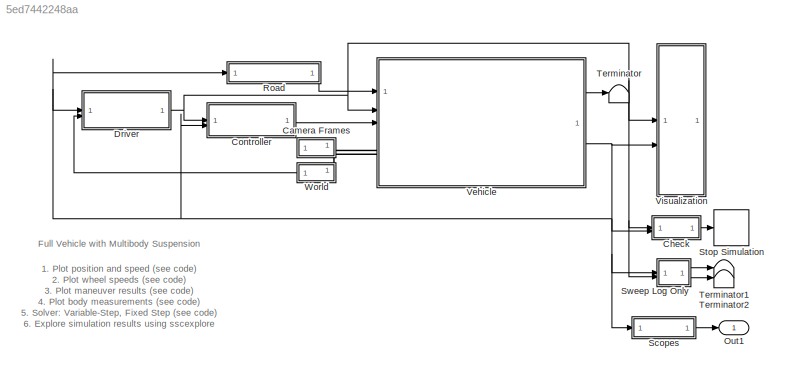
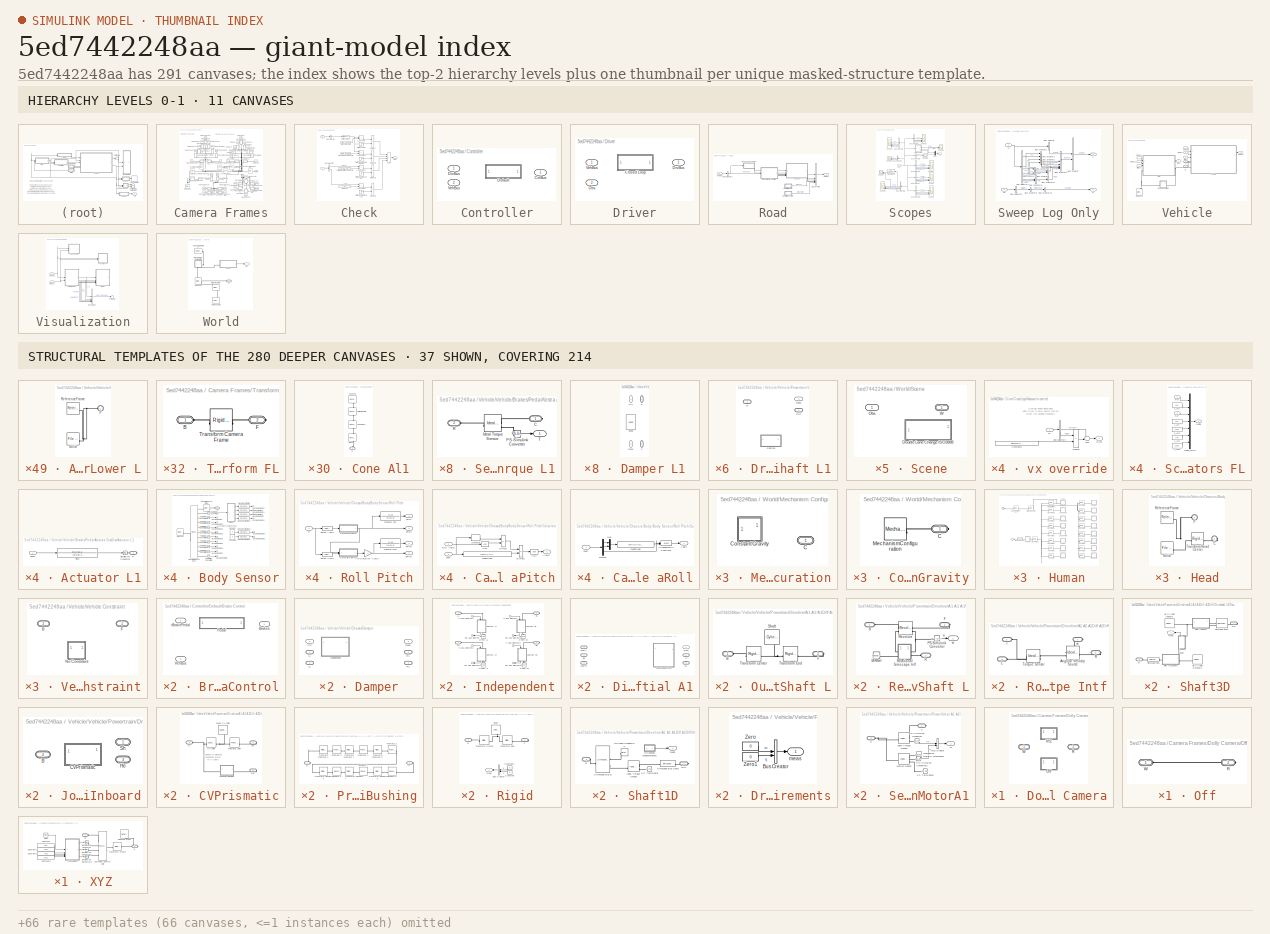
[diagram: thumbnail index - top-2 hierarchy levels (11 canvases) + 37 structural-template representatives of the remaining 280 canvases]
MODEL slx_5ed7442248aa
KIND model
CONFIG AbsTol = 1e-3
CONFIG EnableMultiTasking = on
CONFIG InitFcn = sm_car_config_camera;\nVehicle = sm_car_vehcfg_checkConfig(Vehicle);\nsm_car_check_tire_model(bdroot);
CONFIG MaxStep = 0.4
CONFIG PostLoadFcn = warning('off','sm:sli:setup:compile:LocalSolverNotSupported')\nsm_car_config_vehicle(bdroot);\nif(isempty(getCurrentWorker))\n    sm_car_config_logging(bdroot,'Normal');\nelse\n    sm_car_config_logging(bdroot,'Sweep');\nend
CONFIG PreLoadFcn = % Due to usability issue in Repeating Sequence block\nwarning('off','Simulink:Masking:Invalid');\n\n% Eliminate unnecessary warnings in inactive variants\n% Warnings generated only if you click through inactive variant\nwarning('off','MATLAB:nonExistentField');\nwarning('off','Simulink:Parameters:BlkParamUndefined');\n\n
CONFIG SolverName = ode23t
CONFIG StartFcn = tic;
CONFIG StopFcn = Elapsed_Sim_Time = toc;\n% disp(['Elapsed Sim Time = ' num2str(Elapsed_Sim_Time)]);
CONFIG StopTime = 20
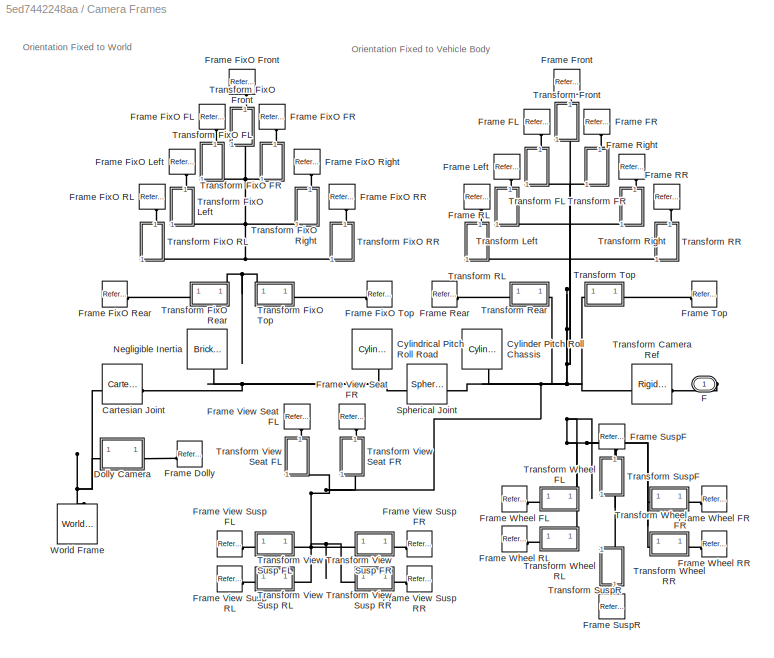
BLOCK [SubSystem] Camera Frames
BLOCK [Reference] Camera Frames/Cartesian Joint  REF=sm_lib/Joints/Cartesian
Joint
  SourceBlock = sm_lib/Joints/Cartesian\nJoint
  SourceType = Cartesian\nJoint
BLOCK [Reference] Camera Frames/Cylinder Pitch Roll Chassis  REF=sm_lib/Body Elements/Cylindrical Solid
  Commented = on
  NameLocation = right
  SourceBlock = sm_lib/Body Elements/Cylindrical Solid
  SourceType = Cylindrical Solid
BLOCK [Reference] Camera Frames/Cylindrical Pitch Roll Road  REF=sm_lib/Body Elements/Cylindrical Solid
  Commented = on
  NameLocation = left
  SourceBlock = sm_lib/Body Elements/Cylindrical Solid
  SourceType = Cylindrical Solid
BLOCK [SubSystem] Camera Frames/Dolly Camera
  AttributesFormatString = %<ActiveVariant>
  LabelModeActiveChoice = Off
  Variant = on
  VariantControl = Variant1
  VariantControlMode = label
BLOCK [PMIOPort] Camera Frames/Dolly Camera/ R
  Port = 2
  Side = Right
BLOCK [PMIOPort] Camera Frames/Dolly Camera/ W
  Side = Left
BLOCK [SubSystem] Camera Frames/Dolly Camera/Off
  VariantControl = Off
BLOCK [PMIOPort] Camera Frames/Dolly Camera/Off/R
  NameLocation = top
  Port = 2
  Side = Right
BLOCK [PMIOPort] Camera Frames/Dolly Camera/Off/W
  Side = Left
BLOCK [SubSystem] Camera Frames/Dolly Camera/XYZ
  VariantControl = XYZ
BLOCK [Reference] Camera Frames/Dolly Camera/XYZ/Cartesian Camera Dolly  REF=sm_lib/Joints/Cartesian
Joint
  SourceBlock = sm_lib/Joints/Cartesian\nJoint
  SourceType = Cartesian\nJoint
BLOCK [Clock] Camera Frames/Dolly Camera/XYZ/Clock
BLOCK [Constant] Camera Frames/Dolly Camera/XYZ/Constant
  Value = tvec
BLOCK [Constant] Camera Frames/Dolly Camera/XYZ/Constant1
  Value = xvec
BLOCK [Constant] Camera Frames/Dolly Camera/XYZ/Constant2
  Value = yvec
BLOCK [Constant] Camera Frames/Dolly Camera/XYZ/Constant3
  Value = zvec
BLOCK [SubSystem] Camera Frames/Dolly Camera/XYZ/Interpolate
  ErrorFcn = Stateflow.Translate.translate
  PermitHierarchicalResolution = ExplicitOnly
  SFBlockType = MATLAB Function
  TreatAsAtomicUnit = on
BLOCK [Demux] Camera Frames/Dolly Camera/XYZ/Interpolate/ Demux 
  Outputs = 1
BLOCK [S-Function] Camera Frames/Dolly Camera/XYZ/Interpolate/ SFunction 
  EnableBusSupport = off
  FunctionName = sf_sfun
  PortCounts = [5 4]
  SFcnIsStateOwnerBlock = off
  SFunctionDeploymentMode = off
  Tag = Stateflow S-Function 2
BLOCK [Terminator] Camera Frames/Dolly Camera/XYZ/Interpolate/ Terminator 
BLOCK [Inport] Camera Frames/Dolly Camera/XYZ/Interpolate/t
BLOCK [Inport] Camera Frames/Dolly Camera/XYZ/Interpolate/tvec
  Port = 2
BLOCK [Outport] Camera Frames/Dolly Camera/XYZ/Interpolate/x
  VectorParamsAs1DForOutWhenUnconnected = off
BLOCK [Inport] Camera Frames/Dolly Camera/XYZ/Interpolate/xvec
  Port = 3
BLOCK [Outport] Camera Frames/Dolly Camera/XYZ/Interpolate/y
  Port = 2
  VectorParamsAs1DForOutWhenUnconnected = off
BLOCK [Inport] Camera Frames/Dolly Camera/XYZ/Interpolate/yvec
  Port = 4
BLOCK [Outport] Camera Frames/Dolly Camera/XYZ/Interpolate/z
  Port = 3
  VectorParamsAs1DForOutWhenUnconnected = off
BLOCK [Inport] Camera Frames/Dolly Camera/XYZ/Interpolate/zvec
  Port = 5
BLOCK [PMIOPort] Camera Frames/Dolly Camera/XYZ/R
  NameLocation = top
  Port = 2
  Side = Right
BLOCK [Reference] Camera Frames/Dolly Camera/XYZ/Required Mass  REF=sm_lib/Body Elements/Spherical Solid
  NameLocation = left
  SourceBlock = sm_lib/Body Elements/Spherical Solid
  SourceType = Spherical Solid
BLOCK [Reference] Camera Frames/Dolly Camera/XYZ/Simulink-PS Converter  REF=nesl_utility/Simulink-PS
Converter
  SourceBlock = nesl_utility/Simulink-PS\nConverter
  SourceType = Simulink-PS\nConverter
BLOCK [Reference] Camera Frames/Dolly Camera/XYZ/Simulink-PS Converter1  REF=nesl_utility/Simulink-PS
Converter
  SourceBlock = nesl_utility/Simulink-PS\nConverter
  SourceType = Simulink-PS\nConverter
BLOCK [Reference] Camera Frames/Dolly Camera/XYZ/Simulink-PS Converter2  REF=nesl_utility/Simulink-PS
Converter
  SourceBlock = nesl_utility/Simulink-PS\nConverter
  SourceType = Simulink-PS\nConverter
BLOCK [Reference] Camera Frames/Dolly Camera/XYZ/Transform Frame  REF=sm_lib/Frames and
Transforms/Rigid
Transform
  SourceBlock = sm_lib/Frames and\nTransforms/Rigid\nTransform
  SourceType = Rigid\nTransform
BLOCK [PMIOPort] Camera Frames/Dolly Camera/XYZ/W
  Side = Left
BLOCK [PMIOPort] Camera Frames/F
  Side = Right
BLOCK [Reference] Camera Frames/Frame Dolly  REF=sm_lib/Frames and
Transforms/Reference
Frame
  SourceBlock = sm_lib/Frames and\nTransforms/Reference\nFrame
  SourceType = Reference\nFrame
BLOCK [Reference] Camera Frames/Frame FL  REF=sm_lib/Frames and
Transforms/Reference
Frame
  NameLocation = left
  SourceBlock = sm_lib/Frames and\nTransforms/Reference\nFrame
  SourceType = Reference\nFrame
BLOCK [Reference] Camera Frames/Frame FR  REF=sm_lib/Frames and
Transforms/Reference
Frame
  NameLocation = right
  SourceBlock = sm_lib/Frames and\nTransforms/Reference\nFrame
  SourceType = Reference\nFrame
BLOCK [Reference] Camera Frames/Frame FixO FL  REF=sm_lib/Frames and
Transforms/Reference
Frame
  NameLocation = left
  SourceBlock = sm_lib/Frames and\nTransforms/Reference\nFrame
  SourceType = Reference\nFrame
BLOCK [Reference] Camera Frames/Frame FixO FR  REF=sm_lib/Frames and
Transforms/Reference
Frame
  NameLocation = right
  SourceBlock = sm_lib/Frames and\nTransforms/Reference\nFrame
  SourceType = Reference\nFrame
BLOCK [Reference] Camera Frames/Frame FixO Front  REF=sm_lib/Frames and
Transforms/Reference
Frame
  NameLocation = right
  SourceBlock = sm_lib/Frames and\nTransforms/Reference\nFrame
  SourceType = Reference\nFrame
BLOCK [Reference] Camera Frames/Frame FixO Left  REF=sm_lib/Frames and
Transforms/Reference
Frame
  NameLocation = left
  SourceBlock = sm_lib/Frames and\nTransforms/Reference\nFrame
  SourceType = Reference\nFrame
BLOCK [Reference] Camera Frames/Frame FixO RL  REF=sm_lib/Frames and
Transforms/Reference
Frame
  NameLocation = left
  SourceBlock = sm_lib/Frames and\nTransforms/Reference\nFrame
  SourceType = Reference\nFrame
BLOCK [Reference] Camera Frames/Frame FixO RR  REF=sm_lib/Frames and
Transforms/Reference
Frame
  NameLocation = right
  SourceBlock = sm_lib/Frames and\nTransforms/Reference\nFrame
  SourceType = Reference\nFrame
BLOCK [Reference] Camera Frames/Frame FixO Rear  REF=sm_lib/Frames and
Transforms/Reference
Frame
  NameLocation = top
  SourceBlock = sm_lib/Frames and\nTransforms/Reference\nFrame
  SourceType = Reference\nFrame
BLOCK [Reference] Camera Frames/Frame FixO Right  REF=sm_lib/Frames and
Transforms/Reference
Frame
  NameLocation = right
  SourceBlock = sm_lib/Frames and\nTransforms/Reference\nFrame
  SourceType = Reference\nFrame
BLOCK [Reference] Camera Frames/Frame FixO Top  REF=sm_lib/Frames and
Transforms/Reference
Frame
  NameLocation = top
  SourceBlock = sm_lib/Frames and\nTransforms/Reference\nFrame
  SourceType = Reference\nFrame
BLOCK [Reference] Camera Frames/Frame Front  REF=sm_lib/Frames and
Transforms/Reference
Frame
  NameLocation = right
  SourceBlock = sm_lib/Frames and\nTransforms/Reference\nFrame
  SourceType = Reference\nFrame
BLOCK [Reference] Camera Frames/Frame Left  REF=sm_lib/Frames and
Transforms/Reference
Frame
  NameLocation = left
  SourceBlock = sm_lib/Frames and\nTransforms/Reference\nFrame
  SourceType = Reference\nFrame
BLOCK [Reference] Camera Frames/Frame RL  REF=sm_lib/Frames and
Transforms/Reference
Frame
  NameLocation = left
  SourceBlock = sm_lib/Frames and\nTransforms/Reference\nFrame
  SourceType = Reference\nFrame
BLOCK [Reference] Camera Frames/Frame RR  REF=sm_lib/Frames and
Transforms/Reference
Frame
  NameLocation = right
  SourceBlock = sm_lib/Frames and\nTransforms/Reference\nFrame
  SourceType = Reference\nFrame
BLOCK [Reference] Camera Frames/Frame Rear  REF=sm_lib/Frames and
Transforms/Reference
Frame
  NameLocation = top
  SourceBlock = sm_lib/Frames and\nTransforms/Reference\nFrame
  SourceType = Reference\nFrame
BLOCK [Reference] Camera Frames/Frame Right  REF=sm_lib/Frames and
Transforms/Reference
Frame
  NameLocation = right
  SourceBlock = sm_lib/Frames and\nTransforms/Reference\nFrame
  SourceType = Reference\nFrame
BLOCK [Reference] Camera Frames/Frame SuspF  REF=sm_lib/Frames and
Transforms/Reference
Frame
  NameLocation = right
  SourceBlock = sm_lib/Frames and\nTransforms/Reference\nFrame
  SourceType = Reference\nFrame
BLOCK [Reference] Camera Frames/Frame SuspR  REF=sm_lib/Frames and
Transforms/Reference
Frame
  NameLocation = right
  SourceBlock = sm_lib/Frames and\nTransforms/Reference\nFrame
  SourceType = Reference\nFrame
BLOCK [Reference] Camera Frames/Frame Top  REF=sm_lib/Frames and
Transforms/Reference
Frame
  NameLocation = top
  SourceBlock = sm_lib/Frames and\nTransforms/Reference\nFrame
  SourceType = Reference\nFrame
BLOCK [Reference] Camera Frames/Frame View Seat FL  REF=sm_lib/Frames and
Transforms/Reference
Frame
  NameLocation = left
  SourceBlock = sm_lib/Frames and\nTransforms/Reference\nFrame
  SourceType = Reference\nFrame
BLOCK [Reference] Camera Frames/Frame View Seat FR  REF=sm_lib/Frames and
Transforms/Reference
Frame
  NameLocation = left
  SourceBlock = sm_lib/Frames and\nTransforms/Reference\nFrame
  SourceType = Reference\nFrame
BLOCK [Reference] Camera Frames/Frame View Susp FL  REF=sm_lib/Frames and
Transforms/Reference
Frame
  NameLocation = top
  SourceBlock = sm_lib/Frames and\nTransforms/Reference\nFrame
  SourceType = Reference\nFrame
BLOCK [Reference] Camera Frames/Frame View Susp FR  REF=sm_lib/Frames and
Transforms/Reference
Frame
  NameLocation = top
  SourceBlock = sm_lib/Frames and\nTransforms/Reference\nFrame
  SourceType = Reference\nFrame
BLOCK [Reference] Camera Frames/Frame View Susp RL  REF=sm_lib/Frames and
Transforms/Reference
Frame
  SourceBlock = sm_lib/Frames and\nTransforms/Reference\nFrame
  SourceType = Reference\nFrame
BLOCK [Reference] Camera Frames/Frame View Susp RR  REF=sm_lib/Frames and
Transforms/Reference
Frame
  SourceBlock = sm_lib/Frames and\nTransforms/Reference\nFrame
  SourceType = Reference\nFrame
BLOCK [Reference] Camera Frames/Frame Wheel FL  REF=sm_lib/Frames and
Transforms/Reference
Frame
  NameLocation = top
  SourceBlock = sm_lib/Frames and\nTransforms/Reference\nFrame
  SourceType = Reference\nFrame
BLOCK [Reference] Camera Frames/Frame Wheel FR  REF=sm_lib/Frames and
Transforms/Reference
Frame
  NameLocation = top
  SourceBlock = sm_lib/Frames and\nTransforms/Reference\nFrame
  SourceType = Reference\nFrame
BLOCK [Reference] Camera Frames/Frame Wheel RL  REF=sm_lib/Frames and
Transforms/Reference
Frame
  SourceBlock = sm_lib/Frames and\nTransforms/Reference\nFrame
  SourceType = Reference\nFrame
BLOCK [Reference] Camera Frames/Frame Wheel RR  REF=sm_lib/Frames and
Transforms/Reference
Frame
  SourceBlock = sm_lib/Frames and\nTransforms/Reference\nFrame
  SourceType = Reference\nFrame
BLOCK [Reference] Camera Frames/Negligible Inertia  REF=sm_lib/Body Elements/Brick Solid
  NameLocation = left
  SourceBlock = sm_lib/Body Elements/Brick Solid
  SourceType = Brick Solid
BLOCK [Reference] Camera Frames/Spherical Joint  REF=sm_lib/Joints/Spherical
Joint
  SourceBlock = sm_lib/Joints/Spherical\nJoint
  SourceType = Spherical\nJoint
BLOCK [Reference] Camera Frames/Transform Camera Ref  REF=sm_lib/Frames and
Transforms/Rigid
Transform
  NameLocation = top
  SourceBlock = sm_lib/Frames and\nTransforms/Rigid\nTransform
  SourceType = Rigid\nTransform
BLOCK [SubSystem] Camera Frames/Transform FL
  NameLocation = left
BLOCK [PMIOPort] Camera Frames/Transform FL/B
  Side = Left
BLOCK [PMIOPort] Camera Frames/Transform FL/F
  Port = 2
  Side = Right
BLOCK [Reference] Camera Frames/Transform FL/Transform Camera Frame  REF=sm_lib/Frames and
Transforms/Rigid
Transform
  SourceBlock = sm_lib/Frames and\nTransforms/Rigid\nTransform
  SourceType = Rigid\nTransform
BLOCK [SubSystem] Camera Frames/Transform FR
  NameLocation = left
BLOCK [PMIOPort] Camera Frames/Transform FR/B
  Side = Left
BLOCK [PMIOPort] Camera Frames/Transform FR/F
  Port = 2
  Side = Right
BLOCK [Reference] Camera Frames/Transform FR/Transform Camera Frame  REF=sm_lib/Frames and
Transforms/Rigid
Transform
  SourceBlock = sm_lib/Frames and\nTransforms/Rigid\nTransform
  SourceType = Rigid\nTransform
BLOCK [SubSystem] Camera Frames/Transform FixO FL
  NameLocation = left
BLOCK [PMIOPort] Camera Frames/Transform FixO FL/B
  Side = Left
BLOCK [PMIOPort] Camera Frames/Transform FixO FL/F
  Port = 2
  Side = Right
BLOCK [Reference] Camera Frames/Transform FixO FL/Transform Camera Frame  REF=sm_lib/Frames and
Transforms/Rigid
Transform
  SourceBlock = sm_lib/Frames and\nTransforms/Rigid\nTransform
  SourceType = Rigid\nTransform
BLOCK [SubSystem] Camera Frames/Transform FixO FR
  NameLocation = left
BLOCK [PMIOPort] Camera Frames/Transform FixO FR/B
  Side = Left
BLOCK [PMIOPort] Camera Frames/Transform FixO FR/F
  Port = 2
  Side = Right
BLOCK [Reference] Camera Frames/Transform FixO FR/Transform Camera Frame  REF=sm_lib/Frames and
Transforms/Rigid
Transform
  SourceBlock = sm_lib/Frames and\nTransforms/Rigid\nTransform
  SourceType = Rigid\nTransform
BLOCK [SubSystem] Camera Frames/Transform FixO Front
  NameLocation = left
BLOCK [PMIOPort] Camera Frames/Transform FixO Front/B
  Side = Left
BLOCK [PMIOPort] Camera Frames/Transform FixO Front/F
  Port = 2
  Side = Right
BLOCK [Reference] Camera Frames/Transform FixO Front/Transform Camera Frame  REF=sm_lib/Frames and
Transforms/Rigid
Transform
  SourceBlock = sm_lib/Frames and\nTransforms/Rigid\nTransform
  SourceType = Rigid\nTransform
BLOCK [SubSystem] Camera Frames/Transform FixO Left
  NameLocation = left
BLOCK [PMIOPort] Camera Frames/Transform FixO Left/B
  Side = Left
BLOCK [PMIOPort] Camera Frames/Transform FixO Left/F
  Port = 2
  Side = Right
BLOCK [Reference] Camera Frames/Transform FixO Left/Transform Camera Frame  REF=sm_lib/Frames and
Transforms/Rigid
Transform
  SourceBlock = sm_lib/Frames and\nTransforms/Rigid\nTransform
  SourceType = Rigid\nTransform
BLOCK [SubSystem] Camera Frames/Transform FixO RL
  NameLocation = left
BLOCK [PMIOPort] Camera Frames/Transform FixO RL/B
  Side = Left
BLOCK [PMIOPort] Camera Frames/Transform FixO RL/F
  Port = 2
  Side = Right
BLOCK [Reference] Camera Frames/Transform FixO RL/Transform Camera Frame  REF=sm_lib/Frames and
Transforms/Rigid
Transform
  SourceBlock = sm_lib/Frames and\nTransforms/Rigid\nTransform
  SourceType = Rigid\nTransform
BLOCK [SubSystem] Camera Frames/Transform FixO RR
  NameLocation = right
BLOCK [PMIOPort] Camera Frames/Transform FixO RR/B
  Side = Left
BLOCK [PMIOPort] Camera Frames/Transform FixO RR/F
  Port = 2
  Side = Right
BLOCK [Reference] Camera Frames/Transform FixO RR/Transform Camera Frame  REF=sm_lib/Frames and
Transforms/Rigid
Transform
  SourceBlock = sm_lib/Frames and\nTransforms/Rigid\nTransform
  SourceType = Rigid\nTransform
BLOCK [SubSystem] Camera Frames/Transform FixO Rear
BLOCK [PMIOPort] Camera Frames/Transform FixO Rear/B
  Side = Left
BLOCK [PMIOPort] Camera Frames/Transform FixO Rear/F
  Port = 2
  Side = Right
BLOCK [Reference] Camera Frames/Transform FixO Rear/Transform Camera Frame  REF=sm_lib/Frames and
Transforms/Rigid
Transform
  SourceBlock = sm_lib/Frames and\nTransforms/Rigid\nTransform
  SourceType = Rigid\nTransform
BLOCK [SubSystem] Camera Frames/Transform FixO Right
  NameLocation = right
BLOCK [PMIOPort] Camera Frames/Transform FixO Right/B
  Side = Left
BLOCK [PMIOPort] Camera Frames/Transform FixO Right/F
  Port = 2
  Side = Right
BLOCK [Reference] Camera Frames/Transform FixO Right/Transform Camera Frame  REF=sm_lib/Frames and
Transforms/Rigid
Transform
  SourceBlock = sm_lib/Frames and\nTransforms/Rigid\nTransform
  SourceType = Rigid\nTransform
BLOCK [SubSystem] Camera Frames/Transform FixO Top
  NameLocation = top
BLOCK [PMIOPort] Camera Frames/Transform FixO Top/B
  Side = Left
BLOCK [PMIOPort] Camera Frames/Transform FixO Top/F
  Port = 2
  Side = Right
BLOCK [Reference] Camera Frames/Transform FixO Top/Transform Camera Frame  REF=sm_lib/Frames and
Transforms/Rigid
Transform
  SourceBlock = sm_lib/Frames and\nTransforms/Rigid\nTransform
  SourceType = Rigid\nTransform
BLOCK [SubSystem] Camera Frames/Transform Front
  NameLocation = left
BLOCK [PMIOPort] Camera Frames/Transform Front/B
  Side = Left
BLOCK [PMIOPort] Camera Frames/Transform Front/F
  Port = 2
  Side = Right
BLOCK [Reference] Camera Frames/Transform Front/Transform Camera Frame  REF=sm_lib/Frames and
Transforms/Rigid
Transform
  SourceBlock = sm_lib/Frames and\nTransforms/Rigid\nTransform
  SourceType = Rigid\nTransform
BLOCK [SubSystem] Camera Frames/Transform Left
  NameLocation = left
BLOCK [PMIOPort] Camera Frames/Transform Left/B
  Side = Left
BLOCK [PMIOPort] Camera Frames/Transform Left/F
  Port = 2
  Side = Right
BLOCK [Reference] Camera Frames/Transform Left/Transform Camera Frame  REF=sm_lib/Frames and
Transforms/Rigid
Transform
  SourceBlock = sm_lib/Frames and\nTransforms/Rigid\nTransform
  SourceType = Rigid\nTransform
BLOCK [SubSystem] Camera Frames/Transform RL
  NameLocation = left
BLOCK [PMIOPort] Camera Frames/Transform RL/B
  Side = Left
BLOCK [PMIOPort] Camera Frames/Transform RL/F
  Port = 2
  Side = Right
BLOCK [Reference] Camera Frames/Transform RL/Transform Camera Frame  REF=sm_lib/Frames and
Transforms/Rigid
Transform
  SourceBlock = sm_lib/Frames and\nTransforms/Rigid\nTransform
  SourceType = Rigid\nTransform
BLOCK [SubSystem] Camera Frames/Transform RR
  NameLocation = left
BLOCK [PMIOPort] Camera Frames/Transform RR/B
  Side = Left
BLOCK [PMIOPort] Camera Frames/Transform RR/F
  Port = 2
  Side = Right
BLOCK [Reference] Camera Frames/Transform RR/Transform Camera Frame  REF=sm_lib/Frames and
Transforms/Rigid
Transform
  SourceBlock = sm_lib/Frames and\nTransforms/Rigid\nTransform
  SourceType = Rigid\nTransform
BLOCK [SubSystem] Camera Frames/Transform Rear
BLOCK [PMIOPort] Camera Frames/Transform Rear/B
  Side = Left
BLOCK [PMIOPort] Camera Frames/Transform Rear/F
  Port = 2
  Side = Right
BLOCK [Reference] Camera Frames/Transform Rear/Transform Camera Frame  REF=sm_lib/Frames and
Transforms/Rigid
Transform
  SourceBlock = sm_lib/Frames and\nTransforms/Rigid\nTransform
  SourceType = Rigid\nTransform
BLOCK [SubSystem] Camera Frames/Transform Right
  NameLocation = left
BLOCK [PMIOPort] Camera Frames/Transform Right/B
  Side = Left
BLOCK [PMIOPort] Camera Frames/Transform Right/F
  Port = 2
  Side = Right
BLOCK [Reference] Camera Frames/Transform Right/Transform Camera Frame  REF=sm_lib/Frames and
Transforms/Rigid
Transform
  SourceBlock = sm_lib/Frames and\nTransforms/Rigid\nTransform
  SourceType = Rigid\nTransform
BLOCK [SubSystem] Camera Frames/Transform SuspF
  NameLocation = left
BLOCK [PMIOPort] Camera Frames/Transform SuspF/B
  Side = Left
BLOCK [PMIOPort] Camera Frames/Transform SuspF/F
  Port = 2
  Side = Right
BLOCK [Reference] Camera Frames/Transform SuspF/Transform Camera Frame  REF=sm_lib/Frames and
Transforms/Rigid
Transform
  SourceBlock = sm_lib/Frames and\nTransforms/Rigid\nTransform
  SourceType = Rigid\nTransform
BLOCK [SubSystem] Camera Frames/Transform SuspR
  NameLocation = left
BLOCK [PMIOPort] Camera Frames/Transform SuspR/B
  Side = Left
BLOCK [PMIOPort] Camera Frames/Transform SuspR/F
  Port = 2
  Side = Right
BLOCK [Reference] Camera Frames/Transform SuspR/Transform Camera Frame  REF=sm_lib/Frames and
Transforms/Rigid
Transform
  SourceBlock = sm_lib/Frames and\nTransforms/Rigid\nTransform
  SourceType = Rigid\nTransform
BLOCK [SubSystem] Camera Frames/Transform Top
BLOCK [PMIOPort] Camera Frames/Transform Top/B
  Side = Left
BLOCK [PMIOPort] Camera Frames/Transform Top/F
  Port = 2
  Side = Right
BLOCK [Reference] Camera Frames/Transform Top/Transform Camera Frame  REF=sm_lib/Frames and
Transforms/Rigid
Transform
  SourceBlock = sm_lib/Frames and\nTransforms/Rigid\nTransform
  SourceType = Rigid\nTransform
BLOCK [SubSystem] Camera Frames/Transform View Seat FL
  NameLocation = left
BLOCK [PMIOPort] Camera Frames/Transform View Seat FL/B
  Side = Left
BLOCK [PMIOPort] Camera Frames/Transform View Seat FL/F
  Port = 2
  Side = Right
BLOCK [Reference] Camera Frames/Transform View Seat FL/Transform Camera Frame  REF=sm_lib/Frames and
Transforms/Rigid
Transform
  SourceBlock = sm_lib/Frames and\nTransforms/Rigid\nTransform
  SourceType = Rigid\nTransform
BLOCK [SubSystem] Camera Frames/Transform View Seat FR
  NameLocation = right
BLOCK [PMIOPort] Camera Frames/Transform View Seat FR/B
  Side = Left
BLOCK [PMIOPort] Camera Frames/Transform View Seat FR/F
  Port = 2
  Side = Right
BLOCK [Reference] Camera Frames/Transform View Seat FR/Transform Camera Frame  REF=sm_lib/Frames and
Transforms/Rigid
Transform
  SourceBlock = sm_lib/Frames and\nTransforms/Rigid\nTransform
  SourceType = Rigid\nTransform
BLOCK [SubSystem] Camera Frames/Transform View Susp FL
BLOCK [PMIOPort] Camera Frames/Transform View Susp FL/B
  Side = Left
BLOCK [PMIOPort] Camera Frames/Transform View Susp FL/F
  Port = 2
  Side = Right
BLOCK [Reference] Camera Frames/Transform View Susp FL/Transform Camera Frame  REF=sm_lib/Frames and
Transforms/Rigid
Transform
  SourceBlock = sm_lib/Frames and\nTransforms/Rigid\nTransform
  SourceType = Rigid\nTransform
BLOCK [SubSystem] Camera Frames/Transform View Susp FR
  NameLocation = top
BLOCK [PMIOPort] Camera Frames/Transform View Susp FR/B
  Side = Left
BLOCK [PMIOPort] Camera Frames/Transform View Susp FR/F
  Port = 2
  Side = Right
BLOCK [Reference] Camera Frames/Transform View Susp FR/Transform Camera Frame  REF=sm_lib/Frames and
Transforms/Rigid
Transform
  SourceBlock = sm_lib/Frames and\nTransforms/Rigid\nTransform
  SourceType = Rigid\nTransform
BLOCK [SubSystem] Camera Frames/Transform View Susp RL
BLOCK [PMIOPort] Camera Frames/Transform View Susp RL/B
  Side = Left
BLOCK [PMIOPort] Camera Frames/Transform View Susp RL/F
  Port = 2
  Side = Right
BLOCK [Reference] Camera Frames/Transform View Susp RL/Transform Camera Frame  REF=sm_lib/Frames and
Transforms/Rigid
Transform
  SourceBlock = sm_lib/Frames and\nTransforms/Rigid\nTransform
  SourceType = Rigid\nTransform
BLOCK [SubSystem] Camera Frames/Transform View Susp RR
BLOCK [PMIOPort] Camera Frames/Transform View Susp RR/B
  Side = Left
BLOCK [PMIOPort] Camera Frames/Transform View Susp RR/F
  Port = 2
  Side = Right
BLOCK [Reference] Camera Frames/Transform View Susp RR/Transform Camera Frame  REF=sm_lib/Frames and
Transforms/Rigid
Transform
  SourceBlock = sm_lib/Frames and\nTransforms/Rigid\nTransform
  SourceType = Rigid\nTransform
BLOCK [SubSystem] Camera Frames/Transform Wheel FL
BLOCK [PMIOPort] Camera Frames/Transform Wheel FL/B
  Side = Left
BLOCK [PMIOPort] Camera Frames/Transform Wheel FL/F
  Port = 2
  Side = Right
BLOCK [Reference] Camera Frames/Transform Wheel FL/Transform Camera Frame  REF=sm_lib/Frames and
Transforms/Rigid
Transform
  SourceBlock = sm_lib/Frames and\nTransforms/Rigid\nTransform
  SourceType = Rigid\nTransform
BLOCK [SubSystem] Camera Frames/Transform Wheel FR
  NameLocation = top
BLOCK [PMIOPort] Camera Frames/Transform Wheel FR/B
  Side = Left
BLOCK [PMIOPort] Camera Frames/Transform Wheel FR/F
  Port = 2
  Side = Right
BLOCK [Reference] Camera Frames/Transform Wheel FR/Transform Camera Frame  REF=sm_lib/Frames and
Transforms/Rigid
Transform
  SourceBlock = sm_lib/Frames and\nTransforms/Rigid\nTransform
  SourceType = Rigid\nTransform
BLOCK [SubSystem] Camera Frames/Transform Wheel RL
BLOCK [PMIOPort] Camera Frames/Transform Wheel RL/B
  Side = Left
BLOCK [PMIOPort] Camera Frames/Transform Wheel RL/F
  Port = 2
  Side = Right
BLOCK [Reference] Camera Frames/Transform Wheel RL/Transform Camera Frame  REF=sm_lib/Frames and
Transforms/Rigid
Transform
  SourceBlock = sm_lib/Frames and\nTransforms/Rigid\nTransform
  SourceType = Rigid\nTransform
BLOCK [SubSystem] Camera Frames/Transform Wheel RR
BLOCK [PMIOPort] Camera Frames/Transform Wheel RR/B
  Side = Left
BLOCK [PMIOPort] Camera Frames/Transform Wheel RR/F
  Port = 2
  Side = Right
BLOCK [Reference] Camera Frames/Transform Wheel RR/Transform Camera Frame  REF=sm_lib/Frames and
Transforms/Rigid
Transform
  SourceBlock = sm_lib/Frames and\nTransforms/Rigid\nTransform
  SourceType = Rigid\nTransform
BLOCK [Reference] Camera Frames/World Frame  REF=sm_lib/Frames and
Transforms/World Frame
  NameLocation = right
  SourceBlock = sm_lib/Frames and\nTransforms/World Frame
  SourceType = World Frame
BLOCK [SubSystem] Check
BLOCK [BusSelector] Check/Bus Selector
  OutputAsBus = on
  OutputSignals = World.vx,World.vy
BLOCK [BusSelector] Check/Bus Selector1
  OutputSignals = Reference.latdev,Reference.dist
BLOCK [Constant] Check/End Lap
  Value = 0.2
BLOCK [Constant] Check/Lateral Deviation Threshold
  Value = lat_dev_threshold
BLOCK [RelationalOperator] Check/Less Than
  InputSameDT = off
  Operator = <
  OutDataTypeStr = boolean
  RndMeth = Simplest
BLOCK [RelationalOperator] Check/Less Than1
  InputSameDT = off
  Operator = >
  OutDataTypeStr = boolean
  RndMeth = Simplest
  ZeroCross = off
BLOCK [RelationalOperator] Check/Less Than2
  InputSameDT = off
  Operator = <
  OutDataTypeStr = boolean
  RndMeth = Simplest
  ZeroCross = off
BLOCK [RelationalOperator] Check/Less Than3
  InputSameDT = off
  Operator = >
  OutDataTypeStr = boolean
  RndMeth = Simplest
BLOCK [Constant] Check/Max Speed Threshold
  Value = max_speed
BLOCK [Product] Check/Product
BLOCK [Product] Check/Product1
BLOCK [Product] Check/Product2
BLOCK [Product] Check/Product3
BLOCK [Step] Check/Start Checking
  SampleTime = 0
  Time = start_check_time
  ZeroCross = off
BLOCK [Step] Check/Start Checking End Lap
  SampleTime = 0
  Time = start_check_time_end_lap
  ZeroCross = off
BLOCK [Step] Check/Start Checking Lat Dev
  SampleTime = 0
  Time = start_check_time_ld
  ZeroCross = off
BLOCK [Step] Check/Start Checking Max Speed
  SampleTime = 0
  Time = start_check_time_max_speed
  ZeroCross = off
BLOCK [Outport] Check/Stop
  VectorParamsAs1DForOutWhenUnconnected = off
BLOCK [Constant] Check/Stop Threshold
  Value = stop_speed
BLOCK [Sum] Check/Sum
  IconShape = rectangular
  Inputs = ++++
BLOCK [Fcn] Check/Vel in xy plane
  Expr = sqrt(u(1)^2+u(2)^2)
BLOCK [Inport] Check/l
BLOCK [Inport] Check/v
  Port = 2
BLOCK [SubSystem] Controller
  AttributesFormatString = %<popup_control>
  LabelModeActiveChoice = Default
  Variant = on
  VariantControl = Variant1
  VariantControlMode = label
BLOCK [Outport] Controller/ CtrlBus
  VectorParamsAs1DForOutWhenUnconnected = off
BLOCK [SubSystem] Controller/Default
  VariantControl = Default
BLOCK [SubSystem] Controller/Default/Brake Control
  AttributesFormatString = %<ActiveVariant>
  LabelModeActiveChoice = Pedal
  Variant = on
  VariantControl = Variant1
  VariantControlMode = label
BLOCK [Outport] Controller/Default/Brake Control/ Brakes
  VectorParamsAs1DForOutWhenUnconnected = off
BLOCK [SubSystem] Controller/Default/Brake Control/Pedal
  VariantControl = Pedal
BLOCK [Constant] Controller/Default/Brake Control/Pedal/Apply
  Value = [0 1]
BLOCK [Constant] Controller/Default/Brake Control/Pedal/Apply1
  Value = [0 1]
BLOCK [Constant] Controller/Default/Brake Control/Pedal/Apply2
  Value = [0 1]
BLOCK [Constant] Controller/Default/Brake Control/Pedal/Apply3
  Value = [0 1]
BLOCK [Outport] Controller/Default/Brake Control/Pedal/Brakes
  VectorParamsAs1DForOutWhenUnconnected = off
BLOCK [BusCreator] Controller/Default/Brake Control/Pedal/Bus Creator
  DisplayOption = bar
  InheritFromInputs = on
  Inputs = 1
BLOCK [BusCreator] Controller/Default/Brake Control/Pedal/Bus Creator1
  DisplayOption = bar
  InheritFromInputs = on
  Inputs = 4
BLOCK [Terminator] Controller/Default/Brake Control/Pedal/Terminator
BLOCK [Terminator] Controller/Default/Brake Control/Pedal/Terminator1
BLOCK [Inport] Controller/Default/Brake Control/Pedal/VehBus
  Port = 2
BLOCK [Inport] Controller/Default/Brake Control/Pedal/rBrakePedal
BLOCK [Inport] Controller/Default/Brake Control/VehBus 
  Port = 2
BLOCK [Inport] Controller/Default/Brake Control/rBrakePedal 
BLOCK [BusCreator] Controller/Default/Bus Creator1
  DisplayOption = bar
  InheritFromInputs = on
  Inputs = 4
BLOCK [BusCreator] Controller/Default/Bus Creator2
  DisplayOption = bar
  InheritFromInputs = on
  Inputs = 4
BLOCK [BusSelector] Controller/Default/Bus Selector
  OutputSignals = Chassis.Body.CG.vx
BLOCK [BusSelector] Controller/Default/Bus Selector1
  OutputSignals = aSteerWheel,rAccelPedal,rBrakePedal
BLOCK [Outport] Controller/Default/CtrlBus
  VectorParamsAs1DForOutWhenUnconnected = off
BLOCK [SubSystem] Controller/Default/Driveline Control
BLOCK [BusCreator] Controller/Default/Driveline Control/Bus Creator
  DisplayOption = bar
  InheritFromInputs = on
  Inputs = 1
BLOCK [Constant] Controller/Default/Driveline Control/Constant
  Value = 0
BLOCK [Outport] Controller/Default/Driveline Control/Driveline
  VectorParamsAs1DForOutWhenUnconnected = off
BLOCK [Inport] Controller/Default/DrvBus
BLOCK [SubSystem] Controller/Default/Power Control
BLOCK [BusCreator] Controller/Default/Power Control/Bus Creator
  DisplayOption = bar
  InheritFromInputs = on
  Inputs = 7
BLOCK [Constant] Controller/Default/Power Control/Constant
  Value = trq_ratio_front
BLOCK [Constant] Controller/Default/Power Control/Constant1
  Value = 0
BLOCK [Constant] Controller/Default/Power Control/Constant2
  Value = 1-trq_ratio_front
BLOCK [Gain] Controller/Default/Power Control/Gain
  Gain = trq_max
BLOCK [Gain] Controller/Default/Power Control/Gain1
BLOCK [Gain] Controller/Default/Power Control/Gain2
BLOCK [Gain] Controller/Default/Power Control/Gain3
  Gain = 0.5
BLOCK [Gain] Controller/Default/Power Control/Gain4
  Gain = 0.5
BLOCK [Outport] Controller/Default/Power Control/Power
  VectorParamsAs1DForOutWhenUnconnected = off
BLOCK [Product] Controller/Default/Power Control/Product
BLOCK [Product] Controller/Default/Power Control/Product1
BLOCK [RateLimiter] Controller/Default/Power Control/Rate Limiter
  FallingSlewLimit = trq_rate_down
  RisingSlewLimit = trq_rate_up
  SampleTimeMode = inherited
BLOCK [Terminator] Controller/Default/Power Control/Terminator
BLOCK [Inport] Controller/Default/Power Control/VehBus
  Port = 2
BLOCK [Inport] Controller/Default/Power Control/rAccelPedal
BLOCK [SubSystem] Controller/Default/Spring Damper
BLOCK [BusCreator] Controller/Default/Spring Damper/Bus Creator
  DisplayOption = bar
  InheritFromInputs = on
  Inputs = 4
BLOCK [BusCreator] Controller/Default/Spring Damper/Bus Creator1
  DisplayOption = bar
  InheritFromInputs = on
  Inputs = 4
BLOCK [Constant] Controller/Default/Spring Damper/Constant
  Value = [0 0 0 0]
BLOCK [Constant] Controller/Default/Spring Damper/Constant1
  Value = [0 0 0 0]
BLOCK [Outport] Controller/Default/Spring Damper/Damper
  VectorParamsAs1DForOutWhenUnconnected = off
BLOCK [Demux] Controller/Default/Spring Damper/Demux
BLOCK [Demux] Controller/Default/Spring Damper/Demux1
BLOCK [Outport] Controller/Default/Spring Damper/Spring
  Port = 2
  VectorParamsAs1DForOutWhenUnconnected = off
BLOCK [SubSystem] Controller/Default/Susp
  NameLocation = top
BLOCK [Lookup_n-D] Controller/Default/Susp/1-D Lookup Table
  BreakpointsForDimension1 = Steer.Gain.vVehicle.Value
  InputPortMap = u0
  InternalRulePriority = Speed
  InterpMethod = Linear Lagrange
  NumberOfTableDimensions = 1
  RndMeth = Simplest
  Table = Steer.Gain.n.Value
BLOCK [BusCreator] Controller/Default/Susp/Bus Creator1
  DisplayOption = bar
  InheritFromInputs = on
  Inputs = 1
BLOCK [BusCreator] Controller/Default/Susp/Bus Creator2
  DisplayOption = bar
  InheritFromInputs = on
  Inputs = 1
BLOCK [BusCreator] Controller/Default/Susp/Bus Creator3
  DisplayOption = bar
  InheritFromInputs = on
  Inputs = 1
BLOCK [BusCreator] Controller/Default/Susp/Bus Creator4
  DisplayOption = bar
  InheritFromInputs = on
  Inputs = 1
BLOCK [Gain] Controller/Default/Susp/Gain
  Gain = 3.6
BLOCK [Product] Controller/Default/Susp/Product
BLOCK [Saturate] Controller/Default/Susp/Saturation
  LinearizeAsGain = off
  LowerLimit = Steer.Limits.aLower.Value
  UpperLimit = Steer.Limits.aUpper.Value
  ZeroCross = off
BLOCK [Outport] Controller/Default/Susp/SuspA1
  VectorParamsAs1DForOutWhenUnconnected = off
BLOCK [Outport] Controller/Default/Susp/SuspA2
  Port = 2
  VectorParamsAs1DForOutWhenUnconnected = off
BLOCK [Reference] Controller/Default/Susp/Transfer Fcn (with initial states)  REF=simulink_extras/Additional
Linear/Transfer Fcn
(with initial states)
  SourceBlock = simulink_extras/Additional\nLinear/Transfer Fcn\n(with initial states)
  SourceType = Transfer Function with Initial States
BLOCK [Inport] Controller/Default/Susp/aSteerWheel
BLOCK [Inport] Controller/Default/Susp/vx
  Port = 2
BLOCK [Inport] Controller/Default/VehBus
  Port = 2
BLOCK [Inport] Controller/DrvBus 
BLOCK [Inport] Controller/VehBus 
  Port = 2
BLOCK [SubSystem] Driver
  AttributesFormatString = %<popup_driver_type>
  LabelModeActiveChoice = Closed_Loop
  Variant = on
  VariantControl = Variant1
  VariantControlMode = label
BLOCK [Outport] Driver/ DrvBus
  VectorParamsAs1DForOutWhenUnconnected = off
BLOCK [SubSystem] Driver/Closed Loop
  VariantControl = Closed_Loop
BLOCK [BusCreator] Driver/Closed Loop/Bus Creator
  DisplayOption = bar
  InheritFromInputs = on
  Inputs = 4
BLOCK [BusSelector] Driver/Closed Loop/Bus Selector
  OutputSignals = Chassis.Body.CG.vx
BLOCK [BusSelector] Driver/Closed Loop/Bus Selector1
  OutputSignals = Reference,aSteerWheel,rAccelPedal,rBrakePedal
BLOCK [BusSelector] Driver/Closed Loop/Bus Selector2
  NameLocation = top
  OutputSignals = dist
BLOCK [Clock] Driver/Closed Loop/Clock
BLOCK [Reference] Driver/Closed Loop/Compare To Constant  REF=simulink/Logic and Bit
Operations/Compare
To Constant
  SourceBlock = simulink/Logic and Bit\nOperations/Compare\nTo Constant
  SourceType = Compare To Constant
BLOCK [Constant] Driver/Closed Loop/Constant
  Value = 0
BLOCK [Constant] Driver/Closed Loop/Constant1
  Value = 1.1
BLOCK [Constant] Driver/Closed Loop/Constant2
  Value = 0
BLOCK [SubSystem] Driver/Closed Loop/Driver
BLOCK [Abs] Driver/Closed Loop/Driver/Abs
  SaturateOnIntegerOverflow = off
BLOCK [BusCreator] Driver/Closed Loop/Driver/Bus Creator5
  DisplayOption = bar
  InheritFromInputs = on
  Inputs = 4
BLOCK [BusSelector] Driver/Closed Loop/Driver/Bus Selector1
  OutputSignals = vTarget
BLOCK [Constant] Driver/Closed Loop/Driver/Constant
BLOCK [Constant] Driver/Closed Loop/Driver/Constant9
  Value = 0
BLOCK [Inport] Driver/Closed Loop/Driver/CurPose
  Port = 3
BLOCK [Outport] Driver/Closed Loop/Driver/DrvBus
  VectorParamsAs1DForOutWhenUnconnected = off
BLOCK [TransferFcn] Driver/Closed Loop/Driver/Filter Steer Cmd
  Denominator = [1/Driver.Lateral.fSteerCutoff.Value 1]
BLOCK [Gain] Driver/Closed Loop/Driver/Gain4
  Gain = pi/180
BLOCK [SubSystem] Driver/Closed Loop/Driver/Get Pose
BLOCK [BusSelector] Driver/Closed Loop/Driver/Get Pose/Bus Selector
  OutputSignals = x,y,ayaw
BLOCK [Gain] Driver/Closed Loop/Driver/Get Pose/Gain
  Gain = 180/pi
BLOCK [Mux] Driver/Closed Loop/Driver/Get Pose/Mux
  DisplayOption = bar
  Inputs = 3
BLOCK [Inport] Driver/Closed Loop/Driver/Get Pose/Ref
BLOCK [Outport] Driver/Closed Loop/Driver/Get Pose/RefPose
  VectorParamsAs1DForOutWhenUnconnected = off
BLOCK [Reference] Driver/Closed Loop/Driver/Lateral Controller Stanley  REF=drivingvehiclecontroller/Lateral Controller Stanley
  SourceBlock = drivingvehiclecontroller/Lateral Controller Stanley
  SourceType = Lateral Controller Stanley
BLOCK [Reference] Driver/Closed Loop/Driver/Longitudinal Driver  REF=autolibshared/Longitudinal Driver
  LibrarySourceBlock = autolibscenario/Longitudinal Driver
  SourceBlock = autolibshared/Longitudinal Driver
  SourceType = Longitudinal Driver
BLOCK [Inport] Driver/Closed Loop/Driver/Ref
  Port = 2
BLOCK [Saturate] Driver/Closed Loop/Driver/Saturation
  LowerLimit = 1e-9
  UpperLimit = inf
  ZeroCross = off
BLOCK [Saturate] Driver/Closed Loop/Driver/Saturation1
  LowerLimit = 0
  UpperLimit = 1
  ZeroCross = off
BLOCK [Saturate] Driver/Closed Loop/Driver/Saturation2
  LowerLimit = 0
  UpperLimit = 1
  ZeroCross = off
BLOCK [Terminator] Driver/Closed Loop/Driver/Terminator
BLOCK [TransferFcn] Driver/Closed Loop/Driver/Transfer Fcn
  Denominator = [1/(Driver.Long.fAccelCutoff.Value) 1]
  NameLocation = top
BLOCK [TransferFcn] Driver/Closed Loop/Driver/Transfer Fcn1
  Denominator = [1/(Driver.Long.fBrakeCutoff.Value) 1]
  NameLocation = top
BLOCK [Inport] Driver/Closed Loop/Driver/vx
BLOCK [Outport] Driver/Closed Loop/DrvBus
  VectorParamsAs1DForOutWhenUnconnected = off
BLOCK [SubSystem] Driver/Closed Loop/Maneuver
BLOCK [BusCreator] Driver/Closed Loop/Maneuver/Bus Creator
  DisplayOption = bar
  InheritFromInputs = on
  Inputs = 6
BLOCK [BusSelector] Driver/Closed Loop/Maneuver/Bus Selector
  OutputSignals = World.x,World.y,World.z,World.aRoll,World.aPitch,World.aYaw,Chassis.Body.CG.vx
BLOCK [BusSelector] Driver/Closed Loop/Maneuver/Bus Selector1
  OutputSignals = x,y,z,vx
BLOCK [Constant] Driver/Closed Loop/Maneuver/Constant
  Value = -1
BLOCK [Constant] Driver/Closed Loop/Maneuver/Constant6
  Value = Maneuver.Trajectory.xTrajectory.Value
BLOCK [Constant] Driver/Closed Loop/Maneuver/Constant8
  Value = Maneuver.Trajectory.aYaw.Value
BLOCK [Outport] Driver/Closed Loop/Maneuver/CurPose
  Port = 2
  VectorParamsAs1DForOutWhenUnconnected = off
BLOCK [SubSystem] Driver/Closed Loop/Maneuver/MATLAB Function
  ErrorFcn = Stateflow.Translate.translate
  PermitHierarchicalResolution = ExplicitOnly
  SFBlockType = MATLAB Function
  SystemSampleTime = 0.1
BLOCK [Demux] Driver/Closed Loop/Maneuver/MATLAB Function/ Demux 
  Outputs = 1
BLOCK [S-Function] Driver/Closed Loop/Maneuver/MATLAB Function/ SFunction 
  EnableBusSupport = off
  FunctionName = sf_sfun
  PortCounts = [14 11]
  SFcnIsStateOwnerBlock = off
  SFunctionDeploymentMode = off
  Tag = Stateflow S-Function 15
BLOCK [Terminator] Driver/Closed Loop/Maneuver/MATLAB Function/ Terminator 
BLOCK [Outport] Driver/Closed Loop/Maneuver/MATLAB Function/ad
  VectorParamsAs1DForOutWhenUnconnected = off
BLOCK [Outport] Driver/Closed Loop/Maneuver/MATLAB Function/cp
  Port = 7
  VectorParamsAs1DForOutWhenUnconnected = off
BLOCK [Inport] Driver/Closed Loop/Maneuver/MATLAB Function/dist
  Port = 9
BLOCK [Outport] Driver/Closed Loop/Maneuver/MATLAB Function/idx_ptMin
  Port = 9
  VectorParamsAs1DForOutWhenUnconnected = off
BLOCK [Inport] Driver/Closed Loop/Maneuver/MATLAB Function/idx_ptMin_prev
  Port = 14
BLOCK [Outport] Driver/Closed Loop/Maneuver/MATLAB Function/ld
  Port = 8
  VectorParamsAs1DForOutWhenUnconnected = off
BLOCK [Inport] Driver/Closed Loop/Maneuver/MATLAB Function/maxld
  Port = 11
BLOCK [Inport] Driver/Closed Loop/Maneuver/MATLAB Function/minSpd
  Port = 12
BLOCK [Inport] Driver/Closed Loop/Maneuver/MATLAB Function/p
BLOCK [Inport] Driver/Closed Loop/Maneuver/MATLAB Function/pd
  Port = 10
BLOCK [Inport] Driver/Closed Loop/Maneuver/MATLAB Function/posx
  Port = 3
BLOCK [Inport] Driver/Closed Loop/Maneuver/MATLAB Function/posy
  Port = 4
BLOCK [Inport] Driver/Closed Loop/Maneuver/MATLAB Function/posz
  Port = 5
BLOCK [Inport] Driver/Closed Loop/Maneuver/MATLAB Function/q
  Port = 2
BLOCK [Outport] Driver/Closed Loop/Maneuver/MATLAB Function/ref_ayaw
  Port = 5
  VectorParamsAs1DForOutWhenUnconnected = off
BLOCK [Outport] Driver/Closed Loop/Maneuver/MATLAB Function/ref_x
  Port = 3
  VectorParamsAs1DForOutWhenUnconnected = off
BLOCK [Outport] Driver/Closed Loop/Maneuver/MATLAB Function/ref_y
  Port = 4
  VectorParamsAs1DForOutWhenUnconnected = off
BLOCK [Outport] Driver/Closed Loop/Maneuver/MATLAB Function/ref_z
  Port = 2
  VectorParamsAs1DForOutWhenUnconnected = off
BLOCK [Outport] Driver/Closed Loop/Maneuver/MATLAB Function/simres
  Port = 10
  VectorParamsAs1DForOutWhenUnconnected = off
BLOCK [Inport] Driver/Closed Loop/Maneuver/MATLAB Function/speed
  Port = 7
BLOCK [Inport] Driver/Closed Loop/Maneuver/MATLAB Function/speedGain
  Port = 13
BLOCK [Outport] Driver/Closed Loop/Maneuver/MATLAB Function/vTarget
  Port = 6
  VectorParamsAs1DForOutWhenUnconnected = off
BLOCK [Inport] Driver/Closed Loop/Maneuver/MATLAB Function/xywin
  Port = 6
BLOCK [Inport] Driver/Closed Loop/Maneuver/MATLAB Function/yaw
  Port = 8
BLOCK [Constant] Driver/Closed Loop/Maneuver/Max Lateral Distance (m)
  Value = Maneuver.xMaxLat.Value
BLOCK [Memory] Driver/Closed Loop/Maneuver/Memory
  InitialCondition = -1
  NameLocation = top
BLOCK [Constant] Driver/Closed Loop/Maneuver/Min Target Speed (m//s)
  Value = Maneuver.vMinTarget.Value
BLOCK [Mux] Driver/Closed Loop/Maneuver/Mux
  DisplayOption = bar
  Inputs = 3
BLOCK [Mux] Driver/Closed Loop/Maneuver/Mux1
  DisplayOption = bar
  Inputs = 3
BLOCK [Inport] Driver/Closed Loop/Maneuver/Override
  Port = 2
BLOCK [SubSystem] Driver/Closed Loop/Maneuver/PoseTargetVisual
  Commented = on
BLOCK [Constant] Driver/Closed Loop/Maneuver/PoseTargetVisual/CW or CCW
  Value = sign(Maneuver.Trajectory.aYaw.Value(end)-Maneuver.Trajectory.aYaw.Value(1))
BLOCK [SubSystem] Driver/Closed Loop/Maneuver/PoseTargetVisual/Count Lap
BLOCK [Logic] Driver/Closed Loop/Maneuver/PoseTargetVisual/Count Lap/AND Add Lap
  AllPortsSameDT = off
  IconShape = distinctive
  OutDataTypeStr = boolean
BLOCK [Logic] Driver/Closed Loop/Maneuver/PoseTargetVisual/Count Lap/AND Subtract Lap
  AllPortsSameDT = off
  IconShape = distinctive
  OutDataTypeStr = boolean
BLOCK [Reference] Driver/Closed Loop/Maneuver/PoseTargetVisual/Count Lap/First 5 Percent  REF=simulink/Logic and Bit
Operations/Compare
To Constant
  SourceBlock = simulink/Logic and Bit\nOperations/Compare\nTo Constant
  SourceType = Compare To Constant
BLOCK [Outport] Driver/Closed Loop/Maneuver/PoseTargetVisual/Count Lap/Lap Count
  VectorParamsAs1DForOutWhenUnconnected = off
BLOCK [Reference] Driver/Closed Loop/Maneuver/PoseTargetVisual/Count Lap/Last 5 Percent  REF=simulink/Logic and Bit
Operations/Compare
To Constant
  NameLocation = top
  SourceBlock = simulink/Logic and Bit\nOperations/Compare\nTo Constant
  SourceType = Compare To Constant
BLOCK [Memory] Driver/Closed Loop/Maneuver/PoseTargetVisual/Count Lap/Memory
  InitialCondition = max(Maneuver.Trajectory.xTrajectory.Value)/2
  NameLocation = top
BLOCK [Memory] Driver/Closed Loop/Maneuver/PoseTargetVisual/Count Lap/Memory2
  InitialCondition = round(max(Maneuver.Trajectory.xTrajectory.Value)/2,-2)
  NameLocation = top
BLOCK [Logic] Driver/Closed Loop/Maneuver/PoseTargetVisual/Count Lap/OR
  AllPortsSameDT = off
  IconShape = distinctive
  Operator = OR
  OutDataTypeStr = boolean
BLOCK [Sum] Driver/Closed Loop/Maneuver/PoseTargetVisual/Count Lap/Sum
  Inputs = +-|
  NameLocation = top
BLOCK [SubSystem] Driver/Closed Loop/Maneuver/PoseTargetVisual/Count Lap/Triggered Subsystem
  TreatAsAtomicUnit = on
BLOCK [Memory] Driver/Closed Loop/Maneuver/PoseTargetVisual/Count Lap/Triggered Subsystem/Memory
  InheritSampleTime = on
  NameLocation = top
BLOCK [Outport] Driver/Closed Loop/Maneuver/PoseTargetVisual/Count Lap/Triggered Subsystem/Num Laps
  VectorParamsAs1DForOutWhenUnconnected = off
BLOCK [Sum] Driver/Closed Loop/Maneuver/PoseTargetVisual/Count Lap/Triggered Subsystem/Sum
  Inputs = |++
BLOCK [TriggerPort] Driver/Closed Loop/Maneuver/PoseTargetVisual/Count Lap/Triggered Subsystem/Trigger
  StatesWhenEnabling = held
  VariantControl = Variant
  ZeroCross = off
BLOCK [Inport] Driver/Closed Loop/Maneuver/PoseTargetVisual/Count Lap/Triggered Subsystem/Up Down
BLOCK [Inport] Driver/Closed Loop/Maneuver/PoseTargetVisual/Count Lap/ad
BLOCK [Gain] Driver/Closed Loop/Maneuver/PoseTargetVisual/Gain
  Gain = 2*pi
BLOCK [Reference] Driver/Closed Loop/Maneuver/PoseTargetVisual/MechanismConfiguration  REF=sm_lib/Utilities/Mechanism
Configuration
  SourceBlock = sm_lib/Utilities/Mechanism\nConfiguration
  SourceType = Mechanism\nConfiguration
BLOCK [SubSystem] Driver/Closed Loop/Maneuver/PoseTargetVisual/Pace Car
BLOCK [PMIOPort] Driver/Closed Loop/Maneuver/PoseTargetVisual/Pace Car/FA
  Side = Left
BLOCK [Reference] Driver/Closed Loop/Maneuver/PoseTargetVisual/Pace Car/Left Face  REF=sm_lib/Body Elements/Extruded Solid
  NameLocation = top
  SourceBlock = sm_lib/Body Elements/Extruded Solid
  SourceType = Extruded Solid
BLOCK [Reference] Driver/Closed Loop/Maneuver/PoseTargetVisual/Pace Car/Ornament Front  REF=sm_lib/Body Elements/Extruded Solid
  SourceBlock = sm_lib/Body Elements/Extruded Solid
  SourceType = Extruded Solid
BLOCK [Reference] Driver/Closed Loop/Maneuver/PoseTargetVisual/Pace Car/Ornament Rear  REF=sm_lib/Body Elements/Extruded Solid
  SourceBlock = sm_lib/Body Elements/Extruded Solid
  SourceType = Extruded Solid
BLOCK [Reference] Driver/Closed Loop/Maneuver/PoseTargetVisual/Pace Car/Rear View  REF=sm_lib/Frames and
Transforms/Reference
Frame
  SourceBlock = sm_lib/Frames and\nTransforms/Reference\nFrame
  SourceType = Reference\nFrame
BLOCK [Reference] Driver/Closed Loop/Maneuver/PoseTargetVisual/Pace Car/Right Face  REF=sm_lib/Body Elements/Extruded Solid
  SourceBlock = sm_lib/Body Elements/Extruded Solid
  SourceType = Extruded Solid
BLOCK [Reference] Driver/Closed Loop/Maneuver/PoseTargetVisual/Pace Car/Top Surface  REF=sm_lib/Body Elements/Extruded Solid
  SourceBlock = sm_lib/Body Elements/Extruded Solid
  SourceType = Extruded Solid
BLOCK [Reference] Driver/Closed Loop/Maneuver/PoseTargetVisual/Pace Car/Transform Extrusion Axes  REF=sm_lib/Frames and
Transforms/Rigid
Transform
  SourceBlock = sm_lib/Frames and\nTransforms/Rigid\nTransform
  SourceType = Rigid\nTransform
BLOCK [Reference] Driver/Closed Loop/Maneuver/PoseTargetVisual/Pace Car/Transform Left Face  REF=sm_lib/Frames and
Transforms/Rigid
Transform
  NameLocation = left
  SourceBlock = sm_lib/Frames and\nTransforms/Rigid\nTransform
  SourceType = Rigid\nTransform
BLOCK [Reference] Driver/Closed Loop/Maneuver/PoseTargetVisual/Pace Car/Transform Ornament Front  REF=sm_lib/Frames and
Transforms/Rigid
Transform
  SourceBlock = sm_lib/Frames and\nTransforms/Rigid\nTransform
  SourceType = Rigid\nTransform
BLOCK [Reference] Driver/Closed Loop/Maneuver/PoseTargetVisual/Pace Car/Transform Ornament Rear  REF=sm_lib/Frames and
Transforms/Rigid
Transform
  SourceBlock = sm_lib/Frames and\nTransforms/Rigid\nTransform
  SourceType = Rigid\nTransform
BLOCK [Reference] Driver/Closed Loop/Maneuver/PoseTargetVisual/Pace Car/Transform Rear View  REF=sm_lib/Frames and
Transforms/Rigid
Transform
  SourceBlock = sm_lib/Frames and\nTransforms/Rigid\nTransform
  SourceType = Rigid\nTransform
BLOCK [Reference] Driver/Closed Loop/Maneuver/PoseTargetVisual/Pace Car/Transform Reference  REF=sm_lib/Frames and
Transforms/Rigid
Transform
  SourceBlock = sm_lib/Frames and\nTransforms/Rigid\nTransform
  SourceType = Rigid\nTransform
BLOCK [Reference] Driver/Closed Loop/Maneuver/PoseTargetVisual/Pace Car/Transform Right Face  REF=sm_lib/Frames and
Transforms/Rigid
Transform
  NameLocation = left
  SourceBlock = sm_lib/Frames and\nTransforms/Rigid\nTransform
  SourceType = Rigid\nTransform
BLOCK [Reference] Driver/Closed Loop/Maneuver/PoseTargetVisual/Planar Joint  REF=sm_lib/Joints/Planar Joint
  SourceBlock = sm_lib/Joints/Planar Joint
  SourceType = Planar Joint
BLOCK [Reference] Driver/Closed Loop/Maneuver/PoseTargetVisual/Prismatic Joint  REF=sm_lib/Joints/Prismatic
Joint
  SourceBlock = sm_lib/Joints/Prismatic\nJoint
  SourceType = Prismatic\nJoint
BLOCK [Product] Driver/Closed Loop/Maneuver/PoseTargetVisual/Product
BLOCK [Reference] Driver/Closed Loop/Maneuver/PoseTargetVisual/Rigid Transform  REF=sm_lib/Frames and
Transforms/Rigid
Transform
  SourceBlock = sm_lib/Frames and\nTransforms/Rigid\nTransform
  SourceType = Rigid\nTransform
BLOCK [Reference] Driver/Closed Loop/Maneuver/PoseTargetVisual/Simulink-PS Converter  REF=nesl_utility/Simulink-PS
Converter
  SourceBlock = nesl_utility/Simulink-PS\nConverter
  SourceType = Simulink-PS\nConverter
BLOCK [Reference] Driver/Closed Loop/Maneuver/PoseTargetVisual/Simulink-PS Converter1  REF=nesl_utility/Simulink-PS
Converter
  SourceBlock = nesl_utility/Simulink-PS\nConverter
  SourceType = Simulink-PS\nConverter
BLOCK [Reference] Driver/Closed Loop/Maneuver/PoseTargetVisual/Simulink-PS Converter2  REF=nesl_utility/Simulink-PS
Converter
  SourceBlock = nesl_utility/Simulink-PS\nConverter
  SourceType = Simulink-PS\nConverter
BLOCK [Reference] Driver/Closed Loop/Maneuver/PoseTargetVisual/Simulink-PS Converter3  REF=nesl_utility/Simulink-PS
Converter
  SourceBlock = nesl_utility/Simulink-PS\nConverter
  SourceType = Simulink-PS\nConverter
BLOCK [Reference] Driver/Closed Loop/Maneuver/PoseTargetVisual/Solver Configuration  REF=nesl_utility/Solver
Configuration
  SourceBlock = nesl_utility/Solver\nConfiguration
  SourceType = Solver\nConfiguration
BLOCK [Sum] Driver/Closed Loop/Maneuver/PoseTargetVisual/Sum
  Inputs = |++
BLOCK [Reference] Driver/Closed Loop/Maneuver/PoseTargetVisual/World Frame  REF=sm_lib/Frames and
Transforms/World Frame
  SourceBlock = sm_lib/Frames and\nTransforms/World Frame
  SourceType = World Frame
BLOCK [Inport] Driver/Closed Loop/Maneuver/PoseTargetVisual/dist
BLOCK [Inport] Driver/Closed Loop/Maneuver/PoseTargetVisual/ref_ayaw
  Port = 5
BLOCK [Inport] Driver/Closed Loop/Maneuver/PoseTargetVisual/ref_x
  Port = 2
BLOCK [Inport] Driver/Closed Loop/Maneuver/PoseTargetVisual/ref_y
  Port = 3
BLOCK [Inport] Driver/Closed Loop/Maneuver/PoseTargetVisual/ref_z
  Port = 4
BLOCK [Outport] Driver/Closed Loop/Maneuver/Ref
  VectorParamsAs1DForOutWhenUnconnected = off
BLOCK [Switch] Driver/Closed Loop/Maneuver/Switch
  Criteria = u2 > Threshold
  InputSameDT = off
  SaturateOnIntegerOverflow = off
BLOCK [Constant] Driver/Closed Loop/Maneuver/Target Speed Gain
  Value = Maneuver.vGain.Value
BLOCK [Inport] Driver/Closed Loop/Maneuver/VehBus
BLOCK [Constant] Driver/Closed Loop/Maneuver/Window of Points to Check
  Value = 10
BLOCK [Lookup_n-D] Driver/Closed Loop/Maneuver/preview distance
  BreakpointsForDimension1 = Maneuver.xPreview.v.Value
  InputPortMap = u0
  InternalRulePriority = Speed
  NumberOfTableDimensions = 1
  RndMeth = Simplest
  Table = Maneuver.xPreview.x.Value
BLOCK [Outport] Driver/Closed Loop/Maneuver/simres
  Port = 3
  VectorParamsAs1DForOutWhenUnconnected = off
BLOCK [SubSystem] Driver/Closed Loop/Maneuver/vx override
BLOCK [BusSelector] Driver/Closed Loop/Maneuver/vx override/Bus Selector2
  OutputSignals = offset,gain
BLOCK [Constant] Driver/Closed Loop/Maneuver/vx override/Constant5
  Value = Maneuver.Trajectory.vx.Value
BLOCK [Product] Driver/Closed Loop/Maneuver/vx override/Product
BLOCK [Sum] Driver/Closed Loop/Maneuver/vx override/Sum
  Inputs = ++|
BLOCK [Inport] Driver/Closed Loop/Maneuver/vx override/vx
BLOCK [Outport] Driver/Closed Loop/Maneuver/vx override/vx_ovr
  VectorParamsAs1DForOutWhenUnconnected = off
BLOCK [Constant] Driver/Closed Loop/Maneuver/window only
  Value = 0
BLOCK [SubSystem] Driver/Closed Loop/Maneuver/x override
BLOCK [BusSelector] Driver/Closed Loop/Maneuver/x override/Bus Selector2
  OutputSignals = offset,gain
BLOCK [Constant] Driver/Closed Loop/Maneuver/x override/Constant3
  Value = Maneuver.Trajectory.x.Value
BLOCK [Product] Driver/Closed Loop/Maneuver/x override/Product
BLOCK [Sum] Driver/Closed Loop/Maneuver/x override/Sum
  Inputs = ++|
BLOCK [Inport] Driver/Closed Loop/Maneuver/x override/x
BLOCK [Outport] Driver/Closed Loop/Maneuver/x override/x_ovr
  VectorParamsAs1DForOutWhenUnconnected = off
BLOCK [SubSystem] Driver/Closed Loop/Maneuver/y override
BLOCK [BusSelector] Driver/Closed Loop/Maneuver/y override/Bus Selector2
  OutputSignals = offset,gain
BLOCK [Constant] Driver/Closed Loop/Maneuver/y override/Constant4
  Value = Maneuver.Trajectory.y.Value
BLOCK [Product] Driver/Closed Loop/Maneuver/y override/Product
BLOCK [Sum] Driver/Closed Loop/Maneuver/y override/Sum
  Inputs = ++|
BLOCK [Inport] Driver/Closed Loop/Maneuver/y override/y
BLOCK [Outport] Driver/Closed Loop/Maneuver/y override/y_ovr
  VectorParamsAs1DForOutWhenUnconnected = off
BLOCK [SubSystem] Driver/Closed Loop/Maneuver/z override
BLOCK [BusSelector] Driver/Closed Loop/Maneuver/z override/Bus Selector2
  OutputSignals = offset,gain
BLOCK [Constant] Driver/Closed Loop/Maneuver/z override/Constant1
  Value = Maneuver.Trajectory.z.Value
BLOCK [Product] Driver/Closed Loop/Maneuver/z override/Product
BLOCK [Sum] Driver/Closed Loop/Maneuver/z override/Sum
  Inputs = ++|
BLOCK [Inport] Driver/Closed Loop/Maneuver/z override/z
BLOCK [Outport] Driver/Closed Loop/Maneuver/z override/z_ovr
  VectorParamsAs1DForOutWhenUnconnected = off
BLOCK [Inport] Driver/Closed Loop/Obs
  Port = 2
BLOCK [SubSystem] Driver/Closed Loop/Override
  AttributesFormatString = %<LabelModeActiveChoice>
  LabelModeActiveChoice = None
  Variant = on
  VariantControl = Variant1
  VariantControlMode = label
BLOCK [Outport] Driver/Closed Loop/Override/ Ovr
  VectorParamsAs1DForOutWhenUnconnected = off
BLOCK [SubSystem] Driver/Closed Loop/Override/None
  VariantControl = None
BLOCK [BusCreator] Driver/Closed Loop/Override/None/Bus Creator
  DisplayOption = bar
  InheritFromInputs = on
  Inputs = 2
BLOCK [BusCreator] Driver/Closed Loop/Override/None/Bus Creator1
  DisplayOption = bar
  InheritFromInputs = on
  Inputs = 4
BLOCK [BusCreator] Driver/Closed Loop/Override/None/Bus Creator2
  DisplayOption = bar
  InheritFromInputs = on
  Inputs = 2
BLOCK [BusCreator] Driver/Closed Loop/Override/None/Bus Creator3
  DisplayOption = bar
  InheritFromInputs = on
  Inputs = 2
BLOCK [BusCreator] Driver/Closed Loop/Override/None/Bus Creator4
  DisplayOption = bar
  InheritFromInputs = on
  Inputs = 2
BLOCK [Constant] Driver/Closed Loop/Override/None/Constant1
  Value = 0
BLOCK [Constant] Driver/Closed Loop/Override/None/Constant2
  Value = 0
BLOCK [Constant] Driver/Closed Loop/Override/None/Constant3
BLOCK [Constant] Driver/Closed Loop/Override/None/Constant4
  Value = 0
BLOCK [Constant] Driver/Closed Loop/Override/None/Constant5
BLOCK [Constant] Driver/Closed Loop/Override/None/Constant6
  Value = 0
BLOCK [Constant] Driver/Closed Loop/Override/None/Constant7
BLOCK [Constant] Driver/Closed Loop/Override/None/Constant8
BLOCK [Inport] Driver/Closed Loop/Override/None/Obs
  Port = 2
BLOCK [Outport] Driver/Closed Loop/Override/None/Ovr
  VectorParamsAs1DForOutWhenUnconnected = off
BLOCK [Terminator] Driver/Closed Loop/Override/None/Terminator
BLOCK [Terminator] Driver/Closed Loop/Override/None/Terminator1
BLOCK [Inport] Driver/Closed Loop/Override/None/dist
BLOCK [Inport] Driver/Closed Loop/Override/Obs 
  Port = 2
BLOCK [Inport] Driver/Closed Loop/Override/dist 
BLOCK [SubSystem] Driver/Closed Loop/Scopes
BLOCK [Inport] Driver/Closed Loop/Scopes/<vx>
BLOCK [BusSelector] Driver/Closed Loop/Scopes/Bus Selector1
  OutputSignals = aSteerWheel,rAccelPedal,rBrakePedal
BLOCK [Scope] Driver/Closed Loop/Scopes/Compare vx to Target
  ActiveDisplayYMaximum = 577.70683
  ActiveDisplayYMinimum = -326.96749
  DataLoggingVariableName = ScopeData1
  Floating = off
  GraphicalSettings = {"GraphicalSettings":{"LegacySettings":true,"Style":{"AxesScalingProperties":{"ScaleAxesLimitsAtStop":false},"Style":{"AxesColor":"[0 0 0]","ChannelNames":[""],"ColorOrder":"[1 1 0.0666666666666667;0.0745098039215686 0.623529411764706 1;1 0.411764705882353 0.16078431372549;0.392156862745098 0.831372549019608 0.0745098039215686;0.717647058823529 0.274509803921569 1;0.0588235294117647 1 1;1 0.074509...<+399ch>
  MultipleDisplayCache = [{"MaxYLimMag":577.70683,"MaxYLimReal":577.70683,"MinYLimMag":0,"MinYLimReal":-326.96749,"PlotAsMagnitudePhase":false,"ShowGrid":true,"ShowLegend":false,"Title":"%<SignalLabel>","YLabel":""}]
  NumInputPorts = 2
  WasSavedAsWebScope = on
  WindowPosition = [848 343 560 459]
BLOCK [Inport] Driver/Closed Loop/Scopes/CurPose
  Port = 3
BLOCK [Inport] Driver/Closed Loop/Scopes/DrvBus
  Port = 4
BLOCK [Inport] Driver/Closed Loop/Scopes/Ref
  Port = 2
BLOCK [Scope] Driver/Closed Loop/Scopes/RefPose
  ActiveDisplayYMaximum = 469.37365
  ActiveDisplayYMinimum = -598.75829
  DataLoggingVariableName = ScopeData1
  Floating = off
  GraphicalSettings = {"GraphicalSettings":{"LegacySettings":true,"Style":{"AxesScalingProperties":{"ScaleAxesLimitsAtStop":false},"Style":{"AxesColor":"[0 0 0]","ChannelNames":[""],"ColorOrder":"[1 1 0.0666666666666667;0.0745098039215686 0.623529411764706 1;1 0.411764705882353 0.16078431372549;0.392156862745098 0.831372549019608 0.0745098039215686;0.717647058823529 0.274509803921569 1;0.0588235294117647 1 1;1 0.074509...<+577ch>
  MultipleDisplayCache = [{"MaxYLimMag":598.75829,"MaxYLimReal":469.37365,"MinYLimMag":0,"MinYLimReal":-598.75829,"PlotAsMagnitudePhase":false,"ShowGrid":true,"ShowLegend":false,"Title":"%<SignalLabel>","YLabel":""}]
  NumInputPorts = 1
  WasSavedAsWebScope = on
BLOCK [Scope] Driver/Closed Loop/Scopes/Scope1
  ActiveDisplayYMaximum = 0.14953
  ActiveDisplayYMinimum = -0.7946
  DataLoggingVariableName = ScopeData2
  Floating = off
  GraphicalSettings = {"GraphicalSettings":{"LegacySettings":true,"Style":{"AxesScalingProperties":{"ScaleAxesLimitsAtStop":false},"Style":{"AxesColor":"[0 0 0]","ChannelNames":["","",""],"ColorOrder":"[1 1 0.0666666666666667;0.0745098039215686 0.623529411764706 1;1 0.411764705882353 0.16078431372549;0.392156862745098 0.831372549019608 0.0745098039215686;0.717647058823529 0.274509803921569 1;0.0588235294117647 1 1;1 0....<+488ch>
  LayoutDimensionsString = [3 1]
  MultipleDisplayCache = [{"MaxYLimMag":0.7946,"MaxYLimReal":0.14953,"MinYLimMag":0,"MinYLimReal":-0.7946,"PlotAsMagnitudePhase":false,"ShowGrid":true,"ShowLegend":false,"Title":"%<SignalLabel>","YLabel":""},{"MaxYLimMag":10,"MaxYLimReal":1.125,"MinYLimMag":0,"MinYLimReal":-0.125,"PlotAsMagnitudePhase":false,"ShowGrid":true,"ShowLegend":false,"Title":"%<SignalLabel>","YLabel":""},{"MaxYLimMag":10,"MaxYLimReal":1.125,"MinY...<+133ch>
  NumInputPorts = 3
  WasSavedAsWebScope = on
  WindowPosition = [488 162 560 636]
BLOCK [Switch] Driver/Closed Loop/Switch
  Criteria = u2 > Threshold
  InputSameDT = off
  SaturateOnIntegerOverflow = off
BLOCK [Switch] Driver/Closed Loop/Switch1
  Criteria = u2 > Threshold
  InputSameDT = off
  SaturateOnIntegerOverflow = off
BLOCK [Switch] Driver/Closed Loop/Switch2
  Criteria = u2 > Threshold
  InputSameDT = off
  SaturateOnIntegerOverflow = off
BLOCK [Terminator] Driver/Closed Loop/Terminator
BLOCK [Terminator] Driver/Closed Loop/Terminator1
BLOCK [TransferFcn] Driver/Closed Loop/Transfer Fcn
  Denominator = [0.1 1]
BLOCK [Inport] Driver/Closed Loop/VehBus
BLOCK [Inport] Driver/Obs
  Port = 2
BLOCK [Inport] Driver/VehBus 
BLOCK [Outport] Out1
  VectorParamsAs1DForOutWhenUnconnected = off
BLOCK [SubSystem] Road
  NameLocation = top
BLOCK [BusCreator] Road/Bus Creator
  DisplayOption = bar
  InheritFromInputs = on
  Inputs = 6
BLOCK [BusSelector] Road/Bus Selector1
  OutputSignals = Chassis
BLOCK [SubSystem] Road/Ground
BLOCK [BusCreator] Road/Ground/Bus Creator
  DisplayOption = bar
  InheritFromInputs = on
  Inputs = 3
BLOCK [BusCreator] Road/Ground/Bus Creator1
  DisplayOption = bar
  InheritFromInputs = on
  Inputs = 3
BLOCK [BusCreator] Road/Ground/Bus Creator2
  DisplayOption = bar
  InheritFromInputs = on
  Inputs = 3
BLOCK [BusCreator] Road/Ground/Bus Creator3
  DisplayOption = bar
  InheritFromInputs = on
  Inputs = 3
BLOCK [BusSelector] Road/Ground/Bus Selector
  OutputSignals = L1,R1,L2,R2
BLOCK [BusSelector] Road/Ground/Bus Selector1
  OutputSignals = L1,R1,L2,R2
BLOCK [Gain] Road/Ground/Gain
BLOCK [Gain] Road/Ground/Gain1
BLOCK [Gain] Road/Ground/Gain2
BLOCK [Gain] Road/Ground/Gain3
BLOCK [Gain] Road/Ground/Gain4
BLOCK [Gain] Road/Ground/Gain5
BLOCK [Gain] Road/Ground/Gain6
BLOCK [Gain] Road/Ground/Gain7
BLOCK [Outport] Road/Ground/L1
  VectorParamsAs1DForOutWhenUnconnected = off
BLOCK [Outport] Road/Ground/L2
  Port = 3
  VectorParamsAs1DForOutWhenUnconnected = off
BLOCK [Outport] Road/Ground/R1
  Port = 2
  VectorParamsAs1DForOutWhenUnconnected = off
BLOCK [Outport] Road/Ground/R2
  Port = 4
  VectorParamsAs1DForOutWhenUnconnected = off
BLOCK [SignalSpecification] Road/Ground/Signal Specification1
  Unit = m
BLOCK [Inport] Road/Ground/TyreScaling FL
  Port = 3
BLOCK [Inport] Road/Ground/TyreScaling FR
  Port = 4
BLOCK [Inport] Road/Ground/TyreScaling RL
  Port = 5
BLOCK [Inport] Road/Ground/TyreScaling RR
  Port = 6
BLOCK [Inport] Road/Ground/gz
BLOCK [Inport] Road/Ground/uvec
  Port = 2
BLOCK [SubSystem] Road/Input fWindCar
BLOCK [BusCreator] Road/Input fWindCar/Bus Creator1
  DisplayOption = bar
  InheritFromInputs = on
  Inputs = 3
BLOCK [Demux] Road/Input fWindCar/Demux
  Outputs = 3
BLOCK [Step] Road/Input fWindCar/Step
  FinalValue = fWind
  SampleTime = 0
  Time = dWind
BLOCK [Step] Road/Input fWindCar/Step1
  FinalValue = fWind
  SampleTime = 0
  Time = dWind+tWind
BLOCK [Sum] Road/Input fWindCar/Sum
  Inputs = |+-
BLOCK [Outport] Road/Input fWindCar/fWind
  VectorParamsAs1DForOutWhenUnconnected = off
BLOCK [SubSystem] Road/Input fWindTrailer
BLOCK [BusCreator] Road/Input fWindTrailer/Bus Creator1
  DisplayOption = bar
  InheritFromInputs = on
  Inputs = 3
BLOCK [Demux] Road/Input fWindTrailer/Demux
  Outputs = 3
BLOCK [Scope] Road/Input fWindTrailer/Scope
  ActiveDisplayYMaximum = 1
  ActiveDisplayYMinimum = -1
  DataLoggingVariableName = ScopeData1
  Floating = off
  GraphicalSettings = {"GraphicalSettings":{"LegacySettings":true,"Style":{"Style":{"AxesColor":"[0 0 0]","ChannelNames":[""],"ColorOrder":"[1 1 0.0666666666666667;0.0745098039215686 0.623529411764706 1;1 0.411764705882353 0.16078431372549;0.392156862745098 0.831372549019608 0.0745098039215686;0.717647058823529 0.274509803921569 1;0.0588235294117647 1 1;1 0.0745098039215686 0.650980392156863]","CurrentConfiguration":"e...<+343ch>  <repeated x3 — deduplicated; at blocks: Scope, Scope4, Scope9>
  MultipleDisplayCache = [{"MaxYLimMag":1,"MaxYLimReal":1,"MinYLimMag":0,"MinYLimReal":-1,"PlotAsMagnitudePhase":false,"ShowGrid":true,"ShowLegend":false,"Title":"%<SignalLabel>","YLabel":""}]
  NumInputPorts = 1
  WasSavedAsWebScope = on
  WindowPosition = [818 454 560 420]
BLOCK [Step] Road/Input fWindTrailer/Step
  FinalValue = fWind
  SampleTime = 0
  Time = dWind
BLOCK [Step] Road/Input fWindTrailer/Step1
  FinalValue = fWind
  SampleTime = 0
  Time = dWind+tWind
BLOCK [Sum] Road/Input fWindTrailer/Sum
  Inputs = |+-
BLOCK [Outport] Road/Input fWindTrailer/fWind
  VectorParamsAs1DForOutWhenUnconnected = off
BLOCK [SubSystem] Road/Mu Scaling by Position
BLOCK [Demux] Road/Mu Scaling by Position/Demux
  Outputs = 2
BLOCK [Demux] Road/Mu Scaling by Position/Demux1
  Outputs = 2
BLOCK [Demux] Road/Mu Scaling by Position/Demux2
  Outputs = 2
BLOCK [Demux] Road/Mu Scaling by Position/Demux3
  Outputs = 2
BLOCK [Inport] Road/Mu Scaling by Position/In Bus Element1
BLOCK [Inport] Road/Mu Scaling by Position/In Bus Element2
BLOCK [Inport] Road/Mu Scaling by Position/In Bus Element3
BLOCK [Inport] Road/Mu Scaling by Position/In Bus Element4
BLOCK [Reference] Road/Mu Scaling by Position/Interval Test FLx  REF=simulink/Logic and Bit
Operations/Interval Test
  NameLocation = top
  SourceBlock = simulink/Logic and Bit\nOperations/Interval Test
  SourceType = Interval Test
BLOCK [Reference] Road/Mu Scaling by Position/Interval Test FLy  REF=simulink/Logic and Bit
Operations/Interval Test
  SourceBlock = simulink/Logic and Bit\nOperations/Interval Test
  SourceType = Interval Test
BLOCK [Reference] Road/Mu Scaling by Position/Interval Test FRx  REF=simulink/Logic and Bit
Operations/Interval Test
  NameLocation = top
  SourceBlock = simulink/Logic and Bit\nOperations/Interval Test
  SourceType = Interval Test
BLOCK [Reference] Road/Mu Scaling by Position/Interval Test FRy  REF=simulink/Logic and Bit
Operations/Interval Test
  SourceBlock = simulink/Logic and Bit\nOperations/Interval Test
  SourceType = Interval Test
BLOCK [Reference] Road/Mu Scaling by Position/Interval Test RLx  REF=simulink/Logic and Bit
Operations/Interval Test
  NameLocation = top
  SourceBlock = simulink/Logic and Bit\nOperations/Interval Test
  SourceType = Interval Test
BLOCK [Reference] Road/Mu Scaling by Position/Interval Test RLy  REF=simulink/Logic and Bit
Operations/Interval Test
  SourceBlock = simulink/Logic and Bit\nOperations/Interval Test
  SourceType = Interval Test
BLOCK [Reference] Road/Mu Scaling by Position/Interval Test RRx  REF=simulink/Logic and Bit
Operations/Interval Test
  NameLocation = top
  SourceBlock = simulink/Logic and Bit\nOperations/Interval Test
  SourceType = Interval Test
BLOCK [Reference] Road/Mu Scaling by Position/Interval Test RRy  REF=simulink/Logic and Bit
Operations/Interval Test
  SourceBlock = simulink/Logic and Bit\nOperations/Interval Test
  SourceType = Interval Test
BLOCK [Outport] Road/Mu Scaling by Position/L1
  VectorParamsAs1DForOutWhenUnconnected = off
BLOCK [Outport] Road/Mu Scaling by Position/L2
  Port = 3
  VectorParamsAs1DForOutWhenUnconnected = off
BLOCK [Outport] Road/Mu Scaling by Position/R1
  Port = 2
  VectorParamsAs1DForOutWhenUnconnected = off
BLOCK [Outport] Road/Mu Scaling by Position/R2
  Port = 4
  VectorParamsAs1DForOutWhenUnconnected = off
BLOCK [SubSystem] Road/Mu Scaling by Position/Scaling factors FL
BLOCK [Inport] Road/Mu Scaling by Position/Scaling factors FL/muX
BLOCK [Inport] Road/Mu Scaling by Position/Scaling factors FL/muY
  Port = 2
BLOCK [Constant] Road/Mu Scaling by Position/Scaling factors FL/s_LKX
  Value = LKX
BLOCK [Constant] Road/Mu Scaling by Position/Scaling factors FL/s_LKY
  Value = LKY
BLOCK [Constant] Road/Mu Scaling by Position/Scaling factors FL/s_LKYC
  Value = LKYC
BLOCK [Constant] Road/Mu Scaling by Position/Scaling factors FL/s_LKZC
  Value = LKZC
BLOCK [Constant] Road/Mu Scaling by Position/Scaling factors FL/s_LTR
  Value = LTR
BLOCK [Outport] Road/Mu Scaling by Position/Scaling factors FL/scaling
  VectorParamsAs1DForOutWhenUnconnected = off
BLOCK [Mux] Road/Mu Scaling by Position/Scaling factors FL/scaling_vector
  DisplayOption = bar
  Inputs = 7
BLOCK [SubSystem] Road/Mu Scaling by Position/Scaling factors FR
BLOCK [Inport] Road/Mu Scaling by Position/Scaling factors FR/muX
BLOCK [Inport] Road/Mu Scaling by Position/Scaling factors FR/muY
  Port = 2
BLOCK [Constant] Road/Mu Scaling by Position/Scaling factors FR/s_LKX
  Value = LKX
BLOCK [Constant] Road/Mu Scaling by Position/Scaling factors FR/s_LKY
  Value = LKY
BLOCK [Constant] Road/Mu Scaling by Position/Scaling factors FR/s_LKYC
  Value = LKYC
BLOCK [Constant] Road/Mu Scaling by Position/Scaling factors FR/s_LKZC
  Value = LKZC
BLOCK [Constant] Road/Mu Scaling by Position/Scaling factors FR/s_LTR
  Value = LTR
BLOCK [Outport] Road/Mu Scaling by Position/Scaling factors FR/scaling
  VectorParamsAs1DForOutWhenUnconnected = off
BLOCK [Mux] Road/Mu Scaling by Position/Scaling factors FR/scaling_vector
  DisplayOption = bar
  Inputs = 7
BLOCK [SubSystem] Road/Mu Scaling by Position/Scaling factors RL
BLOCK [Inport] Road/Mu Scaling by Position/Scaling factors RL/muX
BLOCK [Inport] Road/Mu Scaling by Position/Scaling factors RL/muY
  Port = 2
BLOCK [Constant] Road/Mu Scaling by Position/Scaling factors RL/s_LKX
  Value = LKX
BLOCK [Constant] Road/Mu Scaling by Position/Scaling factors RL/s_LKY
  Value = LKY
BLOCK [Constant] Road/Mu Scaling by Position/Scaling factors RL/s_LKYC
  Value = LKYC
BLOCK [Constant] Road/Mu Scaling by Position/Scaling factors RL/s_LKZC
  Value = LKZC
BLOCK [Constant] Road/Mu Scaling by Position/Scaling factors RL/s_LTR
  Value = LTR
BLOCK [Outport] Road/Mu Scaling by Position/Scaling factors RL/scaling
  VectorParamsAs1DForOutWhenUnconnected = off
BLOCK [Mux] Road/Mu Scaling by Position/Scaling factors RL/scaling_vector
  DisplayOption = bar
  Inputs = 7
BLOCK [SubSystem] Road/Mu Scaling by Position/Scaling factors RR
BLOCK [Inport] Road/Mu Scaling by Position/Scaling factors RR/muX
BLOCK [Inport] Road/Mu Scaling by Position/Scaling factors RR/muY
  Port = 2
BLOCK [Constant] Road/Mu Scaling by Position/Scaling factors RR/s_LKX
  Value = LKX
BLOCK [Constant] Road/Mu Scaling by Position/Scaling factors RR/s_LKY
  Value = LKY
BLOCK [Constant] Road/Mu Scaling by Position/Scaling factors RR/s_LKYC
  Value = LKYC
BLOCK [Constant] Road/Mu Scaling by Position/Scaling factors RR/s_LKZC
  Value = LKZC
BLOCK [Constant] Road/Mu Scaling by Position/Scaling factors RR/s_LTR
  Value = LTR
BLOCK [Outport] Road/Mu Scaling by Position/Scaling factors RR/scaling
  VectorParamsAs1DForOutWhenUnconnected = off
BLOCK [Mux] Road/Mu Scaling by Position/Scaling factors RR/scaling_vector
  DisplayOption = bar
  Inputs = 7
BLOCK [Selector] Road/Mu Scaling by Position/Selector
  IndexOptions = Index vector (dialog)
  Indices = [1 2]
  InputPortWidth = 3
  OutputSizes = 1
BLOCK [Selector] Road/Mu Scaling by Position/Selector1
  IndexOptions = Index vector (dialog)
  Indices = [1 2]
  InputPortWidth = 3
  OutputSizes = 1
BLOCK [Selector] Road/Mu Scaling by Position/Selector2
  IndexOptions = Index vector (dialog)
  Indices = [1 2]
  InputPortWidth = 3
  OutputSizes = 1
BLOCK [Selector] Road/Mu Scaling by Position/Selector3
  IndexOptions = Index vector (dialog)
  Indices = [1 2]
  InputPortWidth = 3
  OutputSizes = 1
BLOCK [Sum] Road/Mu Scaling by Position/Sum
  Inputs = |++
BLOCK [Sum] Road/Mu Scaling by Position/Sum1
  Inputs = |++
BLOCK [Sum] Road/Mu Scaling by Position/Sum2
  Inputs = |++
BLOCK [Sum] Road/Mu Scaling by Position/Sum3
  Inputs = |++
BLOCK [Switch] Road/Mu Scaling by Position/Switch
  Criteria = u2 > Threshold
  InputSameDT = off
  SaturateOnIntegerOverflow = off
  Threshold = 1
  ZeroCross = off
BLOCK [Switch] Road/Mu Scaling by Position/Switch1
  Criteria = u2 > Threshold
  InputSameDT = off
  SaturateOnIntegerOverflow = off
  Threshold = 1
BLOCK [Switch] Road/Mu Scaling by Position/Switch2
  Criteria = u2 > Threshold
  InputSameDT = off
  SaturateOnIntegerOverflow = off
  Threshold = 1
BLOCK [Switch] Road/Mu Scaling by Position/Switch3
  Criteria = u2 > Threshold
  InputSameDT = off
  SaturateOnIntegerOverflow = off
  Threshold = 1
BLOCK [Constant] Road/Mu Scaling by Position/muFL in
  NameLocation = top
  Value = muFL_in
BLOCK [Constant] Road/Mu Scaling by Position/muFL out
  Value = muFL_out
BLOCK [Constant] Road/Mu Scaling by Position/muFR in
  NameLocation = top
  Value = muFR_in
BLOCK [Constant] Road/Mu Scaling by Position/muFR out
  Value = muFR_out
BLOCK [Constant] Road/Mu Scaling by Position/muRL in
  NameLocation = top
  Value = muRL_in
BLOCK [Constant] Road/Mu Scaling by Position/muRL out
  Value = muRL_out
BLOCK [Constant] Road/Mu Scaling by Position/muRR in
  NameLocation = top
  Value = muRR_in
BLOCK [Constant] Road/Mu Scaling by Position/muRR out
  Value = muRR_out
BLOCK [Outport] Road/RdBus
  VectorParamsAs1DForOutWhenUnconnected = off
BLOCK [SubSystem] Road/Road Surface Height
  AttributesFormatString = %<LabelModeActiveChoice>
  LabelModeActiveChoice = Rough_Road
  Variant = on
  VariantControlMode = label
BLOCK [Inport] Road/Road Surface Height/Chassis
BLOCK [SubSystem] Road/Road Surface Height/None
  VariantControl = None
BLOCK [BusCreator] Road/Road Surface Height/None/Bus Creator
  DisplayOption = bar
  InheritFromInputs = on
  Inputs = 4
BLOCK [BusCreator] Road/Road Surface Height/None/Bus Creator1
  DisplayOption = bar
  InheritFromInputs = on
  Inputs = 4
BLOCK [Inport] Road/Road Surface Height/None/Chassis
BLOCK [Constant] Road/Road Surface Height/None/Constant
  Value = [0 0 0 0]
BLOCK [Constant] Road/Road Surface Height/None/Constant1
  Value = [0 0 1]
BLOCK [Constant] Road/Road Surface Height/None/Constant2
  Value = [0 0 1]
BLOCK [Constant] Road/Road Surface Height/None/Constant3
  Value = [0 0 1]
BLOCK [Constant] Road/Road Surface Height/None/Constant4
  Value = [0 0 1]
BLOCK [Demux] Road/Road Surface Height/None/Demux2
BLOCK [Reference] Road/Road Surface Height/None/Road z vs x Left Right  REF=sm_car_lib/Environment/Road z vs x  (lib defined in slx_05426f0848b6, slx_5dc2867fb1c9)
Left Right
  SourceBlock = sm_car_lib/Environment/Road z vs x\nLeft Right
BLOCK [SignalSpecification] Road/Road Surface Height/None/Signal Specification1
  Unit = m
BLOCK [Terminator] Road/Road Surface Height/None/Terminator
BLOCK [Outport] Road/Road Surface Height/None/gz
  VectorParamsAs1DForOutWhenUnconnected = off
BLOCK [Outport] Road/Road Surface Height/None/uvec
  Port = 2
  VectorParamsAs1DForOutWhenUnconnected = off
BLOCK [SubSystem] Road/Road Surface Height/Rough Road
  VariantControl = Rough_Road
BLOCK [BusCreator] Road/Road Surface Height/Rough Road/Bus Creator1
  DisplayOption = bar
  InheritFromInputs = on
  Inputs = 4
BLOCK [BusCreator] Road/Road Surface Height/Rough Road/Bus Creator2
  DisplayOption = bar
  InheritFromInputs = on
  Inputs = 4
BLOCK [Constant] Road/Road Surface Height/Rough Road/Constant1
  Value = [0 0 1]
BLOCK [Constant] Road/Road Surface Height/Rough Road/Constant2
  Value = [0 0 1]
BLOCK [Constant] Road/Road Surface Height/Rough Road/Constant3
  Value = [0 0 1]
BLOCK [Constant] Road/Road Surface Height/Rough Road/Constant4
  Value = [0 0 1]
BLOCK [Demux] Road/Road Surface Height/Rough Road/Demux
  Outputs = 2
BLOCK [Demux] Road/Road Surface Height/Rough Road/Demux1
  Outputs = 2
BLOCK [Demux] Road/Road Surface Height/Rough Road/Demux2
BLOCK [Inport] Road/Road Surface Height/Rough Road/In Bus Element1
BLOCK [Inport] Road/Road Surface Height/Rough Road/In Bus Element2
BLOCK [Inport] Road/Road Surface Height/Rough Road/In Bus Element3
BLOCK [Inport] Road/Road Surface Height/Rough Road/In Bus Element4
BLOCK [Lookup_n-D] Road/Road Surface Height/Rough Road/Lookup Table gz vs x Left
  BreakpointsForDimension1 = dist_x_l
  InputPortMap = u0
  InternalRulePriority = Speed
  NameLocation = top
  NumberOfTableDimensions = 1
  RndMeth = Simplest
  Table = height_z_l
BLOCK [Lookup_n-D] Road/Road Surface Height/Rough Road/Lookup Table gz vs x Right
  BreakpointsForDimension1 = dist_x_r
  InputPortMap = u0
  InternalRulePriority = Speed
  NumberOfTableDimensions = 1
  RndMeth = Simplest
  Table = height_z_r
BLOCK [Mux] Road/Road Surface Height/Rough Road/Mux
  DisplayOption = bar
  Inputs = 2
BLOCK [Mux] Road/Road Surface Height/Rough Road/Mux1
  DisplayOption = bar
  Inputs = 2
BLOCK [Mux] Road/Road Surface Height/Rough Road/Mux2
  DisplayOption = bar
BLOCK [Selector] Road/Road Surface Height/Rough Road/Selector
  IndexOptions = Index vector (dialog)
  Indices = [1 2]
  InputPortWidth = 3
  OutputSizes = 1
BLOCK [Selector] Road/Road Surface Height/Rough Road/Selector1
  IndexOptions = Index vector (dialog)
  Indices = [1 2]
  InputPortWidth = 3
  OutputSizes = 1
BLOCK [Selector] Road/Road Surface Height/Rough Road/Selector2
  IndexOptions = Index vector (dialog)
  Indices = [1 2]
  InputPortWidth = 3
  OutputSizes = 1
BLOCK [Selector] Road/Road Surface Height/Rough Road/Selector3
  IndexOptions = Index vector (dialog)
  Indices = [1 2]
  InputPortWidth = 3
  OutputSizes = 1
BLOCK [Selector] Road/Road Surface Height/Rough Road/Selector4
  IndexOptions = Index vector (dialog)
  Indices = 1
  InputPortWidth = 2
  OutputSizes = 1
BLOCK [Selector] Road/Road Surface Height/Rough Road/Selector5
  IndexOptions = Index vector (dialog)
  Indices = 1
  InputPortWidth = 2
  OutputSizes = 1
BLOCK [Selector] Road/Road Surface Height/Rough Road/Selector6
  IndexOptions = Index vector (dialog)
  Indices = 1
  InputPortWidth = 2
  OutputSizes = 1
BLOCK [Selector] Road/Road Surface Height/Rough Road/Selector7
  IndexOptions = Index vector (dialog)
  Indices = 1
  InputPortWidth = 2
  OutputSizes = 1
BLOCK [SignalSpecification] Road/Road Surface Height/Rough Road/Signal Specification2
  Unit = m
BLOCK [SubSystem] Road/Road Surface Height/Rough Road/Subsystem
BLOCK [Constant] Road/Road Surface Height/Rough Road/Subsystem/Constant
  Value = 0
BLOCK [Demux] Road/Road Surface Height/Rough Road/Subsystem/Demux3
  Outputs = 2
BLOCK [Demux] Road/Road Surface Height/Rough Road/Subsystem/Demux4
  Outputs = 2
BLOCK [Demux] Road/Road Surface Height/Rough Road/Subsystem/Demux5
  Outputs = 2
BLOCK [Demux] Road/Road Surface Height/Rough Road/Subsystem/Demux6
  Outputs = 2
BLOCK [Outport] Road/Road Surface Height/Rough Road/Subsystem/FL
  VectorParamsAs1DForOutWhenUnconnected = off
BLOCK [Outport] Road/Road Surface Height/Rough Road/Subsystem/FR
  Port = 2
  VectorParamsAs1DForOutWhenUnconnected = off
BLOCK [Lookup_n-D] Road/Road Surface Height/Rough Road/Subsystem/Lookup Table uvec x vs x Left
  BreakpointsForDimension1 = dist_x_l
  InputPortMap = u0
  InternalRulePriority = Speed
  NameLocation = top
  NumberOfTableDimensions = 1
  RndMeth = Simplest
  Table = sin(pitch_l)
BLOCK [Lookup_n-D] Road/Road Surface Height/Rough Road/Subsystem/Lookup Table uvec x vs x Right
  BreakpointsForDimension1 = dist_x_r
  InputPortMap = u0
  InternalRulePriority = Speed
  NameLocation = top
  NumberOfTableDimensions = 1
  RndMeth = Simplest
  Table = sin(pitch_r)
BLOCK [Lookup_n-D] Road/Road Surface Height/Rough Road/Subsystem/Lookup Table uvec z vs x Left
  BreakpointsForDimension1 = dist_x_l
  InputPortMap = u0
  InternalRulePriority = Speed
  NumberOfTableDimensions = 1
  RndMeth = Simplest
  Table = cos(pitch_l)
BLOCK [Lookup_n-D] Road/Road Surface Height/Rough Road/Subsystem/Lookup Table uvec z vs x Right
  BreakpointsForDimension1 = dist_x_r
  InputPortMap = u0
  InternalRulePriority = Speed
  NumberOfTableDimensions = 1
  RndMeth = Simplest
  Table = cos(pitch_r)
BLOCK [Mux] Road/Road Surface Height/Rough Road/Subsystem/Mux3
  DisplayOption = bar
  Inputs = 3
BLOCK [Mux] Road/Road Surface Height/Rough Road/Subsystem/Mux4
  DisplayOption = bar
  Inputs = 3
BLOCK [Mux] Road/Road Surface Height/Rough Road/Subsystem/Mux5
  DisplayOption = bar
  Inputs = 3
BLOCK [Mux] Road/Road Surface Height/Rough Road/Subsystem/Mux6
  DisplayOption = bar
  Inputs = 3
BLOCK [Outport] Road/Road Surface Height/Rough Road/Subsystem/RL
  Port = 3
  VectorParamsAs1DForOutWhenUnconnected = off
BLOCK [Outport] Road/Road Surface Height/Rough Road/Subsystem/RR
  Port = 4
  VectorParamsAs1DForOutWhenUnconnected = off
BLOCK [Inport] Road/Road Surface Height/Rough Road/Subsystem/xL
BLOCK [Inport] Road/Road Surface Height/Rough Road/Subsystem/xR
  Port = 2
BLOCK [Terminator] Road/Road Surface Height/Rough Road/Terminator
BLOCK [Terminator] Road/Road Surface Height/Rough Road/Terminator1
BLOCK [Terminator] Road/Road Surface Height/Rough Road/Terminator2
BLOCK [Terminator] Road/Road Surface Height/Rough Road/Terminator3
BLOCK [Outport] Road/Road Surface Height/Rough Road/gz
  VectorParamsAs1DForOutWhenUnconnected = off
BLOCK [Outport] Road/Road Surface Height/Rough Road/uvec
  Port = 2
  VectorParamsAs1DForOutWhenUnconnected = off
BLOCK [Outport] Road/Road Surface Height/gz
  VectorParamsAs1DForOutWhenUnconnected = off
BLOCK [Outport] Road/Road Surface Height/uvec
  Port = 2
  VectorParamsAs1DForOutWhenUnconnected = off
BLOCK [Inport] Road/VehBus
BLOCK [SubSystem] Scopes
BLOCK [Inport] Scopes/Bus
BLOCK [BusSelector] Scopes/Bus Selector
  OutputSignals = Chassis.WhlL1.aSlip,Chassis.WhlR1.aSlip,Chassis.WhlL2.aSlip,Chassis.WhlR2.aSlip
BLOCK [BusSelector] Scopes/Bus Selector1
  OutputSignals = Chassis.Spring.L1.xSpring,Chassis.Spring.R1.xSpring,Chassis.Spring.L2.xSpring,Chassis.Spring.R2.xSpring
BLOCK [BusSelector] Scopes/Bus Selector2
  OutputSignals = Chassis.WhlL1.Fx,Chassis.WhlR1.Fx,Chassis.WhlL2.Fx,Chassis.WhlR2.Fx
BLOCK [BusSelector] Scopes/Bus Selector3
  OutputSignals = Chassis.WhlL1.qxyz
BLOCK [BusSelector] Scopes/Bus Selector4
  OutputSignals = Driveline.anDriveshaftL1.q,Driveline.anDriveshaftR1.q,Driveline.anDriveshaftL1.w,Driveline.anDriveshaftR1.w
BLOCK [BusSelector] Scopes/Bus Selector5
  NameLocation = top
  OutputSignals = Chassis.Body.CG.aRoll,Chassis.Body.CG.nRoll,Chassis.Body.CG.aPitch,Chassis.Body.CG.nPitch
BLOCK [BusSelector] Scopes/Bus Selector6
  OutputSignals = Chassis.WhlL1.n,Chassis.WhlR1.n,Chassis.WhlR2.n,Chassis.WhlL2.n
BLOCK [BusSelector] Scopes/Bus Selector7
  NameLocation = top
  OutputSignals = Chassis.Body.CG.z,World.z
BLOCK [Mux] Scopes/Mux
  DisplayOption = bar
  Inputs = 2
BLOCK [Scope] Scopes/Scope
  ActiveDisplayYMaximum = 1.96118
  ActiveDisplayYMinimum = -1.96294
  DataLoggingVariableName = ScopeData1
  Floating = off
  GraphicalSettings = {"GraphicalSettings":{"LegacySettings":true,"Style":{"AxesScalingProperties":{"ScaleAxesLimitsAtStop":false},"Style":{"AxesColor":"[0 0 0]","ChannelNames":[""],"ColorOrder":"[1 1 0.0666666666666667;0.0745098039215686 0.623529411764706 1;1 0.411764705882353 0.16078431372549;0.392156862745098 0.831372549019608 0.0745098039215686;0.717647058823529 0.274509803921569 1;0.0588235294117647 1 1;1 0.074509...<+426ch>  <repeated x3 — deduplicated; at blocks: Scope, Scope1, Scope5>
  MultipleDisplayCache = [{"MaxYLimMag":1.96294,"MaxYLimReal":1.96118,"MinYLimMag":0,"MinYLimReal":-1.96294,"PlotAsMagnitudePhase":false,"ShowGrid":true,"ShowLegend":false,"Title":"%<SignalLabel>","YLabel":""}]
  NumInputPorts = 4
  WasSavedAsWebScope = on
  WindowPosition = [818 454 560 420]
BLOCK [Scope] Scopes/Scope1
  ActiveDisplayYMaximum = 0.77014
  ActiveDisplayYMinimum = 0.59933
  DataLoggingVariableName = ScopeData1
  Floating = off
  MultipleDisplayCache = [{"MaxYLimMag":0.77014,"MaxYLimReal":0.77014,"MinYLimMag":0.59933,"MinYLimReal":0.59933,"PlotAsMagnitudePhase":false,"ShowGrid":true,"ShowLegend":false,"Title":"%<SignalLabel>","YLabel":""}]
  NumInputPorts = 4
  WasSavedAsWebScope = on
  WindowPosition = [818 454 560 420]
BLOCK [Scope] Scopes/Scope2
  ActiveDisplayYMaximum = 8948.55481
  ActiveDisplayYMinimum = -8724.32507
  DataLoggingVariableName = ScopeData1
  Floating = off
  GraphicalSettings = {"GraphicalSettings":{"LegacySettings":true,"Style":{"AxesScalingProperties":{"ScaleAxesLimitsAtStop":false},"Style":{"AxesColor":"[0 0 0]","ChannelNames":[""],"ColorOrder":"[1 1 0.0666666666666667;0.0745098039215686 0.623529411764706 1;1 0.411764705882353 0.16078431372549;0.392156862745098 0.831372549019608 0.0745098039215686;0.717647058823529 0.274509803921569 1;0.0588235294117647 1 1;1 0.074509...<+463ch>
  MultipleDisplayCache = [{"MaxYLimMag":8948.55481,"MaxYLimReal":8948.55481,"MinYLimMag":0,"MinYLimReal":-8724.32507,"PlotAsMagnitudePhase":false,"ShowGrid":true,"ShowLegend":false,"Title":"%<SignalLabel>","YLabel":""}]
  NumInputPorts = 4
  WasSavedAsWebScope = on
BLOCK [Scope] Scopes/Scope3
  ActiveDisplayYMaximum = 775.52925
  ActiveDisplayYMinimum = -86.18516
  DataLoggingVariableName = ScopeData1
  Floating = off
  GraphicalSettings = {"GraphicalSettings":{"LegacySettings":true,"Style":{"AxesScalingProperties":{"ScaleAxesLimitsAtStop":false},"Style":{"AxesColor":"[0 0 0]","ChannelNames":[""],"ColorOrder":"[1 1 0.0666666666666667;0.0745098039215686 0.623529411764706 1;1 0.411764705882353 0.16078431372549;0.392156862745098 0.831372549019608 0.0745098039215686;0.717647058823529 0.274509803921569 1;0.0588235294117647 1 1;1 0.074509...<+451ch>
  MultipleDisplayCache = [{"MaxYLimMag":775.52925,"MaxYLimReal":775.52925,"MinYLimMag":0,"MinYLimReal":-86.18516,"PlotAsMagnitudePhase":false,"ShowGrid":true,"ShowLegend":false,"Title":"%<SignalLabel>","YLabel":""}]
  NumInputPorts = 1
  WasSavedAsWebScope = on
  WindowPosition = [818 454 560 420]
BLOCK [Scope] Scopes/Scope4
  ActiveDisplayYMaximum = 6.20079
  ActiveDisplayYMinimum = 5.81523
  DataLoggingVariableName = ScopeData1
  Floating = off
  MultipleDisplayCache = [{"MaxYLimMag":6.20079,"MaxYLimReal":6.20079,"MinYLimMag":5.81523,"MinYLimReal":5.81523,"PlotAsMagnitudePhase":false,"ShowGrid":true,"ShowLegend":false,"Title":"%<SignalLabel>","YLabel":""}]
  NumInputPorts = 2
  WasSavedAsWebScope = on
  WindowPosition = [818 454 560 420]
BLOCK [Scope] Scopes/Scope5
  ActiveDisplayYMaximum = 0.7981
  ActiveDisplayYMinimum = -1.84919
  DataLoggingVariableName = ScopeData1
  Floating = off
  MultipleDisplayCache = [{"MaxYLimMag":1.84919,"MaxYLimReal":0.7981,"MinYLimMag":0,"MinYLimReal":-1.84919,"PlotAsMagnitudePhase":false,"ShowGrid":true,"ShowLegend":false,"Title":"%<SignalLabel>","YLabel":""}]
  NumInputPorts = 4
  WasSavedAsWebScope = on
  WindowPosition = [818 454 560 420]
BLOCK [Scope] Scopes/Scope6
  ActiveDisplayYMaximum = 7E-6
  ActiveDisplayYMinimum = -6.1E-5
  DataLoggingVariableName = ScopeData1
  Floating = off
  GraphicalSettings = {"GraphicalSettings":{"LegacySettings":true,"Style":{"AxesScalingProperties":{"ScaleAxesLimitsAtStop":false},"Style":{"AxesColor":"[0 0 0]","ChannelNames":["","","",""],"ColorOrder":"[1 1 0.0666666666666667;0.0745098039215686 0.623529411764706 1;1 0.411764705882353 0.16078431372549;0.392156862745098 0.831372549019608 0.0745098039215686;0.717647058823529 0.274509803921569 1;0.0588235294117647 1 1;1...<+554ch>
  LayoutDimensionsString = [4 1]
  MultipleDisplayCache = [{"MaxYLimMag":6.1E-5,"MaxYLimReal":7E-6,"MinYLimMag":0,"MinYLimReal":-6.1E-5,"PlotAsMagnitudePhase":false,"ShowGrid":true,"ShowLegend":false,"Title":"%<SignalLabel>","YLabel":""},{"MaxYLimMag":10,"MaxYLimReal":7E-5,"MinYLimMag":0,"MinYLimReal":-6E-5,"PlotAsMagnitudePhase":false,"ShowGrid":true,"ShowLegend":false,"Title":"%<SignalLabel>","YLabel":""},{"MaxYLimMag":10,"MaxYLimReal":0.07076,"MinYLim...<+311ch>
  NumInputPorts = 4
  WasSavedAsWebScope = on
BLOCK [Scope] Scopes/Scope7
  ActiveDisplayYMaximum = 4.9E-6
  ActiveDisplayYMinimum = -5E-7
  DataLoggingVariableName = ScopeData2
  Floating = off
  GraphicalSettings = {"GraphicalSettings":{"LegacySettings":true,"Style":{"AxesScalingProperties":{"ScaleAxesLimitsAtStop":false},"Style":{"AxesColor":"[0 0 0]","ChannelNames":[""],"ColorOrder":"[1 1 0.0666666666666667;0.0745098039215686 0.623529411764706 1;1 0.411764705882353 0.16078431372549;0.392156862745098 0.831372549019608 0.0745098039215686;0.717647058823529 0.274509803921569 1;0.0588235294117647 1 1;1 0.074509...<+451ch>
  MultipleDisplayCache = [{"MaxYLimMag":4.9E-6,"MaxYLimReal":4.9E-6,"MinYLimMag":0,"MinYLimReal":-5E-7,"PlotAsMagnitudePhase":false,"ShowGrid":true,"ShowLegend":false,"Title":"%<SignalLabel>","YLabel":""}]
  NumInputPorts = 2
  WasSavedAsWebScope = on
  WindowPosition = [818 453 560 421]
BLOCK [Scope] Scopes/Scope8
  ActiveDisplayYMaximum = 31.49608
  ActiveDisplayYMinimum = -3.30213
  DataLoggingVariableName = ScopeData2
  Floating = off
  GraphicalSettings = {"GraphicalSettings":{"LegacySettings":true,"Style":{"AxesScalingProperties":{"ScaleAxesLimitsAtStop":false},"Style":{"AxesColor":"[0 0 0]","ChannelNames":[""],"ColorOrder":"[1 1 0.0666666666666667;0.0745098039215686 0.623529411764706 1;1 0.411764705882353 0.16078431372549;0.392156862745098 0.831372549019608 0.0745098039215686;0.717647058823529 0.274509803921569 1;0.0588235294117647 1 1;1 0.074509...<+557ch>
  MultipleDisplayCache = [{"MaxYLimMag":31.49608,"MaxYLimReal":31.49608,"MinYLimMag":0,"MinYLimReal":-3.30213,"PlotAsMagnitudePhase":false,"ShowGrid":true,"ShowLegend":true,"Title":"%<SignalLabel>","YLabel":""}]
  NumInputPorts = 4
  ShowLegend = on
  TimeSpan = 3
  WasSavedAsWebScope = on
BLOCK [Scope] Scopes/Scope9
  ActiveDisplayYMaximum = 10.16971
  ActiveDisplayYMinimum = -1.17425
  DataLoggingVariableName = ScopeData1
  Floating = off
  MultipleDisplayCache = [{"MaxYLimMag":10.16971,"MaxYLimReal":10.16971,"MinYLimMag":0,"MinYLimReal":-1.17425,"PlotAsMagnitudePhase":false,"ShowGrid":true,"ShowLegend":false,"Title":"%<SignalLabel>","YLabel":""}]
  NumInputPorts = 2
  WasSavedAsWebScope = on
  WindowPosition = [818 454 560 420]
BLOCK [SubSystem] Scopes/Subsystem
BLOCK [BusSelector] Scopes/Subsystem/Bus Selector4
  OutputSignals = Chassis.Body.CG.vx,Chassis.Body.CG.vy,World.vx,World.vy,World.x,World.y
BLOCK [Inport] Scopes/Subsystem/In1
BLOCK [Mux] Scopes/Subsystem/Mux
  DisplayOption = bar
  Inputs = 2
BLOCK [Mux] Scopes/Subsystem/Mux1
  DisplayOption = bar
  Inputs = 2
BLOCK [Mux] Scopes/Subsystem/Mux2
  DisplayOption = bar
  Inputs = 2
BLOCK [Fcn] Scopes/Subsystem/Vel in xy plane
  Expr = sqrt(u(1)^2+u(2)^2)
BLOCK [Fcn] Scopes/Subsystem/Vel in xy plane1
  Expr = sqrt(u(1)^2+u(2)^2)
BLOCK [Fcn] Scopes/Subsystem/Vel in xy plane2
  Expr = sqrt(u(1)^2+u(2)^2)
BLOCK [Outport] Scopes/Subsystem/vBody
  VectorParamsAs1DForOutWhenUnconnected = off
BLOCK [Outport] Scopes/Subsystem/vWorld
  Port = 2
  VectorParamsAs1DForOutWhenUnconnected = off
BLOCK [Outport] Scopes/Subsystem/xWorld
  Port = 3
  VectorParamsAs1DForOutWhenUnconnected = off
BLOCK [TransferFcn] Scopes/Transfer Fcn
  Denominator = [0.01 1]
  NameLocation = top
  Numerator = [1 0]
BLOCK [Outport] Scopes/xvCar
  VectorParamsAs1DForOutWhenUnconnected = off
BLOCK [Stop] Stop Simulation
BLOCK [SubSystem] Sweep Log Only
BLOCK [BusCreator] Sweep Log Only/Bus Creator
  DisplayOption = bar
  InheritFromInputs = on
  Inputs = 2
BLOCK [BusCreator] Sweep Log Only/Bus Creator1
  DisplayOption = bar
  InheritFromInputs = on
  Inputs = 1
BLOCK [BusCreator] Sweep Log Only/Bus Creator10
  DisplayOption = bar
  InheritFromInputs = on
  Inputs = 1
BLOCK [BusCreator] Sweep Log Only/Bus Creator11
  DisplayOption = bar
  InheritFromInputs = on
  Inputs = 2
BLOCK [BusCreator] Sweep Log Only/Bus Creator12
  DisplayOption = bar
  InheritFromInputs = on
  Inputs = 1
BLOCK [BusCreator] Sweep Log Only/Bus Creator2
  DisplayOption = bar
  InheritFromInputs = on
  Inputs = 1
BLOCK [BusCreator] Sweep Log Only/Bus Creator3
  DisplayOption = bar
  InheritFromInputs = on
  Inputs = 1
BLOCK [BusCreator] Sweep Log Only/Bus Creator4
  DisplayOption = bar
  InheritFromInputs = on
  Inputs = 1
BLOCK [BusCreator] Sweep Log Only/Bus Creator5
  DisplayOption = bar
  InheritFromInputs = on
  Inputs = 6
BLOCK [BusCreator] Sweep Log Only/Bus Creator6
  DisplayOption = bar
  InheritFromInputs = on
  Inputs = 1
BLOCK [BusCreator] Sweep Log Only/Bus Creator7
  DisplayOption = bar
  InheritFromInputs = on
  Inputs = 1
BLOCK [BusCreator] Sweep Log Only/Bus Creator8
  DisplayOption = bar
  InheritFromInputs = on
  Inputs = 2
BLOCK [BusCreator] Sweep Log Only/Bus Creator9
  DisplayOption = bar
  InheritFromInputs = on
  Inputs = 1
BLOCK [BusSelector] Sweep Log Only/Bus Selector
  OutputAsBus = on
  OutputSignals = World.x,World.aPitch,World.aRoll,World.gz,World.vx,World.vy
BLOCK [BusSelector] Sweep Log Only/Bus Selector1
  OutputSignals = Chassis.WhlL1.n,Chassis.WhlR1.n,Chassis.WhlL2.n,Chassis.WhlR2.n,Chassis.SuspA1.WhlL.aToe,Chassis.SuspA1.WhlR.aToe,Chassis.Body.CG.nRoll,Chassis.Body.CG.nPitch
BLOCK [BusSelector] Sweep Log Only/Bus Selector2
  OutputSignals = Reference.latdev
BLOCK [Outport] Sweep Log Only/D
  Port = 2
BLOCK [Inport] Sweep Log Only/D1
  Port = 2
BLOCK [Outport] Sweep Log Only/V
BLOCK [Inport] Sweep Log Only/V1
BLOCK [Terminator] Terminator
BLOCK [Terminator] Terminator1
BLOCK [Terminator] Terminator2
BLOCK [SubSystem] Vehicle
BLOCK [PMIOPort] Vehicle/C
  Side = Left
BLOCK [Inport] Vehicle/CtrlBus
  Port = 3
BLOCK [InportShadow] Vehicle/CtrlBus1
  Port = 3
BLOCK [Inport] Vehicle/DrvBus
  Port = 2
BLOCK [InportShadow] Vehicle/DrvBus1
  Port = 2
BLOCK [Inport] Vehicle/RdBus
BLOCK [InportShadow] Vehicle/RdBus1
  NameLocation = top
BLOCK [SubSystem] Vehicle/Trailer
  AttributesFormatString = %<LabelModeActiveChoice>
  LabelModeActiveChoice = None
  Variant = on
  VariantControl = NS_Con
  VariantControlMode = label
BLOCK [PMIOPort] Vehicle/Trailer/ C
  Side = Left
BLOCK [PMIOPort] Vehicle/Trailer/ Hitch
  Port = 3
  Side = Right
BLOCK [Outport] Vehicle/Trailer/ VehBus
  VectorParamsAs1DForOutWhenUnconnected = off
BLOCK [PMIOPort] Vehicle/Trailer/ W
  Port = 2
  Side = Left
BLOCK [Inport] Vehicle/Trailer/CtrlBus 
  Port = 3
BLOCK [Inport] Vehicle/Trailer/DrvBus 
  Port = 2
BLOCK [SubSystem] Vehicle/Trailer/None
  VariantControl = None
BLOCK [PMIOPort] Vehicle/Trailer/None/ C
  Side = Left
BLOCK [PMIOPort] Vehicle/Trailer/None/ Hitch
  Port = 3
  Side = Right
BLOCK [Outport] Vehicle/Trailer/None/ VehBus
  VectorParamsAs1DForOutWhenUnconnected = off
BLOCK [PMIOPort] Vehicle/Trailer/None/ W
  Port = 2
  Side = Left
BLOCK [Inport] Vehicle/Trailer/None/CtrlBus 
  Port = 3
BLOCK [Inport] Vehicle/Trailer/None/DrvBus 
  Port = 2
BLOCK [Ground] Vehicle/Trailer/None/Ground
BLOCK [Inport] Vehicle/Trailer/None/RdBus 
BLOCK [Reference] Vehicle/Trailer/None/Reference Frame  REF=sm_lib/Frames and
Transforms/Reference
Frame
  SourceBlock = sm_lib/Frames and\nTransforms/Reference\nFrame
  SourceType = Reference\nFrame
BLOCK [Terminator] Vehicle/Trailer/None/Terminator
BLOCK [Terminator] Vehicle/Trailer/None/Terminator1
BLOCK [Terminator] Vehicle/Trailer/None/Terminator2
BLOCK [Inport] Vehicle/Trailer/RdBus 
BLOCK [Outport] Vehicle/TrlBus
  VectorParamsAs1DForOutWhenUnconnected = off
BLOCK [Outport] Vehicle/VehBus
  Port = 2
  VectorParamsAs1DForOutWhenUnconnected = off
BLOCK [SubSystem] Vehicle/Vehicle
  Tag = PublishSubsystem
  VariantControl = NS_Con
BLOCK [SubSystem] Vehicle/Vehicle Constraint
  AttributesFormatString = %<LabelModeActiveChoice>
  LabelModeActiveChoice = NoConstraint
  Variant = on
  VariantControl = Choice
  VariantControlMode = label
BLOCK [PMIOPort] Vehicle/Vehicle Constraint/B
  Port = 2
  Side = Left
BLOCK [PMIOPort] Vehicle/Vehicle Constraint/F
  Side = Right
BLOCK [SubSystem] Vehicle/Vehicle Constraint/No Constraint
  VariantControl = NoConstraint
BLOCK [PMIOPort] Vehicle/Vehicle Constraint/No Constraint/B
  Port = 2
  Side = Left
BLOCK [PMIOPort] Vehicle/Vehicle Constraint/No Constraint/F
  Side = Right
BLOCK [SubSystem] Vehicle/Vehicle/Body to World
BLOCK [PMIOPort] Vehicle/Vehicle/Body to World/B
  Port = 2
  Side = Right
BLOCK [Reference] Vehicle/Vehicle/Body to World/Body World Joint  REF=sm_lib/Joints/6-DOF Joint
  SourceBlock = sm_lib/Joints/6-DOF Joint
  SourceType = 6-DOF Joint
BLOCK [Outport] Vehicle/Vehicle/Body to World/Bus Element Out
  VectorParamsAs1DForOutWhenUnconnected = off
BLOCK [Outport] Vehicle/Vehicle/Body to World/Bus Element Out1
  VectorParamsAs1DForOutWhenUnconnected = off
BLOCK [Outport] Vehicle/Vehicle/Body to World/Bus Element Out10
  VectorParamsAs1DForOutWhenUnconnected = off
BLOCK [Outport] Vehicle/Vehicle/Body to World/Bus Element Out11
  VectorParamsAs1DForOutWhenUnconnected = off
BLOCK [Outport] Vehicle/Vehicle/Body to World/Bus Element Out12
  VectorParamsAs1DForOutWhenUnconnected = off
BLOCK [Outport] Vehicle/Vehicle/Body to World/Bus Element Out13
  VectorParamsAs1DForOutWhenUnconnected = off
BLOCK [Outport] Vehicle/Vehicle/Body to World/Bus Element Out14
  VectorParamsAs1DForOutWhenUnconnected = off
BLOCK [Outport] Vehicle/Vehicle/Body to World/Bus Element Out2
  VectorParamsAs1DForOutWhenUnconnected = off
BLOCK [Outport] Vehicle/Vehicle/Body to World/Bus Element Out3
  VectorParamsAs1DForOutWhenUnconnected = off
BLOCK [Outport] Vehicle/Vehicle/Body to World/Bus Element Out4
  VectorParamsAs1DForOutWhenUnconnected = off
BLOCK [Outport] Vehicle/Vehicle/Body to World/Bus Element Out5
  VectorParamsAs1DForOutWhenUnconnected = off
BLOCK [Outport] Vehicle/Vehicle/Body to World/Bus Element Out6
  VectorParamsAs1DForOutWhenUnconnected = off
BLOCK [Outport] Vehicle/Vehicle/Body to World/Bus Element Out7
  VectorParamsAs1DForOutWhenUnconnected = off
BLOCK [Outport] Vehicle/Vehicle/Body to World/Bus Element Out8
  VectorParamsAs1DForOutWhenUnconnected = off
BLOCK [Outport] Vehicle/Vehicle/Body to World/Bus Element Out9
  VectorParamsAs1DForOutWhenUnconnected = off
BLOCK [PMIOPort] Vehicle/Vehicle/Body to World/F
  Side = Left
BLOCK [Outport] Vehicle/Vehicle/Body to World/Out Bus Element
  VectorParamsAs1DForOutWhenUnconnected = off
BLOCK [Reference] Vehicle/Vehicle/Body to World/PS-Simulink Converter  REF=nesl_utility/PS-Simulink
Converter
  SourceBlock = nesl_utility/PS-Simulink\nConverter
  SourceType = PS-Simulink\nConverter
BLOCK [Reference] Vehicle/Vehicle/Body to World/PS-Simulink Converter1  REF=nesl_utility/PS-Simulink
Converter
  SourceBlock = nesl_utility/PS-Simulink\nConverter
  SourceType = PS-Simulink\nConverter
BLOCK [Reference] Vehicle/Vehicle/Body to World/PS-Simulink Converter10  REF=nesl_utility/PS-Simulink
Converter
  SourceBlock = nesl_utility/PS-Simulink\nConverter
  SourceType = PS-Simulink\nConverter
BLOCK [Reference] Vehicle/Vehicle/Body to World/PS-Simulink Converter11  REF=nesl_utility/PS-Simulink
Converter
  SourceBlock = nesl_utility/PS-Simulink\nConverter
  SourceType = PS-Simulink\nConverter
BLOCK [Reference] Vehicle/Vehicle/Body to World/PS-Simulink Converter12  REF=nesl_utility/PS-Simulink
Converter
  SourceBlock = nesl_utility/PS-Simulink\nConverter
  SourceType = PS-Simulink\nConverter
BLOCK [Reference] Vehicle/Vehicle/Body to World/PS-Simulink Converter13  REF=nesl_utility/PS-Simulink
Converter
  SourceBlock = nesl_utility/PS-Simulink\nConverter
  SourceType = PS-Simulink\nConverter
BLOCK [Reference] Vehicle/Vehicle/Body to World/PS-Simulink Converter2  REF=nesl_utility/PS-Simulink
Converter
  SourceBlock = nesl_utility/PS-Simulink\nConverter
  SourceType = PS-Simulink\nConverter
BLOCK [Reference] Vehicle/Vehicle/Body to World/PS-Simulink Converter3  REF=nesl_utility/PS-Simulink
Converter
  SourceBlock = nesl_utility/PS-Simulink\nConverter
  SourceType = PS-Simulink\nConverter
BLOCK [Reference] Vehicle/Vehicle/Body to World/PS-Simulink Converter4  REF=nesl_utility/PS-Simulink
Converter
  SourceBlock = nesl_utility/PS-Simulink\nConverter
  SourceType = PS-Simulink\nConverter
BLOCK [Reference] Vehicle/Vehicle/Body to World/PS-Simulink Converter5  REF=nesl_utility/PS-Simulink
Converter
  SourceBlock = nesl_utility/PS-Simulink\nConverter
  SourceType = PS-Simulink\nConverter
BLOCK [Reference] Vehicle/Vehicle/Body to World/PS-Simulink Converter6  REF=nesl_utility/PS-Simulink
Converter
  SourceBlock = nesl_utility/PS-Simulink\nConverter
  SourceType = PS-Simulink\nConverter
BLOCK [Reference] Vehicle/Vehicle/Body to World/PS-Simulink Converter7  REF=nesl_utility/PS-Simulink
Converter
  SourceBlock = nesl_utility/PS-Simulink\nConverter
  SourceType = PS-Simulink\nConverter
BLOCK [Reference] Vehicle/Vehicle/Body to World/PS-Simulink Converter8  REF=nesl_utility/PS-Simulink
Converter
  SourceBlock = nesl_utility/PS-Simulink\nConverter
  SourceType = PS-Simulink\nConverter
BLOCK [Reference] Vehicle/Vehicle/Body to World/PS-Simulink Converter9  REF=nesl_utility/PS-Simulink
Converter
  SourceBlock = nesl_utility/PS-Simulink\nConverter
  SourceType = PS-Simulink\nConverter
BLOCK [SubSystem] Vehicle/Vehicle/Body to World/R to X-Y-Z Extrinsic
BLOCK [Trigonometry] Vehicle/Vehicle/Body to World/R to X-Y-Z Extrinsic/Asin
  Operator = asin
BLOCK [Trigonometry] Vehicle/Vehicle/Body to World/R to X-Y-Z Extrinsic/Atan1
  Operator = atan2
BLOCK [Trigonometry] Vehicle/Vehicle/Body to World/R to X-Y-Z Extrinsic/Atan2
  Operator = atan2
BLOCK [Demux] Vehicle/Vehicle/Body to World/R to X-Y-Z Extrinsic/Demux
  Outputs = 2
BLOCK [Demux] Vehicle/Vehicle/Body to World/R to X-Y-Z Extrinsic/Demux1
  Outputs = 2
BLOCK [Gain] Vehicle/Vehicle/Body to World/R to X-Y-Z Extrinsic/Multiply2
  Gain = -1
BLOCK [Inport] Vehicle/Vehicle/Body to World/R to X-Y-Z Extrinsic/R
BLOCK [Selector] Vehicle/Vehicle/Body to World/R to X-Y-Z Extrinsic/R(3, 1)
  IndexOptions = Index vector (dialog),Index vector (dialog)
  Indices = 3,1
  InputPortWidth = 3
  NumberOfDimensions = 2
  OutputSizes = 1,1
BLOCK [Selector] Vehicle/Vehicle/Body to World/R to X-Y-Z Extrinsic/R(3, 2:3)
  IndexOptions = Index vector (dialog),Index vector (dialog)
  Indices = 3,[2 3]
  InputPortWidth = 3
  NumberOfDimensions = 2
  OutputSizes = 1,1
BLOCK [Selector] Vehicle/Vehicle/Body to World/R to X-Y-Z Extrinsic/R([2 1], 1)
  IndexOptions = Index vector (dialog),Index vector (dialog)
  Indices = [2 1],1
  InputPortWidth = 3
  NumberOfDimensions = 2
  OutputSizes = 1,1
BLOCK [Reshape] Vehicle/Vehicle/Body to World/R to X-Y-Z Extrinsic/Reshape
BLOCK [Reshape] Vehicle/Vehicle/Body to World/R to X-Y-Z Extrinsic/Reshape1
BLOCK [Reshape] Vehicle/Vehicle/Body to World/R to X-Y-Z Extrinsic/Reshape2
  OutputDimensionality = Customize
  OutputDimensions = 1
BLOCK [Outport] Vehicle/Vehicle/Body to World/R to X-Y-Z Extrinsic/pitch
  Port = 2
  VectorParamsAs1DForOutWhenUnconnected = off
BLOCK [Outport] Vehicle/Vehicle/Body to World/R to X-Y-Z Extrinsic/roll
  Port = 3
  VectorParamsAs1DForOutWhenUnconnected = off
BLOCK [Outport] Vehicle/Vehicle/Body to World/R to X-Y-Z Extrinsic/yaw
  VectorParamsAs1DForOutWhenUnconnected = off
BLOCK [SignalSpecification] Vehicle/Vehicle/Body to World/Signal Specification
  Unit = rad
BLOCK [SignalSpecification] Vehicle/Vehicle/Body to World/Signal Specification1
  Unit = rad
BLOCK [SignalSpecification] Vehicle/Vehicle/Body to World/Signal Specification2
  Unit = rad
BLOCK [Reference] Vehicle/Vehicle/Body to World/Transform Sensor  REF=sm_lib/Frames and
Transforms/Transform
Sensor
  SourceBlock = sm_lib/Frames and\nTransforms/Transform\nSensor
  SourceType = Transform\nSensor
BLOCK [SubSystem] Vehicle/Vehicle/Brakes
  AttributesFormatString = %<ActiveVariant>
  LabelModeActiveChoice = PedalAbstract_DiscDisc
  Tag = PublishSubsystem
  Variant = on
  VariantControl = Variant1
  VariantControlMode = label
BLOCK [PMIOPort] Vehicle/Vehicle/Brakes/ L1
  Side = Left
BLOCK [PMIOPort] Vehicle/Vehicle/Brakes/ L2
  Port = 3
  Side = Left
BLOCK [Outport] Vehicle/Vehicle/Brakes/ OutB
  VectorParamsAs1DForOutWhenUnconnected = off
BLOCK [PMIOPort] Vehicle/Vehicle/Brakes/ R1
  Port = 2
  Side = Right
BLOCK [PMIOPort] Vehicle/Vehicle/Brakes/ R2
  Port = 4
  Side = Right
BLOCK [Inport] Vehicle/Vehicle/Brakes/CtrlBus 
  Port = 2
BLOCK [Inport] Vehicle/Vehicle/Brakes/DrvBus 
BLOCK [SubSystem] Vehicle/Vehicle/Brakes/PedalAbstract DiscDisc
  Tag = PublishSubsystem
  VariantControl = PedalAbstract_DiscDisc
BLOCK [SubSystem] Vehicle/Vehicle/Brakes/PedalAbstract DiscDisc/Actuator L1
BLOCK [TransferFcn] Vehicle/Vehicle/Brakes/PedalAbstract DiscDisc/Actuator L1/Filter
  Denominator = [brk_filt 1]
  Numerator = brk_max_p
BLOCK [PMIOPort] Vehicle/Vehicle/Brakes/PedalAbstract DiscDisc/Actuator L1/P
  Side = Right
BLOCK [Inport] Vehicle/Vehicle/Brakes/PedalAbstract DiscDisc/Actuator L1/Pedal
BLOCK [Reference] Vehicle/Vehicle/Brakes/PedalAbstract DiscDisc/Actuator L1/Simulink-PS Converter  REF=nesl_utility/Simulink-PS
Converter
  SourceBlock = nesl_utility/Simulink-PS\nConverter
  SourceType = Simulink-PS\nConverter
BLOCK [SubSystem] Vehicle/Vehicle/Brakes/PedalAbstract DiscDisc/Actuator L2
BLOCK [TransferFcn] Vehicle/Vehicle/Brakes/PedalAbstract DiscDisc/Actuator L2/Filter
  Denominator = [brk_filt 1]
  Numerator = brk_max_p
BLOCK [PMIOPort] Vehicle/Vehicle/Brakes/PedalAbstract DiscDisc/Actuator L2/P
  Side = Right
BLOCK [Inport] Vehicle/Vehicle/Brakes/PedalAbstract DiscDisc/Actuator L2/Pedal
BLOCK [Reference] Vehicle/Vehicle/Brakes/PedalAbstract DiscDisc/Actuator L2/Simulink-PS Converter  REF=nesl_utility/Simulink-PS
Converter
  SourceBlock = nesl_utility/Simulink-PS\nConverter
  SourceType = Simulink-PS\nConverter
BLOCK [SubSystem] Vehicle/Vehicle/Brakes/PedalAbstract DiscDisc/Actuator R1
BLOCK [TransferFcn] Vehicle/Vehicle/Brakes/PedalAbstract DiscDisc/Actuator R1/Filter
  Denominator = [brk_filt 1]
  Numerator = brk_max_p
BLOCK [PMIOPort] Vehicle/Vehicle/Brakes/PedalAbstract DiscDisc/Actuator R1/P
  Side = Right
BLOCK [Inport] Vehicle/Vehicle/Brakes/PedalAbstract DiscDisc/Actuator R1/Pedal
BLOCK [Reference] Vehicle/Vehicle/Brakes/PedalAbstract DiscDisc/Actuator R1/Simulink-PS Converter  REF=nesl_utility/Simulink-PS
Converter
  SourceBlock = nesl_utility/Simulink-PS\nConverter
  SourceType = Simulink-PS\nConverter
BLOCK [SubSystem] Vehicle/Vehicle/Brakes/PedalAbstract DiscDisc/Actuator R2
BLOCK [TransferFcn] Vehicle/Vehicle/Brakes/PedalAbstract DiscDisc/Actuator R2/Filter
  Denominator = [brk_filt 1]
  Numerator = brk_max_p
BLOCK [PMIOPort] Vehicle/Vehicle/Brakes/PedalAbstract DiscDisc/Actuator R2/P
  Side = Right
BLOCK [Inport] Vehicle/Vehicle/Brakes/PedalAbstract DiscDisc/Actuator R2/Pedal
BLOCK [Reference] Vehicle/Vehicle/Brakes/PedalAbstract DiscDisc/Actuator R2/Simulink-PS Converter  REF=nesl_utility/Simulink-PS
Converter
  SourceBlock = nesl_utility/Simulink-PS\nConverter
  SourceType = Simulink-PS\nConverter
BLOCK [Reference] Vehicle/Vehicle/Brakes/PedalAbstract DiscDisc/Disc Brake L1  REF=sdl_lib/Brakes & Detents/Rotational/Disc Brake
  NameLocation = left
  SourceBlock = sdl_lib/Brakes & Detents/Rotational/Disc Brake
  SourceType = Disc Brake
BLOCK [Reference] Vehicle/Vehicle/Brakes/PedalAbstract DiscDisc/Disc Brake L2  REF=sdl_lib/Brakes & Detents/Rotational/Disc Brake
  NameLocation = left
  SourceBlock = sdl_lib/Brakes & Detents/Rotational/Disc Brake
  SourceType = Disc Brake
BLOCK [Reference] Vehicle/Vehicle/Brakes/PedalAbstract DiscDisc/Disc Brake R1  REF=sdl_lib/Brakes & Detents/Rotational/Disc Brake
  NameLocation = right
  SourceBlock = sdl_lib/Brakes & Detents/Rotational/Disc Brake
  SourceType = Disc Brake
BLOCK [Reference] Vehicle/Vehicle/Brakes/PedalAbstract DiscDisc/Disc Brake R2  REF=sdl_lib/Brakes & Detents/Rotational/Disc Brake
  NameLocation = right
  SourceBlock = sdl_lib/Brakes & Detents/Rotational/Disc Brake
  SourceType = Disc Brake
BLOCK [Inport] Vehicle/Vehicle/Brakes/PedalAbstract DiscDisc/In Bus Element1
  Port = 2
BLOCK [Inport] Vehicle/Vehicle/Brakes/PedalAbstract DiscDisc/In Bus Element5
BLOCK [PMIOPort] Vehicle/Vehicle/Brakes/PedalAbstract DiscDisc/L1
  Side = Left
BLOCK [PMIOPort] Vehicle/Vehicle/Brakes/PedalAbstract DiscDisc/L2
  Port = 3
  Side = Left
BLOCK [Outport] Vehicle/Vehicle/Brakes/PedalAbstract DiscDisc/Out Bus Element
  VectorParamsAs1DForOutWhenUnconnected = off
BLOCK [Outport] Vehicle/Vehicle/Brakes/PedalAbstract DiscDisc/Out Bus Element2
  VectorParamsAs1DForOutWhenUnconnected = off
BLOCK [Outport] Vehicle/Vehicle/Brakes/PedalAbstract DiscDisc/Out Bus Element3
  VectorParamsAs1DForOutWhenUnconnected = off
BLOCK [Outport] Vehicle/Vehicle/Brakes/PedalAbstract DiscDisc/Out Bus Element4
  VectorParamsAs1DForOutWhenUnconnected = off
BLOCK [PMIOPort] Vehicle/Vehicle/Brakes/PedalAbstract DiscDisc/R1
  Port = 2
  Side = Right
BLOCK [PMIOPort] Vehicle/Vehicle/Brakes/PedalAbstract DiscDisc/R2
  Port = 4
  Side = Right
BLOCK [SubSystem] Vehicle/Vehicle/Brakes/PedalAbstract DiscDisc/Sensing Torque L1
BLOCK [PMIOPort] Vehicle/Vehicle/Brakes/PedalAbstract DiscDisc/Sensing Torque L1/C
  Side = Right
BLOCK [Reference] Vehicle/Vehicle/Brakes/PedalAbstract DiscDisc/Sensing Torque L1/Ideal Torque Sensor  REF=fl_lib/Mechanical/Mechanical Sensors/Ideal Torque Sensor
  SourceBlock = fl_lib/Mechanical/Mechanical Sensors/Ideal Torque Sensor
  SourceType = Ideal Torque Sensor
BLOCK [Reference] Vehicle/Vehicle/Brakes/PedalAbstract DiscDisc/Sensing Torque L1/PS-Simulink Converter  REF=nesl_utility/PS-Simulink
Converter
  SourceBlock = nesl_utility/PS-Simulink\nConverter
  SourceType = PS-Simulink\nConverter
BLOCK [PMIOPort] Vehicle/Vehicle/Brakes/PedalAbstract DiscDisc/Sensing Torque L1/R
  Port = 2
  Side = Left
BLOCK [Outport] Vehicle/Vehicle/Brakes/PedalAbstract DiscDisc/Sensing Torque L1/T
  VectorParamsAs1DForOutWhenUnconnected = off
BLOCK [SubSystem] Vehicle/Vehicle/Brakes/PedalAbstract DiscDisc/Sensing Torque L2
BLOCK [PMIOPort] Vehicle/Vehicle/Brakes/PedalAbstract DiscDisc/Sensing Torque L2/C
  Side = Right
BLOCK [Reference] Vehicle/Vehicle/Brakes/PedalAbstract DiscDisc/Sensing Torque L2/Ideal Torque Sensor  REF=fl_lib/Mechanical/Mechanical Sensors/Ideal Torque Sensor
  SourceBlock = fl_lib/Mechanical/Mechanical Sensors/Ideal Torque Sensor
  SourceType = Ideal Torque Sensor
BLOCK [Reference] Vehicle/Vehicle/Brakes/PedalAbstract DiscDisc/Sensing Torque L2/PS-Simulink Converter  REF=nesl_utility/PS-Simulink
Converter
  SourceBlock = nesl_utility/PS-Simulink\nConverter
  SourceType = PS-Simulink\nConverter
BLOCK [PMIOPort] Vehicle/Vehicle/Brakes/PedalAbstract DiscDisc/Sensing Torque L2/R
  Port = 2
  Side = Left
BLOCK [Outport] Vehicle/Vehicle/Brakes/PedalAbstract DiscDisc/Sensing Torque L2/T
  VectorParamsAs1DForOutWhenUnconnected = off
BLOCK [SubSystem] Vehicle/Vehicle/Brakes/PedalAbstract DiscDisc/Sensing Torque R1
BLOCK [PMIOPort] Vehicle/Vehicle/Brakes/PedalAbstract DiscDisc/Sensing Torque R1/C
  Side = Right
BLOCK [Reference] Vehicle/Vehicle/Brakes/PedalAbstract DiscDisc/Sensing Torque R1/Ideal Torque Sensor  REF=fl_lib/Mechanical/Mechanical Sensors/Ideal Torque Sensor
  SourceBlock = fl_lib/Mechanical/Mechanical Sensors/Ideal Torque Sensor
  SourceType = Ideal Torque Sensor
BLOCK [Reference] Vehicle/Vehicle/Brakes/PedalAbstract DiscDisc/Sensing Torque R1/PS-Simulink Converter  REF=nesl_utility/PS-Simulink
Converter
  SourceBlock = nesl_utility/PS-Simulink\nConverter
  SourceType = PS-Simulink\nConverter
BLOCK [PMIOPort] Vehicle/Vehicle/Brakes/PedalAbstract DiscDisc/Sensing Torque R1/R
  Port = 2
  Side = Left
BLOCK [Outport] Vehicle/Vehicle/Brakes/PedalAbstract DiscDisc/Sensing Torque R1/T
  VectorParamsAs1DForOutWhenUnconnected = off
BLOCK [SubSystem] Vehicle/Vehicle/Brakes/PedalAbstract DiscDisc/Sensing Torque R2
BLOCK [PMIOPort] Vehicle/Vehicle/Brakes/PedalAbstract DiscDisc/Sensing Torque R2/C
  Side = Right
BLOCK [Reference] Vehicle/Vehicle/Brakes/PedalAbstract DiscDisc/Sensing Torque R2/Ideal Torque Sensor  REF=fl_lib/Mechanical/Mechanical Sensors/Ideal Torque Sensor
  SourceBlock = fl_lib/Mechanical/Mechanical Sensors/Ideal Torque Sensor
  SourceType = Ideal Torque Sensor
BLOCK [Reference] Vehicle/Vehicle/Brakes/PedalAbstract DiscDisc/Sensing Torque R2/PS-Simulink Converter  REF=nesl_utility/PS-Simulink
Converter
  SourceBlock = nesl_utility/PS-Simulink\nConverter
  SourceType = PS-Simulink\nConverter
BLOCK [PMIOPort] Vehicle/Vehicle/Brakes/PedalAbstract DiscDisc/Sensing Torque R2/R
  Port = 2
  Side = Left
BLOCK [Outport] Vehicle/Vehicle/Brakes/PedalAbstract DiscDisc/Sensing Torque R2/T
  VectorParamsAs1DForOutWhenUnconnected = off
BLOCK [SimscapeBus] Vehicle/Vehicle/Brakes/PedalAbstract DiscDisc/Simscape Bus L1
  HierarchyStrings = Axle1D
BLOCK [SimscapeBus] Vehicle/Vehicle/Brakes/PedalAbstract DiscDisc/Simscape Bus L2
  HierarchyStrings = Axle1D
BLOCK [SimscapeBus] Vehicle/Vehicle/Brakes/PedalAbstract DiscDisc/Simscape Bus R1
  HierarchyStrings = Axle1D
BLOCK [SimscapeBus] Vehicle/Vehicle/Brakes/PedalAbstract DiscDisc/Simscape Bus R2
  HierarchyStrings = Axle1D
BLOCK [Terminator] Vehicle/Vehicle/Brakes/PedalAbstract DiscDisc/Terminator
BLOCK [PMIOPort] Vehicle/Vehicle/C
  Side = Left
BLOCK [SubSystem] Vehicle/Vehicle/Chassis
  Tag = PublishSubsystem
  VariantControl = Chassis
BLOCK [PMIOPort] Vehicle/Vehicle/Chassis/A1
  Port = 6
  Side = Left
BLOCK [PMIOPort] Vehicle/Vehicle/Chassis/A2
  Port = 5
  Side = Right
BLOCK [SubSystem] Vehicle/Vehicle/Chassis/Aero
BLOCK [PMIOPort] Vehicle/Vehicle/Chassis/Aero/A
  Side = Right
BLOCK [Outport] Vehicle/Vehicle/Chassis/Aero/Bus Element Out
  VectorParamsAs1DForOutWhenUnconnected = off
BLOCK [Outport] Vehicle/Vehicle/Chassis/Aero/Bus Element Out1
  VectorParamsAs1DForOutWhenUnconnected = off
BLOCK [Reference] Vehicle/Vehicle/Chassis/Aero/External Force Drag and Lift  REF=sm_lib/Forces and
Torques/External Force
and Torque
  SourceBlock = sm_lib/Forces and\nTorques/External Force\nand Torque
  SourceType = External Force\nand Torque
BLOCK [Reference] Vehicle/Vehicle/Chassis/Aero/External Force Wind Gust  REF=sm_lib/Forces and
Torques/External Force
and Torque
  SourceBlock = sm_lib/Forces and\nTorques/External Force\nand Torque
  SourceType = External Force\nand Torque
BLOCK [Gain] Vehicle/Vehicle/Chassis/Aero/Gain
  Gain = 0.5 * rho * CL * A
BLOCK [Gain] Vehicle/Vehicle/Chassis/Aero/Gain1
  Gain = -0.5 * rho * CD * A
BLOCK [Reference] Vehicle/Vehicle/Chassis/Aero/PS-Simulink Converter2  REF=nesl_utility/PS-Simulink
Converter
  SourceBlock = nesl_utility/PS-Simulink\nConverter
  SourceType = PS-Simulink\nConverter
BLOCK [Product] Vehicle/Vehicle/Chassis/Aero/Product
BLOCK [Product] Vehicle/Vehicle/Chassis/Aero/Product1
BLOCK [Signum] Vehicle/Vehicle/Chassis/Aero/Sign
  ZeroCross = off
BLOCK [Reference] Vehicle/Vehicle/Chassis/Aero/Simulink-PS Converter  REF=nesl_utility/Simulink-PS
Converter
  NameLocation = top
  SourceBlock = nesl_utility/Simulink-PS\nConverter
  SourceType = Simulink-PS\nConverter
BLOCK [Reference] Vehicle/Vehicle/Chassis/Aero/Simulink-PS Converter1  REF=nesl_utility/Simulink-PS
Converter
  NameLocation = top
  SourceBlock = nesl_utility/Simulink-PS\nConverter
  SourceType = Simulink-PS\nConverter
BLOCK [SubSystem] Vehicle/Vehicle/Chassis/Aero/Subsystem
BLOCK [SubSystem] Vehicle/Vehicle/Chassis/Aero/Subsystem/Actuator dynamics
BLOCK [Gain] Vehicle/Vehicle/Chassis/Aero/Subsystem/Actuator dynamics/Gain
  Gain = 1/b
BLOCK [Inport] Vehicle/Vehicle/Chassis/Aero/Subsystem/Actuator dynamics/In
BLOCK [Integrator] Vehicle/Vehicle/Chassis/Aero/Subsystem/Actuator dynamics/Integrator
  InitialCondition = x_initial*b
BLOCK [Outport] Vehicle/Vehicle/Chassis/Aero/Subsystem/Actuator dynamics/Out
  VectorParamsAs1DForOutWhenUnconnected = off
BLOCK [Sum] Vehicle/Vehicle/Chassis/Aero/Subsystem/Actuator dynamics/Sum
  InputSameDT = on
  Inputs = |+-
  OutDataTypeStr = Inherit: Same as first input
  SaturateOnIntegerOverflow = on
BLOCK [BusSelector] Vehicle/Vehicle/Chassis/Aero/Subsystem/Bus Selector
  OutputSignals = fx,fy,fz
BLOCK [Mux] Vehicle/Vehicle/Chassis/Aero/Subsystem/Mux
  DisplayOption = bar
  Inputs = 3
BLOCK [Inport] Vehicle/Vehicle/Chassis/Aero/Subsystem/RdBus
BLOCK [Reference] Vehicle/Vehicle/Chassis/Aero/Subsystem/Simulink-PS Converter  REF=nesl_utility/Simulink-PS
Converter
  SourceBlock = nesl_utility/Simulink-PS\nConverter
  SourceType = Simulink-PS\nConverter
BLOCK [PMIOPort] Vehicle/Vehicle/Chassis/Aero/Subsystem/fWind
  Side = Right
BLOCK [Reference] Vehicle/Vehicle/Chassis/Aero/Transform Center of Pressure  REF=sm_lib/Frames and
Transforms/Rigid
Transform
  SourceBlock = sm_lib/Frames and\nTransforms/Rigid\nTransform
  SourceType = Rigid\nTransform
BLOCK [Reference] Vehicle/Vehicle/Chassis/Aero/Transform Sensor  REF=sm_lib/Frames and
Transforms/Transform
Sensor
  SourceBlock = sm_lib/Frames and\nTransforms/Transform\nSensor
  SourceType = Transform\nSensor
BLOCK [Reference] Vehicle/Vehicle/Chassis/Aero/Vis Center of Pressure  REF=sm_lib/Body Elements/Spherical Solid
  SourceBlock = sm_lib/Body Elements/Spherical Solid
  SourceType = Spherical Solid
BLOCK [Reference] Vehicle/Vehicle/Chassis/Aero/World Frame  REF=sm_lib/Frames and
Transforms/World Frame
  NameLocation = right
  SourceBlock = sm_lib/Frames and\nTransforms/World Frame
  SourceType = World Frame
BLOCK [Inport] Vehicle/Vehicle/Chassis/Aero/fWind
BLOCK [SubSystem] Vehicle/Vehicle/Chassis/Body
BLOCK [PMIOPort] Vehicle/Vehicle/Chassis/Body/A1
  NameLocation = top
  Port = 2
  Side = Right
BLOCK [PMIOPort] Vehicle/Vehicle/Chassis/Body/A2
  Port = 5
  Side = Right
BLOCK [SubSystem] Vehicle/Vehicle/Chassis/Body/Body Geometry
  AttributesFormatString = %<LabelModeActiveChoice>
  LabelModeActiveChoice = CAD_Sedan_Hamba
  Variant = on
  VariantControl = Variant1
  VariantControlMode = label
BLOCK [PMIOPort] Vehicle/Vehicle/Chassis/Body/Body Geometry/ FA
  Side = Left
BLOCK [SubSystem] Vehicle/Vehicle/Chassis/Body/Body Geometry/CAD Sedan Hamba
  VariantControl = CAD_Sedan_Hamba
BLOCK [SubSystem] Vehicle/Vehicle/Chassis/Body/Body Geometry/CAD Sedan Hamba/Body
BLOCK [Reference] Vehicle/Vehicle/Chassis/Body/Body Geometry/CAD Sedan Hamba/Body/Body  REF=sm_lib/Body Elements/File Solid
  SourceBlock = sm_lib/Body Elements/File Solid
  SourceType = File Solid
BLOCK [PMIOPort] Vehicle/Vehicle/Chassis/Body/Body Geometry/CAD Sedan Hamba/Body/STL
  Side = Right
BLOCK [SubSystem] Vehicle/Vehicle/Chassis/Body/Body Geometry/CAD Sedan Hamba/Exterior
BLOCK [Reference] Vehicle/Vehicle/Chassis/Body/Body Geometry/CAD Sedan Hamba/Exterior/Door Handles  REF=sm_lib/Body Elements/File Solid
  SourceBlock = sm_lib/Body Elements/File Solid
  SourceType = File Solid
BLOCK [Reference] Vehicle/Vehicle/Chassis/Body/Body Geometry/CAD Sedan Hamba/Exterior/Exhaust  REF=sm_lib/Body Elements/File Solid
  SourceBlock = sm_lib/Body Elements/File Solid
  SourceType = File Solid
BLOCK [PMIOPort] Vehicle/Vehicle/Chassis/Body/Body Geometry/CAD Sedan Hamba/Exterior/FA
  Side = Left
BLOCK [Reference] Vehicle/Vehicle/Chassis/Body/Body Geometry/CAD Sedan Hamba/Exterior/Grill  REF=sm_lib/Body Elements/File Solid
  SourceBlock = sm_lib/Body Elements/File Solid
  SourceType = File Solid
BLOCK [Reference] Vehicle/Vehicle/Chassis/Body/Body Geometry/CAD Sedan Hamba/Exterior/Headlight L  REF=sm_lib/Body Elements/File Solid
  SourceBlock = sm_lib/Body Elements/File Solid
  SourceType = File Solid
BLOCK [Reference] Vehicle/Vehicle/Chassis/Body/Body Geometry/CAD Sedan Hamba/Exterior/Headlight R  REF=sm_lib/Body Elements/File Solid
  SourceBlock = sm_lib/Body Elements/File Solid
  SourceType = File Solid
BLOCK [SubSystem] Vehicle/Vehicle/Chassis/Body/Body Geometry/CAD Sedan Hamba/Exterior/Hitch
  Commented = on
BLOCK [SubSystem] Vehicle/Vehicle/Chassis/Body/Body Geometry/CAD Sedan Hamba/Exterior/Hitch/Hitch Tow Ball Nut
BLOCK [PMIOPort] Vehicle/Vehicle/Chassis/Body/Body Geometry/CAD Sedan Hamba/Exterior/Hitch/Hitch Tow Ball Nut/F
  Side = Left
BLOCK [Reference] Vehicle/Vehicle/Chassis/Body/Body Geometry/CAD Sedan Hamba/Exterior/Hitch/Hitch Tow Ball Nut/ReferenceFrame  REF=sm_lib/Frames and
Transforms/Reference
Frame
  SourceBlock = sm_lib/Frames and\nTransforms/Reference\nFrame
  SourceType = Reference\nFrame
BLOCK [Reference] Vehicle/Vehicle/Chassis/Body/Body Geometry/CAD Sedan Hamba/Exterior/Hitch/Hitch Tow Ball Nut/Solid  REF=sm_lib/Body Elements/File Solid
  SourceBlock = sm_lib/Body Elements/File Solid
  SourceType = File Solid
BLOCK [Reference] Vehicle/Vehicle/Chassis/Body/Body Geometry/CAD Sedan Hamba/Exterior/Hitch/Rigid Transform  REF=sm_lib/Frames and
Transforms/Rigid
Transform
  SourceBlock = sm_lib/Frames and\nTransforms/Rigid\nTransform
  SourceType = Rigid\nTransform
BLOCK [Reference] Vehicle/Vehicle/Chassis/Body/Body Geometry/CAD Sedan Hamba/Exterior/Hitch/Rigid Transform1  REF=sm_lib/Frames and
Transforms/Rigid
Transform
  SourceBlock = sm_lib/Frames and\nTransforms/Rigid\nTransform
  SourceType = Rigid\nTransform
BLOCK [Reference] Vehicle/Vehicle/Chassis/Body/Body Geometry/CAD Sedan Hamba/Exterior/Hitch/Rigid Transform5  REF=sm_lib/Frames and
Transforms/Rigid
Transform
  SourceBlock = sm_lib/Frames and\nTransforms/Rigid\nTransform
  SourceType = Rigid\nTransform
BLOCK [PMIOPort] Vehicle/Vehicle/Chassis/Body/Body Geometry/CAD Sedan Hamba/Exterior/Hitch/STEP
  Side = Left
BLOCK [PMIOPort] Vehicle/Vehicle/Chassis/Body/Body Geometry/CAD Sedan Hamba/Exterior/Hitch/STL
  Port = 2
  Side = Left
BLOCK [Reference] Vehicle/Vehicle/Chassis/Body/Body Geometry/CAD Sedan Hamba/Exterior/Hitch/Sedan_Hamba_hitch_bolt  REF=sm_lib/Body Elements/File Solid
  SourceBlock = sm_lib/Body Elements/File Solid
  SourceType = File Solid
BLOCK [Reference] Vehicle/Vehicle/Chassis/Body/Body Geometry/CAD Sedan Hamba/Exterior/Hitch/Sedan_Hamba_hitch_mount_1  REF=sm_lib/Body Elements/File Solid
  SourceBlock = sm_lib/Body Elements/File Solid
  SourceType = File Solid
BLOCK [Reference] Vehicle/Vehicle/Chassis/Body/Body Geometry/CAD Sedan Hamba/Exterior/Hitch/Sedan_Hamba_hitch_mount_2  REF=sm_lib/Body Elements/File Solid
  SourceBlock = sm_lib/Body Elements/File Solid
  SourceType = File Solid
BLOCK [Reference] Vehicle/Vehicle/Chassis/Body/Body Geometry/CAD Sedan Hamba/Exterior/Hitch/Sedan_Hamba_hitch_mount_nut  REF=sm_lib/Body Elements/File Solid
  SourceBlock = sm_lib/Body Elements/File Solid
  SourceType = File Solid
BLOCK [Reference] Vehicle/Vehicle/Chassis/Body/Body Geometry/CAD Sedan Hamba/Exterior/Hitch/Sedan_Hamba_hitch_throat  REF=sm_lib/Body Elements/File Solid
  SourceBlock = sm_lib/Body Elements/File Solid
  SourceType = File Solid
BLOCK [Reference] Vehicle/Vehicle/Chassis/Body/Body Geometry/CAD Sedan Hamba/Exterior/Hitch/Sedan_Hamba_hitch_tongue  REF=sm_lib/Body Elements/File Solid
  SourceBlock = sm_lib/Body Elements/File Solid
  SourceType = File Solid
BLOCK [Reference] Vehicle/Vehicle/Chassis/Body/Body Geometry/CAD Sedan Hamba/Exterior/Hitch/Sedan_Hamba_hitch_tow_ball  REF=sm_lib/Body Elements/File Solid
  SourceBlock = sm_lib/Body Elements/File Solid
  SourceType = File Solid
BLOCK [Reference] Vehicle/Vehicle/Chassis/Body/Body Geometry/CAD Sedan Hamba/Exterior/Hitch/Transform  REF=sm_lib/Frames and
Transforms/Rigid
Transform
  SourceBlock = sm_lib/Frames and\nTransforms/Rigid\nTransform
  SourceType = Rigid\nTransform
BLOCK [Reference] Vehicle/Vehicle/Chassis/Body/Body Geometry/CAD Sedan Hamba/Exterior/Hitch/Transform10  REF=sm_lib/Frames and
Transforms/Rigid
Transform
  SourceBlock = sm_lib/Frames and\nTransforms/Rigid\nTransform
  SourceType = Rigid\nTransform
BLOCK [Reference] Vehicle/Vehicle/Chassis/Body/Body Geometry/CAD Sedan Hamba/Exterior/Hitch/Transform13  REF=sm_lib/Frames and
Transforms/Rigid
Transform
  SourceBlock = sm_lib/Frames and\nTransforms/Rigid\nTransform
  SourceType = Rigid\nTransform
BLOCK [Reference] Vehicle/Vehicle/Chassis/Body/Body Geometry/CAD Sedan Hamba/Exterior/Hitch/Transform4  REF=sm_lib/Frames and
Transforms/Rigid
Transform
  SourceBlock = sm_lib/Frames and\nTransforms/Rigid\nTransform
  SourceType = Rigid\nTransform
BLOCK [Reference] Vehicle/Vehicle/Chassis/Body/Body Geometry/CAD Sedan Hamba/Exterior/Hitch/Transform9  REF=sm_lib/Frames and
Transforms/Rigid
Transform
  SourceBlock = sm_lib/Frames and\nTransforms/Rigid\nTransform
  SourceType = Rigid\nTransform
BLOCK [SubSystem] Vehicle/Vehicle/Chassis/Body/Body Geometry/CAD Sedan Hamba/Exterior/License Plate
BLOCK [PMIOPort] Vehicle/Vehicle/Chassis/Body/Body Geometry/CAD Sedan Hamba/Exterior/License Plate/FA
  Side = Right
BLOCK [Reference] Vehicle/Vehicle/Chassis/Body/Body Geometry/CAD Sedan Hamba/Exterior/License Plate/Letter Color  REF=sm_lib/Body Elements/Brick Solid
  SourceBlock = sm_lib/Body Elements/Brick Solid
  SourceType = Brick Solid
BLOCK [Reference] Vehicle/Vehicle/Chassis/Body/Body Geometry/CAD Sedan Hamba/Exterior/License Plate/License Plate  REF=sm_lib/Body Elements/File Solid
  SourceBlock = sm_lib/Body Elements/File Solid
  SourceType = File Solid
BLOCK [Reference] Vehicle/Vehicle/Chassis/Body/Body Geometry/CAD Sedan Hamba/Exterior/License Plate/Transform Axis  REF=sm_lib/Frames and
Transforms/Rigid
Transform
  SourceBlock = sm_lib/Frames and\nTransforms/Rigid\nTransform
  SourceType = Rigid\nTransform
BLOCK [Reference] Vehicle/Vehicle/Chassis/Body/Body Geometry/CAD Sedan Hamba/Exterior/License Plate/Transform CAD Ref Frame  REF=sm_lib/Frames and
Transforms/Rigid
Transform
  SourceBlock = sm_lib/Frames and\nTransforms/Rigid\nTransform
  SourceType = Rigid\nTransform
BLOCK [Reference] Vehicle/Vehicle/Chassis/Body/Body Geometry/CAD Sedan Hamba/Exterior/License Plate/Transform Plate Location  REF=sm_lib/Frames and
Transforms/Rigid
Transform
  SourceBlock = sm_lib/Frames and\nTransforms/Rigid\nTransform
  SourceType = Rigid\nTransform
BLOCK [Reference] Vehicle/Vehicle/Chassis/Body/Body Geometry/CAD Sedan Hamba/Exterior/Rigid Transform1  REF=sm_lib/Frames and
Transforms/Rigid
Transform
  SourceBlock = sm_lib/Frames and\nTransforms/Rigid\nTransform
  SourceType = Rigid\nTransform
BLOCK [PMIOPort] Vehicle/Vehicle/Chassis/Body/Body Geometry/CAD Sedan Hamba/Exterior/STL
  Port = 2
  Side = Left
BLOCK [Reference] Vehicle/Vehicle/Chassis/Body/Body Geometry/CAD Sedan Hamba/Exterior/Tail Lights  REF=sm_lib/Body Elements/File Solid
  SourceBlock = sm_lib/Body Elements/File Solid
  SourceType = File Solid
BLOCK [Reference] Vehicle/Vehicle/Chassis/Body/Body Geometry/CAD Sedan Hamba/Exterior/Transform  REF=sm_lib/Frames and
Transforms/Rigid
Transform
  SourceBlock = sm_lib/Frames and\nTransforms/Rigid\nTransform
  SourceType = Rigid\nTransform
BLOCK [Reference] Vehicle/Vehicle/Chassis/Body/Body Geometry/CAD Sedan Hamba/Exterior/Transform1  REF=sm_lib/Frames and
Transforms/Rigid
Transform
  SourceBlock = sm_lib/Frames and\nTransforms/Rigid\nTransform
  SourceType = Rigid\nTransform
BLOCK [Reference] Vehicle/Vehicle/Chassis/Body/Body Geometry/CAD Sedan Hamba/Exterior/Transform2  REF=sm_lib/Frames and
Transforms/Rigid
Transform
  SourceBlock = sm_lib/Frames and\nTransforms/Rigid\nTransform
  SourceType = Rigid\nTransform
BLOCK [Reference] Vehicle/Vehicle/Chassis/Body/Body Geometry/CAD Sedan Hamba/Exterior/Transform3  REF=sm_lib/Frames and
Transforms/Rigid
Transform
  SourceBlock = sm_lib/Frames and\nTransforms/Rigid\nTransform
  SourceType = Rigid\nTransform
BLOCK [Reference] Vehicle/Vehicle/Chassis/Body/Body Geometry/CAD Sedan Hamba/Exterior/Wipers  REF=sm_lib/Body Elements/File Solid
  SourceBlock = sm_lib/Body Elements/File Solid
  SourceType = File Solid
BLOCK [PMIOPort] Vehicle/Vehicle/Chassis/Body/Body Geometry/CAD Sedan Hamba/FA
  Side = Left
BLOCK [SubSystem] Vehicle/Vehicle/Chassis/Body/Body Geometry/CAD Sedan Hamba/Interior
BLOCK [PMIOPort] Vehicle/Vehicle/Chassis/Body/Body Geometry/CAD Sedan Hamba/Interior/FA
  Side = Left
BLOCK [SubSystem] Vehicle/Vehicle/Chassis/Body/Body Geometry/CAD Sedan Hamba/Interior/Gearshift
BLOCK [PMIOPort] Vehicle/Vehicle/Chassis/Body/Body Geometry/CAD Sedan Hamba/Interior/Gearshift/F
  Side = Left
BLOCK [Reference] Vehicle/Vehicle/Chassis/Body/Body Geometry/CAD Sedan Hamba/Interior/Gearshift/ReferenceFrame  REF=sm_lib/Frames and
Transforms/Reference
Frame
  SourceBlock = sm_lib/Frames and\nTransforms/Reference\nFrame
  SourceType = Reference\nFrame
BLOCK [Reference] Vehicle/Vehicle/Chassis/Body/Body Geometry/CAD Sedan Hamba/Interior/Gearshift/Solid  REF=sm_lib/Body Elements/File Solid
  SourceBlock = sm_lib/Body Elements/File Solid
  SourceType = File Solid
BLOCK [Reference] Vehicle/Vehicle/Chassis/Body/Body Geometry/CAD Sedan Hamba/Interior/Gearshift/Transform11  REF=sm_lib/Frames and
Transforms/Rigid
Transform
  SourceBlock = sm_lib/Frames and\nTransforms/Rigid\nTransform
  SourceType = Rigid\nTransform
BLOCK [Reference] Vehicle/Vehicle/Chassis/Body/Body Geometry/CAD Sedan Hamba/Interior/Rearview Mirror  REF=sm_lib/Body Elements/File Solid
  SourceBlock = sm_lib/Body Elements/File Solid
  SourceType = File Solid
BLOCK [Reference] Vehicle/Vehicle/Chassis/Body/Body Geometry/CAD Sedan Hamba/Interior/Rigid Transform  REF=sm_lib/Frames and
Transforms/Rigid
Transform
  SourceBlock = sm_lib/Frames and\nTransforms/Rigid\nTransform
  SourceType = Rigid\nTransform
BLOCK [PMIOPort] Vehicle/Vehicle/Chassis/Body/Body Geometry/CAD Sedan Hamba/Interior/STL
  Port = 2
  Side = Left
BLOCK [SubSystem] Vehicle/Vehicle/Chassis/Body/Body Geometry/CAD Sedan Hamba/Interior/Seats
BLOCK [Reference] Vehicle/Vehicle/Chassis/Body/Body Geometry/CAD Sedan Hamba/Interior/Seats/File Solid  REF=sm_lib/Body Elements/File Solid
  SourceBlock = sm_lib/Body Elements/File Solid
  SourceType = File Solid
BLOCK [PMIOPort] Vehicle/Vehicle/Chassis/Body/Body Geometry/CAD Sedan Hamba/Interior/Seats/STL Ref
  Side = Right
BLOCK [Reference] Vehicle/Vehicle/Chassis/Body/Body Geometry/CAD Sedan Hamba/Interior/Seats/Transform Align Dash  REF=sm_lib/Frames and
Transforms/Rigid
Transform
  SourceBlock = sm_lib/Frames and\nTransforms/Rigid\nTransform
  SourceType = Rigid\nTransform
BLOCK [Reference] Vehicle/Vehicle/Chassis/Body/Body Geometry/CAD Sedan Hamba/Interior/Seats/Transform Seat Str Align  REF=sm_lib/Frames and
Transforms/Rigid
Transform
  SourceBlock = sm_lib/Frames and\nTransforms/Rigid\nTransform
  SourceType = Rigid\nTransform
BLOCK [Reference] Vehicle/Vehicle/Chassis/Body/Body Geometry/CAD Sedan Hamba/Interior/Steering Column  REF=sm_lib/Body Elements/File Solid
  SourceBlock = sm_lib/Body Elements/File Solid
  SourceType = File Solid
BLOCK [Reference] Vehicle/Vehicle/Chassis/Body/Body Geometry/CAD Sedan Hamba/Interior/Transform13  REF=sm_lib/Frames and
Transforms/Rigid
Transform
  SourceBlock = sm_lib/Frames and\nTransforms/Rigid\nTransform
  SourceType = Rigid\nTransform
BLOCK [Reference] Vehicle/Vehicle/Chassis/Body/Body Geometry/CAD Sedan Hamba/Transform FA to STL Ref  REF=sm_lib/Frames and
Transforms/Rigid
Transform
  SourceBlock = sm_lib/Frames and\nTransforms/Rigid\nTransform
  SourceType = Rigid\nTransform
BLOCK [SubSystem] Vehicle/Vehicle/Chassis/Body/Body Load
  AttributesFormatString = %<LabelModeActiveChoice>
  LabelModeActiveChoice = None
  Variant = on
  VariantControl = Variant1
  VariantControlMode = label
BLOCK [PMIOPort] Vehicle/Vehicle/Chassis/Body/Body Load/ FA
  Side = Left
BLOCK [SubSystem] Vehicle/Vehicle/Chassis/Body/Body Load/None
  VariantControl = None
BLOCK [PMIOPort] Vehicle/Vehicle/Chassis/Body/Body Load/None/FA
  Side = Left
BLOCK [Reference] Vehicle/Vehicle/Chassis/Body/Body Mass and Inertia  REF=sm_lib/Body Elements/Spherical Solid
  SourceBlock = sm_lib/Body Elements/Spherical Solid
  SourceType = Spherical Solid
BLOCK [SubSystem] Vehicle/Vehicle/Chassis/Body/Body Sensor
BLOCK [PMIOPort] Vehicle/Vehicle/Chassis/Body/Body Sensor/B
  NameLocation = top
  Side = Left
BLOCK [Outport] Vehicle/Vehicle/Chassis/Body/Body Sensor/Bus Element Out
  VectorParamsAs1DForOutWhenUnconnected = off
BLOCK [Outport] Vehicle/Vehicle/Chassis/Body/Body Sensor/Bus Element Out1
  VectorParamsAs1DForOutWhenUnconnected = off
BLOCK [Outport] Vehicle/Vehicle/Chassis/Body/Body Sensor/Bus Element Out10
  VectorParamsAs1DForOutWhenUnconnected = off
BLOCK [Outport] Vehicle/Vehicle/Chassis/Body/Body Sensor/Bus Element Out11
  VectorParamsAs1DForOutWhenUnconnected = off
BLOCK [Outport] Vehicle/Vehicle/Chassis/Body/Body Sensor/Bus Element Out12
  VectorParamsAs1DForOutWhenUnconnected = off
BLOCK [Outport] Vehicle/Vehicle/Chassis/Body/Body Sensor/Bus Element Out13
  VectorParamsAs1DForOutWhenUnconnected = off
BLOCK [Outport] Vehicle/Vehicle/Chassis/Body/Body Sensor/Bus Element Out14
  VectorParamsAs1DForOutWhenUnconnected = off
BLOCK [Outport] Vehicle/Vehicle/Chassis/Body/Body Sensor/Bus Element Out2
  VectorParamsAs1DForOutWhenUnconnected = off
BLOCK [Outport] Vehicle/Vehicle/Chassis/Body/Body Sensor/Bus Element Out3
  VectorParamsAs1DForOutWhenUnconnected = off
BLOCK [Outport] Vehicle/Vehicle/Chassis/Body/Body Sensor/Bus Element Out4
  VectorParamsAs1DForOutWhenUnconnected = off
BLOCK [Outport] Vehicle/Vehicle/Chassis/Body/Body Sensor/Bus Element Out5
  VectorParamsAs1DForOutWhenUnconnected = off
BLOCK [Outport] Vehicle/Vehicle/Chassis/Body/Body Sensor/Bus Element Out6
  VectorParamsAs1DForOutWhenUnconnected = off
BLOCK [Outport] Vehicle/Vehicle/Chassis/Body/Body Sensor/Bus Element Out7
  VectorParamsAs1DForOutWhenUnconnected = off
BLOCK [Outport] Vehicle/Vehicle/Chassis/Body/Body Sensor/Bus Element Out8
  VectorParamsAs1DForOutWhenUnconnected = off
BLOCK [Outport] Vehicle/Vehicle/Chassis/Body/Body Sensor/Bus Element Out9
  VectorParamsAs1DForOutWhenUnconnected = off
BLOCK [Constant] Vehicle/Vehicle/Chassis/Body/Body Sensor/Constant
  Value = 0
BLOCK [Constant] Vehicle/Vehicle/Chassis/Body/Body Sensor/Constant1
  Value = 0
BLOCK [Reference] Vehicle/Vehicle/Chassis/Body/Body Sensor/PS-Simulink Converter1  REF=nesl_utility/PS-Simulink
Converter
  SourceBlock = nesl_utility/PS-Simulink\nConverter
  SourceType = PS-Simulink\nConverter
BLOCK [Reference] Vehicle/Vehicle/Chassis/Body/Body Sensor/PS-Simulink Converter11  REF=nesl_utility/PS-Simulink
Converter
  SourceBlock = nesl_utility/PS-Simulink\nConverter
  SourceType = PS-Simulink\nConverter
BLOCK [Reference] Vehicle/Vehicle/Chassis/Body/Body Sensor/PS-Simulink Converter2  REF=nesl_utility/PS-Simulink
Converter
  SourceBlock = nesl_utility/PS-Simulink\nConverter
  SourceType = PS-Simulink\nConverter
BLOCK [Reference] Vehicle/Vehicle/Chassis/Body/Body Sensor/PS-Simulink Converter3  REF=nesl_utility/PS-Simulink
Converter
  SourceBlock = nesl_utility/PS-Simulink\nConverter
  SourceType = PS-Simulink\nConverter
BLOCK [Reference] Vehicle/Vehicle/Chassis/Body/Body Sensor/PS-Simulink Converter4  REF=nesl_utility/PS-Simulink
Converter
  SourceBlock = nesl_utility/PS-Simulink\nConverter
  SourceType = PS-Simulink\nConverter
BLOCK [Reference] Vehicle/Vehicle/Chassis/Body/Body Sensor/PS-Simulink Converter5  REF=nesl_utility/PS-Simulink
Converter
  SourceBlock = nesl_utility/PS-Simulink\nConverter
  SourceType = PS-Simulink\nConverter
BLOCK [Reference] Vehicle/Vehicle/Chassis/Body/Body Sensor/PS-Simulink Converter6  REF=nesl_utility/PS-Simulink
Converter
  SourceBlock = nesl_utility/PS-Simulink\nConverter
  SourceType = PS-Simulink\nConverter
BLOCK [Reference] Vehicle/Vehicle/Chassis/Body/Body Sensor/PS-Simulink Converter7  REF=nesl_utility/PS-Simulink
Converter
  SourceBlock = nesl_utility/PS-Simulink\nConverter
  SourceType = PS-Simulink\nConverter
BLOCK [Reference] Vehicle/Vehicle/Chassis/Body/Body Sensor/PS-Simulink Converter8  REF=nesl_utility/PS-Simulink
Converter
  SourceBlock = nesl_utility/PS-Simulink\nConverter
  SourceType = PS-Simulink\nConverter
BLOCK [Reference] Vehicle/Vehicle/Chassis/Body/Body Sensor/PS-Simulink Converter9  REF=nesl_utility/PS-Simulink
Converter
  SourceBlock = nesl_utility/PS-Simulink\nConverter
  SourceType = PS-Simulink\nConverter
BLOCK [SubSystem] Vehicle/Vehicle/Chassis/Body/Body Sensor/Roll Pitch
BLOCK [SubSystem] Vehicle/Vehicle/Chassis/Body/Body Sensor/Roll Pitch/Calculate aPitch
BLOCK [Outport] Vehicle/Vehicle/Chassis/Body/Body Sensor/Roll Pitch/Calculate aPitch/Angle
  VectorParamsAs1DForOutWhenUnconnected = off
BLOCK [Trigonometry] Vehicle/Vehicle/Chassis/Body/Body Sensor/Roll Pitch/Calculate aPitch/Asin
  Operator = asin
BLOCK [Trigonometry] Vehicle/Vehicle/Chassis/Body/Body Sensor/Roll Pitch/Calculate aPitch/Cos
  Operator = cos
BLOCK [Product] Vehicle/Vehicle/Chassis/Body/Body Sensor/Roll Pitch/Calculate aPitch/Divide
  Inputs = */
BLOCK [Product] Vehicle/Vehicle/Chassis/Body/Body Sensor/Roll Pitch/Calculate aPitch/Divide1
  Inputs = */
BLOCK [Inport] Vehicle/Vehicle/Chassis/Body/Body Sensor/Roll Pitch/Calculate aPitch/Roll Angle
BLOCK [Selector] Vehicle/Vehicle/Chassis/Body/Body Sensor/Roll Pitch/Calculate aPitch/Selector
  IndexOptions = Index vector (dialog)
  Indices = [3]
  InputPortWidth = 3
  NameLocation = top
  OutputSizes = 1
BLOCK [Fcn] Vehicle/Vehicle/Chassis/Body/Body Sensor/Roll Pitch/Calculate aPitch/magnitude
  Expr = sqrt(u(1)*u(1)+u(2)*u(2)+u(3)*u(3))
BLOCK [Inport] Vehicle/Vehicle/Chassis/Body/Body Sensor/Roll Pitch/Calculate aPitch/uvec
  Port = 2
BLOCK [SubSystem] Vehicle/Vehicle/Chassis/Body/Body Sensor/Roll Pitch/Calculate aRoll
BLOCK [Outport] Vehicle/Vehicle/Chassis/Body/Body Sensor/Roll Pitch/Calculate aRoll/Angle
  VectorParamsAs1DForOutWhenUnconnected = off
BLOCK [Demux] Vehicle/Vehicle/Chassis/Body/Body Sensor/Roll Pitch/Calculate aRoll/Demux
  Outputs = 3
BLOCK [Mux] Vehicle/Vehicle/Chassis/Body/Body Sensor/Roll Pitch/Calculate aRoll/Mux
  DisplayOption = bar
  Inputs = 2
BLOCK [Trigonometry] Vehicle/Vehicle/Chassis/Body/Body Sensor/Roll Pitch/Calculate aRoll/Trigonometric Function1
  Operator = atan2
BLOCK [Fcn] Vehicle/Vehicle/Chassis/Body/Body Sensor/Roll Pitch/Calculate aRoll/magnitude
  Expr = sqrt(u(1)*u(1)+u(2)*u(2))
BLOCK [Inport] Vehicle/Vehicle/Chassis/Body/Body Sensor/Roll Pitch/Calculate aRoll/uvec
BLOCK [Gain] Vehicle/Vehicle/Chassis/Body/Body Sensor/Roll Pitch/Flip sign for -x axis 
  Gain = -1
BLOCK [Inport] Vehicle/Vehicle/Chassis/Body/Body Sensor/Roll Pitch/R
BLOCK [Selector] Vehicle/Vehicle/Chassis/Body/Body Sensor/Roll Pitch/Select x axis
  IndexOptions = Index vector (dialog),Index vector (dialog)
  Indices = [1 2 3],1
  InputPortWidth = 2
  NumberOfDimensions = 2
  OutputSizes = 1,1
BLOCK [Selector] Vehicle/Vehicle/Chassis/Body/Body Sensor/Roll Pitch/Select y axis
  IndexOptions = Index vector (dialog),Index vector (dialog)
  Indices = [1 2 3],2
  InputPortWidth = 2
  NumberOfDimensions = 2
  OutputSizes = 1,1
BLOCK [TransferFcn] Vehicle/Vehicle/Chassis/Body/Body Sensor/Roll Pitch/Transfer Fcn
  Denominator = [0.01 1]
  NameLocation = top
  Numerator = [1 0]
BLOCK [TransferFcn] Vehicle/Vehicle/Chassis/Body/Body Sensor/Roll Pitch/Transfer Fcn1
  Denominator = [0.01 1]
  NameLocation = top
  Numerator = [1 0]
BLOCK [Outport] Vehicle/Vehicle/Chassis/Body/Body Sensor/Roll Pitch/aPitch
  Port = 2
  VectorParamsAs1DForOutWhenUnconnected = off
BLOCK [Outport] Vehicle/Vehicle/Chassis/Body/Body Sensor/Roll Pitch/aRoll
  VectorParamsAs1DForOutWhenUnconnected = off
BLOCK [Outport] Vehicle/Vehicle/Chassis/Body/Body Sensor/Roll Pitch/nPitch
  Port = 4
  VectorParamsAs1DForOutWhenUnconnected = off
BLOCK [Outport] Vehicle/Vehicle/Chassis/Body/Body Sensor/Roll Pitch/nRoll
  Port = 3
  VectorParamsAs1DForOutWhenUnconnected = off
BLOCK [SignalSpecification] Vehicle/Vehicle/Chassis/Body/Body Sensor/Signal Specification
  Unit = rad
BLOCK [SignalSpecification] Vehicle/Vehicle/Chassis/Body/Body Sensor/Signal Specification1
  Unit = rad
BLOCK [SignalSpecification] Vehicle/Vehicle/Chassis/Body/Body Sensor/Signal Specification2
  Unit = rad
BLOCK [SignalSpecification] Vehicle/Vehicle/Chassis/Body/Body Sensor/Signal Specification3
  Unit = rad/s
BLOCK [SignalSpecification] Vehicle/Vehicle/Chassis/Body/Body Sensor/Signal Specification4
  Unit = rad/s
BLOCK [SignalSpecification] Vehicle/Vehicle/Chassis/Body/Body Sensor/Signal Specification5
  Unit = rad/s
BLOCK [Reference] Vehicle/Vehicle/Chassis/Body/Body Sensor/Transform Sensor Body  REF=sm_lib/Frames and
Transforms/Transform
Sensor
  AttributesFormatString = %<MeasurementFrame>
  SourceBlock = sm_lib/Frames and\nTransforms/Transform\nSensor
  SourceType = Transform\nSensor
BLOCK [Reference] Vehicle/Vehicle/Chassis/Body/Body Sensor/Transform Sensor Offset  REF=sm_lib/Frames and
Transforms/Rigid
Transform
  NameLocation = top
  SourceBlock = sm_lib/Frames and\nTransforms/Rigid\nTransform
  SourceType = Rigid\nTransform
BLOCK [Reference] Vehicle/Vehicle/Chassis/Body/Body Sensor/World Frame  REF=sm_lib/Frames and
Transforms/World Frame
  SourceBlock = sm_lib/Frames and\nTransforms/World Frame
  SourceType = World Frame
BLOCK [BusCreator] Vehicle/Vehicle/Chassis/Body/Bus Creator
  DisplayOption = bar
  InheritFromInputs = on
  Inputs = 4
BLOCK [From] Vehicle/Vehicle/Chassis/Body/From
  GotoTag = PassFR
BLOCK [From] Vehicle/Vehicle/Chassis/Body/From1
  GotoTag = PassFL
BLOCK [From] Vehicle/Vehicle/Chassis/Body/From2
  GotoTag = PassRL
BLOCK [From] Vehicle/Vehicle/Chassis/Body/From3
  GotoTag = PassRR
BLOCK [Goto] Vehicle/Vehicle/Chassis/Body/Goto
  GotoTag = PassFR
BLOCK [Goto] Vehicle/Vehicle/Chassis/Body/Goto1
  GotoTag = PassFL
BLOCK [Goto] Vehicle/Vehicle/Chassis/Body/Goto2
  GotoTag = PassRL
BLOCK [Goto] Vehicle/Vehicle/Chassis/Body/Goto3
  GotoTag = PassRR
BLOCK [PMIOPort] Vehicle/Vehicle/Chassis/Body/HF
  NameLocation = left
  Side = Left
BLOCK [PMIOPort] Vehicle/Vehicle/Chassis/Body/HR
  NameLocation = right
  Port = 6
  Side = Left
BLOCK [Outport] Vehicle/Vehicle/Chassis/Body/Out Bus Element
  VectorParamsAs1DForOutWhenUnconnected = off
BLOCK [Outport] Vehicle/Vehicle/Chassis/Body/Out Bus Element1
  VectorParamsAs1DForOutWhenUnconnected = off
BLOCK [SubSystem] Vehicle/Vehicle/Chassis/Body/Passenger FL
  AttributesFormatString = %<LabelModeActiveChoice>
  LabelModeActiveChoice = None
  Variant = on
  VariantControlMode = label
BLOCK [SubSystem] Vehicle/Vehicle/Chassis/Body/Passenger FL/None
  VariantControl = None
BLOCK [SubSystem] Vehicle/Vehicle/Chassis/Body/Passenger FL/None/Body Sensor Empty
BLOCK [PMIOPort] Vehicle/Vehicle/Chassis/Body/Passenger FL/None/Body Sensor Empty/B
  NameLocation = top
  Side = Left
BLOCK [Outport] Vehicle/Vehicle/Chassis/Body/Passenger FL/None/Body Sensor Empty/Bus Element Out
  VectorParamsAs1DForOutWhenUnconnected = off
BLOCK [Outport] Vehicle/Vehicle/Chassis/Body/Passenger FL/None/Body Sensor Empty/Bus Element Out1
  VectorParamsAs1DForOutWhenUnconnected = off
BLOCK [Outport] Vehicle/Vehicle/Chassis/Body/Passenger FL/None/Body Sensor Empty/Bus Element Out10
  VectorParamsAs1DForOutWhenUnconnected = off
BLOCK [Outport] Vehicle/Vehicle/Chassis/Body/Passenger FL/None/Body Sensor Empty/Bus Element Out11
  VectorParamsAs1DForOutWhenUnconnected = off
BLOCK [Outport] Vehicle/Vehicle/Chassis/Body/Passenger FL/None/Body Sensor Empty/Bus Element Out12
  VectorParamsAs1DForOutWhenUnconnected = off
BLOCK [Outport] Vehicle/Vehicle/Chassis/Body/Passenger FL/None/Body Sensor Empty/Bus Element Out13
  VectorParamsAs1DForOutWhenUnconnected = off
BLOCK [Outport] Vehicle/Vehicle/Chassis/Body/Passenger FL/None/Body Sensor Empty/Bus Element Out14
  VectorParamsAs1DForOutWhenUnconnected = off
BLOCK [Outport] Vehicle/Vehicle/Chassis/Body/Passenger FL/None/Body Sensor Empty/Bus Element Out2
  VectorParamsAs1DForOutWhenUnconnected = off
BLOCK [Outport] Vehicle/Vehicle/Chassis/Body/Passenger FL/None/Body Sensor Empty/Bus Element Out3
  VectorParamsAs1DForOutWhenUnconnected = off
BLOCK [Outport] Vehicle/Vehicle/Chassis/Body/Passenger FL/None/Body Sensor Empty/Bus Element Out4
  VectorParamsAs1DForOutWhenUnconnected = off
BLOCK [Outport] Vehicle/Vehicle/Chassis/Body/Passenger FL/None/Body Sensor Empty/Bus Element Out5
  VectorParamsAs1DForOutWhenUnconnected = off
BLOCK [Outport] Vehicle/Vehicle/Chassis/Body/Passenger FL/None/Body Sensor Empty/Bus Element Out6
  VectorParamsAs1DForOutWhenUnconnected = off
BLOCK [Outport] Vehicle/Vehicle/Chassis/Body/Passenger FL/None/Body Sensor Empty/Bus Element Out7
  VectorParamsAs1DForOutWhenUnconnected = off
BLOCK [Outport] Vehicle/Vehicle/Chassis/Body/Passenger FL/None/Body Sensor Empty/Bus Element Out8
  VectorParamsAs1DForOutWhenUnconnected = off
BLOCK [Outport] Vehicle/Vehicle/Chassis/Body/Passenger FL/None/Body Sensor Empty/Bus Element Out9
  VectorParamsAs1DForOutWhenUnconnected = off
BLOCK [Constant] Vehicle/Vehicle/Chassis/Body/Passenger FL/None/Body Sensor Empty/Constant
  Value = 0
BLOCK [Constant] Vehicle/Vehicle/Chassis/Body/Passenger FL/None/Body Sensor Empty/Constant1
  Value = 0
BLOCK [Constant] Vehicle/Vehicle/Chassis/Body/Passenger FL/None/Body Sensor Empty/Constant10
  Value = 0
BLOCK [Constant] Vehicle/Vehicle/Chassis/Body/Passenger FL/None/Body Sensor Empty/Constant11
  Value = 0
BLOCK [Constant] Vehicle/Vehicle/Chassis/Body/Passenger FL/None/Body Sensor Empty/Constant12
  Value = 0
BLOCK [Constant] Vehicle/Vehicle/Chassis/Body/Passenger FL/None/Body Sensor Empty/Constant13
  Value = 0
BLOCK [Constant] Vehicle/Vehicle/Chassis/Body/Passenger FL/None/Body Sensor Empty/Constant14
  Value = 0
BLOCK [Constant] Vehicle/Vehicle/Chassis/Body/Passenger FL/None/Body Sensor Empty/Constant2
  Value = 0
BLOCK [Constant] Vehicle/Vehicle/Chassis/Body/Passenger FL/None/Body Sensor Empty/Constant3
  Value = 0
BLOCK [Constant] Vehicle/Vehicle/Chassis/Body/Passenger FL/None/Body Sensor Empty/Constant4
  Value = 0
BLOCK [Constant] Vehicle/Vehicle/Chassis/Body/Passenger FL/None/Body Sensor Empty/Constant5
  Value = 0
BLOCK [Constant] Vehicle/Vehicle/Chassis/Body/Passenger FL/None/Body Sensor Empty/Constant6
  Value = 0
BLOCK [Constant] Vehicle/Vehicle/Chassis/Body/Passenger FL/None/Body Sensor Empty/Constant7
  Value = 0
BLOCK [Constant] Vehicle/Vehicle/Chassis/Body/Passenger FL/None/Body Sensor Empty/Constant8
  Value = 0
BLOCK [Constant] Vehicle/Vehicle/Chassis/Body/Passenger FL/None/Body Sensor Empty/Constant9
  Value = 0
BLOCK [Reference] Vehicle/Vehicle/Chassis/Body/Passenger FL/None/Body Sensor Empty/Reference Frame  REF=sm_lib/Frames and
Transforms/Reference
Frame
  SourceBlock = sm_lib/Frames and\nTransforms/Reference\nFrame
  SourceType = Reference\nFrame
BLOCK [SignalSpecification] Vehicle/Vehicle/Chassis/Body/Passenger FL/None/Body Sensor Empty/Signal Specification
  Unit = rad
BLOCK [SignalSpecification] Vehicle/Vehicle/Chassis/Body/Passenger FL/None/Body Sensor Empty/Signal Specification1
  Unit = rad
BLOCK [SignalSpecification] Vehicle/Vehicle/Chassis/Body/Passenger FL/None/Body Sensor Empty/Signal Specification2
  Unit = rad
BLOCK [SignalSpecification] Vehicle/Vehicle/Chassis/Body/Passenger FL/None/Body Sensor Empty/Signal Specification3
  Unit = rad/s
BLOCK [SignalSpecification] Vehicle/Vehicle/Chassis/Body/Passenger FL/None/Body Sensor Empty/Signal Specification4
  Unit = rad/s
BLOCK [SignalSpecification] Vehicle/Vehicle/Chassis/Body/Passenger FL/None/Body Sensor Empty/Signal Specification5
  Unit = rad/s
BLOCK [PMIOPort] Vehicle/Vehicle/Chassis/Body/Passenger FL/None/P
  Side = Left
BLOCK [Outport] Vehicle/Vehicle/Chassis/Body/Passenger FL/None/m
  VectorParamsAs1DForOutWhenUnconnected = off
BLOCK [PMIOPort] Vehicle/Vehicle/Chassis/Body/Passenger FL/P
  Side = Left
BLOCK [Outport] Vehicle/Vehicle/Chassis/Body/Passenger FL/m
  VectorParamsAs1DForOutWhenUnconnected = off
BLOCK [SubSystem] Vehicle/Vehicle/Chassis/Body/Passenger FR
  AttributesFormatString = %<LabelModeActiveChoice>
  LabelModeActiveChoice = Human
  Variant = on
  VariantControlMode = label
BLOCK [SubSystem] Vehicle/Vehicle/Chassis/Body/Passenger FR/Human
  VariantControl = Human
BLOCK [SubSystem] Vehicle/Vehicle/Chassis/Body/Passenger FR/Human/Arm Lower L
BLOCK [PMIOPort] Vehicle/Vehicle/Chassis/Body/Passenger FR/Human/Arm Lower L/F
  Side = Left
BLOCK [Reference] Vehicle/Vehicle/Chassis/Body/Passenger FR/Human/Arm Lower L/ReferenceFrame  REF=sm_lib/Frames and
Transforms/Reference
Frame
  SourceBlock = sm_lib/Frames and\nTransforms/Reference\nFrame
  SourceType = Reference\nFrame
BLOCK [Reference] Vehicle/Vehicle/Chassis/Body/Passenger FR/Human/Arm Lower L/Solid  REF=sm_lib/Body Elements/File Solid
  SourceBlock = sm_lib/Body Elements/File Solid
  SourceType = File Solid
BLOCK [SubSystem] Vehicle/Vehicle/Chassis/Body/Passenger FR/Human/Arm Lower R
BLOCK [PMIOPort] Vehicle/Vehicle/Chassis/Body/Passenger FR/Human/Arm Lower R/F
  Side = Left
BLOCK [Reference] Vehicle/Vehicle/Chassis/Body/Passenger FR/Human/Arm Lower R/ReferenceFrame  REF=sm_lib/Frames and
Transforms/Reference
Frame
  SourceBlock = sm_lib/Frames and\nTransforms/Reference\nFrame
  SourceType = Reference\nFrame
BLOCK [Reference] Vehicle/Vehicle/Chassis/Body/Passenger FR/Human/Arm Lower R/Solid  REF=sm_lib/Body Elements/File Solid
  SourceBlock = sm_lib/Body Elements/File Solid
  SourceType = File Solid
BLOCK [SubSystem] Vehicle/Vehicle/Chassis/Body/Passenger FR/Human/Arm Upper L
BLOCK [PMIOPort] Vehicle/Vehicle/Chassis/Body/Passenger FR/Human/Arm Upper L/F
  Side = Left
BLOCK [Reference] Vehicle/Vehicle/Chassis/Body/Passenger FR/Human/Arm Upper L/ReferenceFrame  REF=sm_lib/Frames and
Transforms/Reference
Frame
  SourceBlock = sm_lib/Frames and\nTransforms/Reference\nFrame
  SourceType = Reference\nFrame
BLOCK [Reference] Vehicle/Vehicle/Chassis/Body/Passenger FR/Human/Arm Upper L/Solid  REF=sm_lib/Body Elements/File Solid
  SourceBlock = sm_lib/Body Elements/File Solid
  SourceType = File Solid
BLOCK [SubSystem] Vehicle/Vehicle/Chassis/Body/Passenger FR/Human/Arm Upper R
BLOCK [PMIOPort] Vehicle/Vehicle/Chassis/Body/Passenger FR/Human/Arm Upper R/F
  Side = Left
BLOCK [Reference] Vehicle/Vehicle/Chassis/Body/Passenger FR/Human/Arm Upper R/ReferenceFrame  REF=sm_lib/Frames and
Transforms/Reference
Frame
  SourceBlock = sm_lib/Frames and\nTransforms/Reference\nFrame
  SourceType = Reference\nFrame
BLOCK [Reference] Vehicle/Vehicle/Chassis/Body/Passenger FR/Human/Arm Upper R/Solid  REF=sm_lib/Body Elements/File Solid
  SourceBlock = sm_lib/Body Elements/File Solid
  SourceType = File Solid
BLOCK [SubSystem] Vehicle/Vehicle/Chassis/Body/Passenger FR/Human/Body Sensor
BLOCK [PMIOPort] Vehicle/Vehicle/Chassis/Body/Passenger FR/Human/Body Sensor/B
  NameLocation = top
  Side = Left
BLOCK [Outport] Vehicle/Vehicle/Chassis/Body/Passenger FR/Human/Body Sensor/Bus Element Out
  VectorParamsAs1DForOutWhenUnconnected = off
BLOCK [Outport] Vehicle/Vehicle/Chassis/Body/Passenger FR/Human/Body Sensor/Bus Element Out1
  VectorParamsAs1DForOutWhenUnconnected = off
BLOCK [Outport] Vehicle/Vehicle/Chassis/Body/Passenger FR/Human/Body Sensor/Bus Element Out10
  VectorParamsAs1DForOutWhenUnconnected = off
BLOCK [Outport] Vehicle/Vehicle/Chassis/Body/Passenger FR/Human/Body Sensor/Bus Element Out11
  VectorParamsAs1DForOutWhenUnconnected = off
BLOCK [Outport] Vehicle/Vehicle/Chassis/Body/Passenger FR/Human/Body Sensor/Bus Element Out12
  VectorParamsAs1DForOutWhenUnconnected = off
BLOCK [Outport] Vehicle/Vehicle/Chassis/Body/Passenger FR/Human/Body Sensor/Bus Element Out13
  VectorParamsAs1DForOutWhenUnconnected = off
BLOCK [Outport] Vehicle/Vehicle/Chassis/Body/Passenger FR/Human/Body Sensor/Bus Element Out14
  VectorParamsAs1DForOutWhenUnconnected = off
BLOCK [Outport] Vehicle/Vehicle/Chassis/Body/Passenger FR/Human/Body Sensor/Bus Element Out2
  VectorParamsAs1DForOutWhenUnconnected = off
BLOCK [Outport] Vehicle/Vehicle/Chassis/Body/Passenger FR/Human/Body Sensor/Bus Element Out3
  VectorParamsAs1DForOutWhenUnconnected = off
BLOCK [Outport] Vehicle/Vehicle/Chassis/Body/Passenger FR/Human/Body Sensor/Bus Element Out4
  VectorParamsAs1DForOutWhenUnconnected = off
BLOCK [Outport] Vehicle/Vehicle/Chassis/Body/Passenger FR/Human/Body Sensor/Bus Element Out5
  VectorParamsAs1DForOutWhenUnconnected = off
BLOCK [Outport] Vehicle/Vehicle/Chassis/Body/Passenger FR/Human/Body Sensor/Bus Element Out6
  VectorParamsAs1DForOutWhenUnconnected = off
BLOCK [Outport] Vehicle/Vehicle/Chassis/Body/Passenger FR/Human/Body Sensor/Bus Element Out7
  VectorParamsAs1DForOutWhenUnconnected = off
BLOCK [Outport] Vehicle/Vehicle/Chassis/Body/Passenger FR/Human/Body Sensor/Bus Element Out8
  VectorParamsAs1DForOutWhenUnconnected = off
BLOCK [Outport] Vehicle/Vehicle/Chassis/Body/Passenger FR/Human/Body Sensor/Bus Element Out9
  VectorParamsAs1DForOutWhenUnconnected = off
BLOCK [Constant] Vehicle/Vehicle/Chassis/Body/Passenger FR/Human/Body Sensor/Constant
  Value = 0
BLOCK [Constant] Vehicle/Vehicle/Chassis/Body/Passenger FR/Human/Body Sensor/Constant1
  Value = 0
BLOCK [Reference] Vehicle/Vehicle/Chassis/Body/Passenger FR/Human/Body Sensor/PS-Simulink Converter1  REF=nesl_utility/PS-Simulink
Converter
  SourceBlock = nesl_utility/PS-Simulink\nConverter
  SourceType = PS-Simulink\nConverter
BLOCK [Reference] Vehicle/Vehicle/Chassis/Body/Passenger FR/Human/Body Sensor/PS-Simulink Converter11  REF=nesl_utility/PS-Simulink
Converter
  SourceBlock = nesl_utility/PS-Simulink\nConverter
  SourceType = PS-Simulink\nConverter
BLOCK [Reference] Vehicle/Vehicle/Chassis/Body/Passenger FR/Human/Body Sensor/PS-Simulink Converter2  REF=nesl_utility/PS-Simulink
Converter
  SourceBlock = nesl_utility/PS-Simulink\nConverter
  SourceType = PS-Simulink\nConverter
BLOCK [Reference] Vehicle/Vehicle/Chassis/Body/Passenger FR/Human/Body Sensor/PS-Simulink Converter3  REF=nesl_utility/PS-Simulink
Converter
  SourceBlock = nesl_utility/PS-Simulink\nConverter
  SourceType = PS-Simulink\nConverter
BLOCK [Reference] Vehicle/Vehicle/Chassis/Body/Passenger FR/Human/Body Sensor/PS-Simulink Converter4  REF=nesl_utility/PS-Simulink
Converter
  SourceBlock = nesl_utility/PS-Simulink\nConverter
  SourceType = PS-Simulink\nConverter
BLOCK [Reference] Vehicle/Vehicle/Chassis/Body/Passenger FR/Human/Body Sensor/PS-Simulink Converter5  REF=nesl_utility/PS-Simulink
Converter
  SourceBlock = nesl_utility/PS-Simulink\nConverter
  SourceType = PS-Simulink\nConverter
BLOCK [Reference] Vehicle/Vehicle/Chassis/Body/Passenger FR/Human/Body Sensor/PS-Simulink Converter6  REF=nesl_utility/PS-Simulink
Converter
  SourceBlock = nesl_utility/PS-Simulink\nConverter
  SourceType = PS-Simulink\nConverter
BLOCK [Reference] Vehicle/Vehicle/Chassis/Body/Passenger FR/Human/Body Sensor/PS-Simulink Converter7  REF=nesl_utility/PS-Simulink
Converter
  SourceBlock = nesl_utility/PS-Simulink\nConverter
  SourceType = PS-Simulink\nConverter
BLOCK [Reference] Vehicle/Vehicle/Chassis/Body/Passenger FR/Human/Body Sensor/PS-Simulink Converter8  REF=nesl_utility/PS-Simulink
Converter
  SourceBlock = nesl_utility/PS-Simulink\nConverter
  SourceType = PS-Simulink\nConverter
BLOCK [Reference] Vehicle/Vehicle/Chassis/Body/Passenger FR/Human/Body Sensor/PS-Simulink Converter9  REF=nesl_utility/PS-Simulink
Converter
  SourceBlock = nesl_utility/PS-Simulink\nConverter
  SourceType = PS-Simulink\nConverter
BLOCK [SubSystem] Vehicle/Vehicle/Chassis/Body/Passenger FR/Human/Body Sensor/Roll Pitch
BLOCK [SubSystem] Vehicle/Vehicle/Chassis/Body/Passenger FR/Human/Body Sensor/Roll Pitch/Calculate aPitch
BLOCK [Outport] Vehicle/Vehicle/Chassis/Body/Passenger FR/Human/Body Sensor/Roll Pitch/Calculate aPitch/Angle
  VectorParamsAs1DForOutWhenUnconnected = off
BLOCK [Trigonometry] Vehicle/Vehicle/Chassis/Body/Passenger FR/Human/Body Sensor/Roll Pitch/Calculate aPitch/Asin
  Operator = asin
BLOCK [Trigonometry] Vehicle/Vehicle/Chassis/Body/Passenger FR/Human/Body Sensor/Roll Pitch/Calculate aPitch/Cos
  Operator = cos
BLOCK [Product] Vehicle/Vehicle/Chassis/Body/Passenger FR/Human/Body Sensor/Roll Pitch/Calculate aPitch/Divide
  Inputs = */
BLOCK [Product] Vehicle/Vehicle/Chassis/Body/Passenger FR/Human/Body Sensor/Roll Pitch/Calculate aPitch/Divide1
  Inputs = */
BLOCK [Inport] Vehicle/Vehicle/Chassis/Body/Passenger FR/Human/Body Sensor/Roll Pitch/Calculate aPitch/Roll Angle
BLOCK [Selector] Vehicle/Vehicle/Chassis/Body/Passenger FR/Human/Body Sensor/Roll Pitch/Calculate aPitch/Selector
  IndexOptions = Index vector (dialog)
  Indices = [3]
  InputPortWidth = 3
  NameLocation = top
  OutputSizes = 1
BLOCK [Fcn] Vehicle/Vehicle/Chassis/Body/Passenger FR/Human/Body Sensor/Roll Pitch/Calculate aPitch/magnitude
  Expr = sqrt(u(1)*u(1)+u(2)*u(2)+u(3)*u(3))
BLOCK [Inport] Vehicle/Vehicle/Chassis/Body/Passenger FR/Human/Body Sensor/Roll Pitch/Calculate aPitch/uvec
  Port = 2
BLOCK [SubSystem] Vehicle/Vehicle/Chassis/Body/Passenger FR/Human/Body Sensor/Roll Pitch/Calculate aRoll
BLOCK [Outport] Vehicle/Vehicle/Chassis/Body/Passenger FR/Human/Body Sensor/Roll Pitch/Calculate aRoll/Angle
  VectorParamsAs1DForOutWhenUnconnected = off
BLOCK [Demux] Vehicle/Vehicle/Chassis/Body/Passenger FR/Human/Body Sensor/Roll Pitch/Calculate aRoll/Demux
  Outputs = 3
BLOCK [Mux] Vehicle/Vehicle/Chassis/Body/Passenger FR/Human/Body Sensor/Roll Pitch/Calculate aRoll/Mux
  DisplayOption = bar
  Inputs = 2
BLOCK [Trigonometry] Vehicle/Vehicle/Chassis/Body/Passenger FR/Human/Body Sensor/Roll Pitch/Calculate aRoll/Trigonometric Function1
  Operator = atan2
BLOCK [Fcn] Vehicle/Vehicle/Chassis/Body/Passenger FR/Human/Body Sensor/Roll Pitch/Calculate aRoll/magnitude
  Expr = sqrt(u(1)*u(1)+u(2)*u(2))
BLOCK [Inport] Vehicle/Vehicle/Chassis/Body/Passenger FR/Human/Body Sensor/Roll Pitch/Calculate aRoll/uvec
BLOCK [Gain] Vehicle/Vehicle/Chassis/Body/Passenger FR/Human/Body Sensor/Roll Pitch/Flip sign for -x axis 
  Gain = -1
BLOCK [Inport] Vehicle/Vehicle/Chassis/Body/Passenger FR/Human/Body Sensor/Roll Pitch/R
BLOCK [Selector] Vehicle/Vehicle/Chassis/Body/Passenger FR/Human/Body Sensor/Roll Pitch/Select x axis
  IndexOptions = Index vector (dialog),Index vector (dialog)
  Indices = [1 2 3],1
  InputPortWidth = 2
  NumberOfDimensions = 2
  OutputSizes = 1,1
BLOCK [Selector] Vehicle/Vehicle/Chassis/Body/Passenger FR/Human/Body Sensor/Roll Pitch/Select y axis
  IndexOptions = Index vector (dialog),Index vector (dialog)
  Indices = [1 2 3],2
  InputPortWidth = 2
  NumberOfDimensions = 2
  OutputSizes = 1,1
BLOCK [TransferFcn] Vehicle/Vehicle/Chassis/Body/Passenger FR/Human/Body Sensor/Roll Pitch/Transfer Fcn
  Denominator = [0.01 1]
  NameLocation = top
  Numerator = [1 0]
BLOCK [TransferFcn] Vehicle/Vehicle/Chassis/Body/Passenger FR/Human/Body Sensor/Roll Pitch/Transfer Fcn1
  Denominator = [0.01 1]
  NameLocation = top
  Numerator = [1 0]
BLOCK [Outport] Vehicle/Vehicle/Chassis/Body/Passenger FR/Human/Body Sensor/Roll Pitch/aPitch
  Port = 2
  VectorParamsAs1DForOutWhenUnconnected = off
BLOCK [Outport] Vehicle/Vehicle/Chassis/Body/Passenger FR/Human/Body Sensor/Roll Pitch/aRoll
  VectorParamsAs1DForOutWhenUnconnected = off
BLOCK [Outport] Vehicle/Vehicle/Chassis/Body/Passenger FR/Human/Body Sensor/Roll Pitch/nPitch
  Port = 4
  VectorParamsAs1DForOutWhenUnconnected = off
BLOCK [Outport] Vehicle/Vehicle/Chassis/Body/Passenger FR/Human/Body Sensor/Roll Pitch/nRoll
  Port = 3
  VectorParamsAs1DForOutWhenUnconnected = off
BLOCK [SignalSpecification] Vehicle/Vehicle/Chassis/Body/Passenger FR/Human/Body Sensor/Signal Specification
  Unit = rad
BLOCK [SignalSpecification] Vehicle/Vehicle/Chassis/Body/Passenger FR/Human/Body Sensor/Signal Specification1
  Unit = rad
BLOCK [SignalSpecification] Vehicle/Vehicle/Chassis/Body/Passenger FR/Human/Body Sensor/Signal Specification2
  Unit = rad
BLOCK [SignalSpecification] Vehicle/Vehicle/Chassis/Body/Passenger FR/Human/Body Sensor/Signal Specification3
  Unit = rad/s
BLOCK [SignalSpecification] Vehicle/Vehicle/Chassis/Body/Passenger FR/Human/Body Sensor/Signal Specification4
  Unit = rad/s
BLOCK [SignalSpecification] Vehicle/Vehicle/Chassis/Body/Passenger FR/Human/Body Sensor/Signal Specification5
  Unit = rad/s
BLOCK [Reference] Vehicle/Vehicle/Chassis/Body/Passenger FR/Human/Body Sensor/Transform Sensor Body  REF=sm_lib/Frames and
Transforms/Transform
Sensor
  AttributesFormatString = %<MeasurementFrame>
  SourceBlock = sm_lib/Frames and\nTransforms/Transform\nSensor
  SourceType = Transform\nSensor
BLOCK [Reference] Vehicle/Vehicle/Chassis/Body/Passenger FR/Human/Body Sensor/Transform Sensor Offset  REF=sm_lib/Frames and
Transforms/Rigid
Transform
  NameLocation = top
  SourceBlock = sm_lib/Frames and\nTransforms/Rigid\nTransform
  SourceType = Rigid\nTransform
BLOCK [Reference] Vehicle/Vehicle/Chassis/Body/Passenger FR/Human/Body Sensor/World Frame  REF=sm_lib/Frames and
Transforms/World Frame
  SourceBlock = sm_lib/Frames and\nTransforms/World Frame
  SourceType = World Frame
BLOCK [SubSystem] Vehicle/Vehicle/Chassis/Body/Passenger FR/Human/Foot L
BLOCK [PMIOPort] Vehicle/Vehicle/Chassis/Body/Passenger FR/Human/Foot L/F
  Side = Left
BLOCK [Reference] Vehicle/Vehicle/Chassis/Body/Passenger FR/Human/Foot L/ReferenceFrame  REF=sm_lib/Frames and
Transforms/Reference
Frame
  SourceBlock = sm_lib/Frames and\nTransforms/Reference\nFrame
  SourceType = Reference\nFrame
BLOCK [Reference] Vehicle/Vehicle/Chassis/Body/Passenger FR/Human/Foot L/Solid  REF=sm_lib/Body Elements/File Solid
  SourceBlock = sm_lib/Body Elements/File Solid
  SourceType = File Solid
BLOCK [SubSystem] Vehicle/Vehicle/Chassis/Body/Passenger FR/Human/Foot R
BLOCK [PMIOPort] Vehicle/Vehicle/Chassis/Body/Passenger FR/Human/Foot R/F
  Side = Left
BLOCK [Reference] Vehicle/Vehicle/Chassis/Body/Passenger FR/Human/Foot R/ReferenceFrame  REF=sm_lib/Frames and
Transforms/Reference
Frame
  SourceBlock = sm_lib/Frames and\nTransforms/Reference\nFrame
  SourceType = Reference\nFrame
BLOCK [Reference] Vehicle/Vehicle/Chassis/Body/Passenger FR/Human/Foot R/Solid  REF=sm_lib/Body Elements/File Solid
  SourceBlock = sm_lib/Body Elements/File Solid
  SourceType = File Solid
BLOCK [SubSystem] Vehicle/Vehicle/Chassis/Body/Passenger FR/Human/Hand L
BLOCK [PMIOPort] Vehicle/Vehicle/Chassis/Body/Passenger FR/Human/Hand L/F
  Side = Left
BLOCK [Reference] Vehicle/Vehicle/Chassis/Body/Passenger FR/Human/Hand L/ReferenceFrame  REF=sm_lib/Frames and
Transforms/Reference
Frame
  SourceBlock = sm_lib/Frames and\nTransforms/Reference\nFrame
  SourceType = Reference\nFrame
BLOCK [Reference] Vehicle/Vehicle/Chassis/Body/Passenger FR/Human/Hand L/Solid  REF=sm_lib/Body Elements/File Solid
  SourceBlock = sm_lib/Body Elements/File Solid
  SourceType = File Solid
BLOCK [SubSystem] Vehicle/Vehicle/Chassis/Body/Passenger FR/Human/Hand R
BLOCK [PMIOPort] Vehicle/Vehicle/Chassis/Body/Passenger FR/Human/Hand R/F
  Side = Left
BLOCK [Reference] Vehicle/Vehicle/Chassis/Body/Passenger FR/Human/Hand R/ReferenceFrame  REF=sm_lib/Frames and
Transforms/Reference
Frame
  SourceBlock = sm_lib/Frames and\nTransforms/Reference\nFrame
  SourceType = Reference\nFrame
BLOCK [Reference] Vehicle/Vehicle/Chassis/Body/Passenger FR/Human/Hand R/Solid  REF=sm_lib/Body Elements/File Solid
  SourceBlock = sm_lib/Body Elements/File Solid
  SourceType = File Solid
BLOCK [SubSystem] Vehicle/Vehicle/Chassis/Body/Passenger FR/Human/Head
BLOCK [PMIOPort] Vehicle/Vehicle/Chassis/Body/Passenger FR/Human/Head/C
  Port = 2
  Side = Right
BLOCK [PMIOPort] Vehicle/Vehicle/Chassis/Body/Passenger FR/Human/Head/F
  Side = Left
BLOCK [Reference] Vehicle/Vehicle/Chassis/Body/Passenger FR/Human/Head/ReferenceFrame  REF=sm_lib/Frames and
Transforms/Reference
Frame
  SourceBlock = sm_lib/Frames and\nTransforms/Reference\nFrame
  SourceType = Reference\nFrame
BLOCK [Reference] Vehicle/Vehicle/Chassis/Body/Passenger FR/Human/Head/Solid  REF=sm_lib/Body Elements/File Solid
  SourceBlock = sm_lib/Body Elements/File Solid
  SourceType = File Solid
BLOCK [Reference] Vehicle/Vehicle/Chassis/Body/Passenger FR/Human/Head/Transform Head Center  REF=sm_lib/Frames and
Transforms/Rigid
Transform
  SourceBlock = sm_lib/Frames and\nTransforms/Rigid\nTransform
  SourceType = Rigid\nTransform
BLOCK [SubSystem] Vehicle/Vehicle/Chassis/Body/Passenger FR/Human/Leg Lower L
BLOCK [PMIOPort] Vehicle/Vehicle/Chassis/Body/Passenger FR/Human/Leg Lower L/F
  Side = Left
BLOCK [Reference] Vehicle/Vehicle/Chassis/Body/Passenger FR/Human/Leg Lower L/ReferenceFrame  REF=sm_lib/Frames and
Transforms/Reference
Frame
  SourceBlock = sm_lib/Frames and\nTransforms/Reference\nFrame
  SourceType = Reference\nFrame
BLOCK [Reference] Vehicle/Vehicle/Chassis/Body/Passenger FR/Human/Leg Lower L/Solid  REF=sm_lib/Body Elements/File Solid
  SourceBlock = sm_lib/Body Elements/File Solid
  SourceType = File Solid
BLOCK [SubSystem] Vehicle/Vehicle/Chassis/Body/Passenger FR/Human/Leg Lower R
BLOCK [PMIOPort] Vehicle/Vehicle/Chassis/Body/Passenger FR/Human/Leg Lower R/F
  Side = Left
BLOCK [Reference] Vehicle/Vehicle/Chassis/Body/Passenger FR/Human/Leg Lower R/ReferenceFrame  REF=sm_lib/Frames and
Transforms/Reference
Frame
  SourceBlock = sm_lib/Frames and\nTransforms/Reference\nFrame
  SourceType = Reference\nFrame
BLOCK [Reference] Vehicle/Vehicle/Chassis/Body/Passenger FR/Human/Leg Lower R/Solid  REF=sm_lib/Body Elements/File Solid
  SourceBlock = sm_lib/Body Elements/File Solid
  SourceType = File Solid
BLOCK [SubSystem] Vehicle/Vehicle/Chassis/Body/Passenger FR/Human/Leg Upper L
BLOCK [PMIOPort] Vehicle/Vehicle/Chassis/Body/Passenger FR/Human/Leg Upper L/F
  Side = Left
BLOCK [Reference] Vehicle/Vehicle/Chassis/Body/Passenger FR/Human/Leg Upper L/ReferenceFrame  REF=sm_lib/Frames and
Transforms/Reference
Frame
  SourceBlock = sm_lib/Frames and\nTransforms/Reference\nFrame
  SourceType = Reference\nFrame
BLOCK [Reference] Vehicle/Vehicle/Chassis/Body/Passenger FR/Human/Leg Upper L/Solid  REF=sm_lib/Body Elements/File Solid
  SourceBlock = sm_lib/Body Elements/File Solid
  SourceType = File Solid
BLOCK [SubSystem] Vehicle/Vehicle/Chassis/Body/Passenger FR/Human/Leg Upper R
BLOCK [PMIOPort] Vehicle/Vehicle/Chassis/Body/Passenger FR/Human/Leg Upper R/F
  Side = Left
BLOCK [Reference] Vehicle/Vehicle/Chassis/Body/Passenger FR/Human/Leg Upper R/ReferenceFrame  REF=sm_lib/Frames and
Transforms/Reference
Frame
  SourceBlock = sm_lib/Frames and\nTransforms/Reference\nFrame
  SourceType = Reference\nFrame
BLOCK [Reference] Vehicle/Vehicle/Chassis/Body/Passenger FR/Human/Leg Upper R/Solid  REF=sm_lib/Body Elements/File Solid
  SourceBlock = sm_lib/Body Elements/File Solid
  SourceType = File Solid
BLOCK [PMIOPort] Vehicle/Vehicle/Chassis/Body/Passenger FR/Human/P
  Side = Left
BLOCK [SubSystem] Vehicle/Vehicle/Chassis/Body/Passenger FR/Human/Pelvis
BLOCK [PMIOPort] Vehicle/Vehicle/Chassis/Body/Passenger FR/Human/Pelvis/F
  Side = Left
BLOCK [Reference] Vehicle/Vehicle/Chassis/Body/Passenger FR/Human/Pelvis/ReferenceFrame  REF=sm_lib/Frames and
Transforms/Reference
Frame
  SourceBlock = sm_lib/Frames and\nTransforms/Reference\nFrame
  SourceType = Reference\nFrame
BLOCK [Reference] Vehicle/Vehicle/Chassis/Body/Passenger FR/Human/Pelvis/Solid  REF=sm_lib/Body Elements/File Solid
  SourceBlock = sm_lib/Body Elements/File Solid
  SourceType = File Solid
BLOCK [Reference] Vehicle/Vehicle/Chassis/Body/Passenger FR/Human/Rigid Transform  REF=sm_lib/Frames and
Transforms/Rigid
Transform
  SourceBlock = sm_lib/Frames and\nTransforms/Rigid\nTransform
  SourceType = Rigid\nTransform
BLOCK [SubSystem] Vehicle/Vehicle/Chassis/Body/Passenger FR/Human/Toe L
BLOCK [PMIOPort] Vehicle/Vehicle/Chassis/Body/Passenger FR/Human/Toe L/F
  Side = Left
BLOCK [Reference] Vehicle/Vehicle/Chassis/Body/Passenger FR/Human/Toe L/ReferenceFrame  REF=sm_lib/Frames and
Transforms/Reference
Frame
  SourceBlock = sm_lib/Frames and\nTransforms/Reference\nFrame
  SourceType = Reference\nFrame
BLOCK [Reference] Vehicle/Vehicle/Chassis/Body/Passenger FR/Human/Toe L/Solid  REF=sm_lib/Body Elements/File Solid
  SourceBlock = sm_lib/Body Elements/File Solid
  SourceType = File Solid
BLOCK [SubSystem] Vehicle/Vehicle/Chassis/Body/Passenger FR/Human/Toe R
BLOCK [PMIOPort] Vehicle/Vehicle/Chassis/Body/Passenger FR/Human/Toe R/F
  Side = Left
BLOCK [Reference] Vehicle/Vehicle/Chassis/Body/Passenger FR/Human/Toe R/ReferenceFrame  REF=sm_lib/Frames and
Transforms/Reference
Frame
  SourceBlock = sm_lib/Frames and\nTransforms/Reference\nFrame
  SourceType = Reference\nFrame
BLOCK [Reference] Vehicle/Vehicle/Chassis/Body/Passenger FR/Human/Toe R/Solid  REF=sm_lib/Body Elements/File Solid
  SourceBlock = sm_lib/Body Elements/File Solid
  SourceType = File Solid
BLOCK [SubSystem] Vehicle/Vehicle/Chassis/Body/Passenger FR/Human/Torso
BLOCK [PMIOPort] Vehicle/Vehicle/Chassis/Body/Passenger FR/Human/Torso/F
  Side = Left
BLOCK [Reference] Vehicle/Vehicle/Chassis/Body/Passenger FR/Human/Torso/ReferenceFrame  REF=sm_lib/Frames and
Transforms/Reference
Frame
  SourceBlock = sm_lib/Frames and\nTransforms/Reference\nFrame
  SourceType = Reference\nFrame
BLOCK [Reference] Vehicle/Vehicle/Chassis/Body/Passenger FR/Human/Torso/Solid  REF=sm_lib/Body Elements/File Solid
  SourceBlock = sm_lib/Body Elements/File Solid
  SourceType = File Solid
BLOCK [Reference] Vehicle/Vehicle/Chassis/Body/Passenger FR/Human/Transform  REF=sm_lib/Frames and
Transforms/Rigid
Transform
  SourceBlock = sm_lib/Frames and\nTransforms/Rigid\nTransform
  SourceType = Rigid\nTransform
BLOCK [Reference] Vehicle/Vehicle/Chassis/Body/Passenger FR/Human/Transform Offset FA  REF=sm_lib/Frames and
Transforms/Rigid
Transform
  SourceBlock = sm_lib/Frames and\nTransforms/Rigid\nTransform
  SourceType = Rigid\nTransform
BLOCK [Reference] Vehicle/Vehicle/Chassis/Body/Passenger FR/Human/Transform1  REF=sm_lib/Frames and
Transforms/Rigid
Transform
  SourceBlock = sm_lib/Frames and\nTransforms/Rigid\nTransform
  SourceType = Rigid\nTransform
BLOCK [Reference] Vehicle/Vehicle/Chassis/Body/Passenger FR/Human/Transform10  REF=sm_lib/Frames and
Transforms/Rigid
Transform
  SourceBlock = sm_lib/Frames and\nTransforms/Rigid\nTransform
  SourceType = Rigid\nTransform
BLOCK [Reference] Vehicle/Vehicle/Chassis/Body/Passenger FR/Human/Transform11  REF=sm_lib/Frames and
Transforms/Rigid
Transform
  SourceBlock = sm_lib/Frames and\nTransforms/Rigid\nTransform
  SourceType = Rigid\nTransform
BLOCK [Reference] Vehicle/Vehicle/Chassis/Body/Passenger FR/Human/Transform12  REF=sm_lib/Frames and
Transforms/Rigid
Transform
  SourceBlock = sm_lib/Frames and\nTransforms/Rigid\nTransform
  SourceType = Rigid\nTransform
BLOCK [Reference] Vehicle/Vehicle/Chassis/Body/Passenger FR/Human/Transform13  REF=sm_lib/Frames and
Transforms/Rigid
Transform
  SourceBlock = sm_lib/Frames and\nTransforms/Rigid\nTransform
  SourceType = Rigid\nTransform
BLOCK [Reference] Vehicle/Vehicle/Chassis/Body/Passenger FR/Human/Transform14  REF=sm_lib/Frames and
Transforms/Rigid
Transform
  SourceBlock = sm_lib/Frames and\nTransforms/Rigid\nTransform
  SourceType = Rigid\nTransform
BLOCK [Reference] Vehicle/Vehicle/Chassis/Body/Passenger FR/Human/Transform15  REF=sm_lib/Frames and
Transforms/Rigid
Transform
  SourceBlock = sm_lib/Frames and\nTransforms/Rigid\nTransform
  SourceType = Rigid\nTransform
BLOCK [Reference] Vehicle/Vehicle/Chassis/Body/Passenger FR/Human/Transform16  REF=sm_lib/Frames and
Transforms/Rigid
Transform
  SourceBlock = sm_lib/Frames and\nTransforms/Rigid\nTransform
  SourceType = Rigid\nTransform
BLOCK [Reference] Vehicle/Vehicle/Chassis/Body/Passenger FR/Human/Transform2  REF=sm_lib/Frames and
Transforms/Rigid
Transform
  SourceBlock = sm_lib/Frames and\nTransforms/Rigid\nTransform
  SourceType = Rigid\nTransform
BLOCK [Reference] Vehicle/Vehicle/Chassis/Body/Passenger FR/Human/Transform3  REF=sm_lib/Frames and
Transforms/Rigid
Transform
  SourceBlock = sm_lib/Frames and\nTransforms/Rigid\nTransform
  SourceType = Rigid\nTransform
BLOCK [Reference] Vehicle/Vehicle/Chassis/Body/Passenger FR/Human/Transform4  REF=sm_lib/Frames and
Transforms/Rigid
Transform
  SourceBlock = sm_lib/Frames and\nTransforms/Rigid\nTransform
  SourceType = Rigid\nTransform
BLOCK [Reference] Vehicle/Vehicle/Chassis/Body/Passenger FR/Human/Transform5  REF=sm_lib/Frames and
Transforms/Rigid
Transform
  SourceBlock = sm_lib/Frames and\nTransforms/Rigid\nTransform
  SourceType = Rigid\nTransform
BLOCK [Reference] Vehicle/Vehicle/Chassis/Body/Passenger FR/Human/Transform6  REF=sm_lib/Frames and
Transforms/Rigid
Transform
  SourceBlock = sm_lib/Frames and\nTransforms/Rigid\nTransform
  SourceType = Rigid\nTransform
BLOCK [Reference] Vehicle/Vehicle/Chassis/Body/Passenger FR/Human/Transform7  REF=sm_lib/Frames and
Transforms/Rigid
Transform
  SourceBlock = sm_lib/Frames and\nTransforms/Rigid\nTransform
  SourceType = Rigid\nTransform
BLOCK [Reference] Vehicle/Vehicle/Chassis/Body/Passenger FR/Human/Transform8  REF=sm_lib/Frames and
Transforms/Rigid
Transform
  SourceBlock = sm_lib/Frames and\nTransforms/Rigid\nTransform
  SourceType = Rigid\nTransform
BLOCK [Reference] Vehicle/Vehicle/Chassis/Body/Passenger FR/Human/Transform9  REF=sm_lib/Frames and
Transforms/Rigid
Transform
  SourceBlock = sm_lib/Frames and\nTransforms/Rigid\nTransform
  SourceType = Rigid\nTransform
BLOCK [Outport] Vehicle/Vehicle/Chassis/Body/Passenger FR/Human/m
  VectorParamsAs1DForOutWhenUnconnected = off
BLOCK [PMIOPort] Vehicle/Vehicle/Chassis/Body/Passenger FR/P
  Side = Left
BLOCK [Outport] Vehicle/Vehicle/Chassis/Body/Passenger FR/m
  VectorParamsAs1DForOutWhenUnconnected = off
BLOCK [SubSystem] Vehicle/Vehicle/Chassis/Body/Passenger RL
  AttributesFormatString = %<LabelModeActiveChoice>
  LabelModeActiveChoice = Human
  Variant = on
  VariantControlMode = label
BLOCK [SubSystem] Vehicle/Vehicle/Chassis/Body/Passenger RL/Human
  VariantControl = Human
BLOCK [SubSystem] Vehicle/Vehicle/Chassis/Body/Passenger RL/Human/Arm Lower L
BLOCK [PMIOPort] Vehicle/Vehicle/Chassis/Body/Passenger RL/Human/Arm Lower L/F
  Side = Left
BLOCK [Reference] Vehicle/Vehicle/Chassis/Body/Passenger RL/Human/Arm Lower L/ReferenceFrame  REF=sm_lib/Frames and
Transforms/Reference
Frame
  SourceBlock = sm_lib/Frames and\nTransforms/Reference\nFrame
  SourceType = Reference\nFrame
BLOCK [Reference] Vehicle/Vehicle/Chassis/Body/Passenger RL/Human/Arm Lower L/Solid  REF=sm_lib/Body Elements/File Solid
  SourceBlock = sm_lib/Body Elements/File Solid
  SourceType = File Solid
BLOCK [SubSystem] Vehicle/Vehicle/Chassis/Body/Passenger RL/Human/Arm Lower R
BLOCK [PMIOPort] Vehicle/Vehicle/Chassis/Body/Passenger RL/Human/Arm Lower R/F
  Side = Left
BLOCK [Reference] Vehicle/Vehicle/Chassis/Body/Passenger RL/Human/Arm Lower R/ReferenceFrame  REF=sm_lib/Frames and
Transforms/Reference
Frame
  SourceBlock = sm_lib/Frames and\nTransforms/Reference\nFrame
  SourceType = Reference\nFrame
BLOCK [Reference] Vehicle/Vehicle/Chassis/Body/Passenger RL/Human/Arm Lower R/Solid  REF=sm_lib/Body Elements/File Solid
  SourceBlock = sm_lib/Body Elements/File Solid
  SourceType = File Solid
BLOCK [SubSystem] Vehicle/Vehicle/Chassis/Body/Passenger RL/Human/Arm Upper L
BLOCK [PMIOPort] Vehicle/Vehicle/Chassis/Body/Passenger RL/Human/Arm Upper L/F
  Side = Left
BLOCK [Reference] Vehicle/Vehicle/Chassis/Body/Passenger RL/Human/Arm Upper L/ReferenceFrame  REF=sm_lib/Frames and
Transforms/Reference
Frame
  SourceBlock = sm_lib/Frames and\nTransforms/Reference\nFrame
  SourceType = Reference\nFrame
BLOCK [Reference] Vehicle/Vehicle/Chassis/Body/Passenger RL/Human/Arm Upper L/Solid  REF=sm_lib/Body Elements/File Solid
  SourceBlock = sm_lib/Body Elements/File Solid
  SourceType = File Solid
BLOCK [SubSystem] Vehicle/Vehicle/Chassis/Body/Passenger RL/Human/Arm Upper R
BLOCK [PMIOPort] Vehicle/Vehicle/Chassis/Body/Passenger RL/Human/Arm Upper R/F
  Side = Left
BLOCK [Reference] Vehicle/Vehicle/Chassis/Body/Passenger RL/Human/Arm Upper R/ReferenceFrame  REF=sm_lib/Frames and
Transforms/Reference
Frame
  SourceBlock = sm_lib/Frames and\nTransforms/Reference\nFrame
  SourceType = Reference\nFrame
BLOCK [Reference] Vehicle/Vehicle/Chassis/Body/Passenger RL/Human/Arm Upper R/Solid  REF=sm_lib/Body Elements/File Solid
  SourceBlock = sm_lib/Body Elements/File Solid
  SourceType = File Solid
BLOCK [SubSystem] Vehicle/Vehicle/Chassis/Body/Passenger RL/Human/Body Sensor
BLOCK [PMIOPort] Vehicle/Vehicle/Chassis/Body/Passenger RL/Human/Body Sensor/B
  NameLocation = top
  Side = Left
BLOCK [Outport] Vehicle/Vehicle/Chassis/Body/Passenger RL/Human/Body Sensor/Bus Element Out
  VectorParamsAs1DForOutWhenUnconnected = off
BLOCK [Outport] Vehicle/Vehicle/Chassis/Body/Passenger RL/Human/Body Sensor/Bus Element Out1
  VectorParamsAs1DForOutWhenUnconnected = off
BLOCK [Outport] Vehicle/Vehicle/Chassis/Body/Passenger RL/Human/Body Sensor/Bus Element Out10
  VectorParamsAs1DForOutWhenUnconnected = off
BLOCK [Outport] Vehicle/Vehicle/Chassis/Body/Passenger RL/Human/Body Sensor/Bus Element Out11
  VectorParamsAs1DForOutWhenUnconnected = off
BLOCK [Outport] Vehicle/Vehicle/Chassis/Body/Passenger RL/Human/Body Sensor/Bus Element Out12
  VectorParamsAs1DForOutWhenUnconnected = off
BLOCK [Outport] Vehicle/Vehicle/Chassis/Body/Passenger RL/Human/Body Sensor/Bus Element Out13
  VectorParamsAs1DForOutWhenUnconnected = off
BLOCK [Outport] Vehicle/Vehicle/Chassis/Body/Passenger RL/Human/Body Sensor/Bus Element Out14
  VectorParamsAs1DForOutWhenUnconnected = off
BLOCK [Outport] Vehicle/Vehicle/Chassis/Body/Passenger RL/Human/Body Sensor/Bus Element Out2
  VectorParamsAs1DForOutWhenUnconnected = off
BLOCK [Outport] Vehicle/Vehicle/Chassis/Body/Passenger RL/Human/Body Sensor/Bus Element Out3
  VectorParamsAs1DForOutWhenUnconnected = off
BLOCK [Outport] Vehicle/Vehicle/Chassis/Body/Passenger RL/Human/Body Sensor/Bus Element Out4
  VectorParamsAs1DForOutWhenUnconnected = off
BLOCK [Outport] Vehicle/Vehicle/Chassis/Body/Passenger RL/Human/Body Sensor/Bus Element Out5
  VectorParamsAs1DForOutWhenUnconnected = off
BLOCK [Outport] Vehicle/Vehicle/Chassis/Body/Passenger RL/Human/Body Sensor/Bus Element Out6
  VectorParamsAs1DForOutWhenUnconnected = off
BLOCK [Outport] Vehicle/Vehicle/Chassis/Body/Passenger RL/Human/Body Sensor/Bus Element Out7
  VectorParamsAs1DForOutWhenUnconnected = off
BLOCK [Outport] Vehicle/Vehicle/Chassis/Body/Passenger RL/Human/Body Sensor/Bus Element Out8
  VectorParamsAs1DForOutWhenUnconnected = off
BLOCK [Outport] Vehicle/Vehicle/Chassis/Body/Passenger RL/Human/Body Sensor/Bus Element Out9
  VectorParamsAs1DForOutWhenUnconnected = off
BLOCK [Constant] Vehicle/Vehicle/Chassis/Body/Passenger RL/Human/Body Sensor/Constant
  Value = 0
BLOCK [Constant] Vehicle/Vehicle/Chassis/Body/Passenger RL/Human/Body Sensor/Constant1
  Value = 0
BLOCK [Reference] Vehicle/Vehicle/Chassis/Body/Passenger RL/Human/Body Sensor/PS-Simulink Converter1  REF=nesl_utility/PS-Simulink
Converter
  SourceBlock = nesl_utility/PS-Simulink\nConverter
  SourceType = PS-Simulink\nConverter
BLOCK [Reference] Vehicle/Vehicle/Chassis/Body/Passenger RL/Human/Body Sensor/PS-Simulink Converter11  REF=nesl_utility/PS-Simulink
Converter
  SourceBlock = nesl_utility/PS-Simulink\nConverter
  SourceType = PS-Simulink\nConverter
BLOCK [Reference] Vehicle/Vehicle/Chassis/Body/Passenger RL/Human/Body Sensor/PS-Simulink Converter2  REF=nesl_utility/PS-Simulink
Converter
  SourceBlock = nesl_utility/PS-Simulink\nConverter
  SourceType = PS-Simulink\nConverter
BLOCK [Reference] Vehicle/Vehicle/Chassis/Body/Passenger RL/Human/Body Sensor/PS-Simulink Converter3  REF=nesl_utility/PS-Simulink
Converter
  SourceBlock = nesl_utility/PS-Simulink\nConverter
  SourceType = PS-Simulink\nConverter
BLOCK [Reference] Vehicle/Vehicle/Chassis/Body/Passenger RL/Human/Body Sensor/PS-Simulink Converter4  REF=nesl_utility/PS-Simulink
Converter
  SourceBlock = nesl_utility/PS-Simulink\nConverter
  SourceType = PS-Simulink\nConverter
BLOCK [Reference] Vehicle/Vehicle/Chassis/Body/Passenger RL/Human/Body Sensor/PS-Simulink Converter5  REF=nesl_utility/PS-Simulink
Converter
  SourceBlock = nesl_utility/PS-Simulink\nConverter
  SourceType = PS-Simulink\nConverter
BLOCK [Reference] Vehicle/Vehicle/Chassis/Body/Passenger RL/Human/Body Sensor/PS-Simulink Converter6  REF=nesl_utility/PS-Simulink
Converter
  SourceBlock = nesl_utility/PS-Simulink\nConverter
  SourceType = PS-Simulink\nConverter
BLOCK [Reference] Vehicle/Vehicle/Chassis/Body/Passenger RL/Human/Body Sensor/PS-Simulink Converter7  REF=nesl_utility/PS-Simulink
Converter
  SourceBlock = nesl_utility/PS-Simulink\nConverter
  SourceType = PS-Simulink\nConverter
BLOCK [Reference] Vehicle/Vehicle/Chassis/Body/Passenger RL/Human/Body Sensor/PS-Simulink Converter8  REF=nesl_utility/PS-Simulink
Converter
  SourceBlock = nesl_utility/PS-Simulink\nConverter
  SourceType = PS-Simulink\nConverter
BLOCK [Reference] Vehicle/Vehicle/Chassis/Body/Passenger RL/Human/Body Sensor/PS-Simulink Converter9  REF=nesl_utility/PS-Simulink
Converter
  SourceBlock = nesl_utility/PS-Simulink\nConverter
  SourceType = PS-Simulink\nConverter
BLOCK [SubSystem] Vehicle/Vehicle/Chassis/Body/Passenger RL/Human/Body Sensor/Roll Pitch
BLOCK [SubSystem] Vehicle/Vehicle/Chassis/Body/Passenger RL/Human/Body Sensor/Roll Pitch/Calculate aPitch
BLOCK [Outport] Vehicle/Vehicle/Chassis/Body/Passenger RL/Human/Body Sensor/Roll Pitch/Calculate aPitch/Angle
  VectorParamsAs1DForOutWhenUnconnected = off
BLOCK [Trigonometry] Vehicle/Vehicle/Chassis/Body/Passenger RL/Human/Body Sensor/Roll Pitch/Calculate aPitch/Asin
  Operator = asin
BLOCK [Trigonometry] Vehicle/Vehicle/Chassis/Body/Passenger RL/Human/Body Sensor/Roll Pitch/Calculate aPitch/Cos
  Operator = cos
BLOCK [Product] Vehicle/Vehicle/Chassis/Body/Passenger RL/Human/Body Sensor/Roll Pitch/Calculate aPitch/Divide
  Inputs = */
BLOCK [Product] Vehicle/Vehicle/Chassis/Body/Passenger RL/Human/Body Sensor/Roll Pitch/Calculate aPitch/Divide1
  Inputs = */
BLOCK [Inport] Vehicle/Vehicle/Chassis/Body/Passenger RL/Human/Body Sensor/Roll Pitch/Calculate aPitch/Roll Angle
BLOCK [Selector] Vehicle/Vehicle/Chassis/Body/Passenger RL/Human/Body Sensor/Roll Pitch/Calculate aPitch/Selector
  IndexOptions = Index vector (dialog)
  Indices = [3]
  InputPortWidth = 3
  NameLocation = top
  OutputSizes = 1
BLOCK [Fcn] Vehicle/Vehicle/Chassis/Body/Passenger RL/Human/Body Sensor/Roll Pitch/Calculate aPitch/magnitude
  Expr = sqrt(u(1)*u(1)+u(2)*u(2)+u(3)*u(3))
BLOCK [Inport] Vehicle/Vehicle/Chassis/Body/Passenger RL/Human/Body Sensor/Roll Pitch/Calculate aPitch/uvec
  Port = 2
BLOCK [SubSystem] Vehicle/Vehicle/Chassis/Body/Passenger RL/Human/Body Sensor/Roll Pitch/Calculate aRoll
BLOCK [Outport] Vehicle/Vehicle/Chassis/Body/Passenger RL/Human/Body Sensor/Roll Pitch/Calculate aRoll/Angle
  VectorParamsAs1DForOutWhenUnconnected = off
BLOCK [Demux] Vehicle/Vehicle/Chassis/Body/Passenger RL/Human/Body Sensor/Roll Pitch/Calculate aRoll/Demux
  Outputs = 3
BLOCK [Mux] Vehicle/Vehicle/Chassis/Body/Passenger RL/Human/Body Sensor/Roll Pitch/Calculate aRoll/Mux
  DisplayOption = bar
  Inputs = 2
BLOCK [Trigonometry] Vehicle/Vehicle/Chassis/Body/Passenger RL/Human/Body Sensor/Roll Pitch/Calculate aRoll/Trigonometric Function1
  Operator = atan2
BLOCK [Fcn] Vehicle/Vehicle/Chassis/Body/Passenger RL/Human/Body Sensor/Roll Pitch/Calculate aRoll/magnitude
  Expr = sqrt(u(1)*u(1)+u(2)*u(2))
BLOCK [Inport] Vehicle/Vehicle/Chassis/Body/Passenger RL/Human/Body Sensor/Roll Pitch/Calculate aRoll/uvec
BLOCK [Gain] Vehicle/Vehicle/Chassis/Body/Passenger RL/Human/Body Sensor/Roll Pitch/Flip sign for -x axis 
  Gain = -1
BLOCK [Inport] Vehicle/Vehicle/Chassis/Body/Passenger RL/Human/Body Sensor/Roll Pitch/R
BLOCK [Selector] Vehicle/Vehicle/Chassis/Body/Passenger RL/Human/Body Sensor/Roll Pitch/Select x axis
  IndexOptions = Index vector (dialog),Index vector (dialog)
  Indices = [1 2 3],1
  InputPortWidth = 2
  NumberOfDimensions = 2
  OutputSizes = 1,1
BLOCK [Selector] Vehicle/Vehicle/Chassis/Body/Passenger RL/Human/Body Sensor/Roll Pitch/Select y axis
  IndexOptions = Index vector (dialog),Index vector (dialog)
  Indices = [1 2 3],2
  InputPortWidth = 2
  NumberOfDimensions = 2
  OutputSizes = 1,1
BLOCK [TransferFcn] Vehicle/Vehicle/Chassis/Body/Passenger RL/Human/Body Sensor/Roll Pitch/Transfer Fcn
  Denominator = [0.01 1]
  NameLocation = top
  Numerator = [1 0]
BLOCK [TransferFcn] Vehicle/Vehicle/Chassis/Body/Passenger RL/Human/Body Sensor/Roll Pitch/Transfer Fcn1
  Denominator = [0.01 1]
  NameLocation = top
  Numerator = [1 0]
BLOCK [Outport] Vehicle/Vehicle/Chassis/Body/Passenger RL/Human/Body Sensor/Roll Pitch/aPitch
  Port = 2
  VectorParamsAs1DForOutWhenUnconnected = off
BLOCK [Outport] Vehicle/Vehicle/Chassis/Body/Passenger RL/Human/Body Sensor/Roll Pitch/aRoll
  VectorParamsAs1DForOutWhenUnconnected = off
BLOCK [Outport] Vehicle/Vehicle/Chassis/Body/Passenger RL/Human/Body Sensor/Roll Pitch/nPitch
  Port = 4
  VectorParamsAs1DForOutWhenUnconnected = off
BLOCK [Outport] Vehicle/Vehicle/Chassis/Body/Passenger RL/Human/Body Sensor/Roll Pitch/nRoll
  Port = 3
  VectorParamsAs1DForOutWhenUnconnected = off
BLOCK [SignalSpecification] Vehicle/Vehicle/Chassis/Body/Passenger RL/Human/Body Sensor/Signal Specification
  Unit = rad
BLOCK [SignalSpecification] Vehicle/Vehicle/Chassis/Body/Passenger RL/Human/Body Sensor/Signal Specification1
  Unit = rad
BLOCK [SignalSpecification] Vehicle/Vehicle/Chassis/Body/Passenger RL/Human/Body Sensor/Signal Specification2
  Unit = rad
BLOCK [SignalSpecification] Vehicle/Vehicle/Chassis/Body/Passenger RL/Human/Body Sensor/Signal Specification3
  Unit = rad/s
BLOCK [SignalSpecification] Vehicle/Vehicle/Chassis/Body/Passenger RL/Human/Body Sensor/Signal Specification4
  Unit = rad/s
BLOCK [SignalSpecification] Vehicle/Vehicle/Chassis/Body/Passenger RL/Human/Body Sensor/Signal Specification5
  Unit = rad/s
BLOCK [Reference] Vehicle/Vehicle/Chassis/Body/Passenger RL/Human/Body Sensor/Transform Sensor Body  REF=sm_lib/Frames and
Transforms/Transform
Sensor
  AttributesFormatString = %<MeasurementFrame>
  SourceBlock = sm_lib/Frames and\nTransforms/Transform\nSensor
  SourceType = Transform\nSensor
BLOCK [Reference] Vehicle/Vehicle/Chassis/Body/Passenger RL/Human/Body Sensor/Transform Sensor Offset  REF=sm_lib/Frames and
Transforms/Rigid
Transform
  NameLocation = top
  SourceBlock = sm_lib/Frames and\nTransforms/Rigid\nTransform
  SourceType = Rigid\nTransform
BLOCK [Reference] Vehicle/Vehicle/Chassis/Body/Passenger RL/Human/Body Sensor/World Frame  REF=sm_lib/Frames and
Transforms/World Frame
  SourceBlock = sm_lib/Frames and\nTransforms/World Frame
  SourceType = World Frame
BLOCK [SubSystem] Vehicle/Vehicle/Chassis/Body/Passenger RL/Human/Foot L
BLOCK [PMIOPort] Vehicle/Vehicle/Chassis/Body/Passenger RL/Human/Foot L/F
  Side = Left
BLOCK [Reference] Vehicle/Vehicle/Chassis/Body/Passenger RL/Human/Foot L/ReferenceFrame  REF=sm_lib/Frames and
Transforms/Reference
Frame
  SourceBlock = sm_lib/Frames and\nTransforms/Reference\nFrame
  SourceType = Reference\nFrame
BLOCK [Reference] Vehicle/Vehicle/Chassis/Body/Passenger RL/Human/Foot L/Solid  REF=sm_lib/Body Elements/File Solid
  SourceBlock = sm_lib/Body Elements/File Solid
  SourceType = File Solid
BLOCK [SubSystem] Vehicle/Vehicle/Chassis/Body/Passenger RL/Human/Foot R
BLOCK [PMIOPort] Vehicle/Vehicle/Chassis/Body/Passenger RL/Human/Foot R/F
  Side = Left
BLOCK [Reference] Vehicle/Vehicle/Chassis/Body/Passenger RL/Human/Foot R/ReferenceFrame  REF=sm_lib/Frames and
Transforms/Reference
Frame
  SourceBlock = sm_lib/Frames and\nTransforms/Reference\nFrame
  SourceType = Reference\nFrame
BLOCK [Reference] Vehicle/Vehicle/Chassis/Body/Passenger RL/Human/Foot R/Solid  REF=sm_lib/Body Elements/File Solid
  SourceBlock = sm_lib/Body Elements/File Solid
  SourceType = File Solid
BLOCK [SubSystem] Vehicle/Vehicle/Chassis/Body/Passenger RL/Human/Hand L
BLOCK [PMIOPort] Vehicle/Vehicle/Chassis/Body/Passenger RL/Human/Hand L/F
  Side = Left
BLOCK [Reference] Vehicle/Vehicle/Chassis/Body/Passenger RL/Human/Hand L/ReferenceFrame  REF=sm_lib/Frames and
Transforms/Reference
Frame
  SourceBlock = sm_lib/Frames and\nTransforms/Reference\nFrame
  SourceType = Reference\nFrame
BLOCK [Reference] Vehicle/Vehicle/Chassis/Body/Passenger RL/Human/Hand L/Solid  REF=sm_lib/Body Elements/File Solid
  SourceBlock = sm_lib/Body Elements/File Solid
  SourceType = File Solid
BLOCK [SubSystem] Vehicle/Vehicle/Chassis/Body/Passenger RL/Human/Hand R
BLOCK [PMIOPort] Vehicle/Vehicle/Chassis/Body/Passenger RL/Human/Hand R/F
  Side = Left
BLOCK [Reference] Vehicle/Vehicle/Chassis/Body/Passenger RL/Human/Hand R/ReferenceFrame  REF=sm_lib/Frames and
Transforms/Reference
Frame
  SourceBlock = sm_lib/Frames and\nTransforms/Reference\nFrame
  SourceType = Reference\nFrame
BLOCK [Reference] Vehicle/Vehicle/Chassis/Body/Passenger RL/Human/Hand R/Solid  REF=sm_lib/Body Elements/File Solid
  SourceBlock = sm_lib/Body Elements/File Solid
  SourceType = File Solid
BLOCK [SubSystem] Vehicle/Vehicle/Chassis/Body/Passenger RL/Human/Head
BLOCK [PMIOPort] Vehicle/Vehicle/Chassis/Body/Passenger RL/Human/Head/C
  Port = 2
  Side = Right
BLOCK [PMIOPort] Vehicle/Vehicle/Chassis/Body/Passenger RL/Human/Head/F
  Side = Left
BLOCK [Reference] Vehicle/Vehicle/Chassis/Body/Passenger RL/Human/Head/ReferenceFrame  REF=sm_lib/Frames and
Transforms/Reference
Frame
  SourceBlock = sm_lib/Frames and\nTransforms/Reference\nFrame
  SourceType = Reference\nFrame
BLOCK [Reference] Vehicle/Vehicle/Chassis/Body/Passenger RL/Human/Head/Solid  REF=sm_lib/Body Elements/File Solid
  SourceBlock = sm_lib/Body Elements/File Solid
  SourceType = File Solid
BLOCK [Reference] Vehicle/Vehicle/Chassis/Body/Passenger RL/Human/Head/Transform Head Center  REF=sm_lib/Frames and
Transforms/Rigid
Transform
  SourceBlock = sm_lib/Frames and\nTransforms/Rigid\nTransform
  SourceType = Rigid\nTransform
BLOCK [SubSystem] Vehicle/Vehicle/Chassis/Body/Passenger RL/Human/Leg Lower L
BLOCK [PMIOPort] Vehicle/Vehicle/Chassis/Body/Passenger RL/Human/Leg Lower L/F
  Side = Left
BLOCK [Reference] Vehicle/Vehicle/Chassis/Body/Passenger RL/Human/Leg Lower L/ReferenceFrame  REF=sm_lib/Frames and
Transforms/Reference
Frame
  SourceBlock = sm_lib/Frames and\nTransforms/Reference\nFrame
  SourceType = Reference\nFrame
BLOCK [Reference] Vehicle/Vehicle/Chassis/Body/Passenger RL/Human/Leg Lower L/Solid  REF=sm_lib/Body Elements/File Solid
  SourceBlock = sm_lib/Body Elements/File Solid
  SourceType = File Solid
BLOCK [SubSystem] Vehicle/Vehicle/Chassis/Body/Passenger RL/Human/Leg Lower R
BLOCK [PMIOPort] Vehicle/Vehicle/Chassis/Body/Passenger RL/Human/Leg Lower R/F
  Side = Left
BLOCK [Reference] Vehicle/Vehicle/Chassis/Body/Passenger RL/Human/Leg Lower R/ReferenceFrame  REF=sm_lib/Frames and
Transforms/Reference
Frame
  SourceBlock = sm_lib/Frames and\nTransforms/Reference\nFrame
  SourceType = Reference\nFrame
BLOCK [Reference] Vehicle/Vehicle/Chassis/Body/Passenger RL/Human/Leg Lower R/Solid  REF=sm_lib/Body Elements/File Solid
  SourceBlock = sm_lib/Body Elements/File Solid
  SourceType = File Solid
BLOCK [SubSystem] Vehicle/Vehicle/Chassis/Body/Passenger RL/Human/Leg Upper L
BLOCK [PMIOPort] Vehicle/Vehicle/Chassis/Body/Passenger RL/Human/Leg Upper L/F
  Side = Left
BLOCK [Reference] Vehicle/Vehicle/Chassis/Body/Passenger RL/Human/Leg Upper L/ReferenceFrame  REF=sm_lib/Frames and
Transforms/Reference
Frame
  SourceBlock = sm_lib/Frames and\nTransforms/Reference\nFrame
  SourceType = Reference\nFrame
BLOCK [Reference] Vehicle/Vehicle/Chassis/Body/Passenger RL/Human/Leg Upper L/Solid  REF=sm_lib/Body Elements/File Solid
  SourceBlock = sm_lib/Body Elements/File Solid
  SourceType = File Solid
BLOCK [SubSystem] Vehicle/Vehicle/Chassis/Body/Passenger RL/Human/Leg Upper R
BLOCK [PMIOPort] Vehicle/Vehicle/Chassis/Body/Passenger RL/Human/Leg Upper R/F
  Side = Left
BLOCK [Reference] Vehicle/Vehicle/Chassis/Body/Passenger RL/Human/Leg Upper R/ReferenceFrame  REF=sm_lib/Frames and
Transforms/Reference
Frame
  SourceBlock = sm_lib/Frames and\nTransforms/Reference\nFrame
  SourceType = Reference\nFrame
BLOCK [Reference] Vehicle/Vehicle/Chassis/Body/Passenger RL/Human/Leg Upper R/Solid  REF=sm_lib/Body Elements/File Solid
  SourceBlock = sm_lib/Body Elements/File Solid
  SourceType = File Solid
BLOCK [PMIOPort] Vehicle/Vehicle/Chassis/Body/Passenger RL/Human/P
  Side = Left
BLOCK [SubSystem] Vehicle/Vehicle/Chassis/Body/Passenger RL/Human/Pelvis
BLOCK [PMIOPort] Vehicle/Vehicle/Chassis/Body/Passenger RL/Human/Pelvis/F
  Side = Left
BLOCK [Reference] Vehicle/Vehicle/Chassis/Body/Passenger RL/Human/Pelvis/ReferenceFrame  REF=sm_lib/Frames and
Transforms/Reference
Frame
  SourceBlock = sm_lib/Frames and\nTransforms/Reference\nFrame
  SourceType = Reference\nFrame
BLOCK [Reference] Vehicle/Vehicle/Chassis/Body/Passenger RL/Human/Pelvis/Solid  REF=sm_lib/Body Elements/File Solid
  SourceBlock = sm_lib/Body Elements/File Solid
  SourceType = File Solid
BLOCK [Reference] Vehicle/Vehicle/Chassis/Body/Passenger RL/Human/Rigid Transform  REF=sm_lib/Frames and
Transforms/Rigid
Transform
  SourceBlock = sm_lib/Frames and\nTransforms/Rigid\nTransform
  SourceType = Rigid\nTransform
BLOCK [SubSystem] Vehicle/Vehicle/Chassis/Body/Passenger RL/Human/Toe L
BLOCK [PMIOPort] Vehicle/Vehicle/Chassis/Body/Passenger RL/Human/Toe L/F
  Side = Left
BLOCK [Reference] Vehicle/Vehicle/Chassis/Body/Passenger RL/Human/Toe L/ReferenceFrame  REF=sm_lib/Frames and
Transforms/Reference
Frame
  SourceBlock = sm_lib/Frames and\nTransforms/Reference\nFrame
  SourceType = Reference\nFrame
BLOCK [Reference] Vehicle/Vehicle/Chassis/Body/Passenger RL/Human/Toe L/Solid  REF=sm_lib/Body Elements/File Solid
  SourceBlock = sm_lib/Body Elements/File Solid
  SourceType = File Solid
BLOCK [SubSystem] Vehicle/Vehicle/Chassis/Body/Passenger RL/Human/Toe R
BLOCK [PMIOPort] Vehicle/Vehicle/Chassis/Body/Passenger RL/Human/Toe R/F
  Side = Left
BLOCK [Reference] Vehicle/Vehicle/Chassis/Body/Passenger RL/Human/Toe R/ReferenceFrame  REF=sm_lib/Frames and
Transforms/Reference
Frame
  SourceBlock = sm_lib/Frames and\nTransforms/Reference\nFrame
  SourceType = Reference\nFrame
BLOCK [Reference] Vehicle/Vehicle/Chassis/Body/Passenger RL/Human/Toe R/Solid  REF=sm_lib/Body Elements/File Solid
  SourceBlock = sm_lib/Body Elements/File Solid
  SourceType = File Solid
BLOCK [SubSystem] Vehicle/Vehicle/Chassis/Body/Passenger RL/Human/Torso
BLOCK [PMIOPort] Vehicle/Vehicle/Chassis/Body/Passenger RL/Human/Torso/F
  Side = Left
BLOCK [Reference] Vehicle/Vehicle/Chassis/Body/Passenger RL/Human/Torso/ReferenceFrame  REF=sm_lib/Frames and
Transforms/Reference
Frame
  SourceBlock = sm_lib/Frames and\nTransforms/Reference\nFrame
  SourceType = Reference\nFrame
BLOCK [Reference] Vehicle/Vehicle/Chassis/Body/Passenger RL/Human/Torso/Solid  REF=sm_lib/Body Elements/File Solid
  SourceBlock = sm_lib/Body Elements/File Solid
  SourceType = File Solid
BLOCK [Reference] Vehicle/Vehicle/Chassis/Body/Passenger RL/Human/Transform  REF=sm_lib/Frames and
Transforms/Rigid
Transform
  SourceBlock = sm_lib/Frames and\nTransforms/Rigid\nTransform
  SourceType = Rigid\nTransform
BLOCK [Reference] Vehicle/Vehicle/Chassis/Body/Passenger RL/Human/Transform Offset FA  REF=sm_lib/Frames and
Transforms/Rigid
Transform
  SourceBlock = sm_lib/Frames and\nTransforms/Rigid\nTransform
  SourceType = Rigid\nTransform
BLOCK [Reference] Vehicle/Vehicle/Chassis/Body/Passenger RL/Human/Transform1  REF=sm_lib/Frames and
Transforms/Rigid
Transform
  SourceBlock = sm_lib/Frames and\nTransforms/Rigid\nTransform
  SourceType = Rigid\nTransform
BLOCK [Reference] Vehicle/Vehicle/Chassis/Body/Passenger RL/Human/Transform10  REF=sm_lib/Frames and
Transforms/Rigid
Transform
  SourceBlock = sm_lib/Frames and\nTransforms/Rigid\nTransform
  SourceType = Rigid\nTransform
BLOCK [Reference] Vehicle/Vehicle/Chassis/Body/Passenger RL/Human/Transform11  REF=sm_lib/Frames and
Transforms/Rigid
Transform
  SourceBlock = sm_lib/Frames and\nTransforms/Rigid\nTransform
  SourceType = Rigid\nTransform
BLOCK [Reference] Vehicle/Vehicle/Chassis/Body/Passenger RL/Human/Transform12  REF=sm_lib/Frames and
Transforms/Rigid
Transform
  SourceBlock = sm_lib/Frames and\nTransforms/Rigid\nTransform
  SourceType = Rigid\nTransform
BLOCK [Reference] Vehicle/Vehicle/Chassis/Body/Passenger RL/Human/Transform13  REF=sm_lib/Frames and
Transforms/Rigid
Transform
  SourceBlock = sm_lib/Frames and\nTransforms/Rigid\nTransform
  SourceType = Rigid\nTransform
BLOCK [Reference] Vehicle/Vehicle/Chassis/Body/Passenger RL/Human/Transform14  REF=sm_lib/Frames and
Transforms/Rigid
Transform
  SourceBlock = sm_lib/Frames and\nTransforms/Rigid\nTransform
  SourceType = Rigid\nTransform
BLOCK [Reference] Vehicle/Vehicle/Chassis/Body/Passenger RL/Human/Transform15  REF=sm_lib/Frames and
Transforms/Rigid
Transform
  SourceBlock = sm_lib/Frames and\nTransforms/Rigid\nTransform
  SourceType = Rigid\nTransform
BLOCK [Reference] Vehicle/Vehicle/Chassis/Body/Passenger RL/Human/Transform16  REF=sm_lib/Frames and
Transforms/Rigid
Transform
  SourceBlock = sm_lib/Frames and\nTransforms/Rigid\nTransform
  SourceType = Rigid\nTransform
BLOCK [Reference] Vehicle/Vehicle/Chassis/Body/Passenger RL/Human/Transform2  REF=sm_lib/Frames and
Transforms/Rigid
Transform
  SourceBlock = sm_lib/Frames and\nTransforms/Rigid\nTransform
  SourceType = Rigid\nTransform
BLOCK [Reference] Vehicle/Vehicle/Chassis/Body/Passenger RL/Human/Transform3  REF=sm_lib/Frames and
Transforms/Rigid
Transform
  SourceBlock = sm_lib/Frames and\nTransforms/Rigid\nTransform
  SourceType = Rigid\nTransform
BLOCK [Reference] Vehicle/Vehicle/Chassis/Body/Passenger RL/Human/Transform4  REF=sm_lib/Frames and
Transforms/Rigid
Transform
  SourceBlock = sm_lib/Frames and\nTransforms/Rigid\nTransform
  SourceType = Rigid\nTransform
BLOCK [Reference] Vehicle/Vehicle/Chassis/Body/Passenger RL/Human/Transform5  REF=sm_lib/Frames and
Transforms/Rigid
Transform
  SourceBlock = sm_lib/Frames and\nTransforms/Rigid\nTransform
  SourceType = Rigid\nTransform
BLOCK [Reference] Vehicle/Vehicle/Chassis/Body/Passenger RL/Human/Transform6  REF=sm_lib/Frames and
Transforms/Rigid
Transform
  SourceBlock = sm_lib/Frames and\nTransforms/Rigid\nTransform
  SourceType = Rigid\nTransform
BLOCK [Reference] Vehicle/Vehicle/Chassis/Body/Passenger RL/Human/Transform7  REF=sm_lib/Frames and
Transforms/Rigid
Transform
  SourceBlock = sm_lib/Frames and\nTransforms/Rigid\nTransform
  SourceType = Rigid\nTransform
BLOCK [Reference] Vehicle/Vehicle/Chassis/Body/Passenger RL/Human/Transform8  REF=sm_lib/Frames and
Transforms/Rigid
Transform
  SourceBlock = sm_lib/Frames and\nTransforms/Rigid\nTransform
  SourceType = Rigid\nTransform
BLOCK [Reference] Vehicle/Vehicle/Chassis/Body/Passenger RL/Human/Transform9  REF=sm_lib/Frames and
Transforms/Rigid
Transform
  SourceBlock = sm_lib/Frames and\nTransforms/Rigid\nTransform
  SourceType = Rigid\nTransform
BLOCK [Outport] Vehicle/Vehicle/Chassis/Body/Passenger RL/Human/m
  VectorParamsAs1DForOutWhenUnconnected = off
BLOCK [PMIOPort] Vehicle/Vehicle/Chassis/Body/Passenger RL/P
  Side = Left
BLOCK [Outport] Vehicle/Vehicle/Chassis/Body/Passenger RL/m
  VectorParamsAs1DForOutWhenUnconnected = off
BLOCK [SubSystem] Vehicle/Vehicle/Chassis/Body/Passenger RR
  AttributesFormatString = %<LabelModeActiveChoice>
  LabelModeActiveChoice = Human
  Variant = on
  VariantControlMode = label
BLOCK [SubSystem] Vehicle/Vehicle/Chassis/Body/Passenger RR/Human
  VariantControl = Human
BLOCK [SubSystem] Vehicle/Vehicle/Chassis/Body/Passenger RR/Human/Arm Lower L
BLOCK [PMIOPort] Vehicle/Vehicle/Chassis/Body/Passenger RR/Human/Arm Lower L/F
  Side = Left
BLOCK [Reference] Vehicle/Vehicle/Chassis/Body/Passenger RR/Human/Arm Lower L/ReferenceFrame  REF=sm_lib/Frames and
Transforms/Reference
Frame
  SourceBlock = sm_lib/Frames and\nTransforms/Reference\nFrame
  SourceType = Reference\nFrame
BLOCK [Reference] Vehicle/Vehicle/Chassis/Body/Passenger RR/Human/Arm Lower L/Solid  REF=sm_lib/Body Elements/File Solid
  SourceBlock = sm_lib/Body Elements/File Solid
  SourceType = File Solid
BLOCK [SubSystem] Vehicle/Vehicle/Chassis/Body/Passenger RR/Human/Arm Lower R
BLOCK [PMIOPort] Vehicle/Vehicle/Chassis/Body/Passenger RR/Human/Arm Lower R/F
  Side = Left
BLOCK [Reference] Vehicle/Vehicle/Chassis/Body/Passenger RR/Human/Arm Lower R/ReferenceFrame  REF=sm_lib/Frames and
Transforms/Reference
Frame
  SourceBlock = sm_lib/Frames and\nTransforms/Reference\nFrame
  SourceType = Reference\nFrame
BLOCK [Reference] Vehicle/Vehicle/Chassis/Body/Passenger RR/Human/Arm Lower R/Solid  REF=sm_lib/Body Elements/File Solid
  SourceBlock = sm_lib/Body Elements/File Solid
  SourceType = File Solid
BLOCK [SubSystem] Vehicle/Vehicle/Chassis/Body/Passenger RR/Human/Arm Upper L
BLOCK [PMIOPort] Vehicle/Vehicle/Chassis/Body/Passenger RR/Human/Arm Upper L/F
  Side = Left
BLOCK [Reference] Vehicle/Vehicle/Chassis/Body/Passenger RR/Human/Arm Upper L/ReferenceFrame  REF=sm_lib/Frames and
Transforms/Reference
Frame
  SourceBlock = sm_lib/Frames and\nTransforms/Reference\nFrame
  SourceType = Reference\nFrame
BLOCK [Reference] Vehicle/Vehicle/Chassis/Body/Passenger RR/Human/Arm Upper L/Solid  REF=sm_lib/Body Elements/File Solid
  SourceBlock = sm_lib/Body Elements/File Solid
  SourceType = File Solid
BLOCK [SubSystem] Vehicle/Vehicle/Chassis/Body/Passenger RR/Human/Arm Upper R
BLOCK [PMIOPort] Vehicle/Vehicle/Chassis/Body/Passenger RR/Human/Arm Upper R/F
  Side = Left
BLOCK [Reference] Vehicle/Vehicle/Chassis/Body/Passenger RR/Human/Arm Upper R/ReferenceFrame  REF=sm_lib/Frames and
Transforms/Reference
Frame
  SourceBlock = sm_lib/Frames and\nTransforms/Reference\nFrame
  SourceType = Reference\nFrame
BLOCK [Reference] Vehicle/Vehicle/Chassis/Body/Passenger RR/Human/Arm Upper R/Solid  REF=sm_lib/Body Elements/File Solid
  SourceBlock = sm_lib/Body Elements/File Solid
  SourceType = File Solid
BLOCK [SubSystem] Vehicle/Vehicle/Chassis/Body/Passenger RR/Human/Body Sensor
BLOCK [PMIOPort] Vehicle/Vehicle/Chassis/Body/Passenger RR/Human/Body Sensor/B
  NameLocation = top
  Side = Left
BLOCK [Outport] Vehicle/Vehicle/Chassis/Body/Passenger RR/Human/Body Sensor/Bus Element Out
  VectorParamsAs1DForOutWhenUnconnected = off
BLOCK [Outport] Vehicle/Vehicle/Chassis/Body/Passenger RR/Human/Body Sensor/Bus Element Out1
  VectorParamsAs1DForOutWhenUnconnected = off
BLOCK [Outport] Vehicle/Vehicle/Chassis/Body/Passenger RR/Human/Body Sensor/Bus Element Out10
  VectorParamsAs1DForOutWhenUnconnected = off
BLOCK [Outport] Vehicle/Vehicle/Chassis/Body/Passenger RR/Human/Body Sensor/Bus Element Out11
  VectorParamsAs1DForOutWhenUnconnected = off
BLOCK [Outport] Vehicle/Vehicle/Chassis/Body/Passenger RR/Human/Body Sensor/Bus Element Out12
  VectorParamsAs1DForOutWhenUnconnected = off
BLOCK [Outport] Vehicle/Vehicle/Chassis/Body/Passenger RR/Human/Body Sensor/Bus Element Out13
  VectorParamsAs1DForOutWhenUnconnected = off
BLOCK [Outport] Vehicle/Vehicle/Chassis/Body/Passenger RR/Human/Body Sensor/Bus Element Out14
  VectorParamsAs1DForOutWhenUnconnected = off
BLOCK [Outport] Vehicle/Vehicle/Chassis/Body/Passenger RR/Human/Body Sensor/Bus Element Out2
  VectorParamsAs1DForOutWhenUnconnected = off
BLOCK [Outport] Vehicle/Vehicle/Chassis/Body/Passenger RR/Human/Body Sensor/Bus Element Out3
  VectorParamsAs1DForOutWhenUnconnected = off
BLOCK [Outport] Vehicle/Vehicle/Chassis/Body/Passenger RR/Human/Body Sensor/Bus Element Out4
  VectorParamsAs1DForOutWhenUnconnected = off
BLOCK [Outport] Vehicle/Vehicle/Chassis/Body/Passenger RR/Human/Body Sensor/Bus Element Out5
  VectorParamsAs1DForOutWhenUnconnected = off
BLOCK [Outport] Vehicle/Vehicle/Chassis/Body/Passenger RR/Human/Body Sensor/Bus Element Out6
  VectorParamsAs1DForOutWhenUnconnected = off
BLOCK [Outport] Vehicle/Vehicle/Chassis/Body/Passenger RR/Human/Body Sensor/Bus Element Out7
  VectorParamsAs1DForOutWhenUnconnected = off
BLOCK [Outport] Vehicle/Vehicle/Chassis/Body/Passenger RR/Human/Body Sensor/Bus Element Out8
  VectorParamsAs1DForOutWhenUnconnected = off
BLOCK [Outport] Vehicle/Vehicle/Chassis/Body/Passenger RR/Human/Body Sensor/Bus Element Out9
  VectorParamsAs1DForOutWhenUnconnected = off
BLOCK [Constant] Vehicle/Vehicle/Chassis/Body/Passenger RR/Human/Body Sensor/Constant
  Value = 0
BLOCK [Constant] Vehicle/Vehicle/Chassis/Body/Passenger RR/Human/Body Sensor/Constant1
  Value = 0
BLOCK [Reference] Vehicle/Vehicle/Chassis/Body/Passenger RR/Human/Body Sensor/PS-Simulink Converter1  REF=nesl_utility/PS-Simulink
Converter
  SourceBlock = nesl_utility/PS-Simulink\nConverter
  SourceType = PS-Simulink\nConverter
BLOCK [Reference] Vehicle/Vehicle/Chassis/Body/Passenger RR/Human/Body Sensor/PS-Simulink Converter11  REF=nesl_utility/PS-Simulink
Converter
  SourceBlock = nesl_utility/PS-Simulink\nConverter
  SourceType = PS-Simulink\nConverter
BLOCK [Reference] Vehicle/Vehicle/Chassis/Body/Passenger RR/Human/Body Sensor/PS-Simulink Converter2  REF=nesl_utility/PS-Simulink
Converter
  SourceBlock = nesl_utility/PS-Simulink\nConverter
  SourceType = PS-Simulink\nConverter
BLOCK [Reference] Vehicle/Vehicle/Chassis/Body/Passenger RR/Human/Body Sensor/PS-Simulink Converter3  REF=nesl_utility/PS-Simulink
Converter
  SourceBlock = nesl_utility/PS-Simulink\nConverter
  SourceType = PS-Simulink\nConverter
BLOCK [Reference] Vehicle/Vehicle/Chassis/Body/Passenger RR/Human/Body Sensor/PS-Simulink Converter4  REF=nesl_utility/PS-Simulink
Converter
  SourceBlock = nesl_utility/PS-Simulink\nConverter
  SourceType = PS-Simulink\nConverter
BLOCK [Reference] Vehicle/Vehicle/Chassis/Body/Passenger RR/Human/Body Sensor/PS-Simulink Converter5  REF=nesl_utility/PS-Simulink
Converter
  SourceBlock = nesl_utility/PS-Simulink\nConverter
  SourceType = PS-Simulink\nConverter
BLOCK [Reference] Vehicle/Vehicle/Chassis/Body/Passenger RR/Human/Body Sensor/PS-Simulink Converter6  REF=nesl_utility/PS-Simulink
Converter
  SourceBlock = nesl_utility/PS-Simulink\nConverter
  SourceType = PS-Simulink\nConverter
BLOCK [Reference] Vehicle/Vehicle/Chassis/Body/Passenger RR/Human/Body Sensor/PS-Simulink Converter7  REF=nesl_utility/PS-Simulink
Converter
  SourceBlock = nesl_utility/PS-Simulink\nConverter
  SourceType = PS-Simulink\nConverter
BLOCK [Reference] Vehicle/Vehicle/Chassis/Body/Passenger RR/Human/Body Sensor/PS-Simulink Converter8  REF=nesl_utility/PS-Simulink
Converter
  SourceBlock = nesl_utility/PS-Simulink\nConverter
  SourceType = PS-Simulink\nConverter
BLOCK [Reference] Vehicle/Vehicle/Chassis/Body/Passenger RR/Human/Body Sensor/PS-Simulink Converter9  REF=nesl_utility/PS-Simulink
Converter
  SourceBlock = nesl_utility/PS-Simulink\nConverter
  SourceType = PS-Simulink\nConverter
BLOCK [SubSystem] Vehicle/Vehicle/Chassis/Body/Passenger RR/Human/Body Sensor/Roll Pitch
BLOCK [SubSystem] Vehicle/Vehicle/Chassis/Body/Passenger RR/Human/Body Sensor/Roll Pitch/Calculate aPitch
BLOCK [Outport] Vehicle/Vehicle/Chassis/Body/Passenger RR/Human/Body Sensor/Roll Pitch/Calculate aPitch/Angle
  VectorParamsAs1DForOutWhenUnconnected = off
BLOCK [Trigonometry] Vehicle/Vehicle/Chassis/Body/Passenger RR/Human/Body Sensor/Roll Pitch/Calculate aPitch/Asin
  Operator = asin
BLOCK [Trigonometry] Vehicle/Vehicle/Chassis/Body/Passenger RR/Human/Body Sensor/Roll Pitch/Calculate aPitch/Cos
  Operator = cos
BLOCK [Product] Vehicle/Vehicle/Chassis/Body/Passenger RR/Human/Body Sensor/Roll Pitch/Calculate aPitch/Divide
  Inputs = */
BLOCK [Product] Vehicle/Vehicle/Chassis/Body/Passenger RR/Human/Body Sensor/Roll Pitch/Calculate aPitch/Divide1
  Inputs = */
BLOCK [Inport] Vehicle/Vehicle/Chassis/Body/Passenger RR/Human/Body Sensor/Roll Pitch/Calculate aPitch/Roll Angle
BLOCK [Selector] Vehicle/Vehicle/Chassis/Body/Passenger RR/Human/Body Sensor/Roll Pitch/Calculate aPitch/Selector
  IndexOptions = Index vector (dialog)
  Indices = [3]
  InputPortWidth = 3
  NameLocation = top
  OutputSizes = 1
BLOCK [Fcn] Vehicle/Vehicle/Chassis/Body/Passenger RR/Human/Body Sensor/Roll Pitch/Calculate aPitch/magnitude
  Expr = sqrt(u(1)*u(1)+u(2)*u(2)+u(3)*u(3))
BLOCK [Inport] Vehicle/Vehicle/Chassis/Body/Passenger RR/Human/Body Sensor/Roll Pitch/Calculate aPitch/uvec
  Port = 2
BLOCK [SubSystem] Vehicle/Vehicle/Chassis/Body/Passenger RR/Human/Body Sensor/Roll Pitch/Calculate aRoll
BLOCK [Outport] Vehicle/Vehicle/Chassis/Body/Passenger RR/Human/Body Sensor/Roll Pitch/Calculate aRoll/Angle
  VectorParamsAs1DForOutWhenUnconnected = off
BLOCK [Demux] Vehicle/Vehicle/Chassis/Body/Passenger RR/Human/Body Sensor/Roll Pitch/Calculate aRoll/Demux
  Outputs = 3
BLOCK [Mux] Vehicle/Vehicle/Chassis/Body/Passenger RR/Human/Body Sensor/Roll Pitch/Calculate aRoll/Mux
  DisplayOption = bar
  Inputs = 2
BLOCK [Trigonometry] Vehicle/Vehicle/Chassis/Body/Passenger RR/Human/Body Sensor/Roll Pitch/Calculate aRoll/Trigonometric Function1
  Operator = atan2
BLOCK [Fcn] Vehicle/Vehicle/Chassis/Body/Passenger RR/Human/Body Sensor/Roll Pitch/Calculate aRoll/magnitude
  Expr = sqrt(u(1)*u(1)+u(2)*u(2))
BLOCK [Inport] Vehicle/Vehicle/Chassis/Body/Passenger RR/Human/Body Sensor/Roll Pitch/Calculate aRoll/uvec
BLOCK [Gain] Vehicle/Vehicle/Chassis/Body/Passenger RR/Human/Body Sensor/Roll Pitch/Flip sign for -x axis 
  Gain = -1
BLOCK [Inport] Vehicle/Vehicle/Chassis/Body/Passenger RR/Human/Body Sensor/Roll Pitch/R
BLOCK [Selector] Vehicle/Vehicle/Chassis/Body/Passenger RR/Human/Body Sensor/Roll Pitch/Select x axis
  IndexOptions = Index vector (dialog),Index vector (dialog)
  Indices = [1 2 3],1
  InputPortWidth = 2
  NumberOfDimensions = 2
  OutputSizes = 1,1
BLOCK [Selector] Vehicle/Vehicle/Chassis/Body/Passenger RR/Human/Body Sensor/Roll Pitch/Select y axis
  IndexOptions = Index vector (dialog),Index vector (dialog)
  Indices = [1 2 3],2
  InputPortWidth = 2
  NumberOfDimensions = 2
  OutputSizes = 1,1
BLOCK [TransferFcn] Vehicle/Vehicle/Chassis/Body/Passenger RR/Human/Body Sensor/Roll Pitch/Transfer Fcn
  Denominator = [0.01 1]
  NameLocation = top
  Numerator = [1 0]
BLOCK [TransferFcn] Vehicle/Vehicle/Chassis/Body/Passenger RR/Human/Body Sensor/Roll Pitch/Transfer Fcn1
  Denominator = [0.01 1]
  NameLocation = top
  Numerator = [1 0]
BLOCK [Outport] Vehicle/Vehicle/Chassis/Body/Passenger RR/Human/Body Sensor/Roll Pitch/aPitch
  Port = 2
  VectorParamsAs1DForOutWhenUnconnected = off
BLOCK [Outport] Vehicle/Vehicle/Chassis/Body/Passenger RR/Human/Body Sensor/Roll Pitch/aRoll
  VectorParamsAs1DForOutWhenUnconnected = off
BLOCK [Outport] Vehicle/Vehicle/Chassis/Body/Passenger RR/Human/Body Sensor/Roll Pitch/nPitch
  Port = 4
  VectorParamsAs1DForOutWhenUnconnected = off
BLOCK [Outport] Vehicle/Vehicle/Chassis/Body/Passenger RR/Human/Body Sensor/Roll Pitch/nRoll
  Port = 3
  VectorParamsAs1DForOutWhenUnconnected = off
BLOCK [SignalSpecification] Vehicle/Vehicle/Chassis/Body/Passenger RR/Human/Body Sensor/Signal Specification
  Unit = rad
BLOCK [SignalSpecification] Vehicle/Vehicle/Chassis/Body/Passenger RR/Human/Body Sensor/Signal Specification1
  Unit = rad
BLOCK [SignalSpecification] Vehicle/Vehicle/Chassis/Body/Passenger RR/Human/Body Sensor/Signal Specification2
  Unit = rad
BLOCK [SignalSpecification] Vehicle/Vehicle/Chassis/Body/Passenger RR/Human/Body Sensor/Signal Specification3
  Unit = rad/s
BLOCK [SignalSpecification] Vehicle/Vehicle/Chassis/Body/Passenger RR/Human/Body Sensor/Signal Specification4
  Unit = rad/s
BLOCK [SignalSpecification] Vehicle/Vehicle/Chassis/Body/Passenger RR/Human/Body Sensor/Signal Specification5
  Unit = rad/s
BLOCK [Reference] Vehicle/Vehicle/Chassis/Body/Passenger RR/Human/Body Sensor/Transform Sensor Body  REF=sm_lib/Frames and
Transforms/Transform
Sensor
  AttributesFormatString = %<MeasurementFrame>
  SourceBlock = sm_lib/Frames and\nTransforms/Transform\nSensor
  SourceType = Transform\nSensor
BLOCK [Reference] Vehicle/Vehicle/Chassis/Body/Passenger RR/Human/Body Sensor/Transform Sensor Offset  REF=sm_lib/Frames and
Transforms/Rigid
Transform
  NameLocation = top
  SourceBlock = sm_lib/Frames and\nTransforms/Rigid\nTransform
  SourceType = Rigid\nTransform
BLOCK [Reference] Vehicle/Vehicle/Chassis/Body/Passenger RR/Human/Body Sensor/World Frame  REF=sm_lib/Frames and
Transforms/World Frame
  SourceBlock = sm_lib/Frames and\nTransforms/World Frame
  SourceType = World Frame
BLOCK [SubSystem] Vehicle/Vehicle/Chassis/Body/Passenger RR/Human/Foot L
BLOCK [PMIOPort] Vehicle/Vehicle/Chassis/Body/Passenger RR/Human/Foot L/F
  Side = Left
BLOCK [Reference] Vehicle/Vehicle/Chassis/Body/Passenger RR/Human/Foot L/ReferenceFrame  REF=sm_lib/Frames and
Transforms/Reference
Frame
  SourceBlock = sm_lib/Frames and\nTransforms/Reference\nFrame
  SourceType = Reference\nFrame
BLOCK [Reference] Vehicle/Vehicle/Chassis/Body/Passenger RR/Human/Foot L/Solid  REF=sm_lib/Body Elements/File Solid
  SourceBlock = sm_lib/Body Elements/File Solid
  SourceType = File Solid
BLOCK [SubSystem] Vehicle/Vehicle/Chassis/Body/Passenger RR/Human/Foot R
BLOCK [PMIOPort] Vehicle/Vehicle/Chassis/Body/Passenger RR/Human/Foot R/F
  Side = Left
BLOCK [Reference] Vehicle/Vehicle/Chassis/Body/Passenger RR/Human/Foot R/ReferenceFrame  REF=sm_lib/Frames and
Transforms/Reference
Frame
  SourceBlock = sm_lib/Frames and\nTransforms/Reference\nFrame
  SourceType = Reference\nFrame
BLOCK [Reference] Vehicle/Vehicle/Chassis/Body/Passenger RR/Human/Foot R/Solid  REF=sm_lib/Body Elements/File Solid
  SourceBlock = sm_lib/Body Elements/File Solid
  SourceType = File Solid
BLOCK [SubSystem] Vehicle/Vehicle/Chassis/Body/Passenger RR/Human/Hand L
BLOCK [PMIOPort] Vehicle/Vehicle/Chassis/Body/Passenger RR/Human/Hand L/F
  Side = Left
BLOCK [Reference] Vehicle/Vehicle/Chassis/Body/Passenger RR/Human/Hand L/ReferenceFrame  REF=sm_lib/Frames and
Transforms/Reference
Frame
  SourceBlock = sm_lib/Frames and\nTransforms/Reference\nFrame
  SourceType = Reference\nFrame
BLOCK [Reference] Vehicle/Vehicle/Chassis/Body/Passenger RR/Human/Hand L/Solid  REF=sm_lib/Body Elements/File Solid
  SourceBlock = sm_lib/Body Elements/File Solid
  SourceType = File Solid
BLOCK [SubSystem] Vehicle/Vehicle/Chassis/Body/Passenger RR/Human/Hand R
BLOCK [PMIOPort] Vehicle/Vehicle/Chassis/Body/Passenger RR/Human/Hand R/F
  Side = Left
BLOCK [Reference] Vehicle/Vehicle/Chassis/Body/Passenger RR/Human/Hand R/ReferenceFrame  REF=sm_lib/Frames and
Transforms/Reference
Frame
  SourceBlock = sm_lib/Frames and\nTransforms/Reference\nFrame
  SourceType = Reference\nFrame
BLOCK [Reference] Vehicle/Vehicle/Chassis/Body/Passenger RR/Human/Hand R/Solid  REF=sm_lib/Body Elements/File Solid
  SourceBlock = sm_lib/Body Elements/File Solid
  SourceType = File Solid
BLOCK [SubSystem] Vehicle/Vehicle/Chassis/Body/Passenger RR/Human/Head
BLOCK [PMIOPort] Vehicle/Vehicle/Chassis/Body/Passenger RR/Human/Head/C
  Port = 2
  Side = Right
BLOCK [PMIOPort] Vehicle/Vehicle/Chassis/Body/Passenger RR/Human/Head/F
  Side = Left
BLOCK [Reference] Vehicle/Vehicle/Chassis/Body/Passenger RR/Human/Head/ReferenceFrame  REF=sm_lib/Frames and
Transforms/Reference
Frame
  SourceBlock = sm_lib/Frames and\nTransforms/Reference\nFrame
  SourceType = Reference\nFrame
BLOCK [Reference] Vehicle/Vehicle/Chassis/Body/Passenger RR/Human/Head/Solid  REF=sm_lib/Body Elements/File Solid
  SourceBlock = sm_lib/Body Elements/File Solid
  SourceType = File Solid
BLOCK [Reference] Vehicle/Vehicle/Chassis/Body/Passenger RR/Human/Head/Transform Head Center  REF=sm_lib/Frames and
Transforms/Rigid
Transform
  SourceBlock = sm_lib/Frames and\nTransforms/Rigid\nTransform
  SourceType = Rigid\nTransform
BLOCK [SubSystem] Vehicle/Vehicle/Chassis/Body/Passenger RR/Human/Leg Lower L
BLOCK [PMIOPort] Vehicle/Vehicle/Chassis/Body/Passenger RR/Human/Leg Lower L/F
  Side = Left
BLOCK [Reference] Vehicle/Vehicle/Chassis/Body/Passenger RR/Human/Leg Lower L/ReferenceFrame  REF=sm_lib/Frames and
Transforms/Reference
Frame
  SourceBlock = sm_lib/Frames and\nTransforms/Reference\nFrame
  SourceType = Reference\nFrame
BLOCK [Reference] Vehicle/Vehicle/Chassis/Body/Passenger RR/Human/Leg Lower L/Solid  REF=sm_lib/Body Elements/File Solid
  SourceBlock = sm_lib/Body Elements/File Solid
  SourceType = File Solid
BLOCK [SubSystem] Vehicle/Vehicle/Chassis/Body/Passenger RR/Human/Leg Lower R
BLOCK [PMIOPort] Vehicle/Vehicle/Chassis/Body/Passenger RR/Human/Leg Lower R/F
  Side = Left
BLOCK [Reference] Vehicle/Vehicle/Chassis/Body/Passenger RR/Human/Leg Lower R/ReferenceFrame  REF=sm_lib/Frames and
Transforms/Reference
Frame
  SourceBlock = sm_lib/Frames and\nTransforms/Reference\nFrame
  SourceType = Reference\nFrame
BLOCK [Reference] Vehicle/Vehicle/Chassis/Body/Passenger RR/Human/Leg Lower R/Solid  REF=sm_lib/Body Elements/File Solid
  SourceBlock = sm_lib/Body Elements/File Solid
  SourceType = File Solid
BLOCK [SubSystem] Vehicle/Vehicle/Chassis/Body/Passenger RR/Human/Leg Upper L
BLOCK [PMIOPort] Vehicle/Vehicle/Chassis/Body/Passenger RR/Human/Leg Upper L/F
  Side = Left
BLOCK [Reference] Vehicle/Vehicle/Chassis/Body/Passenger RR/Human/Leg Upper L/ReferenceFrame  REF=sm_lib/Frames and
Transforms/Reference
Frame
  SourceBlock = sm_lib/Frames and\nTransforms/Reference\nFrame
  SourceType = Reference\nFrame
BLOCK [Reference] Vehicle/Vehicle/Chassis/Body/Passenger RR/Human/Leg Upper L/Solid  REF=sm_lib/Body Elements/File Solid
  SourceBlock = sm_lib/Body Elements/File Solid
  SourceType = File Solid
BLOCK [SubSystem] Vehicle/Vehicle/Chassis/Body/Passenger RR/Human/Leg Upper R
BLOCK [PMIOPort] Vehicle/Vehicle/Chassis/Body/Passenger RR/Human/Leg Upper R/F
  Side = Left
BLOCK [Reference] Vehicle/Vehicle/Chassis/Body/Passenger RR/Human/Leg Upper R/ReferenceFrame  REF=sm_lib/Frames and
Transforms/Reference
Frame
  SourceBlock = sm_lib/Frames and\nTransforms/Reference\nFrame
  SourceType = Reference\nFrame
BLOCK [Reference] Vehicle/Vehicle/Chassis/Body/Passenger RR/Human/Leg Upper R/Solid  REF=sm_lib/Body Elements/File Solid
  SourceBlock = sm_lib/Body Elements/File Solid
  SourceType = File Solid
BLOCK [PMIOPort] Vehicle/Vehicle/Chassis/Body/Passenger RR/Human/P
  Side = Left
BLOCK [SubSystem] Vehicle/Vehicle/Chassis/Body/Passenger RR/Human/Pelvis
BLOCK [PMIOPort] Vehicle/Vehicle/Chassis/Body/Passenger RR/Human/Pelvis/F
  Side = Left
BLOCK [Reference] Vehicle/Vehicle/Chassis/Body/Passenger RR/Human/Pelvis/ReferenceFrame  REF=sm_lib/Frames and
Transforms/Reference
Frame
  SourceBlock = sm_lib/Frames and\nTransforms/Reference\nFrame
  SourceType = Reference\nFrame
BLOCK [Reference] Vehicle/Vehicle/Chassis/Body/Passenger RR/Human/Pelvis/Solid  REF=sm_lib/Body Elements/File Solid
  SourceBlock = sm_lib/Body Elements/File Solid
  SourceType = File Solid
BLOCK [Reference] Vehicle/Vehicle/Chassis/Body/Passenger RR/Human/Rigid Transform  REF=sm_lib/Frames and
Transforms/Rigid
Transform
  SourceBlock = sm_lib/Frames and\nTransforms/Rigid\nTransform
  SourceType = Rigid\nTransform
BLOCK [SubSystem] Vehicle/Vehicle/Chassis/Body/Passenger RR/Human/Toe L
BLOCK [PMIOPort] Vehicle/Vehicle/Chassis/Body/Passenger RR/Human/Toe L/F
  Side = Left
BLOCK [Reference] Vehicle/Vehicle/Chassis/Body/Passenger RR/Human/Toe L/ReferenceFrame  REF=sm_lib/Frames and
Transforms/Reference
Frame
  SourceBlock = sm_lib/Frames and\nTransforms/Reference\nFrame
  SourceType = Reference\nFrame
BLOCK [Reference] Vehicle/Vehicle/Chassis/Body/Passenger RR/Human/Toe L/Solid  REF=sm_lib/Body Elements/File Solid
  SourceBlock = sm_lib/Body Elements/File Solid
  SourceType = File Solid
BLOCK [SubSystem] Vehicle/Vehicle/Chassis/Body/Passenger RR/Human/Toe R
BLOCK [PMIOPort] Vehicle/Vehicle/Chassis/Body/Passenger RR/Human/Toe R/F
  Side = Left
BLOCK [Reference] Vehicle/Vehicle/Chassis/Body/Passenger RR/Human/Toe R/ReferenceFrame  REF=sm_lib/Frames and
Transforms/Reference
Frame
  SourceBlock = sm_lib/Frames and\nTransforms/Reference\nFrame
  SourceType = Reference\nFrame
BLOCK [Reference] Vehicle/Vehicle/Chassis/Body/Passenger RR/Human/Toe R/Solid  REF=sm_lib/Body Elements/File Solid
  SourceBlock = sm_lib/Body Elements/File Solid
  SourceType = File Solid
BLOCK [SubSystem] Vehicle/Vehicle/Chassis/Body/Passenger RR/Human/Torso
BLOCK [PMIOPort] Vehicle/Vehicle/Chassis/Body/Passenger RR/Human/Torso/F
  Side = Left
BLOCK [Reference] Vehicle/Vehicle/Chassis/Body/Passenger RR/Human/Torso/ReferenceFrame  REF=sm_lib/Frames and
Transforms/Reference
Frame
  SourceBlock = sm_lib/Frames and\nTransforms/Reference\nFrame
  SourceType = Reference\nFrame
BLOCK [Reference] Vehicle/Vehicle/Chassis/Body/Passenger RR/Human/Torso/Solid  REF=sm_lib/Body Elements/File Solid
  SourceBlock = sm_lib/Body Elements/File Solid
  SourceType = File Solid
BLOCK [Reference] Vehicle/Vehicle/Chassis/Body/Passenger RR/Human/Transform  REF=sm_lib/Frames and
Transforms/Rigid
Transform
  SourceBlock = sm_lib/Frames and\nTransforms/Rigid\nTransform
  SourceType = Rigid\nTransform
BLOCK [Reference] Vehicle/Vehicle/Chassis/Body/Passenger RR/Human/Transform Offset FA  REF=sm_lib/Frames and
Transforms/Rigid
Transform
  SourceBlock = sm_lib/Frames and\nTransforms/Rigid\nTransform
  SourceType = Rigid\nTransform
BLOCK [Reference] Vehicle/Vehicle/Chassis/Body/Passenger RR/Human/Transform1  REF=sm_lib/Frames and
Transforms/Rigid
Transform
  SourceBlock = sm_lib/Frames and\nTransforms/Rigid\nTransform
  SourceType = Rigid\nTransform
BLOCK [Reference] Vehicle/Vehicle/Chassis/Body/Passenger RR/Human/Transform10  REF=sm_lib/Frames and
Transforms/Rigid
Transform
  SourceBlock = sm_lib/Frames and\nTransforms/Rigid\nTransform
  SourceType = Rigid\nTransform
BLOCK [Reference] Vehicle/Vehicle/Chassis/Body/Passenger RR/Human/Transform11  REF=sm_lib/Frames and
Transforms/Rigid
Transform
  SourceBlock = sm_lib/Frames and\nTransforms/Rigid\nTransform
  SourceType = Rigid\nTransform
BLOCK [Reference] Vehicle/Vehicle/Chassis/Body/Passenger RR/Human/Transform12  REF=sm_lib/Frames and
Transforms/Rigid
Transform
  SourceBlock = sm_lib/Frames and\nTransforms/Rigid\nTransform
  SourceType = Rigid\nTransform
BLOCK [Reference] Vehicle/Vehicle/Chassis/Body/Passenger RR/Human/Transform13  REF=sm_lib/Frames and
Transforms/Rigid
Transform
  SourceBlock = sm_lib/Frames and\nTransforms/Rigid\nTransform
  SourceType = Rigid\nTransform
BLOCK [Reference] Vehicle/Vehicle/Chassis/Body/Passenger RR/Human/Transform14  REF=sm_lib/Frames and
Transforms/Rigid
Transform
  SourceBlock = sm_lib/Frames and\nTransforms/Rigid\nTransform
  SourceType = Rigid\nTransform
BLOCK [Reference] Vehicle/Vehicle/Chassis/Body/Passenger RR/Human/Transform15  REF=sm_lib/Frames and
Transforms/Rigid
Transform
  SourceBlock = sm_lib/Frames and\nTransforms/Rigid\nTransform
  SourceType = Rigid\nTransform
BLOCK [Reference] Vehicle/Vehicle/Chassis/Body/Passenger RR/Human/Transform16  REF=sm_lib/Frames and
Transforms/Rigid
Transform
  SourceBlock = sm_lib/Frames and\nTransforms/Rigid\nTransform
  SourceType = Rigid\nTransform
BLOCK [Reference] Vehicle/Vehicle/Chassis/Body/Passenger RR/Human/Transform2  REF=sm_lib/Frames and
Transforms/Rigid
Transform
  SourceBlock = sm_lib/Frames and\nTransforms/Rigid\nTransform
  SourceType = Rigid\nTransform
BLOCK [Reference] Vehicle/Vehicle/Chassis/Body/Passenger RR/Human/Transform3  REF=sm_lib/Frames and
Transforms/Rigid
Transform
  SourceBlock = sm_lib/Frames and\nTransforms/Rigid\nTransform
  SourceType = Rigid\nTransform
BLOCK [Reference] Vehicle/Vehicle/Chassis/Body/Passenger RR/Human/Transform4  REF=sm_lib/Frames and
Transforms/Rigid
Transform
  SourceBlock = sm_lib/Frames and\nTransforms/Rigid\nTransform
  SourceType = Rigid\nTransform
BLOCK [Reference] Vehicle/Vehicle/Chassis/Body/Passenger RR/Human/Transform5  REF=sm_lib/Frames and
Transforms/Rigid
Transform
  SourceBlock = sm_lib/Frames and\nTransforms/Rigid\nTransform
  SourceType = Rigid\nTransform
BLOCK [Reference] Vehicle/Vehicle/Chassis/Body/Passenger RR/Human/Transform6  REF=sm_lib/Frames and
Transforms/Rigid
Transform
  SourceBlock = sm_lib/Frames and\nTransforms/Rigid\nTransform
  SourceType = Rigid\nTransform
BLOCK [Reference] Vehicle/Vehicle/Chassis/Body/Passenger RR/Human/Transform7  REF=sm_lib/Frames and
Transforms/Rigid
Transform
  SourceBlock = sm_lib/Frames and\nTransforms/Rigid\nTransform
  SourceType = Rigid\nTransform
BLOCK [Reference] Vehicle/Vehicle/Chassis/Body/Passenger RR/Human/Transform8  REF=sm_lib/Frames and
Transforms/Rigid
Transform
  SourceBlock = sm_lib/Frames and\nTransforms/Rigid\nTransform
  SourceType = Rigid\nTransform
BLOCK [Reference] Vehicle/Vehicle/Chassis/Body/Passenger RR/Human/Transform9  REF=sm_lib/Frames and
Transforms/Rigid
Transform
  SourceBlock = sm_lib/Frames and\nTransforms/Rigid\nTransform
  SourceType = Rigid\nTransform
BLOCK [Outport] Vehicle/Vehicle/Chassis/Body/Passenger RR/Human/m
  VectorParamsAs1DForOutWhenUnconnected = off
BLOCK [PMIOPort] Vehicle/Vehicle/Chassis/Body/Passenger RR/P
  Side = Left
BLOCK [Outport] Vehicle/Vehicle/Chassis/Body/Passenger RR/m
  VectorParamsAs1DForOutWhenUnconnected = off
BLOCK [PMIOPort] Vehicle/Vehicle/Chassis/Body/Pwr
  Port = 3
  Side = Left
BLOCK [Reference] Vehicle/Vehicle/Chassis/Body/Reference Frame Front Hitch  REF=sm_lib/Frames and
Transforms/Reference
Frame
  NameLocation = top
  SourceBlock = sm_lib/Frames and\nTransforms/Reference\nFrame
  SourceType = Reference\nFrame
BLOCK [Reference] Vehicle/Vehicle/Chassis/Body/Reference Frame Rear Hitch  REF=sm_lib/Frames and
Transforms/Reference
Frame
  SourceBlock = sm_lib/Frames and\nTransforms/Reference\nFrame
  SourceType = Reference\nFrame
BLOCK [Reference] Vehicle/Vehicle/Chassis/Body/Transform Body CG  REF=sm_lib/Frames and
Transforms/Rigid
Transform
  SourceBlock = sm_lib/Frames and\nTransforms/Rigid\nTransform
  SourceType = Rigid\nTransform
BLOCK [Reference] Vehicle/Vehicle/Chassis/Body/Transform Front Hitch  REF=sm_lib/Frames and
Transforms/Rigid
Transform
  NameLocation = left
  SourceBlock = sm_lib/Frames and\nTransforms/Rigid\nTransform
  SourceType = Rigid\nTransform
BLOCK [Reference] Vehicle/Vehicle/Chassis/Body/Transform Mount A1  REF=sm_lib/Frames and
Transforms/Rigid
Transform
  NameLocation = right
  SourceBlock = sm_lib/Frames and\nTransforms/Rigid\nTransform
  SourceType = Rigid\nTransform
BLOCK [Reference] Vehicle/Vehicle/Chassis/Body/Transform Mount A2  REF=sm_lib/Frames and
Transforms/Rigid
Transform
  NameLocation = right
  SourceBlock = sm_lib/Frames and\nTransforms/Rigid\nTransform
  SourceType = Rigid\nTransform
BLOCK [Reference] Vehicle/Vehicle/Chassis/Body/Transform Power Mount  REF=sm_lib/Frames and
Transforms/Rigid
Transform
  SourceBlock = sm_lib/Frames and\nTransforms/Rigid\nTransform
  SourceType = Rigid\nTransform
BLOCK [Reference] Vehicle/Vehicle/Chassis/Body/Transform Rear Hitch  REF=sm_lib/Frames and
Transforms/Rigid
Transform
  NameLocation = left
  SourceBlock = sm_lib/Frames and\nTransforms/Rigid\nTransform
  SourceType = Rigid\nTransform
BLOCK [Reference] Vehicle/Vehicle/Chassis/Body/Vis HP Mount A1  REF=sm_lib/Body Elements/Spherical Solid
  NameLocation = top
  SourceBlock = sm_lib/Body Elements/Spherical Solid
  SourceType = Spherical Solid
BLOCK [Reference] Vehicle/Vehicle/Chassis/Body/Vis HP Mount A2  REF=sm_lib/Body Elements/Spherical Solid
  SourceBlock = sm_lib/Body Elements/Spherical Solid
  SourceType = Spherical Solid
BLOCK [PMIOPort] Vehicle/Vehicle/Chassis/Body/W
  Port = 4
  Side = Left
BLOCK [SubSystem] Vehicle/Vehicle/Chassis/Damper
  AttributesFormatString = %<ActiveVariant>
  LabelModeActiveChoice = Independent
  Tag = PublishSubsystem
  Variant = on
  VariantControl = Variant1
  VariantControlMode = label
BLOCK [PMIOPort] Vehicle/Vehicle/Chassis/Damper/ L1
  Side = Left
BLOCK [PMIOPort] Vehicle/Vehicle/Chassis/Damper/ L2
  Port = 3
  Side = Left
BLOCK [PMIOPort] Vehicle/Vehicle/Chassis/Damper/ R1
  Port = 2
  Side = Right
BLOCK [PMIOPort] Vehicle/Vehicle/Chassis/Damper/ R2
  Port = 4
  Side = Right
BLOCK [Outport] Vehicle/Vehicle/Chassis/Damper/ meas
  VectorParamsAs1DForOutWhenUnconnected = off
BLOCK [Inport] Vehicle/Vehicle/Chassis/Damper/Ctrl 
BLOCK [SubSystem] Vehicle/Vehicle/Chassis/Damper/Independent
  VariantControl = Independent
BLOCK [SubSystem] Vehicle/Vehicle/Chassis/Damper/Independent/Damper L1
  AttributesFormatString = %<ActiveVariant>
  LabelModeActiveChoice = Linear
  NameLocation = left
  Variant = on
  VariantControl = Variant1
  VariantControlMode = label
BLOCK [PMIOPort] Vehicle/Vehicle/Chassis/Damper/Independent/Damper L1/ C
  NameLocation = left
  Port = 2
  Side = Right
BLOCK [PMIOPort] Vehicle/Vehicle/Chassis/Damper/Independent/Damper L1/ R
  NameLocation = left
  Side = Left
BLOCK [Outport] Vehicle/Vehicle/Chassis/Damper/Independent/Damper L1/ meas
  NameLocation = left
  VectorParamsAs1DForOutWhenUnconnected = off
BLOCK [Inport] Vehicle/Vehicle/Chassis/Damper/Independent/Damper L1/Ctrl 
  NameLocation = left
BLOCK [Reference] Vehicle/Vehicle/Chassis/Damper/Independent/Damper L1/Linear  REF=Damper_Basics/Linear
  NameLocation = right
  SourceBlock = Damper_Basics/Linear
  SourceType = Linear Damper with Bumpstop
BLOCK [SubSystem] Vehicle/Vehicle/Chassis/Damper/Independent/Damper L2
  AttributesFormatString = %<ActiveVariant>
  LabelModeActiveChoice = Linear
  NameLocation = left
  Variant = on
  VariantControl = Variant1
  VariantControlMode = label
BLOCK [PMIOPort] Vehicle/Vehicle/Chassis/Damper/Independent/Damper L2/ C
  NameLocation = left
  Port = 2
  Side = Right
BLOCK [PMIOPort] Vehicle/Vehicle/Chassis/Damper/Independent/Damper L2/ R
  NameLocation = left
  Side = Left
BLOCK [Outport] Vehicle/Vehicle/Chassis/Damper/Independent/Damper L2/ meas
  NameLocation = left
  VectorParamsAs1DForOutWhenUnconnected = off
BLOCK [Inport] Vehicle/Vehicle/Chassis/Damper/Independent/Damper L2/Ctrl 
  NameLocation = left
BLOCK [Reference] Vehicle/Vehicle/Chassis/Damper/Independent/Damper L2/Linear  REF=Damper_Basics/Linear
  NameLocation = right
  SourceBlock = Damper_Basics/Linear
  SourceType = Linear Damper with Bumpstop
BLOCK [SubSystem] Vehicle/Vehicle/Chassis/Damper/Independent/Damper R1
  AttributesFormatString = %<ActiveVariant>
  LabelModeActiveChoice = Linear
  NameLocation = left
  Variant = on
  VariantControl = Variant1
  VariantControlMode = label
BLOCK [PMIOPort] Vehicle/Vehicle/Chassis/Damper/Independent/Damper R1/ C
  NameLocation = left
  Port = 2
  Side = Right
BLOCK [PMIOPort] Vehicle/Vehicle/Chassis/Damper/Independent/Damper R1/ R
  NameLocation = left
  Side = Left
BLOCK [Outport] Vehicle/Vehicle/Chassis/Damper/Independent/Damper R1/ meas
  NameLocation = left
  VectorParamsAs1DForOutWhenUnconnected = off
BLOCK [Inport] Vehicle/Vehicle/Chassis/Damper/Independent/Damper R1/Ctrl 
  NameLocation = left
BLOCK [Reference] Vehicle/Vehicle/Chassis/Damper/Independent/Damper R1/Linear  REF=Damper_Basics/Linear
  NameLocation = right
  SourceBlock = Damper_Basics/Linear
  SourceType = Linear Damper with Bumpstop
BLOCK [SubSystem] Vehicle/Vehicle/Chassis/Damper/Independent/Damper R2
  AttributesFormatString = %<ActiveVariant>
  LabelModeActiveChoice = Linear
  NameLocation = left
  Variant = on
  VariantControl = Variant1
  VariantControlMode = label
BLOCK [PMIOPort] Vehicle/Vehicle/Chassis/Damper/Independent/Damper R2/ C
  NameLocation = left
  Port = 2
  Side = Right
BLOCK [PMIOPort] Vehicle/Vehicle/Chassis/Damper/Independent/Damper R2/ R
  NameLocation = left
  Side = Left
BLOCK [Outport] Vehicle/Vehicle/Chassis/Damper/Independent/Damper R2/ meas
  NameLocation = left
  VectorParamsAs1DForOutWhenUnconnected = off
BLOCK [Inport] Vehicle/Vehicle/Chassis/Damper/Independent/Damper R2/Ctrl 
  NameLocation = left
BLOCK [Reference] Vehicle/Vehicle/Chassis/Damper/Independent/Damper R2/Linear  REF=Damper_Basics/Linear
  NameLocation = right
  SourceBlock = Damper_Basics/Linear
  SourceType = Linear Damper with Bumpstop
BLOCK [Inport] Vehicle/Vehicle/Chassis/Damper/Independent/In Bus Element
BLOCK [Inport] Vehicle/Vehicle/Chassis/Damper/Independent/In Bus Element1
BLOCK [Inport] Vehicle/Vehicle/Chassis/Damper/Independent/In Bus Element2
BLOCK [Inport] Vehicle/Vehicle/Chassis/Damper/Independent/In Bus Element3
BLOCK [PMIOPort] Vehicle/Vehicle/Chassis/Damper/Independent/L1
  Side = Left
BLOCK [PMIOPort] Vehicle/Vehicle/Chassis/Damper/Independent/L2
  Port = 3
  Side = Left
BLOCK [Reference] Vehicle/Vehicle/Chassis/Damper/Independent/MTRef L1  REF=fl_lib/Mechanical/Translational
Elements/Mechanical
Translational
Reference
  NameLocation = right
  SourceBlock = fl_lib/Mechanical/Translational\nElements/Mechanical\nTranslational\nReference
  SourceType = Mechanical\nTranslational\nReference
BLOCK [Reference] Vehicle/Vehicle/Chassis/Damper/Independent/MTRef L2  REF=fl_lib/Mechanical/Translational
Elements/Mechanical
Translational
Reference
  NameLocation = right
  SourceBlock = fl_lib/Mechanical/Translational\nElements/Mechanical\nTranslational\nReference
  SourceType = Mechanical\nTranslational\nReference
BLOCK [Reference] Vehicle/Vehicle/Chassis/Damper/Independent/MTRef R1  REF=fl_lib/Mechanical/Translational
Elements/Mechanical
Translational
Reference
  NameLocation = right
  SourceBlock = fl_lib/Mechanical/Translational\nElements/Mechanical\nTranslational\nReference
  SourceType = Mechanical\nTranslational\nReference
BLOCK [Reference] Vehicle/Vehicle/Chassis/Damper/Independent/MTRef R2  REF=fl_lib/Mechanical/Translational
Elements/Mechanical
Translational
Reference
  NameLocation = right
  SourceBlock = fl_lib/Mechanical/Translational\nElements/Mechanical\nTranslational\nReference
  SourceType = Mechanical\nTranslational\nReference
BLOCK [Outport] Vehicle/Vehicle/Chassis/Damper/Independent/Out Bus Element
  NameLocation = top
  VectorParamsAs1DForOutWhenUnconnected = off
BLOCK [Outport] Vehicle/Vehicle/Chassis/Damper/Independent/Out Bus Element1
  NameLocation = top
  VectorParamsAs1DForOutWhenUnconnected = off
BLOCK [Outport] Vehicle/Vehicle/Chassis/Damper/Independent/Out Bus Element2
  NameLocation = top
  VectorParamsAs1DForOutWhenUnconnected = off
BLOCK [Outport] Vehicle/Vehicle/Chassis/Damper/Independent/Out Bus Element3
  NameLocation = top
  VectorParamsAs1DForOutWhenUnconnected = off
BLOCK [PMIOPort] Vehicle/Vehicle/Chassis/Damper/Independent/R1
  Port = 2
  Side = Right
BLOCK [PMIOPort] Vehicle/Vehicle/Chassis/Damper/Independent/R2
  Port = 4
  Side = Right
BLOCK [PMIOPort] Vehicle/Vehicle/Chassis/HitchF
  Port = 2
  Side = Right
BLOCK [PMIOPort] Vehicle/Vehicle/Chassis/HitchR
  Port = 4
  Side = Left
BLOCK [Inport] Vehicle/Vehicle/Chassis/In Bus Element
  Port = 3
BLOCK [Inport] Vehicle/Vehicle/Chassis/In Bus Element1
BLOCK [Inport] Vehicle/Vehicle/Chassis/In Bus Element10
  Port = 2
BLOCK [Inport] Vehicle/Vehicle/Chassis/In Bus Element11
BLOCK [Inport] Vehicle/Vehicle/Chassis/In Bus Element2
  Port = 3
BLOCK [Inport] Vehicle/Vehicle/Chassis/In Bus Element3
  Port = 2
BLOCK [Inport] Vehicle/Vehicle/Chassis/In Bus Element4
  Port = 3
BLOCK [Inport] Vehicle/Vehicle/Chassis/In Bus Element5
  Port = 2
BLOCK [Inport] Vehicle/Vehicle/Chassis/In Bus Element7
  Port = 3
BLOCK [Inport] Vehicle/Vehicle/Chassis/In Bus Element8
  Port = 2
BLOCK [Inport] Vehicle/Vehicle/Chassis/In Bus Element9
  Port = 2
BLOCK [PMIOPort] Vehicle/Vehicle/Chassis/L1
  Port = 7
  Side = Left
BLOCK [PMIOPort] Vehicle/Vehicle/Chassis/L2
  Port = 9
  Side = Left
BLOCK [Outport] Vehicle/Vehicle/Chassis/Out Bus Element
  VectorParamsAs1DForOutWhenUnconnected = off
BLOCK [Outport] Vehicle/Vehicle/Chassis/Out Bus Element1
  VectorParamsAs1DForOutWhenUnconnected = off
BLOCK [Outport] Vehicle/Vehicle/Chassis/Out Bus Element2
  VectorParamsAs1DForOutWhenUnconnected = off
BLOCK [Outport] Vehicle/Vehicle/Chassis/Out Bus Element3
  VectorParamsAs1DForOutWhenUnconnected = off
BLOCK [Outport] Vehicle/Vehicle/Chassis/Out Bus Element4
  VectorParamsAs1DForOutWhenUnconnected = off
BLOCK [Outport] Vehicle/Vehicle/Chassis/Out Bus Element5
  VectorParamsAs1DForOutWhenUnconnected = off
BLOCK [Outport] Vehicle/Vehicle/Chassis/Out Bus Element6
  VectorParamsAs1DForOutWhenUnconnected = off
BLOCK [Outport] Vehicle/Vehicle/Chassis/Out Bus Element7
  VectorParamsAs1DForOutWhenUnconnected = off
BLOCK [Outport] Vehicle/Vehicle/Chassis/Out Bus Element8
  VectorParamsAs1DForOutWhenUnconnected = off
BLOCK [Outport] Vehicle/Vehicle/Chassis/Out Bus Element9
  VectorParamsAs1DForOutWhenUnconnected = off
BLOCK [PMIOPort] Vehicle/Vehicle/Chassis/Power
  Port = 3
  Side = Right
BLOCK [PMIOPort] Vehicle/Vehicle/Chassis/R1
  Port = 8
  Side = Right
BLOCK [PMIOPort] Vehicle/Vehicle/Chassis/R2
  Port = 10
  Side = Right
BLOCK [SubSystem] Vehicle/Vehicle/Chassis/Spring
  AttributesFormatString = %<ActiveVariant>
  LabelModeActiveChoice = Independent
  Tag = PublishSubsystem
  Variant = on
  VariantControl = Variant1
  VariantControlMode = label
BLOCK [PMIOPort] Vehicle/Vehicle/Chassis/Spring/ L1
  Side = Left
BLOCK [PMIOPort] Vehicle/Vehicle/Chassis/Spring/ L2
  Port = 3
  Side = Left
BLOCK [Outport] Vehicle/Vehicle/Chassis/Spring/ meas
  VectorParamsAs1DForOutWhenUnconnected = off
BLOCK [Inport] Vehicle/Vehicle/Chassis/Spring/Ctrl 
BLOCK [SubSystem] Vehicle/Vehicle/Chassis/Spring/Independent
  VariantControl = Independent
BLOCK [Inport] Vehicle/Vehicle/Chassis/Spring/Independent/In Bus Element1
BLOCK [Inport] Vehicle/Vehicle/Chassis/Spring/Independent/In Bus Element2
BLOCK [Inport] Vehicle/Vehicle/Chassis/Spring/Independent/In Bus Element3
BLOCK [Inport] Vehicle/Vehicle/Chassis/Spring/Independent/In Bus Element4
BLOCK [PMIOPort] Vehicle/Vehicle/Chassis/Spring/Independent/L1
  Side = Left
BLOCK [PMIOPort] Vehicle/Vehicle/Chassis/Spring/Independent/L2
  Port = 3
  Side = Left
BLOCK [Reference] Vehicle/Vehicle/Chassis/Spring/Independent/MTRef L1  REF=fl_lib/Mechanical/Translational
Elements/Mechanical
Translational
Reference
  NameLocation = right
  SourceBlock = fl_lib/Mechanical/Translational\nElements/Mechanical\nTranslational\nReference
  SourceType = Mechanical\nTranslational\nReference
BLOCK [Reference] Vehicle/Vehicle/Chassis/Spring/Independent/MTRef L2  REF=fl_lib/Mechanical/Translational
Elements/Mechanical
Translational
Reference
  NameLocation = right
  SourceBlock = fl_lib/Mechanical/Translational\nElements/Mechanical\nTranslational\nReference
  SourceType = Mechanical\nTranslational\nReference
BLOCK [Reference] Vehicle/Vehicle/Chassis/Spring/Independent/MTRef R1  REF=fl_lib/Mechanical/Translational
Elements/Mechanical
Translational
Reference
  NameLocation = right
  SourceBlock = fl_lib/Mechanical/Translational\nElements/Mechanical\nTranslational\nReference
  SourceType = Mechanical\nTranslational\nReference
BLOCK [Reference] Vehicle/Vehicle/Chassis/Spring/Independent/MTRef R2  REF=fl_lib/Mechanical/Translational
Elements/Mechanical
Translational
Reference
  NameLocation = right
  SourceBlock = fl_lib/Mechanical/Translational\nElements/Mechanical\nTranslational\nReference
  SourceType = Mechanical\nTranslational\nReference
BLOCK [Outport] Vehicle/Vehicle/Chassis/Spring/Independent/Out Bus Element
  NameLocation = top
  VectorParamsAs1DForOutWhenUnconnected = off
BLOCK [Outport] Vehicle/Vehicle/Chassis/Spring/Independent/Out Bus Element1
  NameLocation = top
  VectorParamsAs1DForOutWhenUnconnected = off
BLOCK [Outport] Vehicle/Vehicle/Chassis/Spring/Independent/Out Bus Element2
  NameLocation = top
  VectorParamsAs1DForOutWhenUnconnected = off
BLOCK [Outport] Vehicle/Vehicle/Chassis/Spring/Independent/Out Bus Element3
  NameLocation = top
  VectorParamsAs1DForOutWhenUnconnected = off
BLOCK [PMIOPort] Vehicle/Vehicle/Chassis/Spring/Independent/R1
  Port = 2
  Side = Right
BLOCK [PMIOPort] Vehicle/Vehicle/Chassis/Spring/Independent/R2
  Port = 4
  Side = Right
BLOCK [SubSystem] Vehicle/Vehicle/Chassis/Spring/Independent/Spring L1
  AttributesFormatString = %<ActiveVariant>
  LabelModeActiveChoice = Linear
  NameLocation = right
  Variant = on
  VariantControl = Variant1
  VariantControlMode = label
BLOCK [PMIOPort] Vehicle/Vehicle/Chassis/Spring/Independent/Spring L1/ C
  NameLocation = left
  Port = 2
  Side = Right
BLOCK [PMIOPort] Vehicle/Vehicle/Chassis/Spring/Independent/Spring L1/ R
  NameLocation = left
  Side = Left
BLOCK [Outport] Vehicle/Vehicle/Chassis/Spring/Independent/Spring L1/ meas
  NameLocation = left
  VectorParamsAs1DForOutWhenUnconnected = off
BLOCK [Inport] Vehicle/Vehicle/Chassis/Spring/Independent/Spring L1/Ctrl 
  NameLocation = left
BLOCK [Reference] Vehicle/Vehicle/Chassis/Spring/Independent/Spring L1/Linear  REF=Spring_Basics/Linear
  NameLocation = right
  SourceBlock = Spring_Basics/Linear
  SourceType = Linear Spring
BLOCK [SubSystem] Vehicle/Vehicle/Chassis/Spring/Independent/Spring L2
  AttributesFormatString = %<ActiveVariant>
  LabelModeActiveChoice = Linear
  NameLocation = right
  Variant = on
  VariantControl = Variant1
  VariantControlMode = label
BLOCK [PMIOPort] Vehicle/Vehicle/Chassis/Spring/Independent/Spring L2/ C
  NameLocation = left
  Port = 2
  Side = Right
BLOCK [PMIOPort] Vehicle/Vehicle/Chassis/Spring/Independent/Spring L2/ R
  NameLocation = left
  Side = Left
BLOCK [Outport] Vehicle/Vehicle/Chassis/Spring/Independent/Spring L2/ meas
  NameLocation = left
  VectorParamsAs1DForOutWhenUnconnected = off
BLOCK [Inport] Vehicle/Vehicle/Chassis/Spring/Independent/Spring L2/Ctrl 
  NameLocation = left
BLOCK [Reference] Vehicle/Vehicle/Chassis/Spring/Independent/Spring L2/Linear  REF=Spring_Basics/Linear
  NameLocation = right
  SourceBlock = Spring_Basics/Linear
  SourceType = Linear Spring
BLOCK [SubSystem] Vehicle/Vehicle/Chassis/Spring/Independent/Spring R1
  AttributesFormatString = %<ActiveVariant>
  LabelModeActiveChoice = Linear
  NameLocation = right
  Variant = on
  VariantControl = Variant1
  VariantControlMode = label
BLOCK [PMIOPort] Vehicle/Vehicle/Chassis/Spring/Independent/Spring R1/ C
  NameLocation = left
  Port = 2
  Side = Right
BLOCK [PMIOPort] Vehicle/Vehicle/Chassis/Spring/Independent/Spring R1/ R
  NameLocation = left
  Side = Left
BLOCK [Outport] Vehicle/Vehicle/Chassis/Spring/Independent/Spring R1/ meas
  NameLocation = left
  VectorParamsAs1DForOutWhenUnconnected = off
BLOCK [Inport] Vehicle/Vehicle/Chassis/Spring/Independent/Spring R1/Ctrl 
  NameLocation = left
BLOCK [Reference] Vehicle/Vehicle/Chassis/Spring/Independent/Spring R1/Linear  REF=Spring_Basics/Linear
  NameLocation = right
  SourceBlock = Spring_Basics/Linear
  SourceType = Linear Spring
BLOCK [SubSystem] Vehicle/Vehicle/Chassis/Spring/Independent/Spring R2
  AttributesFormatString = %<ActiveVariant>
  LabelModeActiveChoice = Linear
  NameLocation = right
  Variant = on
  VariantControl = Variant1
  VariantControlMode = label
BLOCK [PMIOPort] Vehicle/Vehicle/Chassis/Spring/Independent/Spring R2/ C
  NameLocation = left
  Port = 2
  Side = Right
BLOCK [PMIOPort] Vehicle/Vehicle/Chassis/Spring/Independent/Spring R2/ R
  NameLocation = left
  Side = Left
BLOCK [Outport] Vehicle/Vehicle/Chassis/Spring/Independent/Spring R2/ meas
  NameLocation = left
  VectorParamsAs1DForOutWhenUnconnected = off
BLOCK [Inport] Vehicle/Vehicle/Chassis/Spring/Independent/Spring R2/Ctrl 
  NameLocation = left
BLOCK [Reference] Vehicle/Vehicle/Chassis/Spring/Independent/Spring R2/Linear  REF=Spring_Basics/Linear
  NameLocation = right
  SourceBlock = Spring_Basics/Linear
  SourceType = Linear Spring
BLOCK [PMIOPort] Vehicle/Vehicle/Chassis/Spring/R1
  Port = 2
  Side = Right
BLOCK [PMIOPort] Vehicle/Vehicle/Chassis/Spring/R2
  Port = 4
  Side = Right
BLOCK [Reference] Vehicle/Vehicle/Chassis/SuspA1  REF=Suspension_Systems/Suspension and Steering
  SourceBlock = Suspension_Systems/Suspension and Steering
  SourceType = Suspension and Steering
BLOCK [Reference] Vehicle/Vehicle/Chassis/SuspA2  REF=Suspension_Systems/Suspension and Steering
  SourceBlock = Suspension_Systems/Suspension and Steering
  SourceType = Suspension and Steering
BLOCK [Reference] Vehicle/Vehicle/Chassis/Tire L1  REF=Tire_Models/Tire Models
  AttributesFormatString = %<ActiveVariant>
  SourceBlock = Tire_Models/Tire Models
  SourceType = Tire
  Tag = PublishSubsystem
BLOCK [Reference] Vehicle/Vehicle/Chassis/Tire L2  REF=Tire_Models/Tire Models
  AttributesFormatString = %<ActiveVariant>
  SourceBlock = Tire_Models/Tire Models
  SourceType = Tire
  Tag = PublishSubsystem
BLOCK [Reference] Vehicle/Vehicle/Chassis/Tire R1  REF=Tire_Models/Tire Models
  AttributesFormatString = %<ActiveVariant>
  SourceBlock = Tire_Models/Tire Models
  SourceType = Tire
  Tag = PublishSubsystem
BLOCK [Reference] Vehicle/Vehicle/Chassis/Tire R2  REF=Tire_Models/Tire Models
  AttributesFormatString = %<ActiveVariant>
  SourceBlock = Tire_Models/Tire Models
  SourceType = Tire
  Tag = PublishSubsystem
BLOCK [PMIOPort] Vehicle/Vehicle/Chassis/W
  Side = Right
BLOCK [From] Vehicle/Vehicle/From
  GotoTag = VehB
BLOCK [Goto] Vehicle/Vehicle/Goto
  GotoTag = VehB
BLOCK [PMIOPort] Vehicle/Vehicle/HitchF
  Port = 4
  Side = Right
BLOCK [PMIOPort] Vehicle/Vehicle/HitchR
  Port = 3
  Side = Left
BLOCK [Inport] Vehicle/Vehicle/In Bus Element
  Port = 2
BLOCK [Inport] Vehicle/Vehicle/In Bus Element1
  Port = 3
BLOCK [Inport] Vehicle/Vehicle/In Bus Element2
BLOCK [Inport] Vehicle/Vehicle/In Bus Element3
  Port = 2
BLOCK [Inport] Vehicle/Vehicle/In Bus Element4
  Port = 3
BLOCK [Inport] Vehicle/Vehicle/In Bus Element5
  Port = 3
BLOCK [Inport] Vehicle/Vehicle/In Bus Element6
  Port = 3
BLOCK [Outport] Vehicle/Vehicle/Out Bus Element
  VectorParamsAs1DForOutWhenUnconnected = off
BLOCK [Outport] Vehicle/Vehicle/Out Bus Element1
  VectorParamsAs1DForOutWhenUnconnected = off
BLOCK [Outport] Vehicle/Vehicle/Out Bus Element2
  VectorParamsAs1DForOutWhenUnconnected = off
BLOCK [Outport] Vehicle/Vehicle/Out Bus Element3
  VectorParamsAs1DForOutWhenUnconnected = off
BLOCK [Outport] Vehicle/Vehicle/Out Bus Elemet5
  VectorParamsAs1DForOutWhenUnconnected = off
BLOCK [SubSystem] Vehicle/Vehicle/Powertrain
BLOCK [Inport] Vehicle/Vehicle/Powertrain/CtrlD
BLOCK [Inport] Vehicle/Vehicle/Powertrain/CtrlP
  NameLocation = top
  Port = 2
BLOCK [SubSystem] Vehicle/Vehicle/Powertrain/Driveline
  AttributesFormatString = %<ActiveVariant>
  LabelModeActiveChoice = A1_A2_A1Diff_A2Diff
  Tag = PublishSubsystem
  Variant = on
  VariantControl = Shaft
  VariantControlMode = label
BLOCK [PMIOPort] Vehicle/Vehicle/Powertrain/Driveline/ A1
  Side = Left
BLOCK [PMIOPort] Vehicle/Vehicle/Powertrain/Driveline/ A2
  Port = 2
  Side = Right
BLOCK [PMIOPort] Vehicle/Vehicle/Powertrain/Driveline/ L1
  Port = 3
  Side = Left
BLOCK [PMIOPort] Vehicle/Vehicle/Powertrain/Driveline/ L2
  Port = 5
  Side = Left
BLOCK [Outport] Vehicle/Vehicle/Powertrain/Driveline/ OutD
  VectorParamsAs1DForOutWhenUnconnected = off
BLOCK [PMIOPort] Vehicle/Vehicle/Powertrain/Driveline/ R1
  Port = 4
  Side = Right
BLOCK [PMIOPort] Vehicle/Vehicle/Powertrain/Driveline/ R2
  Port = 6
  Side = Right
BLOCK [PMIOPort] Vehicle/Vehicle/Powertrain/Driveline/ Shafts
  Port = 7
  Side = Left
BLOCK [PMIOPort] Vehicle/Vehicle/Powertrain/Driveline/ o
  Port = 8
  Side = Right
BLOCK [SubSystem] Vehicle/Vehicle/Powertrain/Driveline/A1 A2 A1Diff A2Diff
  Tag = PublishSubsystem
  VariantControl = A1_A2_A1Diff_A2Diff
BLOCK [PMIOPort] Vehicle/Vehicle/Powertrain/Driveline/A1 A2 A1Diff A2Diff/A1
  NameLocation = left
  Side = Left
BLOCK [PMIOPort] Vehicle/Vehicle/Powertrain/Driveline/A1 A2 A1Diff A2Diff/A2
  NameLocation = right
  Port = 2
  Side = Right
BLOCK [BusSelector] Vehicle/Vehicle/Powertrain/Driveline/A1 A2 A1Diff A2Diff/Bus Selector
  NameLocation = top
  OutputSignals = trqR,trqL
BLOCK [BusSelector] Vehicle/Vehicle/Powertrain/Driveline/A1 A2 A1Diff A2Diff/Bus Selector1
  NameLocation = top
  OutputSignals = trqR,trqL
BLOCK [SubSystem] Vehicle/Vehicle/Powertrain/Driveline/A1 A2 A1Diff A2Diff/Differential A1
  AttributesFormatString = %<ActiveVariant>
  LabelModeActiveChoice = Gear1DShafts3D
  NameLocation = right
  Variant = on
  VariantControl = Variant1
  VariantControlMode = label
BLOCK [PMIOPort] Vehicle/Vehicle/Powertrain/Driveline/A1 A2 A1Diff A2Diff/Differential A1/ In
  Port = 4
  Side = Right
BLOCK [PMIOPort] Vehicle/Vehicle/Powertrain/Driveline/A1 A2 A1Diff A2Diff/Differential A1/ In1
  Port = 5
  Side = Right
BLOCK [PMIOPort] Vehicle/Vehicle/Powertrain/Driveline/A1 A2 A1Diff A2Diff/Differential A1/ Ref
  Port = 2
  Side = Left
BLOCK [PMIOPort] Vehicle/Vehicle/Powertrain/Driveline/A1 A2 A1Diff A2Diff/Differential A1/ ShaftL
  Side = Left
BLOCK [PMIOPort] Vehicle/Vehicle/Powertrain/Driveline/A1 A2 A1Diff A2Diff/Differential A1/ ShaftR
  Port = 3
  Side = Left
BLOCK [Outport] Vehicle/Vehicle/Powertrain/Driveline/A1 A2 A1Diff A2Diff/Differential A1/ meas
  VectorParamsAs1DForOutWhenUnconnected = off
BLOCK [SubSystem] Vehicle/Vehicle/Powertrain/Driveline/A1 A2 A1Diff A2Diff/Differential A1/Gear1DShafts3D
  VariantControl = Gear1DShafts3D
BLOCK [BusCreator] Vehicle/Vehicle/Powertrain/Driveline/A1 A2 A1Diff A2Diff/Differential A1/Gear1DShafts3D/Bus Creator
  DisplayOption = bar
  InheritFromInputs = on
  Inputs = 2
BLOCK [Reference] Vehicle/Vehicle/Powertrain/Driveline/A1 A2 A1Diff A2Diff/Differential A1/Gear1DShafts3D/Differential Front  REF=sdl_lib/Gears/Differential
  NameLocation = right
  SourceBlock = sdl_lib/Gears/Differential
  SourceType = Differential
BLOCK [PMIOPort] Vehicle/Vehicle/Powertrain/Driveline/A1 A2 A1Diff A2Diff/Differential A1/Gear1DShafts3D/In
  NameLocation = right
  Port = 4
  Side = Right
BLOCK [PMIOPort] Vehicle/Vehicle/Powertrain/Driveline/A1 A2 A1Diff A2Diff/Differential A1/Gear1DShafts3D/In1
  NameLocation = right
  Port = 5
  Side = Right
BLOCK [SubSystem] Vehicle/Vehicle/Powertrain/Driveline/A1 A2 A1Diff A2Diff/Differential A1/Gear1DShafts3D/Output Shaft L
BLOCK [PMIOPort] Vehicle/Vehicle/Powertrain/Driveline/A1 A2 A1Diff A2Diff/Differential A1/Gear1DShafts3D/Output Shaft L/B
  Side = Left
BLOCK [PMIOPort] Vehicle/Vehicle/Powertrain/Driveline/A1 A2 A1Diff A2Diff/Differential A1/Gear1DShafts3D/Output Shaft L/F
  Port = 2
  Side = Right
BLOCK [Reference] Vehicle/Vehicle/Powertrain/Driveline/A1 A2 A1Diff A2Diff/Differential A1/Gear1DShafts3D/Output Shaft L/Shaft  REF=sm_lib/Body Elements/Cylindrical Solid
  NameLocation = left
  SourceBlock = sm_lib/Body Elements/Cylindrical Solid
  SourceType = Cylindrical Solid
BLOCK [Reference] Vehicle/Vehicle/Powertrain/Driveline/A1 A2 A1Diff A2Diff/Differential A1/Gear1DShafts3D/Output Shaft L/Transform Center  REF=sm_lib/Frames and
Transforms/Rigid
Transform
  SourceBlock = sm_lib/Frames and\nTransforms/Rigid\nTransform
  SourceType = Rigid\nTransform
BLOCK [Reference] Vehicle/Vehicle/Powertrain/Driveline/A1 A2 A1Diff A2Diff/Differential A1/Gear1DShafts3D/Output Shaft L/Transform End  REF=sm_lib/Frames and
Transforms/Rigid
Transform
  SourceBlock = sm_lib/Frames and\nTransforms/Rigid\nTransform
  SourceType = Rigid\nTransform
BLOCK [SubSystem] Vehicle/Vehicle/Powertrain/Driveline/A1 A2 A1Diff A2Diff/Differential A1/Gear1DShafts3D/Output Shaft R
BLOCK [PMIOPort] Vehicle/Vehicle/Powertrain/Driveline/A1 A2 A1Diff A2Diff/Differential A1/Gear1DShafts3D/Output Shaft R/B
  Side = Left
BLOCK [PMIOPort] Vehicle/Vehicle/Powertrain/Driveline/A1 A2 A1Diff A2Diff/Differential A1/Gear1DShafts3D/Output Shaft R/F
  Port = 2
  Side = Right
BLOCK [Reference] Vehicle/Vehicle/Powertrain/Driveline/A1 A2 A1Diff A2Diff/Differential A1/Gear1DShafts3D/Output Shaft R/Shaft  REF=sm_lib/Body Elements/Cylindrical Solid
  NameLocation = left
  SourceBlock = sm_lib/Body Elements/Cylindrical Solid
  SourceType = Cylindrical Solid
BLOCK [Reference] Vehicle/Vehicle/Powertrain/Driveline/A1 A2 A1Diff A2Diff/Differential A1/Gear1DShafts3D/Output Shaft R/Transform Center  REF=sm_lib/Frames and
Transforms/Rigid
Transform
  SourceBlock = sm_lib/Frames and\nTransforms/Rigid\nTransform
  SourceType = Rigid\nTransform
BLOCK [Reference] Vehicle/Vehicle/Powertrain/Driveline/A1 A2 A1Diff A2Diff/Differential A1/Gear1DShafts3D/Output Shaft R/Transform End  REF=sm_lib/Frames and
Transforms/Rigid
Transform
  SourceBlock = sm_lib/Frames and\nTransforms/Rigid\nTransform
  SourceType = Rigid\nTransform
BLOCK [PMIOPort] Vehicle/Vehicle/Powertrain/Driveline/A1 A2 A1Diff A2Diff/Differential A1/Gear1DShafts3D/Ref
  NameLocation = left
  Port = 2
  Side = Left
BLOCK [SubSystem] Vehicle/Vehicle/Powertrain/Driveline/A1 A2 A1Diff A2Diff/Differential A1/Gear1DShafts3D/Revolute Output Shaft L
BLOCK [PMIOPort] Vehicle/Vehicle/Powertrain/Driveline/A1 A2 A1Diff A2Diff/Differential A1/Gear1DShafts3D/Revolute Output Shaft L/B
  Port = 2
  Side = Left
BLOCK [PMIOPort] Vehicle/Vehicle/Powertrain/Driveline/A1 A2 A1Diff A2Diff/Differential A1/Gear1DShafts3D/Revolute Output Shaft L/F
  Port = 3
  Side = Right
BLOCK [Reference] Vehicle/Vehicle/Powertrain/Driveline/A1 A2 A1Diff A2Diff/Differential A1/Gear1DShafts3D/Revolute Output Shaft L/MRRef  REF=fl_lib/Mechanical/Rotational Elements/Mechanical
Rotational Reference
  SourceBlock = fl_lib/Mechanical/Rotational Elements/Mechanical\nRotational Reference
  SourceType = Mechanical\nRotational Reference
BLOCK [Reference] Vehicle/Vehicle/Powertrain/Driveline/A1 A2 A1Diff A2Diff/Differential A1/Gear1DShafts3D/Revolute Output Shaft L/PS-Simulink Converter  REF=nesl_utility/PS-Simulink
Converter
  SourceBlock = nesl_utility/PS-Simulink\nConverter
  SourceType = PS-Simulink\nConverter
BLOCK [PMIOPort] Vehicle/Vehicle/Powertrain/Driveline/A1 A2 A1Diff A2Diff/Differential A1/Gear1DShafts3D/Revolute Output Shaft L/R
  Side = Left
BLOCK [Reference] Vehicle/Vehicle/Powertrain/Driveline/A1 A2 A1Diff A2Diff/Differential A1/Gear1DShafts3D/Revolute Output Shaft L/Revolute  REF=sm_lib/Joints/Revolute Joint
  SourceBlock = sm_lib/Joints/Revolute Joint
  SourceType = Revolute Joint
BLOCK [SubSystem] Vehicle/Vehicle/Powertrain/Driveline/A1 A2 A1Diff A2Diff/Differential A1/Gear1DShafts3D/Revolute Output Shaft L/Rotational Simscape Intf
BLOCK [Reference] Vehicle/Vehicle/Powertrain/Driveline/A1 A2 A1Diff A2Diff/Differential A1/Gear1DShafts3D/Revolute Output Shaft L/Rotational Simscape Intf/Angular Velocity Source  REF=fl_lib/Mechanical/Mechanical Sources/Ideal Angular
Velocity Source
  SourceBlock = fl_lib/Mechanical/Mechanical Sources/Ideal Angular\nVelocity Source
  SourceType = Ideal Angular\nVelocity Source
BLOCK [PMIOPort] Vehicle/Vehicle/Powertrain/Driveline/A1 A2 A1Diff A2Diff/Differential A1/Gear1DShafts3D/Revolute Output Shaft L/Rotational Simscape Intf/C
  Port = 4
  Side = Left
BLOCK [PMIOPort] Vehicle/Vehicle/Powertrain/Driveline/A1 A2 A1Diff A2Diff/Differential A1/Gear1DShafts3D/Revolute Output Shaft L/Rotational Simscape Intf/R
  Port = 3
  Side = Right
BLOCK [Reference] Vehicle/Vehicle/Powertrain/Driveline/A1 A2 A1Diff A2Diff/Differential A1/Gear1DShafts3D/Revolute Output Shaft L/Rotational Simscape Intf/Torque Sensor  REF=fl_lib/Mechanical/Mechanical Sensors/Ideal Torque Sensor
  SourceBlock = fl_lib/Mechanical/Mechanical Sensors/Ideal Torque Sensor
  SourceType = Ideal Torque Sensor
BLOCK [PMIOPort] Vehicle/Vehicle/Powertrain/Driveline/A1 A2 A1Diff A2Diff/Differential A1/Gear1DShafts3D/Revolute Output Shaft L/Rotational Simscape Intf/t
  NameLocation = top
  Port = 2
  Side = Left
BLOCK [PMIOPort] Vehicle/Vehicle/Powertrain/Driveline/A1 A2 A1Diff A2Diff/Differential A1/Gear1DShafts3D/Revolute Output Shaft L/Rotational Simscape Intf/w
  NameLocation = top
  Side = Right
BLOCK [Outport] Vehicle/Vehicle/Powertrain/Driveline/A1 A2 A1Diff A2Diff/Differential A1/Gear1DShafts3D/Revolute Output Shaft L/w
  VectorParamsAs1DForOutWhenUnconnected = off
BLOCK [SubSystem] Vehicle/Vehicle/Powertrain/Driveline/A1 A2 A1Diff A2Diff/Differential A1/Gear1DShafts3D/Revolute Output Shaft R
BLOCK [PMIOPort] Vehicle/Vehicle/Powertrain/Driveline/A1 A2 A1Diff A2Diff/Differential A1/Gear1DShafts3D/Revolute Output Shaft R/B
  Port = 2
  Side = Left
BLOCK [PMIOPort] Vehicle/Vehicle/Powertrain/Driveline/A1 A2 A1Diff A2Diff/Differential A1/Gear1DShafts3D/Revolute Output Shaft R/F
  Port = 3
  Side = Right
BLOCK [Reference] Vehicle/Vehicle/Powertrain/Driveline/A1 A2 A1Diff A2Diff/Differential A1/Gear1DShafts3D/Revolute Output Shaft R/MRRef  REF=fl_lib/Mechanical/Rotational Elements/Mechanical
Rotational Reference
  SourceBlock = fl_lib/Mechanical/Rotational Elements/Mechanical\nRotational Reference
  SourceType = Mechanical\nRotational Reference
BLOCK [Reference] Vehicle/Vehicle/Powertrain/Driveline/A1 A2 A1Diff A2Diff/Differential A1/Gear1DShafts3D/Revolute Output Shaft R/PS-Simulink Converter  REF=nesl_utility/PS-Simulink
Converter
  SourceBlock = nesl_utility/PS-Simulink\nConverter
  SourceType = PS-Simulink\nConverter
BLOCK [PMIOPort] Vehicle/Vehicle/Powertrain/Driveline/A1 A2 A1Diff A2Diff/Differential A1/Gear1DShafts3D/Revolute Output Shaft R/R
  Side = Left
BLOCK [Reference] Vehicle/Vehicle/Powertrain/Driveline/A1 A2 A1Diff A2Diff/Differential A1/Gear1DShafts3D/Revolute Output Shaft R/Revolute  REF=sm_lib/Joints/Revolute Joint
  SourceBlock = sm_lib/Joints/Revolute Joint
  SourceType = Revolute Joint
BLOCK [SubSystem] Vehicle/Vehicle/Powertrain/Driveline/A1 A2 A1Diff A2Diff/Differential A1/Gear1DShafts3D/Revolute Output Shaft R/Rotational Simscape Intf
BLOCK [Reference] Vehicle/Vehicle/Powertrain/Driveline/A1 A2 A1Diff A2Diff/Differential A1/Gear1DShafts3D/Revolute Output Shaft R/Rotational Simscape Intf/Angular Velocity Source  REF=fl_lib/Mechanical/Mechanical Sources/Ideal Angular
Velocity Source
  SourceBlock = fl_lib/Mechanical/Mechanical Sources/Ideal Angular\nVelocity Source
  SourceType = Ideal Angular\nVelocity Source
BLOCK [PMIOPort] Vehicle/Vehicle/Powertrain/Driveline/A1 A2 A1Diff A2Diff/Differential A1/Gear1DShafts3D/Revolute Output Shaft R/Rotational Simscape Intf/C
  Port = 4
  Side = Left
BLOCK [PMIOPort] Vehicle/Vehicle/Powertrain/Driveline/A1 A2 A1Diff A2Diff/Differential A1/Gear1DShafts3D/Revolute Output Shaft R/Rotational Simscape Intf/R
  Port = 3
  Side = Right
BLOCK [Reference] Vehicle/Vehicle/Powertrain/Driveline/A1 A2 A1Diff A2Diff/Differential A1/Gear1DShafts3D/Revolute Output Shaft R/Rotational Simscape Intf/Torque Sensor  REF=fl_lib/Mechanical/Mechanical Sensors/Ideal Torque Sensor
  SourceBlock = fl_lib/Mechanical/Mechanical Sensors/Ideal Torque Sensor
  SourceType = Ideal Torque Sensor
BLOCK [PMIOPort] Vehicle/Vehicle/Powertrain/Driveline/A1 A2 A1Diff A2Diff/Differential A1/Gear1DShafts3D/Revolute Output Shaft R/Rotational Simscape Intf/t
  NameLocation = top
  Port = 2
  Side = Left
BLOCK [PMIOPort] Vehicle/Vehicle/Powertrain/Driveline/A1 A2 A1Diff A2Diff/Differential A1/Gear1DShafts3D/Revolute Output Shaft R/Rotational Simscape Intf/w
  NameLocation = top
  Side = Right
BLOCK [Outport] Vehicle/Vehicle/Powertrain/Driveline/A1 A2 A1Diff A2Diff/Differential A1/Gear1DShafts3D/Revolute Output Shaft R/w
  VectorParamsAs1DForOutWhenUnconnected = off
BLOCK [SubSystem] Vehicle/Vehicle/Powertrain/Driveline/A1 A2 A1Diff A2Diff/Differential A1/Gear1DShafts3D/Sensing Torque Left
  NameLocation = left
BLOCK [PMIOPort] Vehicle/Vehicle/Powertrain/Driveline/A1 A2 A1Diff A2Diff/Differential A1/Gear1DShafts3D/Sensing Torque Left/C
  Side = Right
BLOCK [Reference] Vehicle/Vehicle/Powertrain/Driveline/A1 A2 A1Diff A2Diff/Differential A1/Gear1DShafts3D/Sensing Torque Left/Ideal Torque Sensor  REF=fl_lib/Mechanical/Mechanical Sensors/Ideal Torque Sensor
  SourceBlock = fl_lib/Mechanical/Mechanical Sensors/Ideal Torque Sensor
  SourceType = Ideal Torque Sensor
BLOCK [Outport] Vehicle/Vehicle/Powertrain/Driveline/A1 A2 A1Diff A2Diff/Differential A1/Gear1DShafts3D/Sensing Torque Left/M
  VectorParamsAs1DForOutWhenUnconnected = off
BLOCK [Reference] Vehicle/Vehicle/Powertrain/Driveline/A1 A2 A1Diff A2Diff/Differential A1/Gear1DShafts3D/Sensing Torque Left/PS-Simulink Converter  REF=nesl_utility/PS-Simulink
Converter
  NameLocation = top
  SourceBlock = nesl_utility/PS-Simulink\nConverter
  SourceType = PS-Simulink\nConverter
BLOCK [PMIOPort] Vehicle/Vehicle/Powertrain/Driveline/A1 A2 A1Diff A2Diff/Differential A1/Gear1DShafts3D/Sensing Torque Left/R
  Port = 2
  Side = Left
BLOCK [SubSystem] Vehicle/Vehicle/Powertrain/Driveline/A1 A2 A1Diff A2Diff/Differential A1/Gear1DShafts3D/Sensing Torque Right
  NameLocation = right
BLOCK [PMIOPort] Vehicle/Vehicle/Powertrain/Driveline/A1 A2 A1Diff A2Diff/Differential A1/Gear1DShafts3D/Sensing Torque Right/C
  Side = Right
BLOCK [Reference] Vehicle/Vehicle/Powertrain/Driveline/A1 A2 A1Diff A2Diff/Differential A1/Gear1DShafts3D/Sensing Torque Right/Ideal Torque Sensor  REF=fl_lib/Mechanical/Mechanical Sensors/Ideal Torque Sensor
  SourceBlock = fl_lib/Mechanical/Mechanical Sensors/Ideal Torque Sensor
  SourceType = Ideal Torque Sensor
BLOCK [Outport] Vehicle/Vehicle/Powertrain/Driveline/A1 A2 A1Diff A2Diff/Differential A1/Gear1DShafts3D/Sensing Torque Right/M
  VectorParamsAs1DForOutWhenUnconnected = off
BLOCK [Reference] Vehicle/Vehicle/Powertrain/Driveline/A1 A2 A1Diff A2Diff/Differential A1/Gear1DShafts3D/Sensing Torque Right/PS-Simulink Converter  REF=nesl_utility/PS-Simulink
Converter
  NameLocation = top
  SourceBlock = nesl_utility/PS-Simulink\nConverter
  SourceType = PS-Simulink\nConverter
BLOCK [PMIOPort] Vehicle/Vehicle/Powertrain/Driveline/A1 A2 A1Diff A2Diff/Differential A1/Gear1DShafts3D/Sensing Torque Right/R
  Port = 2
  Side = Left
BLOCK [PMIOPort] Vehicle/Vehicle/Powertrain/Driveline/A1 A2 A1Diff A2Diff/Differential A1/Gear1DShafts3D/ShaftL
  Side = Left
BLOCK [PMIOPort] Vehicle/Vehicle/Powertrain/Driveline/A1 A2 A1Diff A2Diff/Differential A1/Gear1DShafts3D/ShaftR
  Port = 3
  Side = Left
BLOCK [SimscapeBus] Vehicle/Vehicle/Powertrain/Driveline/A1 A2 A1Diff A2Diff/Differential A1/Gear1DShafts3D/Simscape Bus
  HierarchyStrings = Housing;Shaft
BLOCK [SimscapeBus] Vehicle/Vehicle/Powertrain/Driveline/A1 A2 A1Diff A2Diff/Differential A1/Gear1DShafts3D/Simscape Bus1
  HierarchyStrings = Housing;Shaft
BLOCK [Terminator] Vehicle/Vehicle/Powertrain/Driveline/A1 A2 A1Diff A2Diff/Differential A1/Gear1DShafts3D/Terminator
  NameLocation = top
BLOCK [Terminator] Vehicle/Vehicle/Powertrain/Driveline/A1 A2 A1Diff A2Diff/Differential A1/Gear1DShafts3D/Terminator1
  NameLocation = top
BLOCK [Reference] Vehicle/Vehicle/Powertrain/Driveline/A1 A2 A1Diff A2Diff/Differential A1/Gear1DShafts3D/Transform Differential Mount  REF=sm_lib/Frames and
Transforms/Rigid
Transform
  NameLocation = left
  SourceBlock = sm_lib/Frames and\nTransforms/Rigid\nTransform
  SourceType = Rigid\nTransform
BLOCK [Reference] Vehicle/Vehicle/Powertrain/Driveline/A1 A2 A1Diff A2Diff/Differential A1/Gear1DShafts3D/Transform HP Output Shaft L  REF=sm_lib/Frames and
Transforms/Rigid
Transform
  NameLocation = top
  SourceBlock = sm_lib/Frames and\nTransforms/Rigid\nTransform
  SourceType = Rigid\nTransform
BLOCK [Reference] Vehicle/Vehicle/Powertrain/Driveline/A1 A2 A1Diff A2Diff/Differential A1/Gear1DShafts3D/Transform HP Output Shaft R  REF=sm_lib/Frames and
Transforms/Rigid
Transform
  NameLocation = top
  SourceBlock = sm_lib/Frames and\nTransforms/Rigid\nTransform
  SourceType = Rigid\nTransform
BLOCK [Reference] Vehicle/Vehicle/Powertrain/Driveline/A1 A2 A1Diff A2Diff/Differential A1/Gear1DShafts3D/Vis HP Transaxle L  REF=sm_lib/Body Elements/Spherical Solid
  NameLocation = left
  SourceBlock = sm_lib/Body Elements/Spherical Solid
  SourceType = Spherical Solid
BLOCK [Reference] Vehicle/Vehicle/Powertrain/Driveline/A1 A2 A1Diff A2Diff/Differential A1/Gear1DShafts3D/Vis HP Transaxle R  REF=sm_lib/Body Elements/Spherical Solid
  NameLocation = right
  SourceBlock = sm_lib/Body Elements/Spherical Solid
  SourceType = Spherical Solid
BLOCK [Outport] Vehicle/Vehicle/Powertrain/Driveline/A1 A2 A1Diff A2Diff/Differential A1/Gear1DShafts3D/meas
  VectorParamsAs1DForOutWhenUnconnected = off
BLOCK [SubSystem] Vehicle/Vehicle/Powertrain/Driveline/A1 A2 A1Diff A2Diff/Differential A2
  AttributesFormatString = %<ActiveVariant>
  LabelModeActiveChoice = Gear1DShafts1D
  NameLocation = right
  Variant = on
  VariantControl = Variant1
  VariantControlMode = label
BLOCK [PMIOPort] Vehicle/Vehicle/Powertrain/Driveline/A1 A2 A1Diff A2Diff/Differential A2/ In
  Port = 4
  Side = Right
BLOCK [PMIOPort] Vehicle/Vehicle/Powertrain/Driveline/A1 A2 A1Diff A2Diff/Differential A2/ In1
  Port = 5
  Side = Right
BLOCK [PMIOPort] Vehicle/Vehicle/Powertrain/Driveline/A1 A2 A1Diff A2Diff/Differential A2/ Ref
  Port = 2
  Side = Left
BLOCK [PMIOPort] Vehicle/Vehicle/Powertrain/Driveline/A1 A2 A1Diff A2Diff/Differential A2/ ShaftL
  Side = Left
BLOCK [PMIOPort] Vehicle/Vehicle/Powertrain/Driveline/A1 A2 A1Diff A2Diff/Differential A2/ ShaftR
  Port = 3
  Side = Left
BLOCK [Outport] Vehicle/Vehicle/Powertrain/Driveline/A1 A2 A1Diff A2Diff/Differential A2/ meas
  VectorParamsAs1DForOutWhenUnconnected = off
BLOCK [SubSystem] Vehicle/Vehicle/Powertrain/Driveline/A1 A2 A1Diff A2Diff/Differential A2/Gear1DShafts1D
  VariantControl = Gear1DShafts1D
BLOCK [PMIOPort] Vehicle/Vehicle/Powertrain/Driveline/A1 A2 A1Diff A2Diff/Differential A2/Gear1DShafts1D/ Ref
  NameLocation = left
  Port = 2
  Side = Left
BLOCK [BusCreator] Vehicle/Vehicle/Powertrain/Driveline/A1 A2 A1Diff A2Diff/Differential A2/Gear1DShafts1D/Bus Creator
  DisplayOption = bar
  InheritFromInputs = on
  Inputs = 2
BLOCK [Reference] Vehicle/Vehicle/Powertrain/Driveline/A1 A2 A1Diff A2Diff/Differential A2/Gear1DShafts1D/Differential  REF=sdl_lib/Gears/Differential
  NameLocation = right
  SourceBlock = sdl_lib/Gears/Differential
  SourceType = Differential
BLOCK [PMIOPort] Vehicle/Vehicle/Powertrain/Driveline/A1 A2 A1Diff A2Diff/Differential A2/Gear1DShafts1D/In
  NameLocation = right
  Port = 4
  Side = Right
BLOCK [PMIOPort] Vehicle/Vehicle/Powertrain/Driveline/A1 A2 A1Diff A2Diff/Differential A2/Gear1DShafts1D/In1
  NameLocation = right
  Port = 5
  Side = Right
BLOCK [Reference] Vehicle/Vehicle/Powertrain/Driveline/A1 A2 A1Diff A2Diff/Differential A2/Gear1DShafts1D/Reference Frame  REF=sm_lib/Frames and
Transforms/Reference
Frame
  NameLocation = right
  SourceBlock = sm_lib/Frames and\nTransforms/Reference\nFrame
  SourceType = Reference\nFrame
BLOCK [SubSystem] Vehicle/Vehicle/Powertrain/Driveline/A1 A2 A1Diff A2Diff/Differential A2/Gear1DShafts1D/Sensing Torque Left
  NameLocation = left
BLOCK [PMIOPort] Vehicle/Vehicle/Powertrain/Driveline/A1 A2 A1Diff A2Diff/Differential A2/Gear1DShafts1D/Sensing Torque Left/C
  Side = Right
BLOCK [Reference] Vehicle/Vehicle/Powertrain/Driveline/A1 A2 A1Diff A2Diff/Differential A2/Gear1DShafts1D/Sensing Torque Left/Ideal Torque Sensor  REF=fl_lib/Mechanical/Mechanical Sensors/Ideal Torque Sensor
  SourceBlock = fl_lib/Mechanical/Mechanical Sensors/Ideal Torque Sensor
  SourceType = Ideal Torque Sensor
BLOCK [Outport] Vehicle/Vehicle/Powertrain/Driveline/A1 A2 A1Diff A2Diff/Differential A2/Gear1DShafts1D/Sensing Torque Left/M
  VectorParamsAs1DForOutWhenUnconnected = off
BLOCK [Reference] Vehicle/Vehicle/Powertrain/Driveline/A1 A2 A1Diff A2Diff/Differential A2/Gear1DShafts1D/Sensing Torque Left/PS-Simulink Converter  REF=nesl_utility/PS-Simulink
Converter
  NameLocation = top
  SourceBlock = nesl_utility/PS-Simulink\nConverter
  SourceType = PS-Simulink\nConverter
BLOCK [PMIOPort] Vehicle/Vehicle/Powertrain/Driveline/A1 A2 A1Diff A2Diff/Differential A2/Gear1DShafts1D/Sensing Torque Left/R
  Port = 2
  Side = Left
BLOCK [SubSystem] Vehicle/Vehicle/Powertrain/Driveline/A1 A2 A1Diff A2Diff/Differential A2/Gear1DShafts1D/Sensing Torque Right
  NameLocation = right
BLOCK [PMIOPort] Vehicle/Vehicle/Powertrain/Driveline/A1 A2 A1Diff A2Diff/Differential A2/Gear1DShafts1D/Sensing Torque Right/C
  Side = Right
BLOCK [Reference] Vehicle/Vehicle/Powertrain/Driveline/A1 A2 A1Diff A2Diff/Differential A2/Gear1DShafts1D/Sensing Torque Right/Ideal Torque Sensor  REF=fl_lib/Mechanical/Mechanical Sensors/Ideal Torque Sensor
  SourceBlock = fl_lib/Mechanical/Mechanical Sensors/Ideal Torque Sensor
  SourceType = Ideal Torque Sensor
BLOCK [Outport] Vehicle/Vehicle/Powertrain/Driveline/A1 A2 A1Diff A2Diff/Differential A2/Gear1DShafts1D/Sensing Torque Right/M
  VectorParamsAs1DForOutWhenUnconnected = off
BLOCK [Reference] Vehicle/Vehicle/Powertrain/Driveline/A1 A2 A1Diff A2Diff/Differential A2/Gear1DShafts1D/Sensing Torque Right/PS-Simulink Converter  REF=nesl_utility/PS-Simulink
Converter
  NameLocation = top
  SourceBlock = nesl_utility/PS-Simulink\nConverter
  SourceType = PS-Simulink\nConverter
BLOCK [PMIOPort] Vehicle/Vehicle/Powertrain/Driveline/A1 A2 A1Diff A2Diff/Differential A2/Gear1DShafts1D/Sensing Torque Right/R
  Port = 2
  Side = Left
BLOCK [PMIOPort] Vehicle/Vehicle/Powertrain/Driveline/A1 A2 A1Diff A2Diff/Differential A2/Gear1DShafts1D/ShaftL
  Side = Left
BLOCK [PMIOPort] Vehicle/Vehicle/Powertrain/Driveline/A1 A2 A1Diff A2Diff/Differential A2/Gear1DShafts1D/ShaftR
  Port = 3
  Side = Left
BLOCK [SimscapeBus] Vehicle/Vehicle/Powertrain/Driveline/A1 A2 A1Diff A2Diff/Differential A2/Gear1DShafts1D/Simscape Bus
  HierarchyStrings = Shaft1D
BLOCK [SimscapeBus] Vehicle/Vehicle/Powertrain/Driveline/A1 A2 A1Diff A2Diff/Differential A2/Gear1DShafts1D/Simscape Bus1
  HierarchyStrings = Shaft1D
BLOCK [Outport] Vehicle/Vehicle/Powertrain/Driveline/A1 A2 A1Diff A2Diff/Differential A2/Gear1DShafts1D/meas
  VectorParamsAs1DForOutWhenUnconnected = off
BLOCK [SubSystem] Vehicle/Vehicle/Powertrain/Driveline/A1 A2 A1Diff A2Diff/Driveshaft L1
  AttributesFormatString = %<ActiveVariant>
  LabelModeActiveChoice = Shaft3D
  Variant = on
  VariantControl = Variant1
  VariantControlMode = label
BLOCK [PMIOPort] Vehicle/Vehicle/Powertrain/Driveline/A1 A2 A1Diff A2Diff/Driveshaft L1/ B
  Port = 2
  Side = Left
BLOCK [PMIOPort] Vehicle/Vehicle/Powertrain/Driveline/A1 A2 A1Diff A2Diff/Driveshaft L1/Diff
  Side = Right
BLOCK [SubSystem] Vehicle/Vehicle/Powertrain/Driveline/A1 A2 A1Diff A2Diff/Driveshaft L1/Shaft3D
  VariantControl = Shaft3D
BLOCK [PMIOPort] Vehicle/Vehicle/Powertrain/Driveline/A1 A2 A1Diff A2Diff/Driveshaft L1/Shaft3D/B
  Port = 2
  Side = Left
BLOCK [PMIOPort] Vehicle/Vehicle/Powertrain/Driveline/A1 A2 A1Diff A2Diff/Driveshaft L1/Shaft3D/Diff
  Side = Right
BLOCK [SubSystem] Vehicle/Vehicle/Powertrain/Driveline/A1 A2 A1Diff A2Diff/Driveshaft L1/Shaft3D/Joint Inboard
  AttributesFormatString = %<ActiveVariant>
  LabelModeActiveChoice = CVPrismatic
  Variant = on
  VariantControl = Variant1
  VariantControlMode = label
BLOCK [PMIOPort] Vehicle/Vehicle/Powertrain/Driveline/A1 A2 A1Diff A2Diff/Driveshaft L1/Shaft3D/Joint Inboard/ B
  Port = 2
  Side = Left
BLOCK [PMIOPort] Vehicle/Vehicle/Powertrain/Driveline/A1 A2 A1Diff A2Diff/Driveshaft L1/Shaft3D/Joint Inboard/ Ho
  Port = 3
  Side = Right
BLOCK [PMIOPort] Vehicle/Vehicle/Powertrain/Driveline/A1 A2 A1Diff A2Diff/Driveshaft L1/Shaft3D/Joint Inboard/ Sh
  Side = Right
BLOCK [SubSystem] Vehicle/Vehicle/Powertrain/Driveline/A1 A2 A1Diff A2Diff/Driveshaft L1/Shaft3D/Joint Inboard/CVPrismatic
  VariantControl = CVPrismatic
BLOCK [PMIOPort] Vehicle/Vehicle/Powertrain/Driveline/A1 A2 A1Diff A2Diff/Driveshaft L1/Shaft3D/Joint Inboard/CVPrismatic/B
  Port = 2
  Side = Left
BLOCK [Reference] Vehicle/Vehicle/Powertrain/Driveline/A1 A2 A1Diff A2Diff/Driveshaft L1/Shaft3D/Joint Inboard/CVPrismatic/CV Joint  REF=sm_lib/Joints/Constant Velocity
Joint
  SourceBlock = sm_lib/Joints/Constant Velocity\nJoint
  SourceType = Constant Velocity\nJoint
BLOCK [PMIOPort] Vehicle/Vehicle/Powertrain/Driveline/A1 A2 A1Diff A2Diff/Driveshaft L1/Shaft3D/Joint Inboard/CVPrismatic/Ho
  Port = 3
  Side = Right
BLOCK [Reference] Vehicle/Vehicle/Powertrain/Driveline/A1 A2 A1Diff A2Diff/Driveshaft L1/Shaft3D/Joint Inboard/CVPrismatic/Mass CV Joint  REF=sm_lib/Body Elements/Spherical Solid
  NameLocation = right
  SourceBlock = sm_lib/Body Elements/Spherical Solid
  SourceType = Spherical Solid
BLOCK [SubSystem] Vehicle/Vehicle/Powertrain/Driveline/A1 A2 A1Diff A2Diff/Driveshaft L1/Shaft3D/Joint Inboard/CVPrismatic/Primitive Bushing
BLOCK [PMIOPort] Vehicle/Vehicle/Powertrain/Driveline/A1 A2 A1Diff A2Diff/Driveshaft L1/Shaft3D/Joint Inboard/CVPrismatic/Primitive Bushing/B
  Side = Left
BLOCK [PMIOPort] Vehicle/Vehicle/Powertrain/Driveline/A1 A2 A1Diff A2Diff/Driveshaft L1/Shaft3D/Joint Inboard/CVPrismatic/Primitive Bushing/F
  Port = 2
  Side = Right
BLOCK [Reference] Vehicle/Vehicle/Powertrain/Driveline/A1 A2 A1Diff A2Diff/Driveshaft L1/Shaft3D/Joint Inboard/CVPrismatic/Primitive Bushing/Prismatic X  REF=sm_lib/Joints/Prismatic
Joint
  SourceBlock = sm_lib/Joints/Prismatic\nJoint
  SourceType = Prismatic\nJoint
BLOCK [Reference] Vehicle/Vehicle/Powertrain/Driveline/A1 A2 A1Diff A2Diff/Driveshaft L1/Shaft3D/Joint Inboard/CVPrismatic/Primitive Bushing/Prismatic Y  REF=sm_lib/Joints/Prismatic
Joint
  SourceBlock = sm_lib/Joints/Prismatic\nJoint
  SourceType = Prismatic\nJoint
BLOCK [Reference] Vehicle/Vehicle/Powertrain/Driveline/A1 A2 A1Diff A2Diff/Driveshaft L1/Shaft3D/Joint Inboard/CVPrismatic/Primitive Bushing/Prismatic Z  REF=sm_lib/Joints/Prismatic
Joint
  SourceBlock = sm_lib/Joints/Prismatic\nJoint
  SourceType = Prismatic\nJoint
BLOCK [Reference] Vehicle/Vehicle/Powertrain/Driveline/A1 A2 A1Diff A2Diff/Driveshaft L1/Shaft3D/Joint Inboard/CVPrismatic/Primitive Bushing/Revolute X  REF=sm_lib/Joints/Revolute Joint
  SourceBlock = sm_lib/Joints/Revolute Joint
  SourceType = Revolute Joint
BLOCK [Reference] Vehicle/Vehicle/Powertrain/Driveline/A1 A2 A1Diff A2Diff/Driveshaft L1/Shaft3D/Joint Inboard/CVPrismatic/Primitive Bushing/Revolute Y  REF=sm_lib/Joints/Revolute Joint
  SourceBlock = sm_lib/Joints/Revolute Joint
  SourceType = Revolute Joint
BLOCK [Reference] Vehicle/Vehicle/Powertrain/Driveline/A1 A2 A1Diff A2Diff/Driveshaft L1/Shaft3D/Joint Inboard/CVPrismatic/Primitive Bushing/Revolute Z  REF=sm_lib/Joints/Revolute Joint
  SourceBlock = sm_lib/Joints/Revolute Joint
  SourceType = Revolute Joint
BLOCK [Reference] Vehicle/Vehicle/Powertrain/Driveline/A1 A2 A1Diff A2Diff/Driveshaft L1/Shaft3D/Joint Inboard/CVPrismatic/Primitive Bushing/Transform Prismatic X  REF=sm_lib/Frames and
Transforms/Rigid
Transform
  SourceBlock = sm_lib/Frames and\nTransforms/Rigid\nTransform
  SourceType = Rigid\nTransform
BLOCK [Reference] Vehicle/Vehicle/Powertrain/Driveline/A1 A2 A1Diff A2Diff/Driveshaft L1/Shaft3D/Joint Inboard/CVPrismatic/Primitive Bushing/Transform Prismatic Y  REF=sm_lib/Frames and
Transforms/Rigid
Transform
  SourceBlock = sm_lib/Frames and\nTransforms/Rigid\nTransform
  SourceType = Rigid\nTransform
BLOCK [Reference] Vehicle/Vehicle/Powertrain/Driveline/A1 A2 A1Diff A2Diff/Driveshaft L1/Shaft3D/Joint Inboard/CVPrismatic/Primitive Bushing/Transform Prismatic Z  REF=sm_lib/Frames and
Transforms/Rigid
Transform
  SourceBlock = sm_lib/Frames and\nTransforms/Rigid\nTransform
  SourceType = Rigid\nTransform
BLOCK [Reference] Vehicle/Vehicle/Powertrain/Driveline/A1 A2 A1Diff A2Diff/Driveshaft L1/Shaft3D/Joint Inboard/CVPrismatic/Primitive Bushing/Transform Revolute X  REF=sm_lib/Frames and
Transforms/Rigid
Transform
  SourceBlock = sm_lib/Frames and\nTransforms/Rigid\nTransform
  SourceType = Rigid\nTransform
BLOCK [Reference] Vehicle/Vehicle/Powertrain/Driveline/A1 A2 A1Diff A2Diff/Driveshaft L1/Shaft3D/Joint Inboard/CVPrismatic/Primitive Bushing/Transform Revolute Y  REF=sm_lib/Frames and
Transforms/Rigid
Transform
  SourceBlock = sm_lib/Frames and\nTransforms/Rigid\nTransform
  SourceType = Rigid\nTransform
BLOCK [Reference] Vehicle/Vehicle/Powertrain/Driveline/A1 A2 A1Diff A2Diff/Driveshaft L1/Shaft3D/Joint Inboard/CVPrismatic/Primitive Bushing/Transform Revolute Z  REF=sm_lib/Frames and
Transforms/Rigid
Transform
  SourceBlock = sm_lib/Frames and\nTransforms/Rigid\nTransform
  SourceType = Rigid\nTransform
BLOCK [Reference] Vehicle/Vehicle/Powertrain/Driveline/A1 A2 A1Diff A2Diff/Driveshaft L1/Shaft3D/Joint Inboard/CVPrismatic/Prismatic Joint  REF=sm_lib/Joints/Prismatic
Joint
  SourceBlock = sm_lib/Joints/Prismatic\nJoint
  SourceType = Prismatic\nJoint
BLOCK [PMIOPort] Vehicle/Vehicle/Powertrain/Driveline/A1 A2 A1Diff A2Diff/Driveshaft L1/Shaft3D/Joint Inboard/CVPrismatic/Sh
  Side = Right
BLOCK [SubSystem] Vehicle/Vehicle/Powertrain/Driveline/A1 A2 A1Diff A2Diff/Driveshaft L1/Shaft3D/Joint Outboard
  AttributesFormatString = %<ActiveVariant>
  LabelModeActiveChoice = CV
  Variant = on
  VariantControl = Variant1
  VariantControlMode = label
BLOCK [PMIOPort] Vehicle/Vehicle/Powertrain/Driveline/A1 A2 A1Diff A2Diff/Driveshaft L1/Shaft3D/Joint Outboard/ B
  Side = Left
BLOCK [PMIOPort] Vehicle/Vehicle/Powertrain/Driveline/A1 A2 A1Diff A2Diff/Driveshaft L1/Shaft3D/Joint Outboard/ F
  Port = 2
  Side = Right
BLOCK [SubSystem] Vehicle/Vehicle/Powertrain/Driveline/A1 A2 A1Diff A2Diff/Driveshaft L1/Shaft3D/Joint Outboard/CV
  VariantControl = CV
BLOCK [PMIOPort] Vehicle/Vehicle/Powertrain/Driveline/A1 A2 A1Diff A2Diff/Driveshaft L1/Shaft3D/Joint Outboard/CV/B
  Side = Left
BLOCK [Reference] Vehicle/Vehicle/Powertrain/Driveline/A1 A2 A1Diff A2Diff/Driveshaft L1/Shaft3D/Joint Outboard/CV/CV Joint  REF=sm_lib/Joints/Constant Velocity
Joint
  SourceBlock = sm_lib/Joints/Constant Velocity\nJoint
  SourceType = Constant Velocity\nJoint
BLOCK [PMIOPort] Vehicle/Vehicle/Powertrain/Driveline/A1 A2 A1Diff A2Diff/Driveshaft L1/Shaft3D/Joint Outboard/CV/F
  Port = 2
  Side = Right
BLOCK [SubSystem] Vehicle/Vehicle/Powertrain/Driveline/A1 A2 A1Diff A2Diff/Driveshaft L1/Shaft3D/Shaft
  AttributesFormatString = %<ActiveVariant>
  LabelModeActiveChoice = Rigid
  NameLocation = right
  Variant = on
  VariantControl = Variant1
  VariantControlMode = label
BLOCK [PMIOPort] Vehicle/Vehicle/Powertrain/Driveline/A1 A2 A1Diff A2Diff/Driveshaft L1/Shaft3D/Shaft/ B
  Side = Left
BLOCK [PMIOPort] Vehicle/Vehicle/Powertrain/Driveline/A1 A2 A1Diff A2Diff/Driveshaft L1/Shaft3D/Shaft/ F
  Port = 2
  Side = Right
BLOCK [Outport] Vehicle/Vehicle/Powertrain/Driveline/A1 A2 A1Diff A2Diff/Driveshaft L1/Shaft3D/Shaft/ meas
  VectorParamsAs1DForOutWhenUnconnected = off
BLOCK [SubSystem] Vehicle/Vehicle/Powertrain/Driveline/A1 A2 A1Diff A2Diff/Driveshaft L1/Shaft3D/Shaft/Rigid
  VariantControl = Rigid
BLOCK [PMIOPort] Vehicle/Vehicle/Powertrain/Driveline/A1 A2 A1Diff A2Diff/Driveshaft L1/Shaft3D/Shaft/Rigid/B
  Side = Left
BLOCK [BusCreator] Vehicle/Vehicle/Powertrain/Driveline/A1 A2 A1Diff A2Diff/Driveshaft L1/Shaft3D/Shaft/Rigid/Bus Creator
  DisplayOption = bar
  InheritFromInputs = on
  Inputs = 2
BLOCK [Constant] Vehicle/Vehicle/Powertrain/Driveline/A1 A2 A1Diff A2Diff/Driveshaft L1/Shaft3D/Shaft/Rigid/Constant
  Value = 0
BLOCK [Constant] Vehicle/Vehicle/Powertrain/Driveline/A1 A2 A1Diff A2Diff/Driveshaft L1/Shaft3D/Shaft/Rigid/Constant1
  Value = 0
BLOCK [PMIOPort] Vehicle/Vehicle/Powertrain/Driveline/A1 A2 A1Diff A2Diff/Driveshaft L1/Shaft3D/Shaft/Rigid/F
  Port = 2
  Side = Right
BLOCK [Reference] Vehicle/Vehicle/Powertrain/Driveline/A1 A2 A1Diff A2Diff/Driveshaft L1/Shaft3D/Shaft/Rigid/Shaft  REF=sm_lib/Body Elements/Cylindrical Solid
  NameLocation = left
  SourceBlock = sm_lib/Body Elements/Cylindrical Solid
  SourceType = Cylindrical Solid
BLOCK [Reference] Vehicle/Vehicle/Powertrain/Driveline/A1 A2 A1Diff A2Diff/Driveshaft L1/Shaft3D/Shaft/Rigid/Transform Center  REF=sm_lib/Frames and
Transforms/Rigid
Transform
  SourceBlock = sm_lib/Frames and\nTransforms/Rigid\nTransform
  SourceType = Rigid\nTransform
BLOCK [Reference] Vehicle/Vehicle/Powertrain/Driveline/A1 A2 A1Diff A2Diff/Driveshaft L1/Shaft3D/Shaft/Rigid/Transform End  REF=sm_lib/Frames and
Transforms/Rigid
Transform
  SourceBlock = sm_lib/Frames and\nTransforms/Rigid\nTransform
  SourceType = Rigid\nTransform
BLOCK [Outport] Vehicle/Vehicle/Powertrain/Driveline/A1 A2 A1Diff A2Diff/Driveshaft L1/Shaft3D/Shaft/Rigid/meas
  VectorParamsAs1DForOutWhenUnconnected = off
BLOCK [SimscapeBus] Vehicle/Vehicle/Powertrain/Driveline/A1 A2 A1Diff A2Diff/Driveshaft L1/Shaft3D/Simscape Bus
  HierarchyStrings = AxleIn
BLOCK [SimscapeBus] Vehicle/Vehicle/Powertrain/Driveline/A1 A2 A1Diff A2Diff/Driveshaft L1/Shaft3D/Simscape Bus1
  HierarchyStrings = Shaft;Housing
BLOCK [Reference] Vehicle/Vehicle/Powertrain/Driveline/A1 A2 A1Diff A2Diff/Driveshaft L1/Shaft3D/Vis CV Joint Inboard  REF=sm_lib/Body Elements/Spherical Solid
  NameLocation = top
  SourceBlock = sm_lib/Body Elements/Spherical Solid
  SourceType = Spherical Solid
BLOCK [Reference] Vehicle/Vehicle/Powertrain/Driveline/A1 A2 A1Diff A2Diff/Driveshaft L1/Shaft3D/Vis CV Joint Outboard  REF=sm_lib/Body Elements/Spherical Solid
  SourceBlock = sm_lib/Body Elements/Spherical Solid
  SourceType = Spherical Solid
BLOCK [Outport] Vehicle/Vehicle/Powertrain/Driveline/A1 A2 A1Diff A2Diff/Driveshaft L1/Shaft3D/meas
  VectorParamsAs1DForOutWhenUnconnected = off
BLOCK [Outport] Vehicle/Vehicle/Powertrain/Driveline/A1 A2 A1Diff A2Diff/Driveshaft L1/meas
  VectorParamsAs1DForOutWhenUnconnected = off
BLOCK [SubSystem] Vehicle/Vehicle/Powertrain/Driveline/A1 A2 A1Diff A2Diff/Driveshaft R1
  AttributesFormatString = %<ActiveVariant>
  LabelModeActiveChoice = Shaft3D
  Variant = on
  VariantControl = Variant1
  VariantControlMode = label
BLOCK [PMIOPort] Vehicle/Vehicle/Powertrain/Driveline/A1 A2 A1Diff A2Diff/Driveshaft R1/ B
  Port = 2
  Side = Left
BLOCK [PMIOPort] Vehicle/Vehicle/Powertrain/Driveline/A1 A2 A1Diff A2Diff/Driveshaft R1/Diff
  Side = Right
BLOCK [SubSystem] Vehicle/Vehicle/Powertrain/Driveline/A1 A2 A1Diff A2Diff/Driveshaft R1/Shaft3D
  VariantControl = Shaft3D
BLOCK [PMIOPort] Vehicle/Vehicle/Powertrain/Driveline/A1 A2 A1Diff A2Diff/Driveshaft R1/Shaft3D/B
  Port = 2
  Side = Left
BLOCK [PMIOPort] Vehicle/Vehicle/Powertrain/Driveline/A1 A2 A1Diff A2Diff/Driveshaft R1/Shaft3D/Diff
  Side = Right
BLOCK [SubSystem] Vehicle/Vehicle/Powertrain/Driveline/A1 A2 A1Diff A2Diff/Driveshaft R1/Shaft3D/Joint Inboard
  AttributesFormatString = %<ActiveVariant>
  LabelModeActiveChoice = CVPrismatic
  Variant = on
  VariantControl = Variant1
  VariantControlMode = label
BLOCK [PMIOPort] Vehicle/Vehicle/Powertrain/Driveline/A1 A2 A1Diff A2Diff/Driveshaft R1/Shaft3D/Joint Inboard/ B
  Port = 2
  Side = Left
BLOCK [PMIOPort] Vehicle/Vehicle/Powertrain/Driveline/A1 A2 A1Diff A2Diff/Driveshaft R1/Shaft3D/Joint Inboard/ Ho
  Port = 3
  Side = Right
BLOCK [PMIOPort] Vehicle/Vehicle/Powertrain/Driveline/A1 A2 A1Diff A2Diff/Driveshaft R1/Shaft3D/Joint Inboard/ Sh
  Side = Right
BLOCK [SubSystem] Vehicle/Vehicle/Powertrain/Driveline/A1 A2 A1Diff A2Diff/Driveshaft R1/Shaft3D/Joint Inboard/CVPrismatic
  VariantControl = CVPrismatic
BLOCK [PMIOPort] Vehicle/Vehicle/Powertrain/Driveline/A1 A2 A1Diff A2Diff/Driveshaft R1/Shaft3D/Joint Inboard/CVPrismatic/B
  Port = 2
  Side = Left
BLOCK [Reference] Vehicle/Vehicle/Powertrain/Driveline/A1 A2 A1Diff A2Diff/Driveshaft R1/Shaft3D/Joint Inboard/CVPrismatic/CV Joint  REF=sm_lib/Joints/Constant Velocity
Joint
  SourceBlock = sm_lib/Joints/Constant Velocity\nJoint
  SourceType = Constant Velocity\nJoint
BLOCK [PMIOPort] Vehicle/Vehicle/Powertrain/Driveline/A1 A2 A1Diff A2Diff/Driveshaft R1/Shaft3D/Joint Inboard/CVPrismatic/Ho
  Port = 3
  Side = Right
BLOCK [Reference] Vehicle/Vehicle/Powertrain/Driveline/A1 A2 A1Diff A2Diff/Driveshaft R1/Shaft3D/Joint Inboard/CVPrismatic/Mass CV Joint  REF=sm_lib/Body Elements/Spherical Solid
  NameLocation = right
  SourceBlock = sm_lib/Body Elements/Spherical Solid
  SourceType = Spherical Solid
BLOCK [SubSystem] Vehicle/Vehicle/Powertrain/Driveline/A1 A2 A1Diff A2Diff/Driveshaft R1/Shaft3D/Joint Inboard/CVPrismatic/Primitive Bushing
BLOCK [PMIOPort] Vehicle/Vehicle/Powertrain/Driveline/A1 A2 A1Diff A2Diff/Driveshaft R1/Shaft3D/Joint Inboard/CVPrismatic/Primitive Bushing/B
  Side = Left
BLOCK [PMIOPort] Vehicle/Vehicle/Powertrain/Driveline/A1 A2 A1Diff A2Diff/Driveshaft R1/Shaft3D/Joint Inboard/CVPrismatic/Primitive Bushing/F
  Port = 2
  Side = Right
BLOCK [Reference] Vehicle/Vehicle/Powertrain/Driveline/A1 A2 A1Diff A2Diff/Driveshaft R1/Shaft3D/Joint Inboard/CVPrismatic/Primitive Bushing/Prismatic X  REF=sm_lib/Joints/Prismatic
Joint
  SourceBlock = sm_lib/Joints/Prismatic\nJoint
  SourceType = Prismatic\nJoint
BLOCK [Reference] Vehicle/Vehicle/Powertrain/Driveline/A1 A2 A1Diff A2Diff/Driveshaft R1/Shaft3D/Joint Inboard/CVPrismatic/Primitive Bushing/Prismatic Y  REF=sm_lib/Joints/Prismatic
Joint
  SourceBlock = sm_lib/Joints/Prismatic\nJoint
  SourceType = Prismatic\nJoint
BLOCK [Reference] Vehicle/Vehicle/Powertrain/Driveline/A1 A2 A1Diff A2Diff/Driveshaft R1/Shaft3D/Joint Inboard/CVPrismatic/Primitive Bushing/Prismatic Z  REF=sm_lib/Joints/Prismatic
Joint
  SourceBlock = sm_lib/Joints/Prismatic\nJoint
  SourceType = Prismatic\nJoint
BLOCK [Reference] Vehicle/Vehicle/Powertrain/Driveline/A1 A2 A1Diff A2Diff/Driveshaft R1/Shaft3D/Joint Inboard/CVPrismatic/Primitive Bushing/Revolute X  REF=sm_lib/Joints/Revolute Joint
  SourceBlock = sm_lib/Joints/Revolute Joint
  SourceType = Revolute Joint
BLOCK [Reference] Vehicle/Vehicle/Powertrain/Driveline/A1 A2 A1Diff A2Diff/Driveshaft R1/Shaft3D/Joint Inboard/CVPrismatic/Primitive Bushing/Revolute Y  REF=sm_lib/Joints/Revolute Joint
  SourceBlock = sm_lib/Joints/Revolute Joint
  SourceType = Revolute Joint
BLOCK [Reference] Vehicle/Vehicle/Powertrain/Driveline/A1 A2 A1Diff A2Diff/Driveshaft R1/Shaft3D/Joint Inboard/CVPrismatic/Primitive Bushing/Revolute Z  REF=sm_lib/Joints/Revolute Joint
  SourceBlock = sm_lib/Joints/Revolute Joint
  SourceType = Revolute Joint
BLOCK [Reference] Vehicle/Vehicle/Powertrain/Driveline/A1 A2 A1Diff A2Diff/Driveshaft R1/Shaft3D/Joint Inboard/CVPrismatic/Primitive Bushing/Transform Prismatic X  REF=sm_lib/Frames and
Transforms/Rigid
Transform
  SourceBlock = sm_lib/Frames and\nTransforms/Rigid\nTransform
  SourceType = Rigid\nTransform
BLOCK [Reference] Vehicle/Vehicle/Powertrain/Driveline/A1 A2 A1Diff A2Diff/Driveshaft R1/Shaft3D/Joint Inboard/CVPrismatic/Primitive Bushing/Transform Prismatic Y  REF=sm_lib/Frames and
Transforms/Rigid
Transform
  SourceBlock = sm_lib/Frames and\nTransforms/Rigid\nTransform
  SourceType = Rigid\nTransform
BLOCK [Reference] Vehicle/Vehicle/Powertrain/Driveline/A1 A2 A1Diff A2Diff/Driveshaft R1/Shaft3D/Joint Inboard/CVPrismatic/Primitive Bushing/Transform Prismatic Z  REF=sm_lib/Frames and
Transforms/Rigid
Transform
  SourceBlock = sm_lib/Frames and\nTransforms/Rigid\nTransform
  SourceType = Rigid\nTransform
BLOCK [Reference] Vehicle/Vehicle/Powertrain/Driveline/A1 A2 A1Diff A2Diff/Driveshaft R1/Shaft3D/Joint Inboard/CVPrismatic/Primitive Bushing/Transform Revolute X  REF=sm_lib/Frames and
Transforms/Rigid
Transform
  SourceBlock = sm_lib/Frames and\nTransforms/Rigid\nTransform
  SourceType = Rigid\nTransform
BLOCK [Reference] Vehicle/Vehicle/Powertrain/Driveline/A1 A2 A1Diff A2Diff/Driveshaft R1/Shaft3D/Joint Inboard/CVPrismatic/Primitive Bushing/Transform Revolute Y  REF=sm_lib/Frames and
Transforms/Rigid
Transform
  SourceBlock = sm_lib/Frames and\nTransforms/Rigid\nTransform
  SourceType = Rigid\nTransform
BLOCK [Reference] Vehicle/Vehicle/Powertrain/Driveline/A1 A2 A1Diff A2Diff/Driveshaft R1/Shaft3D/Joint Inboard/CVPrismatic/Primitive Bushing/Transform Revolute Z  REF=sm_lib/Frames and
Transforms/Rigid
Transform
  SourceBlock = sm_lib/Frames and\nTransforms/Rigid\nTransform
  SourceType = Rigid\nTransform
BLOCK [Reference] Vehicle/Vehicle/Powertrain/Driveline/A1 A2 A1Diff A2Diff/Driveshaft R1/Shaft3D/Joint Inboard/CVPrismatic/Prismatic Joint  REF=sm_lib/Joints/Prismatic
Joint
  SourceBlock = sm_lib/Joints/Prismatic\nJoint
  SourceType = Prismatic\nJoint
BLOCK [PMIOPort] Vehicle/Vehicle/Powertrain/Driveline/A1 A2 A1Diff A2Diff/Driveshaft R1/Shaft3D/Joint Inboard/CVPrismatic/Sh
  Side = Right
BLOCK [SubSystem] Vehicle/Vehicle/Powertrain/Driveline/A1 A2 A1Diff A2Diff/Driveshaft R1/Shaft3D/Joint Outboard
  AttributesFormatString = %<ActiveVariant>
  LabelModeActiveChoice = CV
  Variant = on
  VariantControl = Variant1
  VariantControlMode = label
BLOCK [PMIOPort] Vehicle/Vehicle/Powertrain/Driveline/A1 A2 A1Diff A2Diff/Driveshaft R1/Shaft3D/Joint Outboard/ B
  Side = Left
BLOCK [PMIOPort] Vehicle/Vehicle/Powertrain/Driveline/A1 A2 A1Diff A2Diff/Driveshaft R1/Shaft3D/Joint Outboard/ F
  Port = 2
  Side = Right
BLOCK [SubSystem] Vehicle/Vehicle/Powertrain/Driveline/A1 A2 A1Diff A2Diff/Driveshaft R1/Shaft3D/Joint Outboard/CV
  VariantControl = CV
BLOCK [PMIOPort] Vehicle/Vehicle/Powertrain/Driveline/A1 A2 A1Diff A2Diff/Driveshaft R1/Shaft3D/Joint Outboard/CV/B
  Side = Left
BLOCK [Reference] Vehicle/Vehicle/Powertrain/Driveline/A1 A2 A1Diff A2Diff/Driveshaft R1/Shaft3D/Joint Outboard/CV/CV Joint  REF=sm_lib/Joints/Constant Velocity
Joint
  SourceBlock = sm_lib/Joints/Constant Velocity\nJoint
  SourceType = Constant Velocity\nJoint
BLOCK [PMIOPort] Vehicle/Vehicle/Powertrain/Driveline/A1 A2 A1Diff A2Diff/Driveshaft R1/Shaft3D/Joint Outboard/CV/F
  Port = 2
  Side = Right
BLOCK [SubSystem] Vehicle/Vehicle/Powertrain/Driveline/A1 A2 A1Diff A2Diff/Driveshaft R1/Shaft3D/Shaft
  AttributesFormatString = %<ActiveVariant>
  LabelModeActiveChoice = Rigid
  NameLocation = right
  Variant = on
  VariantControl = Variant1
  VariantControlMode = label
BLOCK [PMIOPort] Vehicle/Vehicle/Powertrain/Driveline/A1 A2 A1Diff A2Diff/Driveshaft R1/Shaft3D/Shaft/ B
  Side = Left
BLOCK [PMIOPort] Vehicle/Vehicle/Powertrain/Driveline/A1 A2 A1Diff A2Diff/Driveshaft R1/Shaft3D/Shaft/ F
  Port = 2
  Side = Right
BLOCK [Outport] Vehicle/Vehicle/Powertrain/Driveline/A1 A2 A1Diff A2Diff/Driveshaft R1/Shaft3D/Shaft/ meas
  VectorParamsAs1DForOutWhenUnconnected = off
BLOCK [SubSystem] Vehicle/Vehicle/Powertrain/Driveline/A1 A2 A1Diff A2Diff/Driveshaft R1/Shaft3D/Shaft/Rigid
  VariantControl = Rigid
BLOCK [PMIOPort] Vehicle/Vehicle/Powertrain/Driveline/A1 A2 A1Diff A2Diff/Driveshaft R1/Shaft3D/Shaft/Rigid/B
  Side = Left
BLOCK [BusCreator] Vehicle/Vehicle/Powertrain/Driveline/A1 A2 A1Diff A2Diff/Driveshaft R1/Shaft3D/Shaft/Rigid/Bus Creator
  DisplayOption = bar
  InheritFromInputs = on
  Inputs = 2
BLOCK [Constant] Vehicle/Vehicle/Powertrain/Driveline/A1 A2 A1Diff A2Diff/Driveshaft R1/Shaft3D/Shaft/Rigid/Constant
  Value = 0
BLOCK [Constant] Vehicle/Vehicle/Powertrain/Driveline/A1 A2 A1Diff A2Diff/Driveshaft R1/Shaft3D/Shaft/Rigid/Constant1
  Value = 0
BLOCK [PMIOPort] Vehicle/Vehicle/Powertrain/Driveline/A1 A2 A1Diff A2Diff/Driveshaft R1/Shaft3D/Shaft/Rigid/F
  Port = 2
  Side = Right
BLOCK [Reference] Vehicle/Vehicle/Powertrain/Driveline/A1 A2 A1Diff A2Diff/Driveshaft R1/Shaft3D/Shaft/Rigid/Shaft  REF=sm_lib/Body Elements/Cylindrical Solid
  NameLocation = left
  SourceBlock = sm_lib/Body Elements/Cylindrical Solid
  SourceType = Cylindrical Solid
BLOCK [Reference] Vehicle/Vehicle/Powertrain/Driveline/A1 A2 A1Diff A2Diff/Driveshaft R1/Shaft3D/Shaft/Rigid/Transform Center  REF=sm_lib/Frames and
Transforms/Rigid
Transform
  SourceBlock = sm_lib/Frames and\nTransforms/Rigid\nTransform
  SourceType = Rigid\nTransform
BLOCK [Reference] Vehicle/Vehicle/Powertrain/Driveline/A1 A2 A1Diff A2Diff/Driveshaft R1/Shaft3D/Shaft/Rigid/Transform End  REF=sm_lib/Frames and
Transforms/Rigid
Transform
  SourceBlock = sm_lib/Frames and\nTransforms/Rigid\nTransform
  SourceType = Rigid\nTransform
BLOCK [Outport] Vehicle/Vehicle/Powertrain/Driveline/A1 A2 A1Diff A2Diff/Driveshaft R1/Shaft3D/Shaft/Rigid/meas
  VectorParamsAs1DForOutWhenUnconnected = off
BLOCK [SimscapeBus] Vehicle/Vehicle/Powertrain/Driveline/A1 A2 A1Diff A2Diff/Driveshaft R1/Shaft3D/Simscape Bus
  HierarchyStrings = AxleIn
BLOCK [SimscapeBus] Vehicle/Vehicle/Powertrain/Driveline/A1 A2 A1Diff A2Diff/Driveshaft R1/Shaft3D/Simscape Bus1
  HierarchyStrings = Shaft;Housing
BLOCK [Reference] Vehicle/Vehicle/Powertrain/Driveline/A1 A2 A1Diff A2Diff/Driveshaft R1/Shaft3D/Vis CV Joint Inboard  REF=sm_lib/Body Elements/Spherical Solid
  NameLocation = top
  SourceBlock = sm_lib/Body Elements/Spherical Solid
  SourceType = Spherical Solid
BLOCK [Reference] Vehicle/Vehicle/Powertrain/Driveline/A1 A2 A1Diff A2Diff/Driveshaft R1/Shaft3D/Vis CV Joint Outboard  REF=sm_lib/Body Elements/Spherical Solid
  SourceBlock = sm_lib/Body Elements/Spherical Solid
  SourceType = Spherical Solid
BLOCK [Outport] Vehicle/Vehicle/Powertrain/Driveline/A1 A2 A1Diff A2Diff/Driveshaft R1/Shaft3D/meas
  VectorParamsAs1DForOutWhenUnconnected = off
BLOCK [Outport] Vehicle/Vehicle/Powertrain/Driveline/A1 A2 A1Diff A2Diff/Driveshaft R1/meas
  VectorParamsAs1DForOutWhenUnconnected = off
BLOCK [Reference] Vehicle/Vehicle/Powertrain/Driveline/A1 A2 A1Diff A2Diff/Free End Front  REF=fl_lib/Mechanical/Rotational Elements/Rotational Free End
  NameLocation = right
  SourceBlock = fl_lib/Mechanical/Rotational Elements/Rotational Free End
  SourceType = Rotational Free End
BLOCK [Reference] Vehicle/Vehicle/Powertrain/Driveline/A1 A2 A1Diff A2Diff/Free End Rear  REF=fl_lib/Mechanical/Rotational Elements/Rotational Free End
  NameLocation = right
  SourceBlock = fl_lib/Mechanical/Rotational Elements/Rotational Free End
  SourceType = Rotational Free End
BLOCK [Reference] Vehicle/Vehicle/Powertrain/Driveline/A1 A2 A1Diff A2Diff/Gearbox A1  REF=sdl_lib/Gears/Simple Gear
  NameLocation = right
  SourceBlock = sdl_lib/Gears/Simple Gear
  SourceType = Simple Gear
BLOCK [Reference] Vehicle/Vehicle/Powertrain/Driveline/A1 A2 A1Diff A2Diff/Gearbox A2  REF=sdl_lib/Gears/Simple Gear
  NameLocation = right
  SourceBlock = sdl_lib/Gears/Simple Gear
  SourceType = Simple Gear
BLOCK [Inport] Vehicle/Vehicle/Powertrain/Driveline/A1 A2 A1Diff A2Diff/In Bus Element1
BLOCK [PMIOPort] Vehicle/Vehicle/Powertrain/Driveline/A1 A2 A1Diff A2Diff/L1
  Port = 3
  Side = Left
BLOCK [PMIOPort] Vehicle/Vehicle/Powertrain/Driveline/A1 A2 A1Diff A2Diff/L2
  Port = 5
  Side = Left
BLOCK [Outport] Vehicle/Vehicle/Powertrain/Driveline/A1 A2 A1Diff A2Diff/Out Bus Element
  VectorParamsAs1DForOutWhenUnconnected = off
BLOCK [Outport] Vehicle/Vehicle/Powertrain/Driveline/A1 A2 A1Diff A2Diff/Out Bus Element1
  VectorParamsAs1DForOutWhenUnconnected = off
BLOCK [Outport] Vehicle/Vehicle/Powertrain/Driveline/A1 A2 A1Diff A2Diff/Out Bus Element2
  VectorParamsAs1DForOutWhenUnconnected = off
BLOCK [Outport] Vehicle/Vehicle/Powertrain/Driveline/A1 A2 A1Diff A2Diff/Out Bus Element3
  VectorParamsAs1DForOutWhenUnconnected = off
BLOCK [Outport] Vehicle/Vehicle/Powertrain/Driveline/A1 A2 A1Diff A2Diff/Out Bus Element4
  VectorParamsAs1DForOutWhenUnconnected = off
BLOCK [Outport] Vehicle/Vehicle/Powertrain/Driveline/A1 A2 A1Diff A2Diff/Out Bus Element5
  NameLocation = top
  VectorParamsAs1DForOutWhenUnconnected = off
BLOCK [Outport] Vehicle/Vehicle/Powertrain/Driveline/A1 A2 A1Diff A2Diff/Out Bus Element6
  VectorParamsAs1DForOutWhenUnconnected = off
BLOCK [Outport] Vehicle/Vehicle/Powertrain/Driveline/A1 A2 A1Diff A2Diff/Out Bus Element7
  NameLocation = top
  VectorParamsAs1DForOutWhenUnconnected = off
BLOCK [PMIOPort] Vehicle/Vehicle/Powertrain/Driveline/A1 A2 A1Diff A2Diff/R1
  Port = 4
  Side = Right
BLOCK [PMIOPort] Vehicle/Vehicle/Powertrain/Driveline/A1 A2 A1Diff A2Diff/R2
  Port = 6
  Side = Right
BLOCK [PMIOPort] Vehicle/Vehicle/Powertrain/Driveline/A1 A2 A1Diff A2Diff/Shafts
  Port = 7
  Side = Left
BLOCK [SubSystem] Vehicle/Vehicle/Powertrain/Driveline/A1 A2 A1Diff A2Diff/Shafts L2
  AttributesFormatString = %<ActiveVariant>
  LabelModeActiveChoice = Shaft1D
  Variant = on
  VariantControl = Variant1
  VariantControlMode = label
BLOCK [PMIOPort] Vehicle/Vehicle/Powertrain/Driveline/A1 A2 A1Diff A2Diff/Shafts L2/ B
  Port = 2
  Side = Left
BLOCK [PMIOPort] Vehicle/Vehicle/Powertrain/Driveline/A1 A2 A1Diff A2Diff/Shafts L2/Diff
  Side = Right
BLOCK [SubSystem] Vehicle/Vehicle/Powertrain/Driveline/A1 A2 A1Diff A2Diff/Shafts L2/Shaft1D
  VariantControl = Shaft1D
BLOCK [PMIOPort] Vehicle/Vehicle/Powertrain/Driveline/A1 A2 A1Diff A2Diff/Shafts L2/Shaft1D/B
  Port = 2
  Side = Left
BLOCK [PMIOPort] Vehicle/Vehicle/Powertrain/Driveline/A1 A2 A1Diff A2Diff/Shafts L2/Shaft1D/Diff
  Side = Right
BLOCK [SubSystem] Vehicle/Vehicle/Powertrain/Driveline/A1 A2 A1Diff A2Diff/Shafts L2/Shaft1D/Driveshaft Measurements
BLOCK [BusCreator] Vehicle/Vehicle/Powertrain/Driveline/A1 A2 A1Diff A2Diff/Shafts L2/Shaft1D/Driveshaft Measurements/Bus Creator
  DisplayOption = bar
  InheritFromInputs = on
  Inputs = 2
BLOCK [Constant] Vehicle/Vehicle/Powertrain/Driveline/A1 A2 A1Diff A2Diff/Shafts L2/Shaft1D/Driveshaft Measurements/Zero
  OutDataTypeStr = Inherit: Inherit via back propagation
  Value = 0
BLOCK [Constant] Vehicle/Vehicle/Powertrain/Driveline/A1 A2 A1Diff A2Diff/Shafts L2/Shaft1D/Driveshaft Measurements/Zero1
  OutDataTypeStr = Inherit: Inherit via back propagation
  Value = 0
BLOCK [Outport] Vehicle/Vehicle/Powertrain/Driveline/A1 A2 A1Diff A2Diff/Shafts L2/Shaft1D/Driveshaft Measurements/meas
  VectorParamsAs1DForOutWhenUnconnected = off
BLOCK [Reference] Vehicle/Vehicle/Powertrain/Driveline/A1 A2 A1Diff A2Diff/Shafts L2/Shaft1D/Ideal Torque Sensor  REF=fl_lib/Mechanical/Mechanical Sensors/Ideal Torque Sensor
  SourceBlock = fl_lib/Mechanical/Mechanical Sensors/Ideal Torque Sensor
  SourceType = Ideal Torque Sensor
BLOCK [Reference] Vehicle/Vehicle/Powertrain/Driveline/A1 A2 A1Diff A2Diff/Shafts L2/Shaft1D/No Open Connection  REF=sm_lib/Frames and
Transforms/Reference
Frame
  NameLocation = top
  SourceBlock = sm_lib/Frames and\nTransforms/Reference\nFrame
  SourceType = Reference\nFrame
BLOCK [Reference] Vehicle/Vehicle/Powertrain/Driveline/A1 A2 A1Diff A2Diff/Shafts L2/Shaft1D/PS Terminator  REF=fl_lib/Physical Signals/Sinks/PS Terminator
  SourceBlock = fl_lib/Physical Signals/Sinks/PS Terminator
  SourceType = PS Terminator
BLOCK [SimscapeBus] Vehicle/Vehicle/Powertrain/Driveline/A1 A2 A1Diff A2Diff/Shafts L2/Shaft1D/Simscape Bus B
  HierarchyStrings = AxleIn;Axle1D
BLOCK [SimscapeBus] Vehicle/Vehicle/Powertrain/Driveline/A1 A2 A1Diff A2Diff/Shafts L2/Shaft1D/Simscape Bus Shaft
  HierarchyStrings = Shaft1D
BLOCK [Outport] Vehicle/Vehicle/Powertrain/Driveline/A1 A2 A1Diff A2Diff/Shafts L2/Shaft1D/meas
  VectorParamsAs1DForOutWhenUnconnected = off
BLOCK [Outport] Vehicle/Vehicle/Powertrain/Driveline/A1 A2 A1Diff A2Diff/Shafts L2/meas
  VectorParamsAs1DForOutWhenUnconnected = off
BLOCK [SubSystem] Vehicle/Vehicle/Powertrain/Driveline/A1 A2 A1Diff A2Diff/Shafts R2
  AttributesFormatString = %<ActiveVariant>
  LabelModeActiveChoice = Shaft1D
  Variant = on
  VariantControl = Variant1
  VariantControlMode = label
BLOCK [PMIOPort] Vehicle/Vehicle/Powertrain/Driveline/A1 A2 A1Diff A2Diff/Shafts R2/ B
  Port = 2
  Side = Left
BLOCK [PMIOPort] Vehicle/Vehicle/Powertrain/Driveline/A1 A2 A1Diff A2Diff/Shafts R2/Diff
  Side = Right
BLOCK [SubSystem] Vehicle/Vehicle/Powertrain/Driveline/A1 A2 A1Diff A2Diff/Shafts R2/Shaft1D
  VariantControl = Shaft1D
BLOCK [PMIOPort] Vehicle/Vehicle/Powertrain/Driveline/A1 A2 A1Diff A2Diff/Shafts R2/Shaft1D/B
  Port = 2
  Side = Left
BLOCK [PMIOPort] Vehicle/Vehicle/Powertrain/Driveline/A1 A2 A1Diff A2Diff/Shafts R2/Shaft1D/Diff
  Side = Right
BLOCK [SubSystem] Vehicle/Vehicle/Powertrain/Driveline/A1 A2 A1Diff A2Diff/Shafts R2/Shaft1D/Driveshaft Measurements
BLOCK [BusCreator] Vehicle/Vehicle/Powertrain/Driveline/A1 A2 A1Diff A2Diff/Shafts R2/Shaft1D/Driveshaft Measurements/Bus Creator
  DisplayOption = bar
  InheritFromInputs = on
  Inputs = 2
BLOCK [Constant] Vehicle/Vehicle/Powertrain/Driveline/A1 A2 A1Diff A2Diff/Shafts R2/Shaft1D/Driveshaft Measurements/Zero
  OutDataTypeStr = Inherit: Inherit via back propagation
  Value = 0
BLOCK [Constant] Vehicle/Vehicle/Powertrain/Driveline/A1 A2 A1Diff A2Diff/Shafts R2/Shaft1D/Driveshaft Measurements/Zero1
  OutDataTypeStr = Inherit: Inherit via back propagation
  Value = 0
BLOCK [Outport] Vehicle/Vehicle/Powertrain/Driveline/A1 A2 A1Diff A2Diff/Shafts R2/Shaft1D/Driveshaft Measurements/meas
  VectorParamsAs1DForOutWhenUnconnected = off
BLOCK [Reference] Vehicle/Vehicle/Powertrain/Driveline/A1 A2 A1Diff A2Diff/Shafts R2/Shaft1D/Ideal Torque Sensor  REF=fl_lib/Mechanical/Mechanical Sensors/Ideal Torque Sensor
  SourceBlock = fl_lib/Mechanical/Mechanical Sensors/Ideal Torque Sensor
  SourceType = Ideal Torque Sensor
BLOCK [Reference] Vehicle/Vehicle/Powertrain/Driveline/A1 A2 A1Diff A2Diff/Shafts R2/Shaft1D/No Open Connection  REF=sm_lib/Frames and
Transforms/Reference
Frame
  NameLocation = top
  SourceBlock = sm_lib/Frames and\nTransforms/Reference\nFrame
  SourceType = Reference\nFrame
BLOCK [Reference] Vehicle/Vehicle/Powertrain/Driveline/A1 A2 A1Diff A2Diff/Shafts R2/Shaft1D/PS Terminator  REF=fl_lib/Physical Signals/Sinks/PS Terminator
  SourceBlock = fl_lib/Physical Signals/Sinks/PS Terminator
  SourceType = PS Terminator
BLOCK [SimscapeBus] Vehicle/Vehicle/Powertrain/Driveline/A1 A2 A1Diff A2Diff/Shafts R2/Shaft1D/Simscape Bus B
  HierarchyStrings = AxleIn;Axle1D
BLOCK [SimscapeBus] Vehicle/Vehicle/Powertrain/Driveline/A1 A2 A1Diff A2Diff/Shafts R2/Shaft1D/Simscape Bus Shaft
  HierarchyStrings = Shaft1D
BLOCK [Outport] Vehicle/Vehicle/Powertrain/Driveline/A1 A2 A1Diff A2Diff/Shafts R2/Shaft1D/meas
  VectorParamsAs1DForOutWhenUnconnected = off
BLOCK [Outport] Vehicle/Vehicle/Powertrain/Driveline/A1 A2 A1Diff A2Diff/Shafts R2/meas
  VectorParamsAs1DForOutWhenUnconnected = off
BLOCK [SimscapeBus] Vehicle/Vehicle/Powertrain/Driveline/A1 A2 A1Diff A2Diff/Simscape Bus
  HierarchyStrings = ShaftA1;ShaftA2
BLOCK [Terminator] Vehicle/Vehicle/Powertrain/Driveline/A1 A2 A1Diff A2Diff/Terminator
BLOCK [PMIOPort] Vehicle/Vehicle/Powertrain/Driveline/A1 A2 A1Diff A2Diff/o
  Port = 8
  Side = Right
BLOCK [Inport] Vehicle/Vehicle/Powertrain/Driveline/CtrlBus 
BLOCK [PMIOPort] Vehicle/Vehicle/Powertrain/FA
  Side = Left
BLOCK [PMIOPort] Vehicle/Vehicle/Powertrain/L1
  Port = 5
  Side = Left
BLOCK [PMIOPort] Vehicle/Vehicle/Powertrain/L2
  Port = 6
  Side = Left
BLOCK [Outport] Vehicle/Vehicle/Powertrain/OutD
  VectorParamsAs1DForOutWhenUnconnected = off
BLOCK [Outport] Vehicle/Vehicle/Powertrain/OutP
  Port = 2
  VectorParamsAs1DForOutWhenUnconnected = off
BLOCK [SubSystem] Vehicle/Vehicle/Powertrain/Power
  AttributesFormatString = %<ActiveVariant>
  LabelModeActiveChoice = Ideal_A1_A2
  Variant = on
  VariantControl = Variant1
  VariantControlMode = label
BLOCK [Inport] Vehicle/Vehicle/Powertrain/Power/CtrlBus
BLOCK [SubSystem] Vehicle/Vehicle/Powertrain/Power/Ideal A1 A2
  VariantControl = Ideal_A1_A2
BLOCK [Inport] Vehicle/Vehicle/Powertrain/Power/Ideal A1 A2/In Bus Element1
BLOCK [Inport] Vehicle/Vehicle/Powertrain/Power/Ideal A1 A2/In Bus Element2
BLOCK [Reference] Vehicle/Vehicle/Powertrain/Power/Ideal A1 A2/Mechanical Rotational Reference1  REF=fl_lib/Mechanical/Rotational Elements/Mechanical
Rotational Reference
  NameLocation = top
  SourceBlock = fl_lib/Mechanical/Rotational Elements/Mechanical\nRotational Reference
  SourceType = Mechanical\nRotational Reference
BLOCK [TransferFcn] Vehicle/Vehicle/Powertrain/Power/Ideal A1 A2/Motor Front
  Denominator = [1/motor_ts_a1 1]
BLOCK [TransferFcn] Vehicle/Vehicle/Powertrain/Power/Ideal A1 A2/Motor Rear
  Denominator = [1/motor_ts_a2 1]
BLOCK [Outport] Vehicle/Vehicle/Powertrain/Power/Ideal A1 A2/Out Bus Element1
  VectorParamsAs1DForOutWhenUnconnected = off
BLOCK [Outport] Vehicle/Vehicle/Powertrain/Power/Ideal A1 A2/Out Bus Element4
  VectorParamsAs1DForOutWhenUnconnected = off
BLOCK [PMIOPort] Vehicle/Vehicle/Powertrain/Power/Ideal A1 A2/Ref
  NameLocation = top
  Port = 2
  Side = Right
BLOCK [Reference] Vehicle/Vehicle/Powertrain/Power/Ideal A1 A2/Reference Frame  REF=sm_lib/Frames and
Transforms/Reference
Frame
  NameLocation = top
  SourceBlock = sm_lib/Frames and\nTransforms/Reference\nFrame
  SourceType = Reference\nFrame
BLOCK [SubSystem] Vehicle/Vehicle/Powertrain/Power/Ideal A1 A2/Sensing MotorA1
BLOCK [BusCreator] Vehicle/Vehicle/Powertrain/Power/Ideal A1 A2/Sensing MotorA1/Bus Creator
  DisplayOption = bar
  InheritFromInputs = on
  Inputs = 2
BLOCK [PMIOPort] Vehicle/Vehicle/Powertrain/Power/Ideal A1 A2/Sensing MotorA1/C
  Side = Right
BLOCK [Reference] Vehicle/Vehicle/Powertrain/Power/Ideal A1 A2/Sensing MotorA1/Ideal Torque Sensor  REF=fl_lib/Mechanical/Mechanical Sensors/Ideal Torque Sensor
  SourceBlock = fl_lib/Mechanical/Mechanical Sensors/Ideal Torque Sensor
  SourceType = Ideal Torque Sensor
BLOCK [Reference] Vehicle/Vehicle/Powertrain/Power/Ideal A1 A2/Sensing MotorA1/Mechanical Rotational Reference  REF=fl_lib/Mechanical/Rotational Elements/Mechanical
Rotational Reference
  SourceBlock = fl_lib/Mechanical/Rotational Elements/Mechanical\nRotational Reference
  SourceType = Mechanical\nRotational Reference
BLOCK [Reference] Vehicle/Vehicle/Powertrain/Power/Ideal A1 A2/Sensing MotorA1/Motion Sensor  REF=fl_lib/Mechanical/Mechanical Sensors/Ideal Rotational
Motion Sensor
  SourceBlock = fl_lib/Mechanical/Mechanical Sensors/Ideal Rotational\nMotion Sensor
  SourceType = Ideal Rotational\nMotion Sensor
BLOCK [Reference] Vehicle/Vehicle/Powertrain/Power/Ideal A1 A2/Sensing MotorA1/PS Terminator  REF=fl_lib/Physical Signals/Sinks/PS Terminator
  SourceBlock = fl_lib/Physical Signals/Sinks/PS Terminator
  SourceType = PS Terminator
BLOCK [Reference] Vehicle/Vehicle/Powertrain/Power/Ideal A1 A2/Sensing MotorA1/PS-Simulink Converter  REF=nesl_utility/PS-Simulink
Converter
  NameLocation = top
  SourceBlock = nesl_utility/PS-Simulink\nConverter
  SourceType = PS-Simulink\nConverter
BLOCK [Reference] Vehicle/Vehicle/Powertrain/Power/Ideal A1 A2/Sensing MotorA1/PS-Simulink Converter1  REF=nesl_utility/PS-Simulink
Converter
  NameLocation = top
  SourceBlock = nesl_utility/PS-Simulink\nConverter
  SourceType = PS-Simulink\nConverter
BLOCK [PMIOPort] Vehicle/Vehicle/Powertrain/Power/Ideal A1 A2/Sensing MotorA1/R
  Port = 2
  Side = Left
BLOCK [Outport] Vehicle/Vehicle/Powertrain/Power/Ideal A1 A2/Sensing MotorA1/m
  VectorParamsAs1DForOutWhenUnconnected = off
BLOCK [SubSystem] Vehicle/Vehicle/Powertrain/Power/Ideal A1 A2/Sensing MotorA2
BLOCK [BusCreator] Vehicle/Vehicle/Powertrain/Power/Ideal A1 A2/Sensing MotorA2/Bus Creator
  DisplayOption = bar
  InheritFromInputs = on
  Inputs = 2
BLOCK [PMIOPort] Vehicle/Vehicle/Powertrain/Power/Ideal A1 A2/Sensing MotorA2/C
  Side = Right
BLOCK [Reference] Vehicle/Vehicle/Powertrain/Power/Ideal A1 A2/Sensing MotorA2/Ideal Torque Sensor  REF=fl_lib/Mechanical/Mechanical Sensors/Ideal Torque Sensor
  SourceBlock = fl_lib/Mechanical/Mechanical Sensors/Ideal Torque Sensor
  SourceType = Ideal Torque Sensor
BLOCK [Reference] Vehicle/Vehicle/Powertrain/Power/Ideal A1 A2/Sensing MotorA2/Mechanical Rotational Reference  REF=fl_lib/Mechanical/Rotational Elements/Mechanical
Rotational Reference
  SourceBlock = fl_lib/Mechanical/Rotational Elements/Mechanical\nRotational Reference
  SourceType = Mechanical\nRotational Reference
BLOCK [Reference] Vehicle/Vehicle/Powertrain/Power/Ideal A1 A2/Sensing MotorA2/Motion Sensor  REF=fl_lib/Mechanical/Mechanical Sensors/Ideal Rotational
Motion Sensor
  SourceBlock = fl_lib/Mechanical/Mechanical Sensors/Ideal Rotational\nMotion Sensor
  SourceType = Ideal Rotational\nMotion Sensor
BLOCK [Reference] Vehicle/Vehicle/Powertrain/Power/Ideal A1 A2/Sensing MotorA2/PS Terminator  REF=fl_lib/Physical Signals/Sinks/PS Terminator
  SourceBlock = fl_lib/Physical Signals/Sinks/PS Terminator
  SourceType = PS Terminator
BLOCK [Reference] Vehicle/Vehicle/Powertrain/Power/Ideal A1 A2/Sensing MotorA2/PS-Simulink Converter  REF=nesl_utility/PS-Simulink
Converter
  NameLocation = top
  SourceBlock = nesl_utility/PS-Simulink\nConverter
  SourceType = PS-Simulink\nConverter
BLOCK [Reference] Vehicle/Vehicle/Powertrain/Power/Ideal A1 A2/Sensing MotorA2/PS-Simulink Converter1  REF=nesl_utility/PS-Simulink
Converter
  NameLocation = top
  SourceBlock = nesl_utility/PS-Simulink\nConverter
  SourceType = PS-Simulink\nConverter
BLOCK [PMIOPort] Vehicle/Vehicle/Powertrain/Power/Ideal A1 A2/Sensing MotorA2/R
  Port = 2
  Side = Left
BLOCK [Outport] Vehicle/Vehicle/Powertrain/Power/Ideal A1 A2/Sensing MotorA2/m
  VectorParamsAs1DForOutWhenUnconnected = off
BLOCK [PMIOPort] Vehicle/Vehicle/Powertrain/Power/Ideal A1 A2/Shafts
  NameLocation = top
  Side = Left
BLOCK [SimscapeBus] Vehicle/Vehicle/Powertrain/Power/Ideal A1 A2/Simscape Bus
  HierarchyStrings = ShaftA1;ShaftA2
BLOCK [Reference] Vehicle/Vehicle/Powertrain/Power/Ideal A1 A2/Simulink-PS Converter1  REF=nesl_utility/Simulink-PS
Converter
  SourceBlock = nesl_utility/Simulink-PS\nConverter
  SourceType = Simulink-PS\nConverter
BLOCK [Reference] Vehicle/Vehicle/Powertrain/Power/Ideal A1 A2/Simulink-PS Converter3  REF=nesl_utility/Simulink-PS
Converter
  NameLocation = top
  SourceBlock = nesl_utility/Simulink-PS\nConverter
  SourceType = Simulink-PS\nConverter
BLOCK [Terminator] Vehicle/Vehicle/Powertrain/Power/Ideal A1 A2/Terminator
BLOCK [Reference] Vehicle/Vehicle/Powertrain/Power/Ideal A1 A2/Torque Source A1  REF=fl_lib/Mechanical/Mechanical Sources/Ideal Torque Source
  NameLocation = top
  SourceBlock = fl_lib/Mechanical/Mechanical Sources/Ideal Torque Source
  SourceType = Ideal Torque Source
BLOCK [Reference] Vehicle/Vehicle/Powertrain/Power/Ideal A1 A2/Torque Source A2  REF=fl_lib/Mechanical/Mechanical Sources/Ideal Torque Source
  SourceBlock = fl_lib/Mechanical/Mechanical Sources/Ideal Torque Source
  SourceType = Ideal Torque Source
BLOCK [Inport] Vehicle/Vehicle/Powertrain/Power/Ideal A1 A2/VehBus
  Port = 2
BLOCK [Outport] Vehicle/Vehicle/Powertrain/Power/OutP
  VectorParamsAs1DForOutWhenUnconnected = off
BLOCK [PMIOPort] Vehicle/Vehicle/Powertrain/Power/Ref
  Port = 2
  Side = Right
BLOCK [PMIOPort] Vehicle/Vehicle/Powertrain/Power/Shafts
  Side = Left
BLOCK [Inport] Vehicle/Vehicle/Powertrain/Power/VehBus
  Port = 2
BLOCK [PMIOPort] Vehicle/Vehicle/Powertrain/R1
  Port = 4
  Side = Right
BLOCK [PMIOPort] Vehicle/Vehicle/Powertrain/R2
  Port = 7
  Side = Right
BLOCK [PMIOPort] Vehicle/Vehicle/Powertrain/RA
  Port = 3
  Side = Right
BLOCK [PMIOPort] Vehicle/Vehicle/Powertrain/Ref
  Port = 2
  Side = Right
BLOCK [Inport] Vehicle/Vehicle/Powertrain/VehB
  Port = 3
BLOCK [PMIOPort] Vehicle/Vehicle/W
  Port = 2
  Side = Left
BLOCK [PMIOPort] Vehicle/W
  Port = 2
  Side = Left
BLOCK [Reference] Vehicle/World Frame  REF=sm_lib/Frames and
Transforms/World Frame
  NameLocation = right
  SourceBlock = sm_lib/Frames and\nTransforms/World Frame
  SourceType = World Frame
BLOCK [SubSystem] Visualization
BLOCK [BusCreator] Visualization/Bus Creator
  DisplayOption = bar
  InheritFromInputs = on
  Inputs = 5
BLOCK [SubSystem] Visualization/Dashboard
BLOCK [LinearGaugeBlock] Visualization/Dashboard/Accelerator Pedal
  LabelPosition = Hide
  ScaleMax = 1
BLOCK [LinearGaugeBlock] Visualization/Dashboard/Brake Pedal
  ScaleMax = 1
BLOCK [BusSelector] Visualization/Dashboard/Bus Selector
  OutputSignals = Chassis.Body.CG.vx
BLOCK [BusSelector] Visualization/Dashboard/Bus Selector2
  OutputSignals = aSteerWheel,rAccelPedal,rBrakePedal
BLOCK [Inport] Visualization/Dashboard/DrvBus
  Port = 2
BLOCK [Gain] Visualization/Dashboard/Gain
  Gain = 180/pi
BLOCK [Gain] Visualization/Dashboard/Gain1
  Gain = 3.6
BLOCK [CustomWebBlock] Visualization/Dashboard/Speed (kph)
  Configuration = {"components":[{"name":"CircularScaleComponent","settings":{"bounds":{"max":150,"min":0,"tickInterval":"auto"},"direction":"cw","flipLimits":0,"innerRadius":0.46396628518311167,"internalTickHeightScaleFactor":1,"labelColor":[250,245,200],"labelFont":{"font":"Arial","fontSize":12},"labelRadius":0.36,"labelTransparency":1,"minorTickHeightScaleFactor":0.2,"needleImage":{"size":[1890,567],"src":"data:...<+15681ch>
  LabelPosition = Hide
  ShowInitialText = on
BLOCK [SemiCircularGaugeBlock] Visualization/Dashboard/Steering Wheel Angle
  LabelPosition = Hide
  ScaleMax = 80
  ScaleMin = -80
  TickInterval = 20
BLOCK [Terminator] Visualization/Dashboard/Terminator
BLOCK [Terminator] Visualization/Dashboard/Terminator1
BLOCK [Terminator] Visualization/Dashboard/Terminator2
BLOCK [Terminator] Visualization/Dashboard/Terminator3
BLOCK [Inport] Visualization/Dashboard/VehBus
BLOCK [SubSystem] Visualization/Data for Unreal
BLOCK [BusSelector] Visualization/Data for Unreal/Bus Selector
  OutputSignals = aSteerWheel
BLOCK [BusSelector] Visualization/Data for Unreal/Bus Selector1
  OutputAsBus = on
  OutputSignals = World.x,World.y,World.z
BLOCK [BusSelector] Visualization/Data for Unreal/Bus Selector2
  OutputAsBus = on
  OutputSignals = World.aRoll,World.aPitch,World.aYaw
BLOCK [BusSelector] Visualization/Data for Unreal/Bus Selector5
  OutputSignals = Chassis.WhlL1.n,Chassis.WhlR1.n,Chassis.WhlL2.n,Chassis.WhlR2.n
BLOCK [BusSelector] Visualization/Data for Unreal/Bus Selector6
  OutputSignals = Chassis.WhlL1.aCamber,Chassis.WhlR1.aCamber,Chassis.WhlL2.aCamber,Chassis.WhlR2.aCamber
BLOCK [Inport] Visualization/Data for Unreal/DrvBus
  Port = 2
BLOCK [Mux] Visualization/Data for Unreal/Mux
  DisplayOption = bar
BLOCK [Mux] Visualization/Data for Unreal/Mux1
  DisplayOption = bar
BLOCK [Inport] Visualization/Data for Unreal/VehBus
BLOCK [Outport] Visualization/Data for Unreal/aCamber
  Port = 4
  VectorParamsAs1DForOutWhenUnconnected = off
BLOCK [Outport] Visualization/Data for Unreal/aSteerWheel
  Port = 5
  VectorParamsAs1DForOutWhenUnconnected = off
BLOCK [Outport] Visualization/Data for Unreal/rpy
  Port = 2
  VectorParamsAs1DForOutWhenUnconnected = off
BLOCK [Outport] Visualization/Data for Unreal/ws
  Port = 3
  VectorParamsAs1DForOutWhenUnconnected = off
BLOCK [Outport] Visualization/Data for Unreal/xyz
  VectorParamsAs1DForOutWhenUnconnected = off
BLOCK [Inport] Visualization/DrvBus
BLOCK [Terminator] Visualization/Terminator
BLOCK [SubSystem] Visualization/Unreal
  AttributesFormatString = %<LabelModeActiveChoice>
  LabelModeActiveChoice = Off
  Variant = on
  VariantControl = Variant1
  VariantControlMode = label
BLOCK [SubSystem] Visualization/Unreal/Animation Off
  VariantControl = Off
BLOCK [Terminator] Visualization/Unreal/Animation Off/Terminator
BLOCK [Terminator] Visualization/Unreal/Animation Off/Terminator1
BLOCK [Terminator] Visualization/Unreal/Animation Off/Terminator2
BLOCK [Terminator] Visualization/Unreal/Animation Off/Terminator3
BLOCK [Terminator] Visualization/Unreal/Animation Off/Terminator4
BLOCK [Inport] Visualization/Unreal/Animation Off/aCamber
  Port = 4
BLOCK [Inport] Visualization/Unreal/Animation Off/aSteerWheel
  Port = 5
BLOCK [Inport] Visualization/Unreal/Animation Off/rpy
  Port = 2
BLOCK [Inport] Visualization/Unreal/Animation Off/ws
  Port = 3
BLOCK [Inport] Visualization/Unreal/Animation Off/xyz
BLOCK [Inport] Visualization/Unreal/aCamber 
  Port = 4
BLOCK [Inport] Visualization/Unreal/aSteerWheel 
  Port = 5
BLOCK [Inport] Visualization/Unreal/rpy 
  Port = 2
BLOCK [Inport] Visualization/Unreal/ws 
  Port = 3
BLOCK [Inport] Visualization/Unreal/xyz 
BLOCK [Inport] Visualization/VehBus
  Port = 2
BLOCK [SubSystem] Visualization/XY Plot
  AttributesFormatString = %<LabelModeActiveChoice>
  LabelModeActiveChoice = Off
  Variant = on
  VariantControl = Variant1
  VariantControlMode = label
BLOCK [Inport] Visualization/XY Plot/DrvBus 
  Port = 2
BLOCK [Inport] Visualization/XY Plot/VehBus 
BLOCK [SubSystem] Visualization/XY Plot/XY Plot Off
  VariantControl = Off
BLOCK [Inport] Visualization/XY Plot/XY Plot Off/DrvBus
  Port = 2
BLOCK [Terminator] Visualization/XY Plot/XY Plot Off/Terminator
BLOCK [Terminator] Visualization/XY Plot/XY Plot Off/Terminator1
BLOCK [Inport] Visualization/XY Plot/XY Plot Off/VehBus
BLOCK [SubSystem] World
  AttributesFormatString = %<popup_scene>\nLocal Solver: %<UseLocalSolver>
BLOCK [Reference] World/Extruded Solid  REF=sm_lib/Body Elements/Extruded Solid
  NameLocation = right
  SourceBlock = sm_lib/Body Elements/Extruded Solid
  SourceType = Extruded Solid
BLOCK [SubSystem] World/Mechanism Configuration
  AttributesFormatString = %<LabelModeActiveChoice>
  LabelModeActiveChoice = ConstantGravity
  Variant = on
  VariantControl = Choice
  VariantControlMode = label
BLOCK [PMIOPort] World/Mechanism Configuration/C
  Side = Right
BLOCK [SubSystem] World/Mechanism Configuration/Constant Gravity
  VariantControl = ConstantGravity
BLOCK [PMIOPort] World/Mechanism Configuration/Constant Gravity/C
  Side = Right
BLOCK [Reference] World/Mechanism Configuration/Constant Gravity/MechanismConfiguration  REF=sm_lib/Utilities/Mechanism
Configuration
  SourceBlock = sm_lib/Utilities/Mechanism\nConfiguration
  SourceType = Mechanism\nConfiguration
BLOCK [Outport] World/Obs
  VectorParamsAs1DForOutWhenUnconnected = off
BLOCK [Reference] World/Rigid Transform  REF=sm_lib/Frames and
Transforms/Rigid
Transform
  NameLocation = left
  SourceBlock = sm_lib/Frames and\nTransforms/Rigid\nTransform
  SourceType = Rigid\nTransform
BLOCK [SubSystem] World/Scene
  AttributesFormatString = %<LabelModeActiveChoice>
  LabelModeActiveChoice = Double_Lane_Change_ISO3888
  Variant = on
  VariantControlMode = label
BLOCK [SubSystem] World/Scene/Double Lane Change ISO3888
  VariantControl = Double_Lane_Change_ISO3888
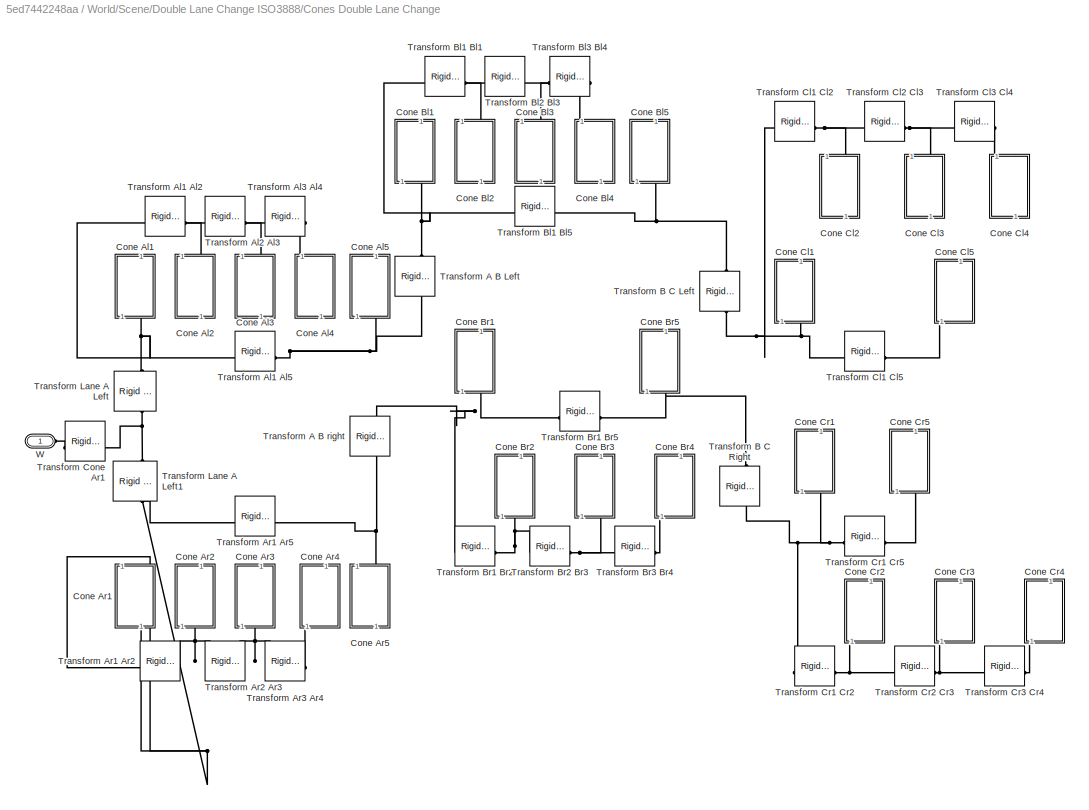
BLOCK [SubSystem] World/Scene/Double Lane Change ISO3888/Cones Double Lane Change
BLOCK [SubSystem] World/Scene/Double Lane Change ISO3888/Cones Double Lane Change/Cone Al1
  NameLocation = top
BLOCK [PMIOPort] World/Scene/Double Lane Change ISO3888/Cones Double Lane Change/Cone Al1/B
  NameLocation = right
  Side = Left
BLOCK [Reference] World/Scene/Double Lane Change ISO3888/Cones Double Lane Change/Cone Al1/Base  REF=sm_lib/Body Elements/Brick Solid
  NameLocation = right
  SourceBlock = sm_lib/Body Elements/Brick Solid
  SourceType = Brick Solid
BLOCK [Reference] World/Scene/Double Lane Change ISO3888/Cones Double Lane Change/Cone Al1/Cone Base  REF=sm_lib/Body Elements/Revolved Solid
  NameLocation = right
  SourceBlock = sm_lib/Body Elements/Revolved Solid
  SourceType = Revolved Solid
BLOCK [Reference] World/Scene/Double Lane Change ISO3888/Cones Double Lane Change/Cone Al1/Cone Top  REF=sm_lib/Body Elements/Revolved Solid
  NameLocation = right
  SourceBlock = sm_lib/Body Elements/Revolved Solid
  SourceType = Revolved Solid
BLOCK [Reference] World/Scene/Double Lane Change ISO3888/Cones Double Lane Change/Cone Al1/Reflective Strip  REF=sm_lib/Body Elements/Revolved Solid
  NameLocation = right
  SourceBlock = sm_lib/Body Elements/Revolved Solid
  SourceType = Revolved Solid
BLOCK [SubSystem] World/Scene/Double Lane Change ISO3888/Cones Double Lane Change/Cone Al2
  NameLocation = left
BLOCK [PMIOPort] World/Scene/Double Lane Change ISO3888/Cones Double Lane Change/Cone Al2/B
  NameLocation = right
  Side = Left
BLOCK [Reference] World/Scene/Double Lane Change ISO3888/Cones Double Lane Change/Cone Al2/Base  REF=sm_lib/Body Elements/Brick Solid
  NameLocation = right
  SourceBlock = sm_lib/Body Elements/Brick Solid
  SourceType = Brick Solid
BLOCK [Reference] World/Scene/Double Lane Change ISO3888/Cones Double Lane Change/Cone Al2/Cone Base  REF=sm_lib/Body Elements/Revolved Solid
  NameLocation = right
  SourceBlock = sm_lib/Body Elements/Revolved Solid
  SourceType = Revolved Solid
BLOCK [Reference] World/Scene/Double Lane Change ISO3888/Cones Double Lane Change/Cone Al2/Cone Top  REF=sm_lib/Body Elements/Revolved Solid
  NameLocation = right
  SourceBlock = sm_lib/Body Elements/Revolved Solid
  SourceType = Revolved Solid
BLOCK [Reference] World/Scene/Double Lane Change ISO3888/Cones Double Lane Change/Cone Al2/Reflective Strip  REF=sm_lib/Body Elements/Revolved Solid
  NameLocation = right
  SourceBlock = sm_lib/Body Elements/Revolved Solid
  SourceType = Revolved Solid
BLOCK [SubSystem] World/Scene/Double Lane Change ISO3888/Cones Double Lane Change/Cone Al3
  NameLocation = left
BLOCK [PMIOPort] World/Scene/Double Lane Change ISO3888/Cones Double Lane Change/Cone Al3/B
  NameLocation = right
  Side = Left
BLOCK [Reference] World/Scene/Double Lane Change ISO3888/Cones Double Lane Change/Cone Al3/Base  REF=sm_lib/Body Elements/Brick Solid
  NameLocation = right
  SourceBlock = sm_lib/Body Elements/Brick Solid
  SourceType = Brick Solid
BLOCK [Reference] World/Scene/Double Lane Change ISO3888/Cones Double Lane Change/Cone Al3/Cone Base  REF=sm_lib/Body Elements/Revolved Solid
  NameLocation = right
  SourceBlock = sm_lib/Body Elements/Revolved Solid
  SourceType = Revolved Solid
BLOCK [Reference] World/Scene/Double Lane Change ISO3888/Cones Double Lane Change/Cone Al3/Cone Top  REF=sm_lib/Body Elements/Revolved Solid
  NameLocation = right
  SourceBlock = sm_lib/Body Elements/Revolved Solid
  SourceType = Revolved Solid
BLOCK [Reference] World/Scene/Double Lane Change ISO3888/Cones Double Lane Change/Cone Al3/Reflective Strip  REF=sm_lib/Body Elements/Revolved Solid
  NameLocation = right
  SourceBlock = sm_lib/Body Elements/Revolved Solid
  SourceType = Revolved Solid
BLOCK [SubSystem] World/Scene/Double Lane Change ISO3888/Cones Double Lane Change/Cone Al4
  NameLocation = left
BLOCK [PMIOPort] World/Scene/Double Lane Change ISO3888/Cones Double Lane Change/Cone Al4/B
  NameLocation = right
  Side = Left
BLOCK [Reference] World/Scene/Double Lane Change ISO3888/Cones Double Lane Change/Cone Al4/Base  REF=sm_lib/Body Elements/Brick Solid
  NameLocation = right
  SourceBlock = sm_lib/Body Elements/Brick Solid
  SourceType = Brick Solid
BLOCK [Reference] World/Scene/Double Lane Change ISO3888/Cones Double Lane Change/Cone Al4/Cone Base  REF=sm_lib/Body Elements/Revolved Solid
  NameLocation = right
  SourceBlock = sm_lib/Body Elements/Revolved Solid
  SourceType = Revolved Solid
BLOCK [Reference] World/Scene/Double Lane Change ISO3888/Cones Double Lane Change/Cone Al4/Cone Top  REF=sm_lib/Body Elements/Revolved Solid
  NameLocation = right
  SourceBlock = sm_lib/Body Elements/Revolved Solid
  SourceType = Revolved Solid
BLOCK [Reference] World/Scene/Double Lane Change ISO3888/Cones Double Lane Change/Cone Al4/Reflective Strip  REF=sm_lib/Body Elements/Revolved Solid
  NameLocation = right
  SourceBlock = sm_lib/Body Elements/Revolved Solid
  SourceType = Revolved Solid
BLOCK [SubSystem] World/Scene/Double Lane Change ISO3888/Cones Double Lane Change/Cone Al5
  NameLocation = right
BLOCK [PMIOPort] World/Scene/Double Lane Change ISO3888/Cones Double Lane Change/Cone Al5/B
  NameLocation = right
  Side = Left
BLOCK [Reference] World/Scene/Double Lane Change ISO3888/Cones Double Lane Change/Cone Al5/Base  REF=sm_lib/Body Elements/Brick Solid
  NameLocation = right
  SourceBlock = sm_lib/Body Elements/Brick Solid
  SourceType = Brick Solid
BLOCK [Reference] World/Scene/Double Lane Change ISO3888/Cones Double Lane Change/Cone Al5/Cone Base  REF=sm_lib/Body Elements/Revolved Solid
  NameLocation = right
  SourceBlock = sm_lib/Body Elements/Revolved Solid
  SourceType = Revolved Solid
BLOCK [Reference] World/Scene/Double Lane Change ISO3888/Cones Double Lane Change/Cone Al5/Cone Top  REF=sm_lib/Body Elements/Revolved Solid
  NameLocation = right
  SourceBlock = sm_lib/Body Elements/Revolved Solid
  SourceType = Revolved Solid
BLOCK [Reference] World/Scene/Double Lane Change ISO3888/Cones Double Lane Change/Cone Al5/Reflective Strip  REF=sm_lib/Body Elements/Revolved Solid
  NameLocation = right
  SourceBlock = sm_lib/Body Elements/Revolved Solid
  SourceType = Revolved Solid
BLOCK [SubSystem] World/Scene/Double Lane Change ISO3888/Cones Double Lane Change/Cone Ar1
BLOCK [PMIOPort] World/Scene/Double Lane Change ISO3888/Cones Double Lane Change/Cone Ar1/B
  NameLocation = right
  Side = Left
BLOCK [Reference] World/Scene/Double Lane Change ISO3888/Cones Double Lane Change/Cone Ar1/Base  REF=sm_lib/Body Elements/Brick Solid
  NameLocation = right
  SourceBlock = sm_lib/Body Elements/Brick Solid
  SourceType = Brick Solid
BLOCK [Reference] World/Scene/Double Lane Change ISO3888/Cones Double Lane Change/Cone Ar1/Cone Base  REF=sm_lib/Body Elements/Revolved Solid
  NameLocation = right
  SourceBlock = sm_lib/Body Elements/Revolved Solid
  SourceType = Revolved Solid
BLOCK [Reference] World/Scene/Double Lane Change ISO3888/Cones Double Lane Change/Cone Ar1/Cone Top  REF=sm_lib/Body Elements/Revolved Solid
  NameLocation = right
  SourceBlock = sm_lib/Body Elements/Revolved Solid
  SourceType = Revolved Solid
BLOCK [Reference] World/Scene/Double Lane Change ISO3888/Cones Double Lane Change/Cone Ar1/Reflective Strip  REF=sm_lib/Body Elements/Revolved Solid
  NameLocation = right
  SourceBlock = sm_lib/Body Elements/Revolved Solid
  SourceType = Revolved Solid
BLOCK [SubSystem] World/Scene/Double Lane Change ISO3888/Cones Double Lane Change/Cone Ar2
  NameLocation = right
BLOCK [PMIOPort] World/Scene/Double Lane Change ISO3888/Cones Double Lane Change/Cone Ar2/B
  NameLocation = right
  Side = Left
BLOCK [Reference] World/Scene/Double Lane Change ISO3888/Cones Double Lane Change/Cone Ar2/Base  REF=sm_lib/Body Elements/Brick Solid
  NameLocation = right
  SourceBlock = sm_lib/Body Elements/Brick Solid
  SourceType = Brick Solid
BLOCK [Reference] World/Scene/Double Lane Change ISO3888/Cones Double Lane Change/Cone Ar2/Cone Base  REF=sm_lib/Body Elements/Revolved Solid
  NameLocation = right
  SourceBlock = sm_lib/Body Elements/Revolved Solid
  SourceType = Revolved Solid
BLOCK [Reference] World/Scene/Double Lane Change ISO3888/Cones Double Lane Change/Cone Ar2/Cone Top  REF=sm_lib/Body Elements/Revolved Solid
  NameLocation = right
  SourceBlock = sm_lib/Body Elements/Revolved Solid
  SourceType = Revolved Solid
BLOCK [Reference] World/Scene/Double Lane Change ISO3888/Cones Double Lane Change/Cone Ar2/Reflective Strip  REF=sm_lib/Body Elements/Revolved Solid
  NameLocation = right
  SourceBlock = sm_lib/Body Elements/Revolved Solid
  SourceType = Revolved Solid
BLOCK [SubSystem] World/Scene/Double Lane Change ISO3888/Cones Double Lane Change/Cone Ar3
  NameLocation = right
BLOCK [PMIOPort] World/Scene/Double Lane Change ISO3888/Cones Double Lane Change/Cone Ar3/B
  NameLocation = right
  Side = Left
BLOCK [Reference] World/Scene/Double Lane Change ISO3888/Cones Double Lane Change/Cone Ar3/Base  REF=sm_lib/Body Elements/Brick Solid
  NameLocation = right
  SourceBlock = sm_lib/Body Elements/Brick Solid
  SourceType = Brick Solid
BLOCK [Reference] World/Scene/Double Lane Change ISO3888/Cones Double Lane Change/Cone Ar3/Cone Base  REF=sm_lib/Body Elements/Revolved Solid
  NameLocation = right
  SourceBlock = sm_lib/Body Elements/Revolved Solid
  SourceType = Revolved Solid
BLOCK [Reference] World/Scene/Double Lane Change ISO3888/Cones Double Lane Change/Cone Ar3/Cone Top  REF=sm_lib/Body Elements/Revolved Solid
  NameLocation = right
  SourceBlock = sm_lib/Body Elements/Revolved Solid
  SourceType = Revolved Solid
BLOCK [Reference] World/Scene/Double Lane Change ISO3888/Cones Double Lane Change/Cone Ar3/Reflective Strip  REF=sm_lib/Body Elements/Revolved Solid
  NameLocation = right
  SourceBlock = sm_lib/Body Elements/Revolved Solid
  SourceType = Revolved Solid
BLOCK [SubSystem] World/Scene/Double Lane Change ISO3888/Cones Double Lane Change/Cone Ar4
  NameLocation = right
BLOCK [PMIOPort] World/Scene/Double Lane Change ISO3888/Cones Double Lane Change/Cone Ar4/B
  NameLocation = right
  Side = Left
BLOCK [Reference] World/Scene/Double Lane Change ISO3888/Cones Double Lane Change/Cone Ar4/Base  REF=sm_lib/Body Elements/Brick Solid
  NameLocation = right
  SourceBlock = sm_lib/Body Elements/Brick Solid
  SourceType = Brick Solid
BLOCK [Reference] World/Scene/Double Lane Change ISO3888/Cones Double Lane Change/Cone Ar4/Cone Base  REF=sm_lib/Body Elements/Revolved Solid
  NameLocation = right
  SourceBlock = sm_lib/Body Elements/Revolved Solid
  SourceType = Revolved Solid
BLOCK [Reference] World/Scene/Double Lane Change ISO3888/Cones Double Lane Change/Cone Ar4/Cone Top  REF=sm_lib/Body Elements/Revolved Solid
  NameLocation = right
  SourceBlock = sm_lib/Body Elements/Revolved Solid
  SourceType = Revolved Solid
BLOCK [Reference] World/Scene/Double Lane Change ISO3888/Cones Double Lane Change/Cone Ar4/Reflective Strip  REF=sm_lib/Body Elements/Revolved Solid
  NameLocation = right
  SourceBlock = sm_lib/Body Elements/Revolved Solid
  SourceType = Revolved Solid
BLOCK [SubSystem] World/Scene/Double Lane Change ISO3888/Cones Double Lane Change/Cone Ar5
BLOCK [PMIOPort] World/Scene/Double Lane Change ISO3888/Cones Double Lane Change/Cone Ar5/B
  NameLocation = right
  Side = Left
BLOCK [Reference] World/Scene/Double Lane Change ISO3888/Cones Double Lane Change/Cone Ar5/Base  REF=sm_lib/Body Elements/Brick Solid
  NameLocation = right
  SourceBlock = sm_lib/Body Elements/Brick Solid
  SourceType = Brick Solid
BLOCK [Reference] World/Scene/Double Lane Change ISO3888/Cones Double Lane Change/Cone Ar5/Cone Base  REF=sm_lib/Body Elements/Revolved Solid
  NameLocation = right
  SourceBlock = sm_lib/Body Elements/Revolved Solid
  SourceType = Revolved Solid
BLOCK [Reference] World/Scene/Double Lane Change ISO3888/Cones Double Lane Change/Cone Ar5/Cone Top  REF=sm_lib/Body Elements/Revolved Solid
  NameLocation = right
  SourceBlock = sm_lib/Body Elements/Revolved Solid
  SourceType = Revolved Solid
BLOCK [Reference] World/Scene/Double Lane Change ISO3888/Cones Double Lane Change/Cone Ar5/Reflective Strip  REF=sm_lib/Body Elements/Revolved Solid
  NameLocation = right
  SourceBlock = sm_lib/Body Elements/Revolved Solid
  SourceType = Revolved Solid
BLOCK [SubSystem] World/Scene/Double Lane Change ISO3888/Cones Double Lane Change/Cone Bl1
  NameLocation = top
BLOCK [PMIOPort] World/Scene/Double Lane Change ISO3888/Cones Double Lane Change/Cone Bl1/B
  NameLocation = right
  Side = Left
BLOCK [Reference] World/Scene/Double Lane Change ISO3888/Cones Double Lane Change/Cone Bl1/Base  REF=sm_lib/Body Elements/Brick Solid
  NameLocation = right
  SourceBlock = sm_lib/Body Elements/Brick Solid
  SourceType = Brick Solid
BLOCK [Reference] World/Scene/Double Lane Change ISO3888/Cones Double Lane Change/Cone Bl1/Cone Base  REF=sm_lib/Body Elements/Revolved Solid
  NameLocation = right
  SourceBlock = sm_lib/Body Elements/Revolved Solid
  SourceType = Revolved Solid
BLOCK [Reference] World/Scene/Double Lane Change ISO3888/Cones Double Lane Change/Cone Bl1/Cone Top  REF=sm_lib/Body Elements/Revolved Solid
  NameLocation = right
  SourceBlock = sm_lib/Body Elements/Revolved Solid
  SourceType = Revolved Solid
BLOCK [Reference] World/Scene/Double Lane Change ISO3888/Cones Double Lane Change/Cone Bl1/Reflective Strip  REF=sm_lib/Body Elements/Revolved Solid
  NameLocation = right
  SourceBlock = sm_lib/Body Elements/Revolved Solid
  SourceType = Revolved Solid
BLOCK [SubSystem] World/Scene/Double Lane Change ISO3888/Cones Double Lane Change/Cone Bl2
  NameLocation = left
BLOCK [PMIOPort] World/Scene/Double Lane Change ISO3888/Cones Double Lane Change/Cone Bl2/B
  NameLocation = right
  Side = Left
BLOCK [Reference] World/Scene/Double Lane Change ISO3888/Cones Double Lane Change/Cone Bl2/Base  REF=sm_lib/Body Elements/Brick Solid
  NameLocation = right
  SourceBlock = sm_lib/Body Elements/Brick Solid
  SourceType = Brick Solid
BLOCK [Reference] World/Scene/Double Lane Change ISO3888/Cones Double Lane Change/Cone Bl2/Cone Base  REF=sm_lib/Body Elements/Revolved Solid
  NameLocation = right
  SourceBlock = sm_lib/Body Elements/Revolved Solid
  SourceType = Revolved Solid
BLOCK [Reference] World/Scene/Double Lane Change ISO3888/Cones Double Lane Change/Cone Bl2/Cone Top  REF=sm_lib/Body Elements/Revolved Solid
  NameLocation = right
  SourceBlock = sm_lib/Body Elements/Revolved Solid
  SourceType = Revolved Solid
BLOCK [Reference] World/Scene/Double Lane Change ISO3888/Cones Double Lane Change/Cone Bl2/Reflective Strip  REF=sm_lib/Body Elements/Revolved Solid
  NameLocation = right
  SourceBlock = sm_lib/Body Elements/Revolved Solid
  SourceType = Revolved Solid
BLOCK [SubSystem] World/Scene/Double Lane Change ISO3888/Cones Double Lane Change/Cone Bl3
  NameLocation = left
BLOCK [PMIOPort] World/Scene/Double Lane Change ISO3888/Cones Double Lane Change/Cone Bl3/B
  NameLocation = right
  Side = Left
BLOCK [Reference] World/Scene/Double Lane Change ISO3888/Cones Double Lane Change/Cone Bl3/Base  REF=sm_lib/Body Elements/Brick Solid
  NameLocation = right
  SourceBlock = sm_lib/Body Elements/Brick Solid
  SourceType = Brick Solid
BLOCK [Reference] World/Scene/Double Lane Change ISO3888/Cones Double Lane Change/Cone Bl3/Cone Base  REF=sm_lib/Body Elements/Revolved Solid
  NameLocation = right
  SourceBlock = sm_lib/Body Elements/Revolved Solid
  SourceType = Revolved Solid
BLOCK [Reference] World/Scene/Double Lane Change ISO3888/Cones Double Lane Change/Cone Bl3/Cone Top  REF=sm_lib/Body Elements/Revolved Solid
  NameLocation = right
  SourceBlock = sm_lib/Body Elements/Revolved Solid
  SourceType = Revolved Solid
BLOCK [Reference] World/Scene/Double Lane Change ISO3888/Cones Double Lane Change/Cone Bl3/Reflective Strip  REF=sm_lib/Body Elements/Revolved Solid
  NameLocation = right
  SourceBlock = sm_lib/Body Elements/Revolved Solid
  SourceType = Revolved Solid
BLOCK [SubSystem] World/Scene/Double Lane Change ISO3888/Cones Double Lane Change/Cone Bl4
  NameLocation = left
BLOCK [PMIOPort] World/Scene/Double Lane Change ISO3888/Cones Double Lane Change/Cone Bl4/B
  NameLocation = right
  Side = Left
BLOCK [Reference] World/Scene/Double Lane Change ISO3888/Cones Double Lane Change/Cone Bl4/Base  REF=sm_lib/Body Elements/Brick Solid
  NameLocation = right
  SourceBlock = sm_lib/Body Elements/Brick Solid
  SourceType = Brick Solid
BLOCK [Reference] World/Scene/Double Lane Change ISO3888/Cones Double Lane Change/Cone Bl4/Cone Base  REF=sm_lib/Body Elements/Revolved Solid
  NameLocation = right
  SourceBlock = sm_lib/Body Elements/Revolved Solid
  SourceType = Revolved Solid
BLOCK [Reference] World/Scene/Double Lane Change ISO3888/Cones Double Lane Change/Cone Bl4/Cone Top  REF=sm_lib/Body Elements/Revolved Solid
  NameLocation = right
  SourceBlock = sm_lib/Body Elements/Revolved Solid
  SourceType = Revolved Solid
BLOCK [Reference] World/Scene/Double Lane Change ISO3888/Cones Double Lane Change/Cone Bl4/Reflective Strip  REF=sm_lib/Body Elements/Revolved Solid
  NameLocation = right
  SourceBlock = sm_lib/Body Elements/Revolved Solid
  SourceType = Revolved Solid
BLOCK [SubSystem] World/Scene/Double Lane Change ISO3888/Cones Double Lane Change/Cone Bl5
  NameLocation = top
BLOCK [PMIOPort] World/Scene/Double Lane Change ISO3888/Cones Double Lane Change/Cone Bl5/B
  NameLocation = right
  Side = Left
BLOCK [Reference] World/Scene/Double Lane Change ISO3888/Cones Double Lane Change/Cone Bl5/Base  REF=sm_lib/Body Elements/Brick Solid
  NameLocation = right
  SourceBlock = sm_lib/Body Elements/Brick Solid
  SourceType = Brick Solid
BLOCK [Reference] World/Scene/Double Lane Change ISO3888/Cones Double Lane Change/Cone Bl5/Cone Base  REF=sm_lib/Body Elements/Revolved Solid
  NameLocation = right
  SourceBlock = sm_lib/Body Elements/Revolved Solid
  SourceType = Revolved Solid
BLOCK [Reference] World/Scene/Double Lane Change ISO3888/Cones Double Lane Change/Cone Bl5/Cone Top  REF=sm_lib/Body Elements/Revolved Solid
  NameLocation = right
  SourceBlock = sm_lib/Body Elements/Revolved Solid
  SourceType = Revolved Solid
BLOCK [Reference] World/Scene/Double Lane Change ISO3888/Cones Double Lane Change/Cone Bl5/Reflective Strip  REF=sm_lib/Body Elements/Revolved Solid
  NameLocation = right
  SourceBlock = sm_lib/Body Elements/Revolved Solid
  SourceType = Revolved Solid
BLOCK [SubSystem] World/Scene/Double Lane Change ISO3888/Cones Double Lane Change/Cone Br1
  NameLocation = top
BLOCK [PMIOPort] World/Scene/Double Lane Change ISO3888/Cones Double Lane Change/Cone Br1/B
  NameLocation = right
  Side = Left
BLOCK [Reference] World/Scene/Double Lane Change ISO3888/Cones Double Lane Change/Cone Br1/Base  REF=sm_lib/Body Elements/Brick Solid
  NameLocation = right
  SourceBlock = sm_lib/Body Elements/Brick Solid
  SourceType = Brick Solid
BLOCK [Reference] World/Scene/Double Lane Change ISO3888/Cones Double Lane Change/Cone Br1/Cone Base  REF=sm_lib/Body Elements/Revolved Solid
  NameLocation = right
  SourceBlock = sm_lib/Body Elements/Revolved Solid
  SourceType = Revolved Solid
BLOCK [Reference] World/Scene/Double Lane Change ISO3888/Cones Double Lane Change/Cone Br1/Cone Top  REF=sm_lib/Body Elements/Revolved Solid
  NameLocation = right
  SourceBlock = sm_lib/Body Elements/Revolved Solid
  SourceType = Revolved Solid
BLOCK [Reference] World/Scene/Double Lane Change ISO3888/Cones Double Lane Change/Cone Br1/Reflective Strip  REF=sm_lib/Body Elements/Revolved Solid
  NameLocation = right
  SourceBlock = sm_lib/Body Elements/Revolved Solid
  SourceType = Revolved Solid
BLOCK [SubSystem] World/Scene/Double Lane Change ISO3888/Cones Double Lane Change/Cone Br2
  NameLocation = top
BLOCK [PMIOPort] World/Scene/Double Lane Change ISO3888/Cones Double Lane Change/Cone Br2/B
  NameLocation = right
  Side = Left
BLOCK [Reference] World/Scene/Double Lane Change ISO3888/Cones Double Lane Change/Cone Br2/Base  REF=sm_lib/Body Elements/Brick Solid
  NameLocation = right
  SourceBlock = sm_lib/Body Elements/Brick Solid
  SourceType = Brick Solid
BLOCK [Reference] World/Scene/Double Lane Change ISO3888/Cones Double Lane Change/Cone Br2/Cone Base  REF=sm_lib/Body Elements/Revolved Solid
  NameLocation = right
  SourceBlock = sm_lib/Body Elements/Revolved Solid
  SourceType = Revolved Solid
BLOCK [Reference] World/Scene/Double Lane Change ISO3888/Cones Double Lane Change/Cone Br2/Cone Top  REF=sm_lib/Body Elements/Revolved Solid
  NameLocation = right
  SourceBlock = sm_lib/Body Elements/Revolved Solid
  SourceType = Revolved Solid
BLOCK [Reference] World/Scene/Double Lane Change ISO3888/Cones Double Lane Change/Cone Br2/Reflective Strip  REF=sm_lib/Body Elements/Revolved Solid
  NameLocation = right
  SourceBlock = sm_lib/Body Elements/Revolved Solid
  SourceType = Revolved Solid
BLOCK [SubSystem] World/Scene/Double Lane Change ISO3888/Cones Double Lane Change/Cone Br3
  NameLocation = top
BLOCK [PMIOPort] World/Scene/Double Lane Change ISO3888/Cones Double Lane Change/Cone Br3/B
  NameLocation = right
  Side = Left
BLOCK [Reference] World/Scene/Double Lane Change ISO3888/Cones Double Lane Change/Cone Br3/Base  REF=sm_lib/Body Elements/Brick Solid
  NameLocation = right
  SourceBlock = sm_lib/Body Elements/Brick Solid
  SourceType = Brick Solid
BLOCK [Reference] World/Scene/Double Lane Change ISO3888/Cones Double Lane Change/Cone Br3/Cone Base  REF=sm_lib/Body Elements/Revolved Solid
  NameLocation = right
  SourceBlock = sm_lib/Body Elements/Revolved Solid
  SourceType = Revolved Solid
BLOCK [Reference] World/Scene/Double Lane Change ISO3888/Cones Double Lane Change/Cone Br3/Cone Top  REF=sm_lib/Body Elements/Revolved Solid
  NameLocation = right
  SourceBlock = sm_lib/Body Elements/Revolved Solid
  SourceType = Revolved Solid
BLOCK [Reference] World/Scene/Double Lane Change ISO3888/Cones Double Lane Change/Cone Br3/Reflective Strip  REF=sm_lib/Body Elements/Revolved Solid
  NameLocation = right
  SourceBlock = sm_lib/Body Elements/Revolved Solid
  SourceType = Revolved Solid
BLOCK [SubSystem] World/Scene/Double Lane Change ISO3888/Cones Double Lane Change/Cone Br4
  NameLocation = top
BLOCK [PMIOPort] World/Scene/Double Lane Change ISO3888/Cones Double Lane Change/Cone Br4/B
  NameLocation = right
  Side = Left
BLOCK [Reference] World/Scene/Double Lane Change ISO3888/Cones Double Lane Change/Cone Br4/Base  REF=sm_lib/Body Elements/Brick Solid
  NameLocation = right
  SourceBlock = sm_lib/Body Elements/Brick Solid
  SourceType = Brick Solid
BLOCK [Reference] World/Scene/Double Lane Change ISO3888/Cones Double Lane Change/Cone Br4/Cone Base  REF=sm_lib/Body Elements/Revolved Solid
  NameLocation = right
  SourceBlock = sm_lib/Body Elements/Revolved Solid
  SourceType = Revolved Solid
BLOCK [Reference] World/Scene/Double Lane Change ISO3888/Cones Double Lane Change/Cone Br4/Cone Top  REF=sm_lib/Body Elements/Revolved Solid
  NameLocation = right
  SourceBlock = sm_lib/Body Elements/Revolved Solid
  SourceType = Revolved Solid
BLOCK [Reference] World/Scene/Double Lane Change ISO3888/Cones Double Lane Change/Cone Br4/Reflective Strip  REF=sm_lib/Body Elements/Revolved Solid
  NameLocation = right
  SourceBlock = sm_lib/Body Elements/Revolved Solid
  SourceType = Revolved Solid
BLOCK [SubSystem] World/Scene/Double Lane Change ISO3888/Cones Double Lane Change/Cone Br5
  NameLocation = top
BLOCK [PMIOPort] World/Scene/Double Lane Change ISO3888/Cones Double Lane Change/Cone Br5/B
  NameLocation = right
  Side = Left
BLOCK [Reference] World/Scene/Double Lane Change ISO3888/Cones Double Lane Change/Cone Br5/Base  REF=sm_lib/Body Elements/Brick Solid
  NameLocation = right
  SourceBlock = sm_lib/Body Elements/Brick Solid
  SourceType = Brick Solid
BLOCK [Reference] World/Scene/Double Lane Change ISO3888/Cones Double Lane Change/Cone Br5/Cone Base  REF=sm_lib/Body Elements/Revolved Solid
  NameLocation = right
  SourceBlock = sm_lib/Body Elements/Revolved Solid
  SourceType = Revolved Solid
BLOCK [Reference] World/Scene/Double Lane Change ISO3888/Cones Double Lane Change/Cone Br5/Cone Top  REF=sm_lib/Body Elements/Revolved Solid
  NameLocation = right
  SourceBlock = sm_lib/Body Elements/Revolved Solid
  SourceType = Revolved Solid
BLOCK [Reference] World/Scene/Double Lane Change ISO3888/Cones Double Lane Change/Cone Br5/Reflective Strip  REF=sm_lib/Body Elements/Revolved Solid
  NameLocation = right
  SourceBlock = sm_lib/Body Elements/Revolved Solid
  SourceType = Revolved Solid
BLOCK [SubSystem] World/Scene/Double Lane Change ISO3888/Cones Double Lane Change/Cone Cl1
  NameLocation = top
BLOCK [PMIOPort] World/Scene/Double Lane Change ISO3888/Cones Double Lane Change/Cone Cl1/B
  NameLocation = right
  Side = Left
BLOCK [Reference] World/Scene/Double Lane Change ISO3888/Cones Double Lane Change/Cone Cl1/Base  REF=sm_lib/Body Elements/Brick Solid
  NameLocation = right
  SourceBlock = sm_lib/Body Elements/Brick Solid
  SourceType = Brick Solid
BLOCK [Reference] World/Scene/Double Lane Change ISO3888/Cones Double Lane Change/Cone Cl1/Cone Base  REF=sm_lib/Body Elements/Revolved Solid
  NameLocation = right
  SourceBlock = sm_lib/Body Elements/Revolved Solid
  SourceType = Revolved Solid
BLOCK [Reference] World/Scene/Double Lane Change ISO3888/Cones Double Lane Change/Cone Cl1/Cone Top  REF=sm_lib/Body Elements/Revolved Solid
  NameLocation = right
  SourceBlock = sm_lib/Body Elements/Revolved Solid
  SourceType = Revolved Solid
BLOCK [Reference] World/Scene/Double Lane Change ISO3888/Cones Double Lane Change/Cone Cl1/Reflective Strip  REF=sm_lib/Body Elements/Revolved Solid
  NameLocation = right
  SourceBlock = sm_lib/Body Elements/Revolved Solid
  SourceType = Revolved Solid
BLOCK [SubSystem] World/Scene/Double Lane Change ISO3888/Cones Double Lane Change/Cone Cl2
BLOCK [PMIOPort] World/Scene/Double Lane Change ISO3888/Cones Double Lane Change/Cone Cl2/B
  NameLocation = right
  Side = Left
BLOCK [Reference] World/Scene/Double Lane Change ISO3888/Cones Double Lane Change/Cone Cl2/Base  REF=sm_lib/Body Elements/Brick Solid
  NameLocation = right
  SourceBlock = sm_lib/Body Elements/Brick Solid
  SourceType = Brick Solid
BLOCK [Reference] World/Scene/Double Lane Change ISO3888/Cones Double Lane Change/Cone Cl2/Cone Base  REF=sm_lib/Body Elements/Revolved Solid
  NameLocation = right
  SourceBlock = sm_lib/Body Elements/Revolved Solid
  SourceType = Revolved Solid
BLOCK [Reference] World/Scene/Double Lane Change ISO3888/Cones Double Lane Change/Cone Cl2/Cone Top  REF=sm_lib/Body Elements/Revolved Solid
  NameLocation = right
  SourceBlock = sm_lib/Body Elements/Revolved Solid
  SourceType = Revolved Solid
BLOCK [Reference] World/Scene/Double Lane Change ISO3888/Cones Double Lane Change/Cone Cl2/Reflective Strip  REF=sm_lib/Body Elements/Revolved Solid
  NameLocation = right
  SourceBlock = sm_lib/Body Elements/Revolved Solid
  SourceType = Revolved Solid
BLOCK [SubSystem] World/Scene/Double Lane Change ISO3888/Cones Double Lane Change/Cone Cl3
BLOCK [PMIOPort] World/Scene/Double Lane Change ISO3888/Cones Double Lane Change/Cone Cl3/B
  NameLocation = right
  Side = Left
BLOCK [Reference] World/Scene/Double Lane Change ISO3888/Cones Double Lane Change/Cone Cl3/Base  REF=sm_lib/Body Elements/Brick Solid
  NameLocation = right
  SourceBlock = sm_lib/Body Elements/Brick Solid
  SourceType = Brick Solid
BLOCK [Reference] World/Scene/Double Lane Change ISO3888/Cones Double Lane Change/Cone Cl3/Cone Base  REF=sm_lib/Body Elements/Revolved Solid
  NameLocation = right
  SourceBlock = sm_lib/Body Elements/Revolved Solid
  SourceType = Revolved Solid
BLOCK [Reference] World/Scene/Double Lane Change ISO3888/Cones Double Lane Change/Cone Cl3/Cone Top  REF=sm_lib/Body Elements/Revolved Solid
  NameLocation = right
  SourceBlock = sm_lib/Body Elements/Revolved Solid
  SourceType = Revolved Solid
BLOCK [Reference] World/Scene/Double Lane Change ISO3888/Cones Double Lane Change/Cone Cl3/Reflective Strip  REF=sm_lib/Body Elements/Revolved Solid
  NameLocation = right
  SourceBlock = sm_lib/Body Elements/Revolved Solid
  SourceType = Revolved Solid
BLOCK [SubSystem] World/Scene/Double Lane Change ISO3888/Cones Double Lane Change/Cone Cl4
BLOCK [PMIOPort] World/Scene/Double Lane Change ISO3888/Cones Double Lane Change/Cone Cl4/B
  NameLocation = right
  Side = Left
BLOCK [Reference] World/Scene/Double Lane Change ISO3888/Cones Double Lane Change/Cone Cl4/Base  REF=sm_lib/Body Elements/Brick Solid
  NameLocation = right
  SourceBlock = sm_lib/Body Elements/Brick Solid
  SourceType = Brick Solid
BLOCK [Reference] World/Scene/Double Lane Change ISO3888/Cones Double Lane Change/Cone Cl4/Cone Base  REF=sm_lib/Body Elements/Revolved Solid
  NameLocation = right
  SourceBlock = sm_lib/Body Elements/Revolved Solid
  SourceType = Revolved Solid
BLOCK [Reference] World/Scene/Double Lane Change ISO3888/Cones Double Lane Change/Cone Cl4/Cone Top  REF=sm_lib/Body Elements/Revolved Solid
  NameLocation = right
  SourceBlock = sm_lib/Body Elements/Revolved Solid
  SourceType = Revolved Solid
BLOCK [Reference] World/Scene/Double Lane Change ISO3888/Cones Double Lane Change/Cone Cl4/Reflective Strip  REF=sm_lib/Body Elements/Revolved Solid
  NameLocation = right
  SourceBlock = sm_lib/Body Elements/Revolved Solid
  SourceType = Revolved Solid
BLOCK [SubSystem] World/Scene/Double Lane Change ISO3888/Cones Double Lane Change/Cone Cl5
  NameLocation = top
BLOCK [PMIOPort] World/Scene/Double Lane Change ISO3888/Cones Double Lane Change/Cone Cl5/B
  NameLocation = right
  Side = Left
BLOCK [Reference] World/Scene/Double Lane Change ISO3888/Cones Double Lane Change/Cone Cl5/Base  REF=sm_lib/Body Elements/Brick Solid
  NameLocation = right
  SourceBlock = sm_lib/Body Elements/Brick Solid
  SourceType = Brick Solid
BLOCK [Reference] World/Scene/Double Lane Change ISO3888/Cones Double Lane Change/Cone Cl5/Cone Base  REF=sm_lib/Body Elements/Revolved Solid
  NameLocation = right
  SourceBlock = sm_lib/Body Elements/Revolved Solid
  SourceType = Revolved Solid
BLOCK [Reference] World/Scene/Double Lane Change ISO3888/Cones Double Lane Change/Cone Cl5/Cone Top  REF=sm_lib/Body Elements/Revolved Solid
  NameLocation = right
  SourceBlock = sm_lib/Body Elements/Revolved Solid
  SourceType = Revolved Solid
BLOCK [Reference] World/Scene/Double Lane Change ISO3888/Cones Double Lane Change/Cone Cl5/Reflective Strip  REF=sm_lib/Body Elements/Revolved Solid
  NameLocation = right
  SourceBlock = sm_lib/Body Elements/Revolved Solid
  SourceType = Revolved Solid
BLOCK [SubSystem] World/Scene/Double Lane Change ISO3888/Cones Double Lane Change/Cone Cr1
  NameLocation = top
BLOCK [PMIOPort] World/Scene/Double Lane Change ISO3888/Cones Double Lane Change/Cone Cr1/B
  NameLocation = right
  Side = Left
BLOCK [Reference] World/Scene/Double Lane Change ISO3888/Cones Double Lane Change/Cone Cr1/Base  REF=sm_lib/Body Elements/Brick Solid
  NameLocation = right
  SourceBlock = sm_lib/Body Elements/Brick Solid
  SourceType = Brick Solid
BLOCK [Reference] World/Scene/Double Lane Change ISO3888/Cones Double Lane Change/Cone Cr1/Cone Base  REF=sm_lib/Body Elements/Revolved Solid
  NameLocation = right
  SourceBlock = sm_lib/Body Elements/Revolved Solid
  SourceType = Revolved Solid
BLOCK [Reference] World/Scene/Double Lane Change ISO3888/Cones Double Lane Change/Cone Cr1/Cone Top  REF=sm_lib/Body Elements/Revolved Solid
  NameLocation = right
  SourceBlock = sm_lib/Body Elements/Revolved Solid
  SourceType = Revolved Solid
BLOCK [Reference] World/Scene/Double Lane Change ISO3888/Cones Double Lane Change/Cone Cr1/Reflective Strip  REF=sm_lib/Body Elements/Revolved Solid
  NameLocation = right
  SourceBlock = sm_lib/Body Elements/Revolved Solid
  SourceType = Revolved Solid
BLOCK [SubSystem] World/Scene/Double Lane Change ISO3888/Cones Double Lane Change/Cone Cr2
  NameLocation = top
BLOCK [PMIOPort] World/Scene/Double Lane Change ISO3888/Cones Double Lane Change/Cone Cr2/B
  NameLocation = right
  Side = Left
BLOCK [Reference] World/Scene/Double Lane Change ISO3888/Cones Double Lane Change/Cone Cr2/Base  REF=sm_lib/Body Elements/Brick Solid
  NameLocation = right
  SourceBlock = sm_lib/Body Elements/Brick Solid
  SourceType = Brick Solid
BLOCK [Reference] World/Scene/Double Lane Change ISO3888/Cones Double Lane Change/Cone Cr2/Cone Base  REF=sm_lib/Body Elements/Revolved Solid
  NameLocation = right
  SourceBlock = sm_lib/Body Elements/Revolved Solid
  SourceType = Revolved Solid
BLOCK [Reference] World/Scene/Double Lane Change ISO3888/Cones Double Lane Change/Cone Cr2/Cone Top  REF=sm_lib/Body Elements/Revolved Solid
  NameLocation = right
  SourceBlock = sm_lib/Body Elements/Revolved Solid
  SourceType = Revolved Solid
BLOCK [Reference] World/Scene/Double Lane Change ISO3888/Cones Double Lane Change/Cone Cr2/Reflective Strip  REF=sm_lib/Body Elements/Revolved Solid
  NameLocation = right
  SourceBlock = sm_lib/Body Elements/Revolved Solid
  SourceType = Revolved Solid
BLOCK [SubSystem] World/Scene/Double Lane Change ISO3888/Cones Double Lane Change/Cone Cr3
  NameLocation = top
BLOCK [PMIOPort] World/Scene/Double Lane Change ISO3888/Cones Double Lane Change/Cone Cr3/B
  NameLocation = right
  Side = Left
BLOCK [Reference] World/Scene/Double Lane Change ISO3888/Cones Double Lane Change/Cone Cr3/Base  REF=sm_lib/Body Elements/Brick Solid
  NameLocation = right
  SourceBlock = sm_lib/Body Elements/Brick Solid
  SourceType = Brick Solid
BLOCK [Reference] World/Scene/Double Lane Change ISO3888/Cones Double Lane Change/Cone Cr3/Cone Base  REF=sm_lib/Body Elements/Revolved Solid
  NameLocation = right
  SourceBlock = sm_lib/Body Elements/Revolved Solid
  SourceType = Revolved Solid
BLOCK [Reference] World/Scene/Double Lane Change ISO3888/Cones Double Lane Change/Cone Cr3/Cone Top  REF=sm_lib/Body Elements/Revolved Solid
  NameLocation = right
  SourceBlock = sm_lib/Body Elements/Revolved Solid
  SourceType = Revolved Solid
BLOCK [Reference] World/Scene/Double Lane Change ISO3888/Cones Double Lane Change/Cone Cr3/Reflective Strip  REF=sm_lib/Body Elements/Revolved Solid
  NameLocation = right
  SourceBlock = sm_lib/Body Elements/Revolved Solid
  SourceType = Revolved Solid
BLOCK [SubSystem] World/Scene/Double Lane Change ISO3888/Cones Double Lane Change/Cone Cr4
  NameLocation = top
BLOCK [PMIOPort] World/Scene/Double Lane Change ISO3888/Cones Double Lane Change/Cone Cr4/B
  NameLocation = right
  Side = Left
BLOCK [Reference] World/Scene/Double Lane Change ISO3888/Cones Double Lane Change/Cone Cr4/Base  REF=sm_lib/Body Elements/Brick Solid
  NameLocation = right
  SourceBlock = sm_lib/Body Elements/Brick Solid
  SourceType = Brick Solid
BLOCK [Reference] World/Scene/Double Lane Change ISO3888/Cones Double Lane Change/Cone Cr4/Cone Base  REF=sm_lib/Body Elements/Revolved Solid
  NameLocation = right
  SourceBlock = sm_lib/Body Elements/Revolved Solid
  SourceType = Revolved Solid
BLOCK [Reference] World/Scene/Double Lane Change ISO3888/Cones Double Lane Change/Cone Cr4/Cone Top  REF=sm_lib/Body Elements/Revolved Solid
  NameLocation = right
  SourceBlock = sm_lib/Body Elements/Revolved Solid
  SourceType = Revolved Solid
BLOCK [Reference] World/Scene/Double Lane Change ISO3888/Cones Double Lane Change/Cone Cr4/Reflective Strip  REF=sm_lib/Body Elements/Revolved Solid
  NameLocation = right
  SourceBlock = sm_lib/Body Elements/Revolved Solid
  SourceType = Revolved Solid
BLOCK [SubSystem] World/Scene/Double Lane Change ISO3888/Cones Double Lane Change/Cone Cr5
  NameLocation = top
BLOCK [PMIOPort] World/Scene/Double Lane Change ISO3888/Cones Double Lane Change/Cone Cr5/B
  NameLocation = right
  Side = Left
BLOCK [Reference] World/Scene/Double Lane Change ISO3888/Cones Double Lane Change/Cone Cr5/Base  REF=sm_lib/Body Elements/Brick Solid
  NameLocation = right
  SourceBlock = sm_lib/Body Elements/Brick Solid
  SourceType = Brick Solid
BLOCK [Reference] World/Scene/Double Lane Change ISO3888/Cones Double Lane Change/Cone Cr5/Cone Base  REF=sm_lib/Body Elements/Revolved Solid
  NameLocation = right
  SourceBlock = sm_lib/Body Elements/Revolved Solid
  SourceType = Revolved Solid
BLOCK [Reference] World/Scene/Double Lane Change ISO3888/Cones Double Lane Change/Cone Cr5/Cone Top  REF=sm_lib/Body Elements/Revolved Solid
  NameLocation = right
  SourceBlock = sm_lib/Body Elements/Revolved Solid
  SourceType = Revolved Solid
BLOCK [Reference] World/Scene/Double Lane Change ISO3888/Cones Double Lane Change/Cone Cr5/Reflective Strip  REF=sm_lib/Body Elements/Revolved Solid
  NameLocation = right
  SourceBlock = sm_lib/Body Elements/Revolved Solid
  SourceType = Revolved Solid
BLOCK [Reference] World/Scene/Double Lane Change ISO3888/Cones Double Lane Change/Transform A B Left  REF=sm_lib/Frames and
Transforms/Rigid
Transform
  NameLocation = right
  SourceBlock = sm_lib/Frames and\nTransforms/Rigid\nTransform
  SourceType = Rigid\nTransform
BLOCK [Reference] World/Scene/Double Lane Change ISO3888/Cones Double Lane Change/Transform A B right  REF=sm_lib/Frames and
Transforms/Rigid
Transform
  NameLocation = left
  SourceBlock = sm_lib/Frames and\nTransforms/Rigid\nTransform
  SourceType = Rigid\nTransform
BLOCK [Reference] World/Scene/Double Lane Change ISO3888/Cones Double Lane Change/Transform Al1 Al2  REF=sm_lib/Frames and
Transforms/Rigid
Transform
  NameLocation = top
  SourceBlock = sm_lib/Frames and\nTransforms/Rigid\nTransform
  SourceType = Rigid\nTransform
BLOCK [Reference] World/Scene/Double Lane Change ISO3888/Cones Double Lane Change/Transform Al1 Al5  REF=sm_lib/Frames and
Transforms/Rigid
Transform
  SourceBlock = sm_lib/Frames and\nTransforms/Rigid\nTransform
  SourceType = Rigid\nTransform
BLOCK [Reference] World/Scene/Double Lane Change ISO3888/Cones Double Lane Change/Transform Al2 Al3  REF=sm_lib/Frames and
Transforms/Rigid
Transform
  NameLocation = top
  SourceBlock = sm_lib/Frames and\nTransforms/Rigid\nTransform
  SourceType = Rigid\nTransform
BLOCK [Reference] World/Scene/Double Lane Change ISO3888/Cones Double Lane Change/Transform Al3 Al4  REF=sm_lib/Frames and
Transforms/Rigid
Transform
  NameLocation = top
  SourceBlock = sm_lib/Frames and\nTransforms/Rigid\nTransform
  SourceType = Rigid\nTransform
BLOCK [Reference] World/Scene/Double Lane Change ISO3888/Cones Double Lane Change/Transform Ar1 Ar2  REF=sm_lib/Frames and
Transforms/Rigid
Transform
  SourceBlock = sm_lib/Frames and\nTransforms/Rigid\nTransform
  SourceType = Rigid\nTransform
BLOCK [Reference] World/Scene/Double Lane Change ISO3888/Cones Double Lane Change/Transform Ar1 Ar5  REF=sm_lib/Frames and
Transforms/Rigid
Transform
  NameLocation = top
  SourceBlock = sm_lib/Frames and\nTransforms/Rigid\nTransform
  SourceType = Rigid\nTransform
BLOCK [Reference] World/Scene/Double Lane Change ISO3888/Cones Double Lane Change/Transform Ar2 Ar3  REF=sm_lib/Frames and
Transforms/Rigid
Transform
  SourceBlock = sm_lib/Frames and\nTransforms/Rigid\nTransform
  SourceType = Rigid\nTransform
BLOCK [Reference] World/Scene/Double Lane Change ISO3888/Cones Double Lane Change/Transform Ar3 Ar4  REF=sm_lib/Frames and
Transforms/Rigid
Transform
  SourceBlock = sm_lib/Frames and\nTransforms/Rigid\nTransform
  SourceType = Rigid\nTransform
BLOCK [Reference] World/Scene/Double Lane Change ISO3888/Cones Double Lane Change/Transform B C Left  REF=sm_lib/Frames and
Transforms/Rigid
Transform
  NameLocation = left
  SourceBlock = sm_lib/Frames and\nTransforms/Rigid\nTransform
  SourceType = Rigid\nTransform
BLOCK [Reference] World/Scene/Double Lane Change ISO3888/Cones Double Lane Change/Transform B C Right  REF=sm_lib/Frames and
Transforms/Rigid
Transform
  NameLocation = top
  SourceBlock = sm_lib/Frames and\nTransforms/Rigid\nTransform
  SourceType = Rigid\nTransform
BLOCK [Reference] World/Scene/Double Lane Change ISO3888/Cones Double Lane Change/Transform Bl1 Bl1  REF=sm_lib/Frames and
Transforms/Rigid
Transform
  NameLocation = top
  SourceBlock = sm_lib/Frames and\nTransforms/Rigid\nTransform
  SourceType = Rigid\nTransform
BLOCK [Reference] World/Scene/Double Lane Change ISO3888/Cones Double Lane Change/Transform Bl1 Bl5  REF=sm_lib/Frames and
Transforms/Rigid
Transform
  SourceBlock = sm_lib/Frames and\nTransforms/Rigid\nTransform
  SourceType = Rigid\nTransform
BLOCK [Reference] World/Scene/Double Lane Change ISO3888/Cones Double Lane Change/Transform Bl2 Bl3  REF=sm_lib/Frames and
Transforms/Rigid
Transform
  NameLocation = top
  SourceBlock = sm_lib/Frames and\nTransforms/Rigid\nTransform
  SourceType = Rigid\nTransform
BLOCK [Reference] World/Scene/Double Lane Change ISO3888/Cones Double Lane Change/Transform Bl3 Bl4  REF=sm_lib/Frames and
Transforms/Rigid
Transform
  NameLocation = top
  SourceBlock = sm_lib/Frames and\nTransforms/Rigid\nTransform
  SourceType = Rigid\nTransform
BLOCK [Reference] World/Scene/Double Lane Change ISO3888/Cones Double Lane Change/Transform Br1 Br2  REF=sm_lib/Frames and
Transforms/Rigid
Transform
  SourceBlock = sm_lib/Frames and\nTransforms/Rigid\nTransform
  SourceType = Rigid\nTransform
BLOCK [Reference] World/Scene/Double Lane Change ISO3888/Cones Double Lane Change/Transform Br1 Br5  REF=sm_lib/Frames and
Transforms/Rigid
Transform
  NameLocation = top
  SourceBlock = sm_lib/Frames and\nTransforms/Rigid\nTransform
  SourceType = Rigid\nTransform
BLOCK [Reference] World/Scene/Double Lane Change ISO3888/Cones Double Lane Change/Transform Br2 Br3  REF=sm_lib/Frames and
Transforms/Rigid
Transform
  SourceBlock = sm_lib/Frames and\nTransforms/Rigid\nTransform
  SourceType = Rigid\nTransform
BLOCK [Reference] World/Scene/Double Lane Change ISO3888/Cones Double Lane Change/Transform Br3 Br4  REF=sm_lib/Frames and
Transforms/Rigid
Transform
  SourceBlock = sm_lib/Frames and\nTransforms/Rigid\nTransform
  SourceType = Rigid\nTransform
BLOCK [Reference] World/Scene/Double Lane Change ISO3888/Cones Double Lane Change/Transform Cl1 Cl2  REF=sm_lib/Frames and
Transforms/Rigid
Transform
  NameLocation = top
  SourceBlock = sm_lib/Frames and\nTransforms/Rigid\nTransform
  SourceType = Rigid\nTransform
BLOCK [Reference] World/Scene/Double Lane Change ISO3888/Cones Double Lane Change/Transform Cl1 Cl5  REF=sm_lib/Frames and
Transforms/Rigid
Transform
  SourceBlock = sm_lib/Frames and\nTransforms/Rigid\nTransform
  SourceType = Rigid\nTransform
BLOCK [Reference] World/Scene/Double Lane Change ISO3888/Cones Double Lane Change/Transform Cl2 Cl3  REF=sm_lib/Frames and
Transforms/Rigid
Transform
  NameLocation = top
  SourceBlock = sm_lib/Frames and\nTransforms/Rigid\nTransform
  SourceType = Rigid\nTransform
BLOCK [Reference] World/Scene/Double Lane Change ISO3888/Cones Double Lane Change/Transform Cl3 Cl4  REF=sm_lib/Frames and
Transforms/Rigid
Transform
  NameLocation = top
  SourceBlock = sm_lib/Frames and\nTransforms/Rigid\nTransform
  SourceType = Rigid\nTransform
BLOCK [Reference] World/Scene/Double Lane Change ISO3888/Cones Double Lane Change/Transform Cone Ar1  REF=sm_lib/Frames and
Transforms/Rigid
Transform
  SourceBlock = sm_lib/Frames and\nTransforms/Rigid\nTransform
  SourceType = Rigid\nTransform
BLOCK [Reference] World/Scene/Double Lane Change ISO3888/Cones Double Lane Change/Transform Cr1 Cr2  REF=sm_lib/Frames and
Transforms/Rigid
Transform
  SourceBlock = sm_lib/Frames and\nTransforms/Rigid\nTransform
  SourceType = Rigid\nTransform
BLOCK [Reference] World/Scene/Double Lane Change ISO3888/Cones Double Lane Change/Transform Cr1 Cr5  REF=sm_lib/Frames and
Transforms/Rigid
Transform
  NameLocation = top
  SourceBlock = sm_lib/Frames and\nTransforms/Rigid\nTransform
  SourceType = Rigid\nTransform
BLOCK [Reference] World/Scene/Double Lane Change ISO3888/Cones Double Lane Change/Transform Cr2 Cr3  REF=sm_lib/Frames and
Transforms/Rigid
Transform
  SourceBlock = sm_lib/Frames and\nTransforms/Rigid\nTransform
  SourceType = Rigid\nTransform
BLOCK [Reference] World/Scene/Double Lane Change ISO3888/Cones Double Lane Change/Transform Cr3 Cr4  REF=sm_lib/Frames and
Transforms/Rigid
Transform
  SourceBlock = sm_lib/Frames and\nTransforms/Rigid\nTransform
  SourceType = Rigid\nTransform
BLOCK [Reference] World/Scene/Double Lane Change ISO3888/Cones Double Lane Change/Transform Lane A Left  REF=sm_lib/Frames and
Transforms/Rigid
Transform
  NameLocation = right
  SourceBlock = sm_lib/Frames and\nTransforms/Rigid\nTransform
  SourceType = Rigid\nTransform
BLOCK [Reference] World/Scene/Double Lane Change ISO3888/Cones Double Lane Change/Transform Lane A Left1  REF=sm_lib/Frames and
Transforms/Rigid
Transform
  NameLocation = right
  SourceBlock = sm_lib/Frames and\nTransforms/Rigid\nTransform
  SourceType = Rigid\nTransform
BLOCK [PMIOPort] World/Scene/Double Lane Change ISO3888/Cones Double Lane Change/W
  Side = Left
BLOCK [SubSystem] World/Scene/Double Lane Change ISO3888/Dashes
BLOCK [Reference] World/Scene/Double Lane Change ISO3888/Dashes/Dashes  REF=sm_lib/Body Elements/Extruded Solid
  SourceBlock = sm_lib/Body Elements/Extruded Solid
  SourceType = Extruded Solid
BLOCK [PMIOPort] World/Scene/Double Lane Change ISO3888/Dashes/R
  Side = Left
BLOCK [Reference] World/Scene/Double Lane Change ISO3888/Dashes/Transform Dashes  REF=sm_lib/Frames and
Transforms/Rigid
Transform
  SourceBlock = sm_lib/Frames and\nTransforms/Rigid\nTransform
  SourceType = Rigid\nTransform
BLOCK [Ground] World/Scene/Double Lane Change ISO3888/Ground
  NameLocation = top
BLOCK [Outport] World/Scene/Double Lane Change ISO3888/Obs
  VectorParamsAs1DForOutWhenUnconnected = off
BLOCK [SubSystem] World/Scene/Double Lane Change ISO3888/Road
BLOCK [Reference] World/Scene/Double Lane Change ISO3888/Road/Floor  REF=sm_lib/Body Elements/Brick Solid
  SourceBlock = sm_lib/Body Elements/Brick Solid
  SourceType = Brick Solid
BLOCK [PMIOPort] World/Scene/Double Lane Change ISO3888/Road/W
  Side = Right
BLOCK [Reference] World/Scene/Double Lane Change ISO3888/Transform Cones  REF=sm_lib/Frames and
Transforms/Rigid
Transform
  SourceBlock = sm_lib/Frames and\nTransforms/Rigid\nTransform
  SourceType = Rigid\nTransform
BLOCK [Reference] World/Scene/Double Lane Change ISO3888/Transform Road  REF=sm_lib/Frames and
Transforms/Rigid
Transform
  SourceBlock = sm_lib/Frames and\nTransforms/Rigid\nTransform
  SourceType = Rigid\nTransform
BLOCK [PMIOPort] World/Scene/Double Lane Change ISO3888/W
  NameLocation = top
  Side = Left
BLOCK [Outport] World/Scene/Obs
  VectorParamsAs1DForOutWhenUnconnected = off
BLOCK [PMIOPort] World/Scene/W
  NameLocation = top
  Side = Left
BLOCK [Reference] World/Solver Configuration  REF=nesl_utility/Solver
Configuration
  SourceBlock = nesl_utility/Solver\nConfiguration
  SourceType = Solver\nConfiguration
BLOCK [PMIOPort] World/W
  Side = Left
BLOCK [Reference] World/World Frame  REF=sm_lib/Frames and
Transforms/World Frame
  SourceBlock = sm_lib/Frames and\nTransforms/World Frame
  SourceType = World Frame
ANNOTATION (root): 1. Plot position and speed ( see code ) 2. Plot wheel speeds ( see code ) 3. Plot maneuver results ( see code ) 4. Plot body measurements ( see code ) 5. Solver: Variable-Step , Fixed Step ( see code ) 6. Explore simulation results using sscexplore
ANNOTATION (root): Full Vehicle with Multibody Suspension
ANNOTATION Camera Frames: Orientation Fixed to Vehicle Body
ANNOTATION Camera Frames: Orientation Fixed to World
ANNOTATION Controller/Default/Power Control: For 3 Motor Powertrain only
ANNOTATION Controller/Default/Power Control: For 4 Motor Powertrain only
ANNOTATION Driver/Closed Loop: Open Loop Braking Maneuver for Stopping Distance
ANNOTATION Driver/Closed Loop/Maneuver/PoseTargetVisual: Allow yaw angle to wrap for clockwise and counterclockwise laps.
ANNOTATION Driver/Closed Loop/Maneuver/PoseTargetVisual/Count Lap: If on the previous step, the vehicle was in the first 5 percent of the trajectory and now it is on the last 5 percent of the trajectory, decrement the number of laps.
ANNOTATION Driver/Closed Loop/Maneuver/PoseTargetVisual/Count Lap: If on the previous step, the vehicle was in the last 5 percent of the trajectory and now it is on the first 5 percent of the trajectory, increment the number of laps.
ANNOTATION Driver/Closed Loop/Maneuver/vx override: Override speed signal using gain (to set to zero) and/or with an offset (for passing maneuver).
ANNOTATION Driver/Closed Loop/Maneuver/x override: Override speed signal using gain (to set to zero) and/or with an offset (for passing maneuver).
ANNOTATION Driver/Closed Loop/Maneuver/y override: Override speed signal using gain (to set to zero) and/or with an offset (for passing maneuver).
ANNOTATION Driver/Closed Loop/Maneuver/z override: Override speed signal using gain (to set to zero) and/or with an offset (for passing maneuver).
ANNOTATION Road/Road Surface Height/Rough Road: Assume no slope
ANNOTATION Vehicle/Trailer/None: Ports deliberately not connected. They are necessary for unit tests, but not necessary here.
ANNOTATION Vehicle/Vehicle/Body to World/R to X-Y-Z Extrinsic: The sensor implemented here computes roll / pitch / yaw values assuming they correpsond to X, Y, and Z rotations, applied in that order and using *extrinsic* rotations. That is, the rotations are applied about the fixed (non-rotated) axes of the base frame. There are many other possible conventions, but the computations of angles has the same basic structure for any of them. The only differences w...<+349ch>
ANNOTATION Vehicle/Vehicle/Chassis/Aero: Drag force acts in the opposite direction of the x-velocity along the x axis of the frame where the External Force and Torque is attached
ANNOTATION Vehicle/Vehicle/Chassis/Aero: Lift force acts along the z axis of the frame where the External Force and Torque is attached. Direction is set by the Lift Coefficient.
ANNOTATION Vehicle/Vehicle/Chassis/Body/Body Sensor: Calculation not yet implemented
ANNOTATION Vehicle/Vehicle/Chassis/Body/Passenger FR/Human/Body Sensor: Calculation not yet implemented
ANNOTATION Vehicle/Vehicle/Chassis/Body/Passenger RL/Human/Body Sensor: Calculation not yet implemented
ANNOTATION Vehicle/Vehicle/Chassis/Body/Passenger RR/Human/Body Sensor: Calculation not yet implemented
ANNOTATION Vehicle/Vehicle/Powertrain/Driveline/A1 A2 A1Diff A2Diff: Port placement
ANNOTATION Vehicle/Vehicle/Powertrain/Driveline/A1 A2 A1Diff A2Diff/Differential A1/Gear1DShafts3D: Port placement
ANNOTATION Vehicle/Vehicle/Powertrain/Driveline/A1 A2 A1Diff A2Diff/Differential A2/Gear1DShafts1D: Port placement
ANNOTATION Vehicle/Vehicle/Powertrain/Driveline/A1 A2 A1Diff A2Diff/Driveshaft L1/Shaft3D/Joint Inboard/CVPrismatic: Required to eliminate expensive states in CV Joints
ANNOTATION Vehicle/Vehicle/Powertrain/Driveline/A1 A2 A1Diff A2Diff/Driveshaft R1/Shaft3D/Joint Inboard/CVPrismatic: Required to eliminate expensive states in CV Joints
ANNOTATION Vehicle/Vehicle/Powertrain/Power/Ideal A1 A2: Future: react torque from drive on chassis
LINE Check/Bus Selector1:1 -> Check/Less Than1:1
LINE Check/Bus Selector1:2 -> Check/Less Than2:1
LINE Check/Bus Selector:1 -> Check/Vel in xy plane:1
LINE Check/End Lap:1 -> Check/Less Than2:2
LINE Check/Lateral Deviation Threshold:1 -> Check/Less Than1:2
LINE Check/Less Than1:1 -> Check/Product1:1
LINE Check/Less Than2:1 -> Check/Product2:1
LINE Check/Less Than3:1 -> Check/Product3:1
LINE Check/Less Than:1 -> Check/Product:1
LINE Check/Max Speed Threshold:1 -> Check/Less Than3:2
LINE Check/Product1:1 -> Check/Sum:3
LINE Check/Product2:1 -> Check/Sum:4
LINE Check/Product3:1 -> Check/Sum:2
LINE Check/Product:1 -> Check/Sum:1
LINE Check/Start Checking End Lap:1 -> Check/Product2:2
LINE Check/Start Checking Lat Dev:1 -> Check/Product1:2
LINE Check/Start Checking Max Speed:1 -> Check/Product3:2
LINE Check/Start Checking:1 -> Check/Product:2
LINE Check/Stop Threshold:1 -> Check/Less Than:2
LINE Check/Sum:1 -> Check/Stop:1
NET Check/Vel in xy plane:1 -> Check/Less Than3:1, Check/Less Than:1
LINE Check/l:1 -> Check/Bus Selector1:1
LINE Check/v:1 -> Check/Bus Selector:1
LINE Check:1 -> Stop Simulation:1
LINE Controller/Default/Brake Control:1 -> Controller/Default/Bus Creator2:4
LINE Controller/Default/Bus Creator1:1 -> Controller/Default/Bus Creator2:1
LINE Controller/Default/Bus Creator2:1 -> Controller/Default/CtrlBus:1
LINE Controller/Default/Bus Selector1:1 -> Controller/Default/Susp:1
LINE Controller/Default/Bus Selector1:2 -> Controller/Default/Power Control:1
LINE Controller/Default/Bus Selector1:3 -> Controller/Default/Brake Control:1
LINE Controller/Default/Bus Selector:1 -> Controller/Default/Susp:2
LINE Controller/Default/Driveline Control/Bus Creator:1 -> Controller/Default/Driveline Control/Driveline:1
LINE Controller/Default/Driveline Control/Constant:1 -> Controller/Default/Driveline Control/Bus Creator:1
LINE Controller/Default/Driveline Control:1 -> Controller/Default/Bus Creator2:3
LINE Controller/Default/DrvBus:1 -> Controller/Default/Bus Selector1:1
LINE Controller/Default/Power Control/Bus Creator:1 -> Controller/Default/Power Control/Power:1
LINE Controller/Default/Power Control/Constant1:1 -> Controller/Default/Power Control/Bus Creator:7
LINE Controller/Default/Power Control/Constant2:1 -> Controller/Default/Power Control/Product1:2
LINE Controller/Default/Power Control/Constant:1 -> Controller/Default/Power Control/Product:1
LINE Controller/Default/Power Control/Gain1:1 -> Controller/Default/Power Control/Bus Creator:5
LINE Controller/Default/Power Control/Gain2:1 -> Controller/Default/Power Control/Bus Creator:6
LINE Controller/Default/Power Control/Gain3:1 -> Controller/Default/Power Control/Bus Creator:2
LINE Controller/Default/Power Control/Gain4:1 -> Controller/Default/Power Control/Bus Creator:3
LINE Controller/Default/Power Control/Gain:1 -> Controller/Default/Power Control/Rate Limiter:1
NET Controller/Default/Power Control/Product1:1 -> Controller/Default/Power Control/Bus Creator:4, Controller/Default/Power Control/Gain1:1, Controller/Default/Power Control/Gain2:1
NET Controller/Default/Power Control/Product:1 -> Controller/Default/Power Control/Bus Creator:1, Controller/Default/Power Control/Gain3:1, Controller/Default/Power Control/Gain4:1
NET Controller/Default/Power Control/Rate Limiter:1 -> Controller/Default/Power Control/Product1:1, Controller/Default/Power Control/Product:2
LINE Controller/Default/Power Control/VehBus:1 -> Controller/Default/Power Control/Terminator:1
LINE Controller/Default/Power Control/rAccelPedal:1 -> Controller/Default/Power Control/Gain:1
LINE Controller/Default/Power Control:1 -> Controller/Default/Bus Creator2:2
LINE Controller/Default/Spring Damper/Bus Creator1:1 -> Controller/Default/Spring Damper/Damper:1
LINE Controller/Default/Spring Damper/Bus Creator:1 -> Controller/Default/Spring Damper/Spring:1
LINE Controller/Default/Spring Damper/Constant1:1 -> Controller/Default/Spring Damper/Demux1:1
LINE Controller/Default/Spring Damper/Constant:1 -> Controller/Default/Spring Damper/Demux:1
LINE Controller/Default/Spring Damper/Demux1:1 -> Controller/Default/Spring Damper/Bus Creator1:1
LINE Controller/Default/Spring Damper/Demux1:2 -> Controller/Default/Spring Damper/Bus Creator1:2
LINE Controller/Default/Spring Damper/Demux1:3 -> Controller/Default/Spring Damper/Bus Creator1:3
LINE Controller/Default/Spring Damper/Demux1:4 -> Controller/Default/Spring Damper/Bus Creator1:4
LINE Controller/Default/Spring Damper/Demux:1 -> Controller/Default/Spring Damper/Bus Creator:1
LINE Controller/Default/Spring Damper/Demux:2 -> Controller/Default/Spring Damper/Bus Creator:2
LINE Controller/Default/Spring Damper/Demux:3 -> Controller/Default/Spring Damper/Bus Creator:3
LINE Controller/Default/Spring Damper/Demux:4 -> Controller/Default/Spring Damper/Bus Creator:4
LINE Controller/Default/Spring Damper:1 -> Controller/Default/Bus Creator1:3
LINE Controller/Default/Spring Damper:2 -> Controller/Default/Bus Creator1:4
LINE Controller/Default/Susp/1-D Lookup Table:1 -> Controller/Default/Susp/Transfer Fcn (with initial states):1
LINE Controller/Default/Susp/Bus Creator1:1 -> Controller/Default/Susp/SuspA1:1
LINE Controller/Default/Susp/Bus Creator2:1 -> Controller/Default/Susp/Bus Creator3:1
LINE Controller/Default/Susp/Bus Creator3:1 -> Controller/Default/Susp/SuspA2:1
LINE Controller/Default/Susp/Bus Creator4:1 -> Controller/Default/Susp/Bus Creator1:1
LINE Controller/Default/Susp/Gain:1 -> Controller/Default/Susp/1-D Lookup Table:1
LINE Controller/Default/Susp/Product:1 -> Controller/Default/Susp/Saturation:1
LINE Controller/Default/Susp/Saturation:1 -> Controller/Default/Susp/Bus Creator2:1
LINE Controller/Default/Susp/Transfer Fcn (with initial states):1 -> Controller/Default/Susp/Product:2
NET Controller/Default/Susp/aSteerWheel:1 -> Controller/Default/Susp/Bus Creator4:1, Controller/Default/Susp/Product:1
LINE Controller/Default/Susp/vx:1 -> Controller/Default/Susp/Gain:1
LINE Controller/Default/Susp:1 -> Controller/Default/Bus Creator1:1
LINE Controller/Default/Susp:2 -> Controller/Default/Bus Creator1:2
NET Controller/Default/VehBus:1 -> Controller/Default/Brake Control:2, Controller/Default/Bus Selector:1, Controller/Default/Power Control:2
LINE Controller:1 -> Vehicle:3
LINE Driver/Closed Loop/Bus Creator:1 -> Driver/Closed Loop/DrvBus:1
LINE Driver/Closed Loop/Bus Selector1:1 -> Driver/Closed Loop/Bus Creator:1
LINE Driver/Closed Loop/Bus Selector1:2 -> Driver/Closed Loop/Switch:1
LINE Driver/Closed Loop/Bus Selector1:3 -> Driver/Closed Loop/Switch1:1
LINE Driver/Closed Loop/Bus Selector1:4 -> Driver/Closed Loop/Switch2:1
LINE Driver/Closed Loop/Bus Selector2:1 -> Driver/Closed Loop/Transfer Fcn:1
NET Driver/Closed Loop/Bus Selector:1 -> Driver/Closed Loop/Driver:1, Driver/Closed Loop/Scopes:1
LINE Driver/Closed Loop/Clock:1 -> Driver/Closed Loop/Compare To Constant:1
NET Driver/Closed Loop/Compare To Constant:1 -> Driver/Closed Loop/Switch1:2, Driver/Closed Loop/Switch2:2, Driver/Closed Loop/Switch:2
LINE Driver/Closed Loop/Constant1:1 -> Driver/Closed Loop/Switch2:3
LINE Driver/Closed Loop/Constant2:1 -> Driver/Closed Loop/Switch1:3
LINE Driver/Closed Loop/Constant:1 -> Driver/Closed Loop/Switch:3
LINE Driver/Closed Loop/Driver/Abs:1 -> Driver/Closed Loop/Driver/Saturation:1
LINE Driver/Closed Loop/Driver/Bus Creator5:1 -> Driver/Closed Loop/Driver/DrvBus:1
LINE Driver/Closed Loop/Driver/Bus Selector1:1 -> Driver/Closed Loop/Driver/Longitudinal Driver:1
LINE Driver/Closed Loop/Driver/Constant9:1 -> Driver/Closed Loop/Driver/Longitudinal Driver:3
LINE Driver/Closed Loop/Driver/Constant:1 -> Driver/Closed Loop/Driver/Lateral Controller Stanley:4
LINE Driver/Closed Loop/Driver/CurPose:1 -> Driver/Closed Loop/Driver/Lateral Controller Stanley:2
LINE Driver/Closed Loop/Driver/Filter Steer Cmd:1 -> Driver/Closed Loop/Driver/Bus Creator5:2
LINE Driver/Closed Loop/Driver/Gain4:1 -> Driver/Closed Loop/Driver/Filter Steer Cmd:1
LINE Driver/Closed Loop/Driver/Get Pose/Bus Selector:1 -> Driver/Closed Loop/Driver/Get Pose/Mux:1
LINE Driver/Closed Loop/Driver/Get Pose/Bus Selector:2 -> Driver/Closed Loop/Driver/Get Pose/Mux:2
LINE Driver/Closed Loop/Driver/Get Pose/Bus Selector:3 -> Driver/Closed Loop/Driver/Get Pose/Gain:1
LINE Driver/Closed Loop/Driver/Get Pose/Gain:1 -> Driver/Closed Loop/Driver/Get Pose/Mux:3
LINE Driver/Closed Loop/Driver/Get Pose/Mux:1 -> Driver/Closed Loop/Driver/Get Pose/RefPose:1
LINE Driver/Closed Loop/Driver/Get Pose/Ref:1 -> Driver/Closed Loop/Driver/Get Pose/Bus Selector:1
LINE Driver/Closed Loop/Driver/Get Pose:1 -> Driver/Closed Loop/Driver/Lateral Controller Stanley:1
LINE Driver/Closed Loop/Driver/Lateral Controller Stanley:1 -> Driver/Closed Loop/Driver/Gain4:1
LINE Driver/Closed Loop/Driver/Longitudinal Driver:1 -> Driver/Closed Loop/Driver/Terminator:1
LINE Driver/Closed Loop/Driver/Longitudinal Driver:2 -> Driver/Closed Loop/Driver/Transfer Fcn:1
LINE Driver/Closed Loop/Driver/Longitudinal Driver:3 -> Driver/Closed Loop/Driver/Transfer Fcn1:1
NET Driver/Closed Loop/Driver/Ref:1 -> Driver/Closed Loop/Driver/Bus Creator5:1, Driver/Closed Loop/Driver/Bus Selector1:1, Driver/Closed Loop/Driver/Get Pose:1
LINE Driver/Closed Loop/Driver/Saturation1:1 -> Driver/Closed Loop/Driver/Bus Creator5:3
LINE Driver/Closed Loop/Driver/Saturation2:1 -> Driver/Closed Loop/Driver/Bus Creator5:4
LINE Driver/Closed Loop/Driver/Saturation:1 -> Driver/Closed Loop/Driver/Lateral Controller Stanley:3
LINE Driver/Closed Loop/Driver/Transfer Fcn1:1 -> Driver/Closed Loop/Driver/Saturation2:1
LINE Driver/Closed Loop/Driver/Transfer Fcn:1 -> Driver/Closed Loop/Driver/Saturation1:1
NET Driver/Closed Loop/Driver/vx:1 -> Driver/Closed Loop/Driver/Abs:1, Driver/Closed Loop/Driver/Longitudinal Driver:2
NET Driver/Closed Loop/Driver:1 -> Driver/Closed Loop/Bus Selector1:1, Driver/Closed Loop/Scopes:4, Driver/Closed Loop/Terminator1:1
NET Driver/Closed Loop/Maneuver:1 -> Driver/Closed Loop/Bus Selector2:1, Driver/Closed Loop/Driver:2, Driver/Closed Loop/Scopes:2
NET Driver/Closed Loop/Maneuver:2 -> Driver/Closed Loop/Driver:3, Driver/Closed Loop/Scopes:3
LINE Driver/Closed Loop/Maneuver:3 -> Driver/Closed Loop/Terminator:1
LINE Driver/Closed Loop/Obs:1 -> Driver/Closed Loop/Override:2
LINE Driver/Closed Loop/Override:1 -> Driver/Closed Loop/Maneuver:2
LINE Driver/Closed Loop/Scopes/<vx>:1 -> Driver/Closed Loop/Scopes/Compare vx to Target:1
LINE Driver/Closed Loop/Scopes/Bus Selector1:1 -> Driver/Closed Loop/Scopes/Scope1:1
LINE Driver/Closed Loop/Scopes/Bus Selector1:2 -> Driver/Closed Loop/Scopes/Scope1:2
LINE Driver/Closed Loop/Scopes/Bus Selector1:3 -> Driver/Closed Loop/Scopes/Scope1:3
LINE Driver/Closed Loop/Scopes/CurPose:1 -> Driver/Closed Loop/Scopes/RefPose:1
LINE Driver/Closed Loop/Scopes/DrvBus:1 -> Driver/Closed Loop/Scopes/Bus Selector1:1
LINE Driver/Closed Loop/Scopes/Ref:1 -> Driver/Closed Loop/Scopes/Compare vx to Target:2
LINE Driver/Closed Loop/Switch1:1 -> Driver/Closed Loop/Bus Creator:3
LINE Driver/Closed Loop/Switch2:1 -> Driver/Closed Loop/Bus Creator:4
LINE Driver/Closed Loop/Switch:1 -> Driver/Closed Loop/Bus Creator:2
LINE Driver/Closed Loop/Transfer Fcn:1 -> Driver/Closed Loop/Override:1
NET Driver/Closed Loop/VehBus:1 -> Driver/Closed Loop/Bus Selector:1, Driver/Closed Loop/Maneuver:1
NET Driver:1 -> Check:1, Controller:1, Sweep Log Only:2, Vehicle:2, Visualization:1
LINE Road/Bus Creator:1 -> Road/RdBus:1
NET Road/Bus Selector1:1 -> Road/Mu Scaling by Position:1, Road/Road Surface Height:1
LINE Road/Ground/Bus Creator1:1 -> Road/Ground/R1:1
LINE Road/Ground/Bus Creator2:1 -> Road/Ground/L2:1
LINE Road/Ground/Bus Creator3:1 -> Road/Ground/R2:1
LINE Road/Ground/Bus Creator:1 -> Road/Ground/L1:1
LINE Road/Ground/Bus Selector1:1 -> Road/Ground/Gain4:1
LINE Road/Ground/Bus Selector1:2 -> Road/Ground/Gain5:1
LINE Road/Ground/Bus Selector1:3 -> Road/Ground/Gain6:1
LINE Road/Ground/Bus Selector1:4 -> Road/Ground/Gain7:1
LINE Road/Ground/Bus Selector:1 -> Road/Ground/Gain:1
LINE Road/Ground/Bus Selector:2 -> Road/Ground/Gain1:1
LINE Road/Ground/Bus Selector:3 -> Road/Ground/Gain2:1
LINE Road/Ground/Bus Selector:4 -> Road/Ground/Gain3:1
LINE Road/Ground/Gain1:1 -> Road/Ground/Bus Creator1:1
LINE Road/Ground/Gain2:1 -> Road/Ground/Bus Creator2:1
LINE Road/Ground/Gain3:1 -> Road/Ground/Bus Creator3:1
LINE Road/Ground/Gain4:1 -> Road/Ground/Bus Creator:2
LINE Road/Ground/Gain5:1 -> Road/Ground/Bus Creator1:2
LINE Road/Ground/Gain6:1 -> Road/Ground/Bus Creator2:2
LINE Road/Ground/Gain7:1 -> Road/Ground/Bus Creator3:2
LINE Road/Ground/Gain:1 -> Road/Ground/Bus Creator:1
LINE Road/Ground/Signal Specification1:1 -> Road/Ground/Bus Selector:1
LINE Road/Ground/TyreScaling FL:1 -> Road/Ground/Bus Creator:3
LINE Road/Ground/TyreScaling FR:1 -> Road/Ground/Bus Creator1:3
LINE Road/Ground/TyreScaling RL:1 -> Road/Ground/Bus Creator2:3
LINE Road/Ground/TyreScaling RR:1 -> Road/Ground/Bus Creator3:3
LINE Road/Ground/gz:1 -> Road/Ground/Signal Specification1:1
LINE Road/Ground/uvec:1 -> Road/Ground/Bus Selector1:1
LINE Road/Ground:1 -> Road/Bus Creator:1
LINE Road/Ground:2 -> Road/Bus Creator:2
LINE Road/Ground:3 -> Road/Bus Creator:3
LINE Road/Ground:4 -> Road/Bus Creator:4
LINE Road/Input fWindCar/Bus Creator1:1 -> Road/Input fWindCar/fWind:1
LINE Road/Input fWindCar/Demux:1 -> Road/Input fWindCar/Bus Creator1:1
LINE Road/Input fWindCar/Demux:2 -> Road/Input fWindCar/Bus Creator1:2
LINE Road/Input fWindCar/Demux:3 -> Road/Input fWindCar/Bus Creator1:3
LINE Road/Input fWindCar/Step1:1 -> Road/Input fWindCar/Sum:2
LINE Road/Input fWindCar/Step:1 -> Road/Input fWindCar/Sum:1
LINE Road/Input fWindCar/Sum:1 -> Road/Input fWindCar/Demux:1
LINE Road/Input fWindCar:1 -> Road/Bus Creator:5
LINE Road/Input fWindTrailer/Bus Creator1:1 -> Road/Input fWindTrailer/fWind:1
LINE Road/Input fWindTrailer/Demux:1 -> Road/Input fWindTrailer/Bus Creator1:1
LINE Road/Input fWindTrailer/Demux:2 -> Road/Input fWindTrailer/Bus Creator1:2
LINE Road/Input fWindTrailer/Demux:3 -> Road/Input fWindTrailer/Bus Creator1:3
LINE Road/Input fWindTrailer/Step1:1 -> Road/Input fWindTrailer/Sum:2
LINE Road/Input fWindTrailer/Step:1 -> Road/Input fWindTrailer/Sum:1
NET Road/Input fWindTrailer/Sum:1 -> Road/Input fWindTrailer/Demux:1, Road/Input fWindTrailer/Scope:1
LINE Road/Input fWindTrailer:1 -> Road/Bus Creator:6
LINE Road/Mu Scaling by Position/Demux1:1 -> Road/Mu Scaling by Position/Interval Test FRx:1
LINE Road/Mu Scaling by Position/Demux1:2 -> Road/Mu Scaling by Position/Interval Test FRy:1
LINE Road/Mu Scaling by Position/Demux2:1 -> Road/Mu Scaling by Position/Interval Test RLx:1
LINE Road/Mu Scaling by Position/Demux2:2 -> Road/Mu Scaling by Position/Interval Test RLy:1
LINE Road/Mu Scaling by Position/Demux3:1 -> Road/Mu Scaling by Position/Interval Test RRx:1
LINE Road/Mu Scaling by Position/Demux3:2 -> Road/Mu Scaling by Position/Interval Test RRy:1
LINE Road/Mu Scaling by Position/Demux:1 -> Road/Mu Scaling by Position/Interval Test FLx:1
LINE Road/Mu Scaling by Position/Demux:2 -> Road/Mu Scaling by Position/Interval Test FLy:1
LINE Road/Mu Scaling by Position/In Bus Element1:1 -> Road/Mu Scaling by Position/Selector:1
LINE Road/Mu Scaling by Position/In Bus Element2:1 -> Road/Mu Scaling by Position/Selector1:1
LINE Road/Mu Scaling by Position/In Bus Element3:1 -> Road/Mu Scaling by Position/Selector2:1
LINE Road/Mu Scaling by Position/In Bus Element4:1 -> Road/Mu Scaling by Position/Selector3:1
LINE Road/Mu Scaling by Position/Interval Test FLx:1 -> Road/Mu Scaling by Position/Sum:1
LINE Road/Mu Scaling by Position/Interval Test FLy:1 -> Road/Mu Scaling by Position/Sum:2
LINE Road/Mu Scaling by Position/Interval Test FRx:1 -> Road/Mu Scaling by Position/Sum1:1
LINE Road/Mu Scaling by Position/Interval Test FRy:1 -> Road/Mu Scaling by Position/Sum1:2
LINE Road/Mu Scaling by Position/Interval Test RLx:1 -> Road/Mu Scaling by Position/Sum2:1
LINE Road/Mu Scaling by Position/Interval Test RLy:1 -> Road/Mu Scaling by Position/Sum2:2
LINE Road/Mu Scaling by Position/Interval Test RRx:1 -> Road/Mu Scaling by Position/Sum3:1
LINE Road/Mu Scaling by Position/Interval Test RRy:1 -> Road/Mu Scaling by Position/Sum3:2
LINE Road/Mu Scaling by Position/Scaling factors FL/muX:1 -> Road/Mu Scaling by Position/Scaling factors FL/scaling_vector:1
LINE Road/Mu Scaling by Position/Scaling factors FL/muY:1 -> Road/Mu Scaling by Position/Scaling factors FL/scaling_vector:3
LINE Road/Mu Scaling by Position/Scaling factors FL/s_LKX:1 -> Road/Mu Scaling by Position/Scaling factors FL/scaling_vector:2
LINE Road/Mu Scaling by Position/Scaling factors FL/s_LKY:1 -> Road/Mu Scaling by Position/Scaling factors FL/scaling_vector:4
LINE Road/Mu Scaling by Position/Scaling factors FL/s_LKYC:1 -> Road/Mu Scaling by Position/Scaling factors FL/scaling_vector:5
LINE Road/Mu Scaling by Position/Scaling factors FL/s_LKZC:1 -> Road/Mu Scaling by Position/Scaling factors FL/scaling_vector:7
LINE Road/Mu Scaling by Position/Scaling factors FL/s_LTR:1 -> Road/Mu Scaling by Position/Scaling factors FL/scaling_vector:6
LINE Road/Mu Scaling by Position/Scaling factors FL/scaling_vector:1 -> Road/Mu Scaling by Position/Scaling factors FL/scaling:1
LINE Road/Mu Scaling by Position/Scaling factors FL:1 -> Road/Mu Scaling by Position/L1:1
LINE Road/Mu Scaling by Position/Scaling factors FR/muX:1 -> Road/Mu Scaling by Position/Scaling factors FR/scaling_vector:1
LINE Road/Mu Scaling by Position/Scaling factors FR/muY:1 -> Road/Mu Scaling by Position/Scaling factors FR/scaling_vector:3
LINE Road/Mu Scaling by Position/Scaling factors FR/s_LKX:1 -> Road/Mu Scaling by Position/Scaling factors FR/scaling_vector:2
LINE Road/Mu Scaling by Position/Scaling factors FR/s_LKY:1 -> Road/Mu Scaling by Position/Scaling factors FR/scaling_vector:4
LINE Road/Mu Scaling by Position/Scaling factors FR/s_LKYC:1 -> Road/Mu Scaling by Position/Scaling factors FR/scaling_vector:5
LINE Road/Mu Scaling by Position/Scaling factors FR/s_LKZC:1 -> Road/Mu Scaling by Position/Scaling factors FR/scaling_vector:7
LINE Road/Mu Scaling by Position/Scaling factors FR/s_LTR:1 -> Road/Mu Scaling by Position/Scaling factors FR/scaling_vector:6
LINE Road/Mu Scaling by Position/Scaling factors FR/scaling_vector:1 -> Road/Mu Scaling by Position/Scaling factors FR/scaling:1
LINE Road/Mu Scaling by Position/Scaling factors FR:1 -> Road/Mu Scaling by Position/R1:1
LINE Road/Mu Scaling by Position/Scaling factors RL/muX:1 -> Road/Mu Scaling by Position/Scaling factors RL/scaling_vector:1
LINE Road/Mu Scaling by Position/Scaling factors RL/muY:1 -> Road/Mu Scaling by Position/Scaling factors RL/scaling_vector:3
LINE Road/Mu Scaling by Position/Scaling factors RL/s_LKX:1 -> Road/Mu Scaling by Position/Scaling factors RL/scaling_vector:2
LINE Road/Mu Scaling by Position/Scaling factors RL/s_LKY:1 -> Road/Mu Scaling by Position/Scaling factors RL/scaling_vector:4
LINE Road/Mu Scaling by Position/Scaling factors RL/s_LKYC:1 -> Road/Mu Scaling by Position/Scaling factors RL/scaling_vector:5
LINE Road/Mu Scaling by Position/Scaling factors RL/s_LKZC:1 -> Road/Mu Scaling by Position/Scaling factors RL/scaling_vector:7
LINE Road/Mu Scaling by Position/Scaling factors RL/s_LTR:1 -> Road/Mu Scaling by Position/Scaling factors RL/scaling_vector:6
LINE Road/Mu Scaling by Position/Scaling factors RL/scaling_vector:1 -> Road/Mu Scaling by Position/Scaling factors RL/scaling:1
LINE Road/Mu Scaling by Position/Scaling factors RL:1 -> Road/Mu Scaling by Position/L2:1
LINE Road/Mu Scaling by Position/Scaling factors RR/muX:1 -> Road/Mu Scaling by Position/Scaling factors RR/scaling_vector:1
LINE Road/Mu Scaling by Position/Scaling factors RR/muY:1 -> Road/Mu Scaling by Position/Scaling factors RR/scaling_vector:3
LINE Road/Mu Scaling by Position/Scaling factors RR/s_LKX:1 -> Road/Mu Scaling by Position/Scaling factors RR/scaling_vector:2
LINE Road/Mu Scaling by Position/Scaling factors RR/s_LKY:1 -> Road/Mu Scaling by Position/Scaling factors RR/scaling_vector:4
LINE Road/Mu Scaling by Position/Scaling factors RR/s_LKYC:1 -> Road/Mu Scaling by Position/Scaling factors RR/scaling_vector:5
LINE Road/Mu Scaling by Position/Scaling factors RR/s_LKZC:1 -> Road/Mu Scaling by Position/Scaling factors RR/scaling_vector:7
LINE Road/Mu Scaling by Position/Scaling factors RR/s_LTR:1 -> Road/Mu Scaling by Position/Scaling factors RR/scaling_vector:6
LINE Road/Mu Scaling by Position/Scaling factors RR/scaling_vector:1 -> Road/Mu Scaling by Position/Scaling factors RR/scaling:1
LINE Road/Mu Scaling by Position/Scaling factors RR:1 -> Road/Mu Scaling by Position/R2:1
LINE Road/Mu Scaling by Position/Selector1:1 -> Road/Mu Scaling by Position/Demux1:1
LINE Road/Mu Scaling by Position/Selector2:1 -> Road/Mu Scaling by Position/Demux2:1
LINE Road/Mu Scaling by Position/Selector3:1 -> Road/Mu Scaling by Position/Demux3:1
LINE Road/Mu Scaling by Position/Selector:1 -> Road/Mu Scaling by Position/Demux:1
LINE Road/Mu Scaling by Position/Sum1:1 -> Road/Mu Scaling by Position/Switch1:2
LINE Road/Mu Scaling by Position/Sum2:1 -> Road/Mu Scaling by Position/Switch2:2
LINE Road/Mu Scaling by Position/Sum3:1 -> Road/Mu Scaling by Position/Switch3:2
LINE Road/Mu Scaling by Position/Sum:1 -> Road/Mu Scaling by Position/Switch:2
NET Road/Mu Scaling by Position/Switch1:1 -> Road/Mu Scaling by Position/Scaling factors FR:1, Road/Mu Scaling by Position/Scaling factors FR:2
NET Road/Mu Scaling by Position/Switch2:1 -> Road/Mu Scaling by Position/Scaling factors RL:1, Road/Mu Scaling by Position/Scaling factors RL:2
NET Road/Mu Scaling by Position/Switch3:1 -> Road/Mu Scaling by Position/Scaling factors RR:1, Road/Mu Scaling by Position/Scaling factors RR:2
NET Road/Mu Scaling by Position/Switch:1 -> Road/Mu Scaling by Position/Scaling factors FL:1, Road/Mu Scaling by Position/Scaling factors FL:2
LINE Road/Mu Scaling by Position/muFL in:1 -> Road/Mu Scaling by Position/Switch:1
LINE Road/Mu Scaling by Position/muFL out:1 -> Road/Mu Scaling by Position/Switch:3
LINE Road/Mu Scaling by Position/muFR in:1 -> Road/Mu Scaling by Position/Switch1:1
LINE Road/Mu Scaling by Position/muFR out:1 -> Road/Mu Scaling by Position/Switch1:3
LINE Road/Mu Scaling by Position/muRL in:1 -> Road/Mu Scaling by Position/Switch2:1
LINE Road/Mu Scaling by Position/muRL out:1 -> Road/Mu Scaling by Position/Switch2:3
LINE Road/Mu Scaling by Position/muRR in:1 -> Road/Mu Scaling by Position/Switch3:1
LINE Road/Mu Scaling by Position/muRR out:1 -> Road/Mu Scaling by Position/Switch3:3
LINE Road/Mu Scaling by Position:1 -> Road/Ground:3
LINE Road/Mu Scaling by Position:2 -> Road/Ground:4
LINE Road/Mu Scaling by Position:3 -> Road/Ground:5
LINE Road/Mu Scaling by Position:4 -> Road/Ground:6
LINE Road/Road Surface Height/None/Bus Creator1:1 -> Road/Road Surface Height/None/gz:1
LINE Road/Road Surface Height/None/Bus Creator:1 -> Road/Road Surface Height/None/uvec:1
LINE Road/Road Surface Height/None/Chassis:1 -> Road/Road Surface Height/None/Terminator:1
LINE Road/Road Surface Height/None/Constant1:1 -> Road/Road Surface Height/None/Bus Creator:1
LINE Road/Road Surface Height/None/Constant2:1 -> Road/Road Surface Height/None/Bus Creator:2
LINE Road/Road Surface Height/None/Constant3:1 -> Road/Road Surface Height/None/Bus Creator:3
LINE Road/Road Surface Height/None/Constant4:1 -> Road/Road Surface Height/None/Bus Creator:4
LINE Road/Road Surface Height/None/Constant:1 -> Road/Road Surface Height/None/Signal Specification1:1
LINE Road/Road Surface Height/None/Demux2:1 -> Road/Road Surface Height/None/Bus Creator1:1
LINE Road/Road Surface Height/None/Demux2:2 -> Road/Road Surface Height/None/Bus Creator1:2
LINE Road/Road Surface Height/None/Demux2:3 -> Road/Road Surface Height/None/Bus Creator1:3
LINE Road/Road Surface Height/None/Demux2:4 -> Road/Road Surface Height/None/Bus Creator1:4
LINE Road/Road Surface Height/None/Signal Specification1:1 -> Road/Road Surface Height/None/Demux2:1
LINE Road/Road Surface Height/Rough Road/Bus Creator1:1 -> Road/Road Surface Height/Rough Road/gz:1
LINE Road/Road Surface Height/Rough Road/Bus Creator2:1 -> Road/Road Surface Height/Rough Road/uvec:1
LINE Road/Road Surface Height/Rough Road/Constant1:1 -> Road/Road Surface Height/Rough Road/Bus Creator2:1
LINE Road/Road Surface Height/Rough Road/Constant2:1 -> Road/Road Surface Height/Rough Road/Bus Creator2:2
LINE Road/Road Surface Height/Rough Road/Constant3:1 -> Road/Road Surface Height/Rough Road/Bus Creator2:3
LINE Road/Road Surface Height/Rough Road/Constant4:1 -> Road/Road Surface Height/Rough Road/Bus Creator2:4
LINE Road/Road Surface Height/Rough Road/Demux1:1 -> Road/Road Surface Height/Rough Road/Mux2:2
LINE Road/Road Surface Height/Rough Road/Demux1:2 -> Road/Road Surface Height/Rough Road/Mux2:4
LINE Road/Road Surface Height/Rough Road/Demux2:1 -> Road/Road Surface Height/Rough Road/Bus Creator1:1
LINE Road/Road Surface Height/Rough Road/Demux2:2 -> Road/Road Surface Height/Rough Road/Bus Creator1:2
LINE Road/Road Surface Height/Rough Road/Demux2:3 -> Road/Road Surface Height/Rough Road/Bus Creator1:3
LINE Road/Road Surface Height/Rough Road/Demux2:4 -> Road/Road Surface Height/Rough Road/Bus Creator1:4
LINE Road/Road Surface Height/Rough Road/Demux:1 -> Road/Road Surface Height/Rough Road/Mux2:1
LINE Road/Road Surface Height/Rough Road/Demux:2 -> Road/Road Surface Height/Rough Road/Mux2:3
LINE Road/Road Surface Height/Rough Road/In Bus Element1:1 -> Road/Road Surface Height/Rough Road/Selector:1
LINE Road/Road Surface Height/Rough Road/In Bus Element2:1 -> Road/Road Surface Height/Rough Road/Selector1:1
LINE Road/Road Surface Height/Rough Road/In Bus Element3:1 -> Road/Road Surface Height/Rough Road/Selector2:1
LINE Road/Road Surface Height/Rough Road/In Bus Element4:1 -> Road/Road Surface Height/Rough Road/Selector3:1
LINE Road/Road Surface Height/Rough Road/Lookup Table gz vs x Left:1 -> Road/Road Surface Height/Rough Road/Demux:1
LINE Road/Road Surface Height/Rough Road/Lookup Table gz vs x Right:1 -> Road/Road Surface Height/Rough Road/Demux1:1
NET Road/Road Surface Height/Rough Road/Mux1:1 -> Road/Road Surface Height/Rough Road/Lookup Table gz vs x Right:1, Road/Road Surface Height/Rough Road/Subsystem:2
LINE Road/Road Surface Height/Rough Road/Mux2:1 -> Road/Road Surface Height/Rough Road/Signal Specification2:1
NET Road/Road Surface Height/Rough Road/Mux:1 -> Road/Road Surface Height/Rough Road/Lookup Table gz vs x Left:1, Road/Road Surface Height/Rough Road/Subsystem:1
LINE Road/Road Surface Height/Rough Road/Selector1:1 -> Road/Road Surface Height/Rough Road/Selector5:1
LINE Road/Road Surface Height/Rough Road/Selector2:1 -> Road/Road Surface Height/Rough Road/Selector6:1
LINE Road/Road Surface Height/Rough Road/Selector3:1 -> Road/Road Surface Height/Rough Road/Selector7:1
LINE Road/Road Surface Height/Rough Road/Selector4:1 -> Road/Road Surface Height/Rough Road/Mux:1
LINE Road/Road Surface Height/Rough Road/Selector5:1 -> Road/Road Surface Height/Rough Road/Mux1:1
LINE Road/Road Surface Height/Rough Road/Selector6:1 -> Road/Road Surface Height/Rough Road/Mux:2
LINE Road/Road Surface Height/Rough Road/Selector7:1 -> Road/Road Surface Height/Rough Road/Mux1:2
LINE Road/Road Surface Height/Rough Road/Selector:1 -> Road/Road Surface Height/Rough Road/Selector4:1
LINE Road/Road Surface Height/Rough Road/Signal Specification2:1 -> Road/Road Surface Height/Rough Road/Demux2:1
NET Road/Road Surface Height/Rough Road/Subsystem/Constant:1 -> Road/Road Surface Height/Rough Road/Subsystem/Mux3:2, Road/Road Surface Height/Rough Road/Subsystem/Mux4:2, Road/Road Surface Height/Rough Road/Subsystem/Mux5:2, Road/Road Surface Height/Rough Road/Subsystem/Mux6:2
LINE Road/Road Surface Height/Rough Road/Subsystem/Demux3:1 -> Road/Road Surface Height/Rough Road/Subsystem/Mux3:1
LINE Road/Road Surface Height/Rough Road/Subsystem/Demux3:2 -> Road/Road Surface Height/Rough Road/Subsystem/Mux4:1
LINE Road/Road Surface Height/Rough Road/Subsystem/Demux4:1 -> Road/Road Surface Height/Rough Road/Subsystem/Mux3:3
LINE Road/Road Surface Height/Rough Road/Subsystem/Demux4:2 -> Road/Road Surface Height/Rough Road/Subsystem/Mux4:3
LINE Road/Road Surface Height/Rough Road/Subsystem/Demux5:1 -> Road/Road Surface Height/Rough Road/Subsystem/Mux5:1
LINE Road/Road Surface Height/Rough Road/Subsystem/Demux5:2 -> Road/Road Surface Height/Rough Road/Subsystem/Mux6:1
LINE Road/Road Surface Height/Rough Road/Subsystem/Demux6:1 -> Road/Road Surface Height/Rough Road/Subsystem/Mux5:3
LINE Road/Road Surface Height/Rough Road/Subsystem/Demux6:2 -> Road/Road Surface Height/Rough Road/Subsystem/Mux6:3
LINE Road/Road Surface Height/Rough Road/Subsystem/Lookup Table uvec x vs x Left:1 -> Road/Road Surface Height/Rough Road/Subsystem/Demux3:1
LINE Road/Road Surface Height/Rough Road/Subsystem/Lookup Table uvec x vs x Right:1 -> Road/Road Surface Height/Rough Road/Subsystem/Demux5:1
LINE Road/Road Surface Height/Rough Road/Subsystem/Lookup Table uvec z vs x Left:1 -> Road/Road Surface Height/Rough Road/Subsystem/Demux4:1
LINE Road/Road Surface Height/Rough Road/Subsystem/Lookup Table uvec z vs x Right:1 -> Road/Road Surface Height/Rough Road/Subsystem/Demux6:1
LINE Road/Road Surface Height/Rough Road/Subsystem/Mux3:1 -> Road/Road Surface Height/Rough Road/Subsystem/FL:1
LINE Road/Road Surface Height/Rough Road/Subsystem/Mux4:1 -> Road/Road Surface Height/Rough Road/Subsystem/RL:1
LINE Road/Road Surface Height/Rough Road/Subsystem/Mux5:1 -> Road/Road Surface Height/Rough Road/Subsystem/FR:1
LINE Road/Road Surface Height/Rough Road/Subsystem/Mux6:1 -> Road/Road Surface Height/Rough Road/Subsystem/RR:1
NET Road/Road Surface Height/Rough Road/Subsystem/xL:1 -> Road/Road Surface Height/Rough Road/Subsystem/Lookup Table uvec x vs x Left:1, Road/Road Surface Height/Rough Road/Subsystem/Lookup Table uvec z vs x Left:1
NET Road/Road Surface Height/Rough Road/Subsystem/xR:1 -> Road/Road Surface Height/Rough Road/Subsystem/Lookup Table uvec x vs x Right:1, Road/Road Surface Height/Rough Road/Subsystem/Lookup Table uvec z vs x Right:1
LINE Road/Road Surface Height/Rough Road/Subsystem:1 -> Road/Road Surface Height/Rough Road/Terminator:1
LINE Road/Road Surface Height/Rough Road/Subsystem:2 -> Road/Road Surface Height/Rough Road/Terminator1:1
LINE Road/Road Surface Height/Rough Road/Subsystem:3 -> Road/Road Surface Height/Rough Road/Terminator2:1
LINE Road/Road Surface Height/Rough Road/Subsystem:4 -> Road/Road Surface Height/Rough Road/Terminator3:1
LINE Road/Road Surface Height:1 -> Road/Ground:1
LINE Road/Road Surface Height:2 -> Road/Ground:2
LINE Road/VehBus:1 -> Road/Bus Selector1:1
LINE Road:1 -> Vehicle:1
LINE Scopes/Bus Selector1:1 -> Scopes/Scope1:1
LINE Scopes/Bus Selector1:2 -> Scopes/Scope1:2
LINE Scopes/Bus Selector1:3 -> Scopes/Scope1:3
LINE Scopes/Bus Selector1:4 -> Scopes/Scope1:4
LINE Scopes/Bus Selector2:1 -> Scopes/Scope2:1
LINE Scopes/Bus Selector2:2 -> Scopes/Scope2:2
LINE Scopes/Bus Selector2:3 -> Scopes/Scope2:3
LINE Scopes/Bus Selector2:4 -> Scopes/Scope2:4
LINE Scopes/Bus Selector3:1 -> Scopes/Scope3:1
LINE Scopes/Bus Selector4:1 -> Scopes/Scope5:1
LINE Scopes/Bus Selector4:2 -> Scopes/Scope5:2
LINE Scopes/Bus Selector4:3 -> Scopes/Scope5:3
LINE Scopes/Bus Selector4:4 -> Scopes/Scope5:4
NET Scopes/Bus Selector5:1 -> Scopes/Scope6:1, Scopes/Transfer Fcn:1
NET Scopes/Bus Selector5:2 -> Scopes/Scope6:2, Scopes/Scope7:2
LINE Scopes/Bus Selector5:3 -> Scopes/Scope6:3
LINE Scopes/Bus Selector5:4 -> Scopes/Scope6:4
LINE Scopes/Bus Selector6:1 -> Scopes/Scope8:1
LINE Scopes/Bus Selector6:2 -> Scopes/Scope8:2
LINE Scopes/Bus Selector6:3 -> Scopes/Scope8:3
LINE Scopes/Bus Selector6:4 -> Scopes/Scope8:4
LINE Scopes/Bus Selector7:1 -> Scopes/Scope9:1
LINE Scopes/Bus Selector7:2 -> Scopes/Scope9:2
LINE Scopes/Bus Selector:1 -> Scopes/Scope:1
LINE Scopes/Bus Selector:2 -> Scopes/Scope:2
LINE Scopes/Bus Selector:3 -> Scopes/Scope:3
LINE Scopes/Bus Selector:4 -> Scopes/Scope:4
NET Scopes/Bus:1 -> Scopes/Bus Selector1:1, Scopes/Bus Selector2:1, Scopes/Bus Selector3:1, Scopes/Bus Selector4:1, Scopes/Bus Selector5:1, Scopes/Bus Selector6:1, Scopes/Bus Selector7:1, Scopes/Bus Selector:1, Scopes/Subsystem:1
LINE Scopes/Mux:1 -> Scopes/xvCar:1
LINE Scopes/Subsystem/Bus Selector4:1 -> Scopes/Subsystem/Mux:1
LINE Scopes/Subsystem/Bus Selector4:2 -> Scopes/Subsystem/Mux:2
LINE Scopes/Subsystem/Bus Selector4:3 -> Scopes/Subsystem/Mux1:1
LINE Scopes/Subsystem/Bus Selector4:4 -> Scopes/Subsystem/Mux1:2
LINE Scopes/Subsystem/Bus Selector4:5 -> Scopes/Subsystem/Mux2:1
LINE Scopes/Subsystem/Bus Selector4:6 -> Scopes/Subsystem/Mux2:2
LINE Scopes/Subsystem/In1:1 -> Scopes/Subsystem/Bus Selector4:1
LINE Scopes/Subsystem/Mux1:1 -> Scopes/Subsystem/Vel in xy plane1:1
LINE Scopes/Subsystem/Mux2:1 -> Scopes/Subsystem/Vel in xy plane2:1
LINE Scopes/Subsystem/Mux:1 -> Scopes/Subsystem/Vel in xy plane:1
LINE Scopes/Subsystem/Vel in xy plane1:1 -> Scopes/Subsystem/vWorld:1
LINE Scopes/Subsystem/Vel in xy plane2:1 -> Scopes/Subsystem/xWorld:1
LINE Scopes/Subsystem/Vel in xy plane:1 -> Scopes/Subsystem/vBody:1
LINE Scopes/Subsystem:1 -> Scopes/Scope4:1
NET Scopes/Subsystem:2 -> Scopes/Mux:1, Scopes/Scope4:2
LINE Scopes/Subsystem:3 -> Scopes/Mux:2
LINE Scopes/Transfer Fcn:1 -> Scopes/Scope7:1
LINE Scopes:1 -> Out1:1
LINE Sweep Log Only/Bus Creator10:1 -> Sweep Log Only/D:1
LINE Sweep Log Only/Bus Creator11:1 -> Sweep Log Only/Bus Creator12:1
LINE Sweep Log Only/Bus Creator12:1 -> Sweep Log Only/Bus Creator5:6
LINE Sweep Log Only/Bus Creator1:1 -> Sweep Log Only/Bus Creator5:1
LINE Sweep Log Only/Bus Creator2:1 -> Sweep Log Only/Bus Creator5:2
LINE Sweep Log Only/Bus Creator3:1 -> Sweep Log Only/Bus Creator5:3
LINE Sweep Log Only/Bus Creator4:1 -> Sweep Log Only/Bus Creator5:4
LINE Sweep Log Only/Bus Creator5:1 -> Sweep Log Only/Bus Creator:2
LINE Sweep Log Only/Bus Creator6:1 -> Sweep Log Only/Bus Creator8:1
LINE Sweep Log Only/Bus Creator7:1 -> Sweep Log Only/Bus Creator8:2
LINE Sweep Log Only/Bus Creator8:1 -> Sweep Log Only/Bus Creator5:5
LINE Sweep Log Only/Bus Creator9:1 -> Sweep Log Only/Bus Creator10:1
LINE Sweep Log Only/Bus Creator:1 -> Sweep Log Only/V:1
LINE Sweep Log Only/Bus Selector1:1 -> Sweep Log Only/Bus Creator1:1
LINE Sweep Log Only/Bus Selector1:2 -> Sweep Log Only/Bus Creator2:1
LINE Sweep Log Only/Bus Selector1:3 -> Sweep Log Only/Bus Creator3:1
LINE Sweep Log Only/Bus Selector1:4 -> Sweep Log Only/Bus Creator4:1
LINE Sweep Log Only/Bus Selector1:5 -> Sweep Log Only/Bus Creator6:1
LINE Sweep Log Only/Bus Selector1:6 -> Sweep Log Only/Bus Creator7:1
LINE Sweep Log Only/Bus Selector1:7 -> Sweep Log Only/Bus Creator11:1
LINE Sweep Log Only/Bus Selector1:8 -> Sweep Log Only/Bus Creator11:2
LINE Sweep Log Only/Bus Selector2:1 -> Sweep Log Only/Bus Creator9:1
LINE Sweep Log Only/Bus Selector:1 -> Sweep Log Only/Bus Creator:1
LINE Sweep Log Only/D1:1 -> Sweep Log Only/Bus Selector2:1
NET Sweep Log Only/V1:1 -> Sweep Log Only/Bus Selector1:1, Sweep Log Only/Bus Selector:1
LINE Sweep Log Only:1 -> Terminator1:1
LINE Sweep Log Only:2 -> Terminator2:1
LINE Vehicle/CtrlBus1:1 -> Vehicle/Trailer:3
LINE Vehicle/CtrlBus:1 -> Vehicle/Vehicle:3
LINE Vehicle/DrvBus1:1 -> Vehicle/Trailer:2
LINE Vehicle/DrvBus:1 -> Vehicle/Vehicle:2
LINE Vehicle/RdBus1:1 -> Vehicle/Trailer:1
LINE Vehicle/RdBus:1 -> Vehicle/Vehicle:1
LINE Vehicle/Trailer:1 -> Vehicle/TrlBus:1
LINE Vehicle/Vehicle:1 -> Vehicle/VehBus:1
LINE Vehicle:1 -> Terminator:1
NET Vehicle:2 -> Check:2, Controller:2, Driver:1, Road:1, Scopes:1, Sweep Log Only:1, Visualization:2
LINE Visualization/Bus Creator:1 -> Visualization/Terminator:1
LINE Visualization/Dashboard/Bus Selector2:1 -> Visualization/Dashboard/Gain:1
LINE Visualization/Dashboard/Bus Selector2:2 -> Visualization/Dashboard/Terminator2:1
LINE Visualization/Dashboard/Bus Selector2:3 -> Visualization/Dashboard/Terminator3:1
LINE Visualization/Dashboard/Bus Selector:1 -> Visualization/Dashboard/Gain1:1
LINE Visualization/Dashboard/DrvBus:1 -> Visualization/Dashboard/Bus Selector2:1
LINE Visualization/Dashboard/Gain1:1 -> Visualization/Dashboard/Terminator:1
LINE Visualization/Dashboard/Gain:1 -> Visualization/Dashboard/Terminator1:1
LINE Visualization/Dashboard/VehBus:1 -> Visualization/Dashboard/Bus Selector:1
LINE Visualization/Data for Unreal/Bus Selector1:1 -> Visualization/Data for Unreal/xyz:1
LINE Visualization/Data for Unreal/Bus Selector2:1 -> Visualization/Data for Unreal/rpy:1
LINE Visualization/Data for Unreal/Bus Selector5:1 -> Visualization/Data for Unreal/Mux:1
LINE Visualization/Data for Unreal/Bus Selector5:2 -> Visualization/Data for Unreal/Mux:2
LINE Visualization/Data for Unreal/Bus Selector5:3 -> Visualization/Data for Unreal/Mux:3
LINE Visualization/Data for Unreal/Bus Selector5:4 -> Visualization/Data for Unreal/Mux:4
LINE Visualization/Data for Unreal/Bus Selector6:1 -> Visualization/Data for Unreal/Mux1:1
LINE Visualization/Data for Unreal/Bus Selector6:2 -> Visualization/Data for Unreal/Mux1:2
LINE Visualization/Data for Unreal/Bus Selector6:3 -> Visualization/Data for Unreal/Mux1:3
LINE Visualization/Data for Unreal/Bus Selector6:4 -> Visualization/Data for Unreal/Mux1:4
LINE Visualization/Data for Unreal/Bus Selector:1 -> Visualization/Data for Unreal/aSteerWheel:1
LINE Visualization/Data for Unreal/DrvBus:1 -> Visualization/Data for Unreal/Bus Selector:1
LINE Visualization/Data for Unreal/Mux1:1 -> Visualization/Data for Unreal/aCamber:1
LINE Visualization/Data for Unreal/Mux:1 -> Visualization/Data for Unreal/ws:1
NET Visualization/Data for Unreal/VehBus:1 -> Visualization/Data for Unreal/Bus Selector1:1, Visualization/Data for Unreal/Bus Selector2:1, Visualization/Data for Unreal/Bus Selector5:1, Visualization/Data for Unreal/Bus Selector6:1
NET Visualization/Data for Unreal:1 -> Visualization/Bus Creator:1, Visualization/Unreal:1
NET Visualization/Data for Unreal:2 -> Visualization/Bus Creator:2, Visualization/Unreal:2
NET Visualization/Data for Unreal:3 -> Visualization/Bus Creator:3, Visualization/Unreal:3
NET Visualization/Data for Unreal:4 -> Visualization/Bus Creator:4, Visualization/Unreal:4
NET Visualization/Data for Unreal:5 -> Visualization/Bus Creator:5, Visualization/Unreal:5
NET Visualization/DrvBus:1 -> Visualization/Dashboard:2, Visualization/Data for Unreal:2, Visualization/XY Plot:2
LINE Visualization/Unreal/Animation Off/aCamber:1 -> Visualization/Unreal/Animation Off/Terminator3:1
LINE Visualization/Unreal/Animation Off/aSteerWheel:1 -> Visualization/Unreal/Animation Off/Terminator4:1
LINE Visualization/Unreal/Animation Off/rpy:1 -> Visualization/Unreal/Animation Off/Terminator1:1
LINE Visualization/Unreal/Animation Off/ws:1 -> Visualization/Unreal/Animation Off/Terminator2:1
LINE Visualization/Unreal/Animation Off/xyz:1 -> Visualization/Unreal/Animation Off/Terminator:1
NET Visualization/VehBus:1 -> Visualization/Dashboard:1, Visualization/Data for Unreal:1, Visualization/XY Plot:1
LINE Visualization/XY Plot/XY Plot Off/DrvBus:1 -> Visualization/XY Plot/XY Plot Off/Terminator1:1
LINE Visualization/XY Plot/XY Plot Off/VehBus:1 -> Visualization/XY Plot/XY Plot Off/Terminator:1
LINE World:1 -> Driver:2
PLINE Camera Frames:RConn1 -- Vehicle:LConn1
PLINE Vehicle/C:RConn1 -- Vehicle/Vehicle:LConn1
PNET net1: Vehicle/Trailer:LConn2 -- Vehicle/Vehicle Constraint:LConn1 -- Vehicle/World Frame:RConn1
PNET net2: Vehicle/Trailer:RConn1 -- Vehicle/Vehicle Constraint:RConn1 -- Vehicle/Vehicle:LConn3
PLINE Vehicle/Vehicle:LConn2 -- Vehicle/W:RConn1
PLINE Vehicle:LConn2 -- World:LConn1
note: NET lines group one-source signal fan-out (src -> all destinations, sorted); 1:1 wires keep LINE; PNET lines group multi-terminal physical nets as a canonical sorted terminal list (undirected conserving connections); 2-terminal nets keep the pairwise PLINE form
CHART Camera Frames/Dolly
Camera/XYZ/Interpolate states=1 transitions=1
  STATE_LABEL 'eML_blk_kernel()'
  STATE_LABEL "SCRIPT:\nfunction [x,y,z] = fcn(t,tvec,xvec,yvec,zvec)\n\nx = interp1(tvec,xvec,t,'pchip');\ny = interp1(tvec,yvec,t,'pchip');\nz = interp1(tvec,zvec,t,'pchip');\n\n\n"
CHART Driver/Closed Loop/Maneuver/MATLAB Function states=1 transitions=1
  STATE_LABEL 'eML_blk_kernel()'
  STATE_LABEL 'SCRIPT:\nfunction [ad,ref_z,ref_x,ref_y,ref_ayaw,vTarget,cp,ld, idx_ptMin, simres] = getPoseCurRef(p,q,posx,posy,posz,xywin,speed,yaw,dist,pd, maxld, minSpd, speedGain, idx_ptMin_prev)\n% This function determines the target pose for the vehicle.  It\n% interpolates within the provided trajectory to determine the target\n% x-y position, yaw angle, and speed. The targets are defined with respect\n% to di...<+3608ch>'
CHART  states=0 transitions=0
CHART  states=0 transitions=0
